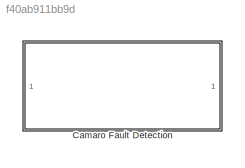
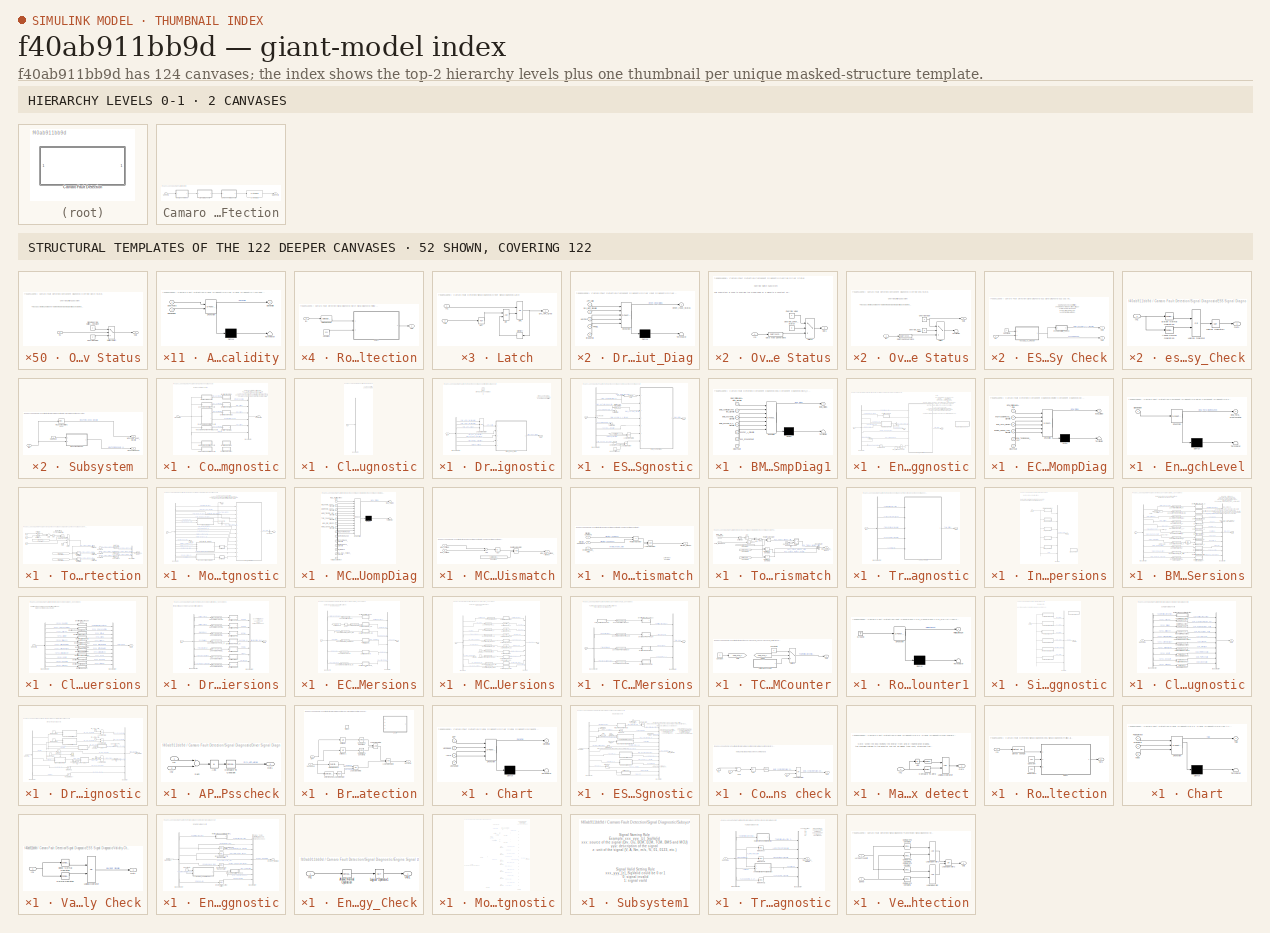
[diagram: thumbnail index - top-2 hierarchy levels (2 canvases) + 52 structural-template representatives of the remaining 122 canvases]
MODEL slx_f40ab911bb9d
KIND library
CONFIG AbsTol = auto
CONFIG EnableMultiTasking = off
CONFIG FixedStep = auto
CONFIG MaxStep = auto
CONFIG MinStep = auto
CONFIG RelTol = 1e-3
CONFIG SampleTimeConstraint = Unconstrained
CONFIG Solver = VariableStepAuto
CONFIG SolverName = VariableStepAuto
CONFIG StartTime = 0.0
CONFIG StopTime = 10.0
BLOCK [SubSystem] Camaro Fault Detection
  Ports = [1, 1]
  RequestExecContextInheritance = off
  Variant = off
BLOCK [SubSystem] Camaro Fault Detection/Component Diagnostic
  Ports = [1, 1]
  RequestExecContextInheritance = off
  Variant = off
BLOCK [BusCreator] Camaro Fault Detection/Component Diagnostic/Bus Creator
  DisplayOption = bar
  InheritFromInputs = on
  Inputs = 6
  Ports = [6, 1]
BLOCK [SubSystem] Camaro Fault Detection/Component Diagnostic/Clutch Component Diagnostic
  Ports = [1]
  RequestExecContextInheritance = off
  Variant = off
BLOCK [BusSelector] Camaro Fault Detection/Component Diagnostic/Clutch Component Diagnostic/Bus Selector
  OutputAsBus = off
  OutputSignals = Motor_SigDiag.MCURollingAliveActive,Motor_SigDiag.MCUTemp_degC_SigValid,Motor_SigDiag.MotorTemp_degC_SigValid,Motor_SigDiag.Motor_TrqCmd_Nm_SigValid,Motor_SigDiag.Torq_Feedback_Nm_SigValid,Motor_SigDiag.MCUTrqCmd_Nm,Motor_SigDiag.Torq_Feedback_Nm,Motor_SigDiag.Motor_Speed_rpm_SigValid,Motor_SigDiag.MCUTempRange[0_4],Motor_SigDiag.MotorTempRange[0_4],Motor_SigDiag.Direction_Command_SigValid,Motor_S...<+286ch>
  Ports = [1, 19]
BLOCK [Inport] Camaro Fault Detection/Component Diagnostic/Clutch Component Diagnostic/In1
  IconDisplay = Port number
BLOCK [Outport] Camaro Fault Detection/Component Diagnostic/CompDiag
  IconDisplay = Port number
BLOCK [SubSystem] Camaro Fault Detection/Component Diagnostic/Driver Input Diagnostic
  Ports = [1, 1]
  RequestExecContextInheritance = off
  Variant = off
BLOCK [BusSelector] Camaro Fault Detection/Component Diagnostic/Driver Input Diagnostic/Bus Selector
  OutputAsBus = off
  OutputSignals = Driver_SigDiag.Drv_APP1_[%]_SigValid,Driver_SigDiag.Drv_APP2_[%]_SigValid,Driver_SigDiag.Drv_APP_Agree,Driver_SigDiag.Drv_BPP_[%]_SigValid,Driver_SigDiag.Drv_KeyPos_[0 3]_SigValid,Driver_SigDiag.Drv_PRNDL_SigValid,Driver_SigDiag.Brake_Failed
  Ports = [1, 7]
BLOCK [SubSystem] Camaro Fault Detection/Component Diagnostic/Driver Input Diagnostic/Driver_Input_Diag
  ErrorFcn = Stateflow.Translate.translate
  PermitHierarchicalResolution = ExplicitOnly
  Ports = [5, 1]
  RequestExecContextInheritance = off
  SFBlockType = Chart
  TreatAsAtomicUnit = on
  Variant = off
BLOCK [Demux] Camaro Fault Detection/Component Diagnostic/Driver Input Diagnostic/Driver_Input_Diag/ Demux 
  Outputs = 1
  Ports = [1, 1]
BLOCK [S-Function] Camaro Fault Detection/Component Diagnostic/Driver Input Diagnostic/Driver_Input_Diag/ SFunction 
  EnableBusSupport = on
  FunctionName = sf_sfun
  PortCounts = [5 2]
  Ports = [5, 2]
  SFcnIsStateOwnerBlock = off
  SFunctionDeploymentMode = off
  Tag = Stateflow S-Function lib_FaultDetection 3
BLOCK [Terminator] Camaro Fault Detection/Component Diagnostic/Driver Input Diagnostic/Driver_Input_Diag/ Terminator 
BLOCK [Inport] Camaro Fault Detection/Component Diagnostic/Driver Input Diagnostic/Driver_Input_Diag/APP_Valid
  IconDisplay = Port number
BLOCK [Inport] Camaro Fault Detection/Component Diagnostic/Driver Input Diagnostic/Driver_Input_Diag/BrakeFail
  IconDisplay = Port number
  Port = 5
BLOCK [Outport] Camaro Fault Detection/Component Diagnostic/Driver Input Diagnostic/Driver_Input_Diag/Driver_Input_Status
  IconDisplay = Port number
BLOCK [Inport] Camaro Fault Detection/Component Diagnostic/Driver Input Diagnostic/Driver_Input_Diag/Drv_BPP_SigValid
  IconDisplay = Port number
  Port = 2
BLOCK [Inport] Camaro Fault Detection/Component Diagnostic/Driver Input Diagnostic/Driver_Input_Diag/KeyPos
  IconDisplay = Port number
  Port = 3
BLOCK [Inport] Camaro Fault Detection/Component Diagnostic/Driver Input Diagnostic/Driver_Input_Diag/PRNDL
  IconDisplay = Port number
  Port = 4
BLOCK [Inport] Camaro Fault Detection/Component Diagnostic/Driver Input Diagnostic/In1
  IconDisplay = Port number
BLOCK [Logic] Camaro Fault Detection/Component Diagnostic/Driver Input Diagnostic/Logical Operator
  AllPortsSameDT = off
  Inputs = 3
  OutDataTypeStr = boolean
  Ports = [3, 1]
BLOCK [Outport] Camaro Fault Detection/Component Diagnostic/Driver Input Diagnostic/Out1
  IconDisplay = Port number
BLOCK [SubSystem] Camaro Fault Detection/Component Diagnostic/ESS Component Diagnostic
  Ports = [1, 1]
  RequestExecContextInheritance = off
  Variant = off
BLOCK [SubSystem] Camaro Fault Detection/Component Diagnostic/ESS Component Diagnostic/BMS_CompDiag1
  ErrorFcn = Stateflow.Translate.translate
  PermitHierarchicalResolution = ExplicitOnly
  Ports = [7, 1]
  RequestExecContextInheritance = off
  SFBlockType = Chart
  TreatAsAtomicUnit = on
  Variant = off
BLOCK [Demux] Camaro Fault Detection/Component Diagnostic/ESS Component Diagnostic/BMS_CompDiag1/ Demux 
  Outputs = 1
  Ports = [1, 1]
BLOCK [S-Function] Camaro Fault Detection/Component Diagnostic/ESS Component Diagnostic/BMS_CompDiag1/ SFunction 
  EnableBusSupport = on
  FunctionName = sf_sfun
  PortCounts = [7 2]
  Ports = [7, 2]
  SFcnIsStateOwnerBlock = off
  SFunctionDeploymentMode = off
  Tag = Stateflow S-Function lib_FaultDetection 5
BLOCK [Terminator] Camaro Fault Detection/Component Diagnostic/ESS Component Diagnostic/BMS_CompDiag1/ Terminator 
BLOCK [Inport] Camaro Fault Detection/Component Diagnostic/ESS Component Diagnostic/BMS_CompDiag1/BMS_RollingAliveActive_SigValid
  IconDisplay = Port number
BLOCK [Outport] Camaro Fault Detection/Component Diagnostic/ESS Component Diagnostic/BMS_CompDiag1/BMS_Status
  IconDisplay = Port number
BLOCK [Inport] Camaro Fault Detection/Component Diagnostic/ESS Component Diagnostic/BMS_CompDiag1/BMS_contactorsFailed_SigValid
  IconDisplay = Port number
  Port = 2
BLOCK [Inport] Camaro Fault Detection/Component Diagnostic/ESS Component Diagnostic/BMS_CompDiag1/BMS_essSOC_0_1_SigValid
  IconDisplay = Port number
  Port = 4
BLOCK [Inport] Camaro Fault Detection/Component Diagnostic/ESS Component Diagnostic/BMS_CompDiag1/BMS_essTemp_SigValid
  IconDisplay = Port number
  Port = 3
BLOCK [Inport] Camaro Fault Detection/Component Diagnostic/ESS Component Diagnostic/BMS_CompDiag1/ClearFault
  IconDisplay = Port number
  Port = 7
BLOCK [Inport] Camaro Fault Detection/Component Diagnostic/ESS Component Diagnostic/BMS_CompDiag1/essCur_A_SigValid
  IconDisplay = Port number
  Port = 5
BLOCK [Inport] Camaro Fault Detection/Component Diagnostic/ESS Component Diagnostic/BMS_CompDiag1/ess_GroundFault
  IconDisplay = Port number
  Port = 6
BLOCK [BusSelector] Camaro Fault Detection/Component Diagnostic/ESS Component Diagnostic/Bus Selector
  OutputAsBus = off
  OutputSignals = ESS_SigDiag.BMS_RollingAliveActive_SigValid,ESS_SigDiag.BMS_contactorsFailed_Detected,ESS_SigDiag.BMS_essTemp_[degC]_SigValid,ESS_SigDiag.essTempRange[0_4],ESS_SigDiag.BMS_essSOC_0_1_SigValid,ESS_SigDiag.essTempRange[0_4],ESS_SigDiag.essCur_A_SigValid,ESS_SigDiag.BMSgdf_SigValid,Driver_SigDiag.Drv_KeyPos_[0 3]_SigValid
  Ports = [1, 9]
BLOCK [Reference] Camaro Fault Detection/Component Diagnostic/ESS Component Diagnostic/Compare To Zero  REF=simulink/Logic and Bit
Operations/Compare
To Zero
  Ports = [1, 1]
  SourceBlock = simulink/Logic and Bit\nOperations/Compare\nTo Zero
  SourceProductBaseCode = SL
  SourceProductName = Simulink
  SourceType = Compare To Zero
BLOCK [DataTypeConversion] Camaro Fault Detection/Component Diagnostic/ESS Component Diagnostic/Data Type Conversion
  RndMeth = Floor
  SaturateOnIntegerOverflow = off
BLOCK [From] Camaro Fault Detection/Component Diagnostic/ESS Component Diagnostic/From
  GotoTag = contactorsFailed_Detected
BLOCK [Goto] Camaro Fault Detection/Component Diagnostic/ESS Component Diagnostic/Goto
  GotoTag = contactorsFailed_Detected
BLOCK [Constant] Camaro Fault Detection/Component Diagnostic/ESS Component Diagnostic/HVessFltReset
BLOCK [Inport] Camaro Fault Detection/Component Diagnostic/ESS Component Diagnostic/In1
  IconDisplay = Port number
BLOCK [Logic] Camaro Fault Detection/Component Diagnostic/ESS Component Diagnostic/Logical Operator
  AllPortsSameDT = off
  Operator = OR
  OutDataTypeStr = boolean
  Ports = [2, 1]
BLOCK [Logic] Camaro Fault Detection/Component Diagnostic/ESS Component Diagnostic/Logical Operator1
  AllPortsSameDT = off
  OutDataTypeStr = boolean
  Ports = [2, 1]
BLOCK [Outport] Camaro Fault Detection/Component Diagnostic/ESS Component Diagnostic/Out1
  IconDisplay = Port number
BLOCK [Terminator] Camaro Fault Detection/Component Diagnostic/ESS Component Diagnostic/Terminator
BLOCK [Terminator] Camaro Fault Detection/Component Diagnostic/ESS Component Diagnostic/Terminator1
BLOCK [SubSystem] Camaro Fault Detection/Component Diagnostic/Engine Component Diagnostic
  Ports = [1, 2]
  RequestExecContextInheritance = off
  Variant = off
BLOCK [BusSelector] Camaro Fault Detection/Component Diagnostic/Engine Component Diagnostic/Bus Selector
  OutputAsBus = off
  OutputSignals = Engine_SigDiag.ECMRollingAliveActive,Engine_SigDiag.engTrqCmdRecvd_SigValid,Engine_SigDiag.ECMTrqCmd_Nm,Engine_SigDiag.EngActStdyStTorq_Nm,Engine_SigDiag.EngRunAtValid,Engine_SigDiag.Engine_Speed_rpm_SigValid,Engine_SigDiag.Eng_TempValid,Engine_SigDiag.Eng_TempRange[123],Driver_SigDiag.Drv_KeyPos_[0 3]_SigValid
  Ports = [1, 9]
BLOCK [BusSelector] Camaro Fault Detection/Component Diagnostic/Engine Component Diagnostic/Bus Selector1
  OutputAsBus = off
  OutputSignals = Eng_Torque_Mismch_Critical
  Ports = [1, 1]
BLOCK [Reference] Camaro Fault Detection/Component Diagnostic/Engine Component Diagnostic/Compare To Zero  REF=simulink/Logic and Bit
Operations/Compare
To Zero
  Ports = [1, 1]
  SourceBlock = simulink/Logic and Bit\nOperations/Compare\nTo Zero
  SourceProductBaseCode = SL
  SourceProductName = Simulink
  SourceType = Compare To Zero
BLOCK [SubSystem] Camaro Fault Detection/Component Diagnostic/Engine Component Diagnostic/ECM_CompDiag
  ErrorFcn = Stateflow.Translate.translate
  PermitHierarchicalResolution = ExplicitOnly
  Ports = [6, 1]
  RequestExecContextInheritance = off
  SFBlockType = Chart
  TreatAsAtomicUnit = on
  Variant = off
BLOCK [Demux] Camaro Fault Detection/Component Diagnostic/Engine Component Diagnostic/ECM_CompDiag/ Demux 
  Outputs = 1
  Ports = [1, 1]
BLOCK [S-Function] Camaro Fault Detection/Component Diagnostic/Engine Component Diagnostic/ECM_CompDiag/ SFunction 
  EnableBusSupport = on
  FunctionName = sf_sfun
  PortCounts = [6 2]
  Ports = [6, 2]
  SFcnIsStateOwnerBlock = off
  SFunctionDeploymentMode = off
  Tag = Stateflow S-Function lib_FaultDetection 6
BLOCK [Terminator] Camaro Fault Detection/Component Diagnostic/Engine Component Diagnostic/ECM_CompDiag/ Terminator 
BLOCK [Inport] Camaro Fault Detection/Component Diagnostic/Engine Component Diagnostic/ECM_CompDiag/ClearFault
  IconDisplay = Port number
  Port = 6
BLOCK [Inport] Camaro Fault Detection/Component Diagnostic/Engine Component Diagnostic/ECM_CompDiag/ECM_RollingAliveActive
  IconDisplay = Port number
BLOCK [Outport] Camaro Fault Detection/Component Diagnostic/Engine Component Diagnostic/ECM_CompDiag/ECM_Status
  IconDisplay = Port number
BLOCK [Inport] Camaro Fault Detection/Component Diagnostic/Engine Component Diagnostic/ECM_CompDiag/Eng_TempRange_123
  IconDisplay = Port number
  Port = 5
BLOCK [Inport] Camaro Fault Detection/Component Diagnostic/Engine Component Diagnostic/ECM_CompDiag/Eng_Torq_Msmch
  IconDisplay = Port number
  Port = 3
BLOCK [Inport] Camaro Fault Detection/Component Diagnostic/Engine Component Diagnostic/ECM_CompDiag/Engine_Speed_rpm_SigValid
  IconDisplay = Port number
  Port = 4
BLOCK [Inport] Camaro Fault Detection/Component Diagnostic/Engine Component Diagnostic/ECM_CompDiag/engTrqCmdRecvd_SigValid
  IconDisplay = Port number
  Port = 2
BLOCK [Constant] Camaro Fault Detection/Component Diagnostic/Engine Component Diagnostic/Eng_FltReset
BLOCK [SubSystem] Camaro Fault Detection/Component Diagnostic/Engine Component Diagnostic/Eng_Torq_MsmchLevel
  Commented = on
  ErrorFcn = Stateflow.Translate.translate
  PermitHierarchicalResolution = ExplicitOnly
  Ports = [1, 1]
  RequestExecContextInheritance = off
  SFBlockType = Chart
  TreatAsAtomicUnit = on
  Variant = off
BLOCK [Demux] Camaro Fault Detection/Component Diagnostic/Engine Component Diagnostic/Eng_Torq_MsmchLevel/ Demux 
  Outputs = 1
  Ports = [1, 1]
BLOCK [S-Function] Camaro Fault Detection/Component Diagnostic/Engine Component Diagnostic/Eng_Torq_MsmchLevel/ SFunction 
  EnableBusSupport = on
  FunctionName = sf_sfun
  Parameters = ENGTRQ_MSMCH_Degraded_CP,ENGTRQ_MSMCH_ErrCritical_CP,ENGTRQ_MSMCH_LimpHome_CP
  PortCounts = [1 2]
  Ports = [1, 2]
  SFcnIsStateOwnerBlock = off
  SFunctionDeploymentMode = off
  Tag = Stateflow S-Function lib_FaultDetection 7
BLOCK [Terminator] Camaro Fault Detection/Component Diagnostic/Engine Component Diagnostic/Eng_Torq_MsmchLevel/ Terminator 
BLOCK [Outport] Camaro Fault Detection/Component Diagnostic/Engine Component Diagnostic/Eng_Torq_MsmchLevel/Eng_Torq_MsmchLevel
  IconDisplay = Port number
BLOCK [Inport] Camaro Fault Detection/Component Diagnostic/Engine Component Diagnostic/Eng_Torq_MsmchLevel/SignalValue
  IconDisplay = Port number
BLOCK [Inport] Camaro Fault Detection/Component Diagnostic/Engine Component Diagnostic/In1
  IconDisplay = Port number
BLOCK [Logic] Camaro Fault Detection/Component Diagnostic/Engine Component Diagnostic/Logical Operator
  AllPortsSameDT = off
  Operator = OR
  OutDataTypeStr = boolean
  Ports = [2, 1]
BLOCK [Outport] Camaro Fault Detection/Component Diagnostic/Engine Component Diagnostic/Out1
  IconDisplay = Port number
BLOCK [Outport] Camaro Fault Detection/Component Diagnostic/Engine Component Diagnostic/Out2
  IconDisplay = Port number
  Port = 2
BLOCK [SubSystem] Camaro Fault Detection/Component Diagnostic/Engine Component Diagnostic/Override  engTrqCmd
  Ports = [1, 1]
  RequestExecContextInheritance = off
  Variant = off
BLOCK [Constant] Camaro Fault Detection/Component Diagnostic/Engine Component Diagnostic/Override  engTrqCmd/Constant
  Value = 50
BLOCK [Inport] Camaro Fault Detection/Component Diagnostic/Engine Component Diagnostic/Override  engTrqCmd/In1
  IconDisplay = Port number
BLOCK [MultiPortSwitch] Camaro Fault Detection/Component Diagnostic/Engine Component Diagnostic/Override  engTrqCmd/Multiport Switch
  DataPortOrder = Zero-based contiguous
  InputSameDT = off
  Inputs = 2
  Ports = [3, 1]
  SaturateOnIntegerOverflow = off
  zeroidx = on
BLOCK [Outport] Camaro Fault Detection/Component Diagnostic/Engine Component Diagnostic/Override  engTrqCmd/Out1
  IconDisplay = Port number
BLOCK [Constant] Camaro Fault Detection/Component Diagnostic/Engine Component Diagnostic/Override  engTrqCmd/Signal Override Switch 0 = Use Model 1 = Use Constant
BLOCK [Terminator] Camaro Fault Detection/Component Diagnostic/Engine Component Diagnostic/Terminator1
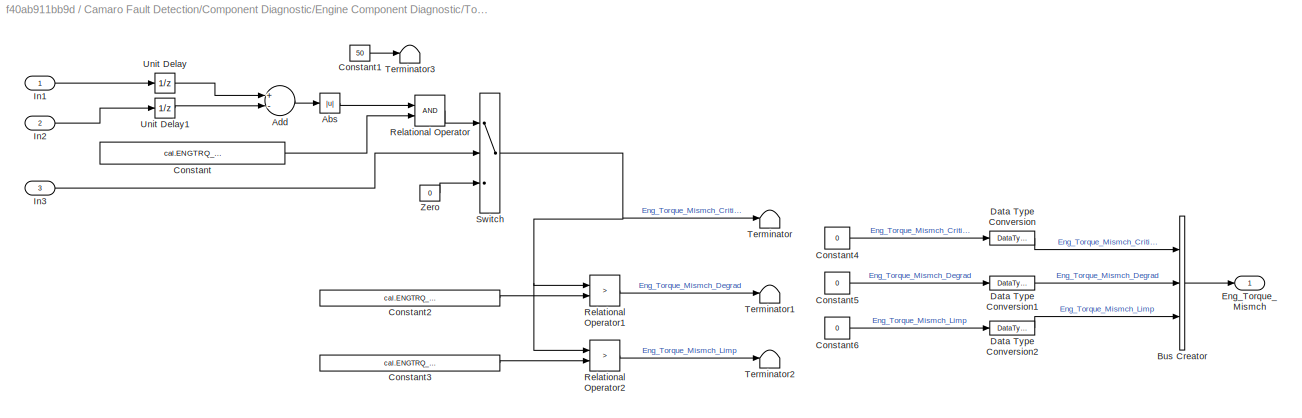
BLOCK [SubSystem] Camaro Fault Detection/Component Diagnostic/Engine Component Diagnostic/TorqMismatch Detection
  Ports = [3, 1]
  RequestExecContextInheritance = off
  Variant = off
BLOCK [Abs] Camaro Fault Detection/Component Diagnostic/Engine Component Diagnostic/TorqMismatch Detection/Abs
  SaturateOnIntegerOverflow = off
BLOCK [Sum] Camaro Fault Detection/Component Diagnostic/Engine Component Diagnostic/TorqMismatch Detection/Add
  InputSameDT = off
  Inputs = +-
  OutDataTypeStr = Inherit: Inherit via internal rule
  Ports = [2, 1]
  SaturateOnIntegerOverflow = off
BLOCK [BusCreator] Camaro Fault Detection/Component Diagnostic/Engine Component Diagnostic/TorqMismatch Detection/Bus Creator
  DisplayOption = bar
  InheritFromInputs = on
  Inputs = 3
  Ports = [3, 1]
BLOCK [Constant] Camaro Fault Detection/Component Diagnostic/Engine Component Diagnostic/TorqMismatch Detection/Constant
  Value = cal.ENGTRQ_MSMCH.ErrCritical_CP
BLOCK [Constant] Camaro Fault Detection/Component Diagnostic/Engine Component Diagnostic/TorqMismatch Detection/Constant1
  Value = 50
BLOCK [Constant] Camaro Fault Detection/Component Diagnostic/Engine Component Diagnostic/TorqMismatch Detection/Constant2
  Value = cal.ENGTRQ_MSMCH.Degraded_CP
BLOCK [Constant] Camaro Fault Detection/Component Diagnostic/Engine Component Diagnostic/TorqMismatch Detection/Constant3
  Value = cal.ENGTRQ_MSMCH.LimpHome_CP
BLOCK [Constant] Camaro Fault Detection/Component Diagnostic/Engine Component Diagnostic/TorqMismatch Detection/Constant4
  Value = 0
BLOCK [Constant] Camaro Fault Detection/Component Diagnostic/Engine Component Diagnostic/TorqMismatch Detection/Constant5
  Value = 0
BLOCK [Constant] Camaro Fault Detection/Component Diagnostic/Engine Component Diagnostic/TorqMismatch Detection/Constant6
  Value = 0
BLOCK [DataTypeConversion] Camaro Fault Detection/Component Diagnostic/Engine Component Diagnostic/TorqMismatch Detection/Data Type Conversion
  OutDataTypeStr = boolean
  RndMeth = Floor
  SaturateOnIntegerOverflow = off
BLOCK [DataTypeConversion] Camaro Fault Detection/Component Diagnostic/Engine Component Diagnostic/TorqMismatch Detection/Data Type Conversion1
  OutDataTypeStr = boolean
  RndMeth = Floor
  SaturateOnIntegerOverflow = off
BLOCK [DataTypeConversion] Camaro Fault Detection/Component Diagnostic/Engine Component Diagnostic/TorqMismatch Detection/Data Type Conversion2
  OutDataTypeStr = boolean
  RndMeth = Floor
  SaturateOnIntegerOverflow = off
BLOCK [Outport] Camaro Fault Detection/Component Diagnostic/Engine Component Diagnostic/TorqMismatch Detection/Eng_Torque_Mismch
  IconDisplay = Port number
BLOCK [Inport] Camaro Fault Detection/Component Diagnostic/Engine Component Diagnostic/TorqMismatch Detection/In1
  IconDisplay = Port number
BLOCK [Inport] Camaro Fault Detection/Component Diagnostic/Engine Component Diagnostic/TorqMismatch Detection/In2
  IconDisplay = Port number
  Port = 2
BLOCK [Inport] Camaro Fault Detection/Component Diagnostic/Engine Component Diagnostic/TorqMismatch Detection/In3
  IconDisplay = Port number
  Port = 3
BLOCK [RelationalOperator] Camaro Fault Detection/Component Diagnostic/Engine Component Diagnostic/TorqMismatch Detection/Relational Operator
  InputSameDT = off
  OutDataTypeStr = boolean
  Ports = [2, 1]
BLOCK [RelationalOperator] Camaro Fault Detection/Component Diagnostic/Engine Component Diagnostic/TorqMismatch Detection/Relational Operator1
  InputSameDT = off
  Operator = >
  OutDataTypeStr = boolean
  Ports = [2, 1]
BLOCK [RelationalOperator] Camaro Fault Detection/Component Diagnostic/Engine Component Diagnostic/TorqMismatch Detection/Relational Operator2
  InputSameDT = off
  Operator = >
  OutDataTypeStr = boolean
  Ports = [2, 1]
BLOCK [Switch] Camaro Fault Detection/Component Diagnostic/Engine Component Diagnostic/TorqMismatch Detection/Switch
  InputSameDT = off
  SaturateOnIntegerOverflow = off
  Threshold = 1
BLOCK [Terminator] Camaro Fault Detection/Component Diagnostic/Engine Component Diagnostic/TorqMismatch Detection/Terminator
BLOCK [Terminator] Camaro Fault Detection/Component Diagnostic/Engine Component Diagnostic/TorqMismatch Detection/Terminator1
BLOCK [Terminator] Camaro Fault Detection/Component Diagnostic/Engine Component Diagnostic/TorqMismatch Detection/Terminator2
BLOCK [Terminator] Camaro Fault Detection/Component Diagnostic/Engine Component Diagnostic/TorqMismatch Detection/Terminator3
BLOCK [UnitDelay] Camaro Fault Detection/Component Diagnostic/Engine Component Diagnostic/TorqMismatch Detection/Unit Delay
  Commented = through
  InputProcessing = Elements as channels (sample based)
  SampleTime = -1
BLOCK [UnitDelay] Camaro Fault Detection/Component Diagnostic/Engine Component Diagnostic/TorqMismatch Detection/Unit Delay1
  Commented = through
  InputProcessing = Elements as channels (sample based)
  SampleTime = -1
BLOCK [Constant] Camaro Fault Detection/Component Diagnostic/Engine Component Diagnostic/TorqMismatch Detection/Zero 
  Value = 0
BLOCK [SubSystem] Camaro Fault Detection/Component Diagnostic/Motor Component Diagnostic
  Ports = [1, 2]
  RequestExecContextInheritance = off
  Variant = off
BLOCK [BusCreator] Camaro Fault Detection/Component Diagnostic/Motor Component Diagnostic/Bus Creator
  DisplayOption = bar
  InheritFromInputs = on
  Inputs = 1
  Ports = [1, 1]
BLOCK [BusSelector] Camaro Fault Detection/Component Diagnostic/Motor Component Diagnostic/Bus Selector
  OutputAsBus = off
  OutputSignals = Motor_SigDiag.MCURollingAliveActive,Motor_SigDiag.MCUTemp_degC_SigValid,Motor_SigDiag.MotorTemp_degC_SigValid,Motor_SigDiag.Motor_TrqCmd_Nm_SigValid,Motor_SigDiag.Torq_Feedback_Nm_SigValid,Motor_SigDiag.MCUTrqCmd_Nm,Motor_SigDiag.Torq_Feedback_Nm,Motor_SigDiag.Motor_Speed_rpm_SigValid,Motor_SigDiag.MCUTempRange[0_4],Motor_SigDiag.MotorTempRange[0_4],Motor_SigDiag.Direction_Command_SigValid,Motor_S...<+286ch>
  Ports = [1, 19]
BLOCK [BusSelector] Camaro Fault Detection/Component Diagnostic/Motor Component Diagnostic/Bus Selector1
  OutputAsBus = off
  OutputSignals = MCU_Torque_Mismch_Critical
  Ports = [1, 1]
BLOCK [Inport] Camaro Fault Detection/Component Diagnostic/Motor Component Diagnostic/In1
  IconDisplay = Port number
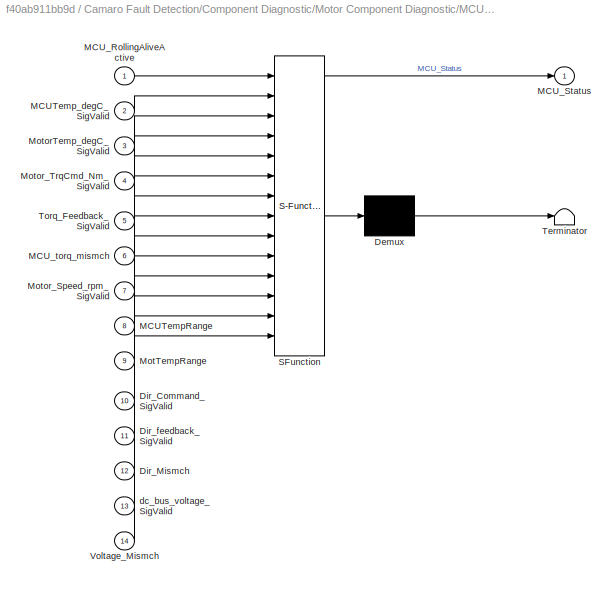
BLOCK [SubSystem] Camaro Fault Detection/Component Diagnostic/Motor Component Diagnostic/MCU_CompDiag
  ErrorFcn = Stateflow.Translate.translate
  PermitHierarchicalResolution = ExplicitOnly
  Ports = [14, 1]
  RequestExecContextInheritance = off
  SFBlockType = Chart
  TreatAsAtomicUnit = on
  Variant = off
BLOCK [Demux] Camaro Fault Detection/Component Diagnostic/Motor Component Diagnostic/MCU_CompDiag/ Demux 
  Outputs = 1
  Ports = [1, 1]
BLOCK [S-Function] Camaro Fault Detection/Component Diagnostic/Motor Component Diagnostic/MCU_CompDiag/ SFunction 
  EnableBusSupport = off
  FunctionName = sf_sfun
  PortCounts = [14 2]
  Ports = [14, 2]
  SFcnIsStateOwnerBlock = off
  SFunctionDeploymentMode = off
  Tag = Stateflow S-Function lib_FaultDetection 12
BLOCK [Terminator] Camaro Fault Detection/Component Diagnostic/Motor Component Diagnostic/MCU_CompDiag/ Terminator 
BLOCK [Inport] Camaro Fault Detection/Component Diagnostic/Motor Component Diagnostic/MCU_CompDiag/Dir_Command_SigValid
  IconDisplay = Port number
  Port = 10
BLOCK [Inport] Camaro Fault Detection/Component Diagnostic/Motor Component Diagnostic/MCU_CompDiag/Dir_Mismch
  IconDisplay = Port number
  Port = 12
BLOCK [Inport] Camaro Fault Detection/Component Diagnostic/Motor Component Diagnostic/MCU_CompDiag/Dir_feedback_SigValid
  IconDisplay = Port number
  Port = 11
BLOCK [Inport] Camaro Fault Detection/Component Diagnostic/Motor Component Diagnostic/MCU_CompDiag/MCUTempRange
  IconDisplay = Port number
  Port = 8
BLOCK [Inport] Camaro Fault Detection/Component Diagnostic/Motor Component Diagnostic/MCU_CompDiag/MCUTemp_degC_SigValid
  IconDisplay = Port number
  Port = 2
BLOCK [Inport] Camaro Fault Detection/Component Diagnostic/Motor Component Diagnostic/MCU_CompDiag/MCU_RollingAliveActive
  IconDisplay = Port number
BLOCK [Outport] Camaro Fault Detection/Component Diagnostic/Motor Component Diagnostic/MCU_CompDiag/MCU_Status
  IconDisplay = Port number
BLOCK [Inport] Camaro Fault Detection/Component Diagnostic/Motor Component Diagnostic/MCU_CompDiag/MCU_torq_mismch
  IconDisplay = Port number
  Port = 6
BLOCK [Inport] Camaro Fault Detection/Component Diagnostic/Motor Component Diagnostic/MCU_CompDiag/MotTempRange
  IconDisplay = Port number
  Port = 9
BLOCK [Inport] Camaro Fault Detection/Component Diagnostic/Motor Component Diagnostic/MCU_CompDiag/MotorTemp_degC_SigValid
  IconDisplay = Port number
  Port = 3
BLOCK [Inport] Camaro Fault Detection/Component Diagnostic/Motor Component Diagnostic/MCU_CompDiag/Motor_Speed_rpm_SigValid
  IconDisplay = Port number
  Port = 7
BLOCK [Inport] Camaro Fault Detection/Component Diagnostic/Motor Component Diagnostic/MCU_CompDiag/Motor_TrqCmd_Nm_SigValid
  IconDisplay = Port number
  Port = 4
BLOCK [Inport] Camaro Fault Detection/Component Diagnostic/Motor Component Diagnostic/MCU_CompDiag/Torq_Feedback_SigValid
  IconDisplay = Port number
  Port = 5
BLOCK [Inport] Camaro Fault Detection/Component Diagnostic/Motor Component Diagnostic/MCU_CompDiag/Voltage_Mismch
  IconDisplay = Port number
  Port = 14
BLOCK [Inport] Camaro Fault Detection/Component Diagnostic/Motor Component Diagnostic/MCU_CompDiag/dc_bus_voltage_SigValid
  IconDisplay = Port number
  Port = 13
BLOCK [SubSystem] Camaro Fault Detection/Component Diagnostic/Motor Component Diagnostic/MCU_ESS_Voltage_Mismatch
  Ports = [2, 1]
  RequestExecContextInheritance = off
  Variant = off
BLOCK [Abs] Camaro Fault Detection/Component Diagnostic/Motor Component Diagnostic/MCU_ESS_Voltage_Mismatch/Abs
  SaturateOnIntegerOverflow = off
BLOCK [Sum] Camaro Fault Detection/Component Diagnostic/Motor Component Diagnostic/MCU_ESS_Voltage_Mismatch/Add
  InputSameDT = off
  Inputs = -+
  OutDataTypeStr = Inherit: Inherit via internal rule
  Ports = [2, 1]
  SaturateOnIntegerOverflow = off
BLOCK [Constant] Camaro Fault Detection/Component Diagnostic/Motor Component Diagnostic/MCU_ESS_Voltage_Mismatch/Constant
  Value = cal.Diag.MCU.ESSVLT_MSMCH
BLOCK [Inport] Camaro Fault Detection/Component Diagnostic/Motor Component Diagnostic/MCU_ESS_Voltage_Mismatch/ESS_Voltage
  IconDisplay = Port number
  Port = 2
BLOCK [Outport] Camaro Fault Detection/Component Diagnostic/Motor Component Diagnostic/MCU_ESS_Voltage_Mismatch/MCU_ESS_Voltage_Mismch
  IconDisplay = Port number
BLOCK [Inport] Camaro Fault Detection/Component Diagnostic/Motor Component Diagnostic/MCU_ESS_Voltage_Mismatch/MCU_Voltage
  IconDisplay = Port number
BLOCK [RelationalOperator] Camaro Fault Detection/Component Diagnostic/Motor Component Diagnostic/MCU_ESS_Voltage_Mismatch/Relational Operator
  InputSameDT = off
  OutDataTypeStr = boolean
  Ports = [2, 1]
BLOCK [SubSystem] Camaro Fault Detection/Component Diagnostic/Motor Component Diagnostic/Motor_Direction_Mismatch
  Ports = [3, 1]
  RequestExecContextInheritance = off
  Variant = off
BLOCK [Inport] Camaro Fault Detection/Component Diagnostic/Motor Component Diagnostic/Motor_Direction_Mismatch/Direction_Command
  IconDisplay = Port number
BLOCK [Inport] Camaro Fault Detection/Component Diagnostic/Motor Component Diagnostic/Motor_Direction_Mismatch/Direction_Feedback
  IconDisplay = Port number
  Port = 2
BLOCK [Outport] Camaro Fault Detection/Component Diagnostic/Motor Component Diagnostic/Motor_Direction_Mismatch/Direction_Mismch
  IconDisplay = Port number
BLOCK [Inport] Camaro Fault Detection/Component Diagnostic/Motor Component Diagnostic/Motor_Direction_Mismatch/Inverter_enable_state
  IconDisplay = Port number
  Port = 3
BLOCK [Logic] Camaro Fault Detection/Component Diagnostic/Motor Component Diagnostic/Motor_Direction_Mismatch/Logical Operator
  AllPortsSameDT = off
  OutDataTypeStr = boolean
  Ports = [2, 1]
BLOCK [RelationalOperator] Camaro Fault Detection/Component Diagnostic/Motor Component Diagnostic/Motor_Direction_Mismatch/Relational Operator
  InputSameDT = off
  Operator = ~=
  OutDataTypeStr = boolean
  Ports = [2, 1]
BLOCK [Outport] Camaro Fault Detection/Component Diagnostic/Motor Component Diagnostic/Out1
  IconDisplay = Port number
BLOCK [Outport] Camaro Fault Detection/Component Diagnostic/Motor Component Diagnostic/Out2
  IconDisplay = Port number
  Port = 2
BLOCK [SubSystem] Camaro Fault Detection/Component Diagnostic/Motor Component Diagnostic/Override  fault
  Ports = [1, 1]
  RequestExecContextInheritance = off
  Variant = off
BLOCK [Inport] Camaro Fault Detection/Component Diagnostic/Motor Component Diagnostic/Override  fault/In1
  IconDisplay = Port number
BLOCK [MultiPortSwitch] Camaro Fault Detection/Component Diagnostic/Motor Component Diagnostic/Override  fault/Multiport Switch
  DataPortOrder = Zero-based contiguous
  InputSameDT = off
  Inputs = 2
  Ports = [3, 1]
  SaturateOnIntegerOverflow = off
  zeroidx = on
BLOCK [Outport] Camaro Fault Detection/Component Diagnostic/Motor Component Diagnostic/Override  fault/Out1
  IconDisplay = Port number
BLOCK [Constant] Camaro Fault Detection/Component Diagnostic/Motor Component Diagnostic/Override  fault/Override Value
  OutDataTypeStr = double
  Value = 0
BLOCK [Constant] Camaro Fault Detection/Component Diagnostic/Motor Component Diagnostic/Override  fault/Signal Override Switch 0 = Use Model 1 = Use Constant
BLOCK [SubSystem] Camaro Fault Detection/Component Diagnostic/Motor Component Diagnostic/Override  fault1
  Ports = [1, 1]
  RequestExecContextInheritance = off
  Variant = off
BLOCK [Inport] Camaro Fault Detection/Component Diagnostic/Motor Component Diagnostic/Override  fault1/In1
  IconDisplay = Port number
BLOCK [MultiPortSwitch] Camaro Fault Detection/Component Diagnostic/Motor Component Diagnostic/Override  fault1/Multiport Switch
  DataPortOrder = Zero-based contiguous
  InputSameDT = off
  Inputs = 2
  Ports = [3, 1]
  SaturateOnIntegerOverflow = off
  zeroidx = on
BLOCK [Outport] Camaro Fault Detection/Component Diagnostic/Motor Component Diagnostic/Override  fault1/Out1
  IconDisplay = Port number
BLOCK [Constant] Camaro Fault Detection/Component Diagnostic/Motor Component Diagnostic/Override  fault1/Override Value
  OutDataTypeStr = double
  Value = 0
BLOCK [Constant] Camaro Fault Detection/Component Diagnostic/Motor Component Diagnostic/Override  fault1/Signal Override Switch 0 = Use Model 1 = Use Constant
  Value = 0
BLOCK [Terminator] Camaro Fault Detection/Component Diagnostic/Motor Component Diagnostic/Terminator1
BLOCK [SubSystem] Camaro Fault Detection/Component Diagnostic/Motor Component Diagnostic/Torque_Mismatch
  Ports = [2, 1]
  RequestExecContextInheritance = off
  Variant = off
BLOCK [Abs] Camaro Fault Detection/Component Diagnostic/Motor Component Diagnostic/Torque_Mismatch/Abs
  SaturateOnIntegerOverflow = off
BLOCK [Abs] Camaro Fault Detection/Component Diagnostic/Motor Component Diagnostic/Torque_Mismatch/Abs1
  SaturateOnIntegerOverflow = off
BLOCK [Abs] Camaro Fault Detection/Component Diagnostic/Motor Component Diagnostic/Torque_Mismatch/Abs2
  SaturateOnIntegerOverflow = off
BLOCK [Sum] Camaro Fault Detection/Component Diagnostic/Motor Component Diagnostic/Torque_Mismatch/Add
  InputSameDT = off
  Inputs = +-
  OutDataTypeStr = Inherit: Inherit via internal rule
  Ports = [2, 1]
  SaturateOnIntegerOverflow = off
BLOCK [BusCreator] Camaro Fault Detection/Component Diagnostic/Motor Component Diagnostic/Torque_Mismatch/Bus Creator
  DisplayOption = bar
  InheritFromInputs = on
  Inputs = 3
  Ports = [3, 1]
BLOCK [Constant] Camaro Fault Detection/Component Diagnostic/Motor Component Diagnostic/Torque_Mismatch/Constant
  Value = cal.MOTTRQ_MSMCH.ErrCritical_CP
BLOCK [Constant] Camaro Fault Detection/Component Diagnostic/Motor Component Diagnostic/Torque_Mismatch/Constant1
  Value = cal.MOTTRQ_MSMCH.Degraded_CP
BLOCK [Constant] Camaro Fault Detection/Component Diagnostic/Motor Component Diagnostic/Torque_Mismatch/Constant2
  Value = cal.MOTTRQ_MSMCH.LimpHome_CP
BLOCK [Constant] Camaro Fault Detection/Component Diagnostic/Motor Component Diagnostic/Torque_Mismatch/Constant3
  Value = 0
BLOCK [DataTypeConversion] Camaro Fault Detection/Component Diagnostic/Motor Component Diagnostic/Torque_Mismatch/Conversion  APP1 (%)
  OutDataTypeStr = boolean
  RndMeth = Floor
  SaturateOnIntegerOverflow = off
BLOCK [SubSystem] Camaro Fault Detection/Component Diagnostic/Motor Component Diagnostic/Torque_Mismatch/Latch
  Ports = [2, 1]
  RequestExecContextInheritance = off
  Variant = off
BLOCK [Inport] Camaro Fault Detection/Component Diagnostic/Motor Component Diagnostic/Torque_Mismatch/Latch/In1
  IconDisplay = Port number
BLOCK [Inport] Camaro Fault Detection/Component Diagnostic/Motor Component Diagnostic/Torque_Mismatch/Latch/In2
  IconDisplay = Port number
  Port = 2
BLOCK [Memory] Camaro Fault Detection/Component Diagnostic/Motor Component Diagnostic/Torque_Mismatch/Latch/Memory
BLOCK [Logic] Camaro Fault Detection/Component Diagnostic/Motor Component Diagnostic/Torque_Mismatch/Latch/NOT
  Operator = NOT
  OutDataTypeStr = boolean
  Ports = [1, 1]
BLOCK [Logic] Camaro Fault Detection/Component Diagnostic/Motor Component Diagnostic/Torque_Mismatch/Latch/OR
  OutDataTypeStr = boolean
  Ports = [2, 1]
BLOCK [Logic] Camaro Fault Detection/Component Diagnostic/Motor Component Diagnostic/Torque_Mismatch/Latch/OR1
  Operator = OR
  OutDataTypeStr = boolean
  Ports = [2, 1]
BLOCK [Outport] Camaro Fault Detection/Component Diagnostic/Motor Component Diagnostic/Torque_Mismatch/Latch/Out1
  IconDisplay = Port number
BLOCK [Outport] Camaro Fault Detection/Component Diagnostic/Motor Component Diagnostic/Torque_Mismatch/MCU_Torque_Mismch
  IconDisplay = Port number
BLOCK [Inport] Camaro Fault Detection/Component Diagnostic/Motor Component Diagnostic/Torque_Mismatch/MCU_torq_command
  IconDisplay = Port number
BLOCK [RelationalOperator] Camaro Fault Detection/Component Diagnostic/Motor Component Diagnostic/Torque_Mismatch/Relational Operator
  InputSameDT = off
  Operator = >
  OutDataTypeStr = boolean
  Ports = [2, 1]
BLOCK [RelationalOperator] Camaro Fault Detection/Component Diagnostic/Motor Component Diagnostic/Torque_Mismatch/Relational Operator1
  InputSameDT = off
  Operator = >
  OutDataTypeStr = boolean
  Ports = [2, 1]
BLOCK [RelationalOperator] Camaro Fault Detection/Component Diagnostic/Motor Component Diagnostic/Torque_Mismatch/Relational Operator2
  InputSameDT = off
  Operator = >
  OutDataTypeStr = boolean
  Ports = [2, 1]
BLOCK [Inport] Camaro Fault Detection/Component Diagnostic/Motor Component Diagnostic/Torque_Mismatch/Torq_feedback
  IconDisplay = Port number
  Port = 2
BLOCK [UnitDelay] Camaro Fault Detection/Component Diagnostic/Motor Component Diagnostic/Torque_Mismatch/Unit Delay
  InputProcessing = Elements as channels (sample based)
  SampleTime = -1
BLOCK [SubSystem] Camaro Fault Detection/Component Diagnostic/Override Clutch Status
  Ports = [1, 1]
  RequestExecContextInheritance = off
  Variant = off
BLOCK [Inport] Camaro Fault Detection/Component Diagnostic/Override Clutch Status/In1
  IconDisplay = Port number
BLOCK [MultiPortSwitch] Camaro Fault Detection/Component Diagnostic/Override Clutch Status/Multiport Switch
  DataPortOrder = Zero-based contiguous
  InputSameDT = off
  Inputs = 2
  Ports = [3, 1]
  SaturateOnIntegerOverflow = off
  zeroidx = on
BLOCK [Outport] Camaro Fault Detection/Component Diagnostic/Override Clutch Status/Out1
  IconDisplay = Port number
BLOCK [Constant] Camaro Fault Detection/Component Diagnostic/Override Clutch Status/Override Value
  OutDataTypeStr = double
  Value = 2
BLOCK [Constant] Camaro Fault Detection/Component Diagnostic/Override Clutch Status/Signal Override Switch 0 = Use Model 1 = Use Constant
  Value = 0
BLOCK [SubSystem] Camaro Fault Detection/Component Diagnostic/Override Driver Status
  Ports = [1, 1]
  RequestExecContextInheritance = off
  Variant = off
BLOCK [DataTypeConversion] Camaro Fault Detection/Component Diagnostic/Override Driver Status/Data Type Conversion3
  RndMeth = Floor
  SaturateOnIntegerOverflow = off
BLOCK [Inport] Camaro Fault Detection/Component Diagnostic/Override Driver Status/In1
  IconDisplay = Port number
BLOCK [Outport] Camaro Fault Detection/Component Diagnostic/Override Driver Status/Out1
  IconDisplay = Port number
BLOCK [Constant] Camaro Fault Detection/Component Diagnostic/Override Driver Status/Override Value
  OutDataTypeStr = double
BLOCK [Constant] Camaro Fault Detection/Component Diagnostic/Override Driver Status/Override_Driver_Status
  Value = 0
BLOCK [Switch] Camaro Fault Detection/Component Diagnostic/Override Driver Status/Switch
  Criteria = u2 > Threshold
  InputSameDT = off
  SaturateOnIntegerOverflow = off
BLOCK [SubSystem] Camaro Fault Detection/Component Diagnostic/Override ESS Status
  Ports = [1, 1]
  RequestExecContextInheritance = off
  Variant = off
BLOCK [DataTypeConversion] Camaro Fault Detection/Component Diagnostic/Override ESS Status/Data Type Conversion3
  RndMeth = Floor
  SaturateOnIntegerOverflow = off
BLOCK [Inport] Camaro Fault Detection/Component Diagnostic/Override ESS Status/In1
  IconDisplay = Port number
BLOCK [Outport] Camaro Fault Detection/Component Diagnostic/Override ESS Status/Out1
  IconDisplay = Port number
BLOCK [Constant] Camaro Fault Detection/Component Diagnostic/Override ESS Status/Override Value
  OutDataTypeStr = double
  Value = 2
BLOCK [Constant] Camaro Fault Detection/Component Diagnostic/Override ESS Status/Override_ESS_Status
  Value = 0
BLOCK [Switch] Camaro Fault Detection/Component Diagnostic/Override ESS Status/Switch
  Criteria = u2 > Threshold
  InputSameDT = off
  SaturateOnIntegerOverflow = off
BLOCK [Terminator] Camaro Fault Detection/Component Diagnostic/Override ESS Status/Terminator
BLOCK [SubSystem] Camaro Fault Detection/Component Diagnostic/Override Engine Status
  Ports = [1, 1]
  RequestExecContextInheritance = off
  Variant = off
BLOCK [DataTypeConversion] Camaro Fault Detection/Component Diagnostic/Override Engine Status/Data Type Conversion3
  RndMeth = Floor
  SaturateOnIntegerOverflow = off
BLOCK [Inport] Camaro Fault Detection/Component Diagnostic/Override Engine Status/In1
  IconDisplay = Port number
BLOCK [Outport] Camaro Fault Detection/Component Diagnostic/Override Engine Status/Out1
  IconDisplay = Port number
BLOCK [Constant] Camaro Fault Detection/Component Diagnostic/Override Engine Status/Override Value1
  OutDataTypeStr = double
  Value = 2
BLOCK [Constant] Camaro Fault Detection/Component Diagnostic/Override Engine Status/Override_Engine_Status
  Value = 0
BLOCK [Switch] Camaro Fault Detection/Component Diagnostic/Override Engine Status/Switch
  Criteria = u2 > Threshold
  InputSameDT = off
  SaturateOnIntegerOverflow = off
BLOCK [Terminator] Camaro Fault Detection/Component Diagnostic/Override Engine Status/Terminator
BLOCK [SubSystem] Camaro Fault Detection/Component Diagnostic/Override MCU Status
  Ports = [1, 1]
  RequestExecContextInheritance = off
  Variant = off
BLOCK [Inport] Camaro Fault Detection/Component Diagnostic/Override MCU Status/In1
  IconDisplay = Port number
BLOCK [MultiPortSwitch] Camaro Fault Detection/Component Diagnostic/Override MCU Status/Multiport Switch
  DataPortOrder = Zero-based contiguous
  InputSameDT = off
  Inputs = 2
  Ports = [3, 1]
  SaturateOnIntegerOverflow = off
  zeroidx = on
BLOCK [Outport] Camaro Fault Detection/Component Diagnostic/Override MCU Status/Out1
  IconDisplay = Port number
BLOCK [Constant] Camaro Fault Detection/Component Diagnostic/Override MCU Status/Override Value
  OutDataTypeStr = double
  Value = 2
BLOCK [Constant] Camaro Fault Detection/Component Diagnostic/Override MCU Status/Signal Override Switch 0 = Use Model 1 = Use Constant
  Value = 0
BLOCK [SubSystem] Camaro Fault Detection/Component Diagnostic/Override TCM Status
  Ports = [1, 1]
  RequestExecContextInheritance = off
  Variant = off
BLOCK [DataTypeConversion] Camaro Fault Detection/Component Diagnostic/Override TCM Status/Data Type Conversion3
  RndMeth = Floor
  SaturateOnIntegerOverflow = off
BLOCK [Inport] Camaro Fault Detection/Component Diagnostic/Override TCM Status/In1
  IconDisplay = Port number
BLOCK [Outport] Camaro Fault Detection/Component Diagnostic/Override TCM Status/Out1
  IconDisplay = Port number
BLOCK [Constant] Camaro Fault Detection/Component Diagnostic/Override TCM Status/Override Value1
  OutDataTypeStr = double
  Value = 2
BLOCK [Constant] Camaro Fault Detection/Component Diagnostic/Override TCM Status/Override_TCM_Status
  Value = 0
BLOCK [Switch] Camaro Fault Detection/Component Diagnostic/Override TCM Status/Switch
  Criteria = u2 > Threshold
  InputSameDT = off
  SaturateOnIntegerOverflow = off
BLOCK [Inport] Camaro Fault Detection/Component Diagnostic/SignalDiag
  IconDisplay = Port number
BLOCK [SubSystem] Camaro Fault Detection/Component Diagnostic/Transmission Component Diagnostic
  Ports = [1, 1]
  RequestExecContextInheritance = off
  Variant = off
BLOCK [BusSelector] Camaro Fault Detection/Component Diagnostic/Transmission Component Diagnostic/Bus Selector
  OutputAsBus = off
  OutputSignals = Transmission_SigDiag.TCMRollingAliveActive_SigValid,Transmission_SigDiag.LvrPosTrnsShft_SigValid,Transmission_SigDiag.TransEstGear_SigValid,Transmission_SigDiag.LockupCmd_SigValid,Transmission_SigDiag.VehDirFault
  Ports = [1, 5]
BLOCK [Inport] Camaro Fault Detection/Component Diagnostic/Transmission Component Diagnostic/In1
  IconDisplay = Port number
BLOCK [Outport] Camaro Fault Detection/Component Diagnostic/Transmission Component Diagnostic/Out1
  IconDisplay = Port number
BLOCK [SubSystem] Camaro Fault Detection/Component Diagnostic/Transmission Component Diagnostic/TCM_CompDia
  ErrorFcn = Stateflow.Translate.translate
  PermitHierarchicalResolution = ExplicitOnly
  Ports = [5, 1]
  RequestExecContextInheritance = off
  SFBlockType = Chart
  TreatAsAtomicUnit = on
  Variant = off
BLOCK [Demux] Camaro Fault Detection/Component Diagnostic/Transmission Component Diagnostic/TCM_CompDia/ Demux 
  Outputs = 1
  Ports = [1, 1]
BLOCK [S-Function] Camaro Fault Detection/Component Diagnostic/Transmission Component Diagnostic/TCM_CompDia/ SFunction 
  EnableBusSupport = on
  FunctionName = sf_sfun
  PortCounts = [5 2]
  Ports = [5, 2]
  SFcnIsStateOwnerBlock = off
  SFunctionDeploymentMode = off
  Tag = Stateflow S-Function lib_FaultDetection 67
BLOCK [Terminator] Camaro Fault Detection/Component Diagnostic/Transmission Component Diagnostic/TCM_CompDia/ Terminator 
BLOCK [Inport] Camaro Fault Detection/Component Diagnostic/Transmission Component Diagnostic/TCM_CompDia/LockupCmd_SigValid
  IconDisplay = Port number
  Port = 4
BLOCK [Inport] Camaro Fault Detection/Component Diagnostic/Transmission Component Diagnostic/TCM_CompDia/LvrPosTrnsShft_SigValid
  IconDisplay = Port number
  Port = 2
BLOCK [Inport] Camaro Fault Detection/Component Diagnostic/Transmission Component Diagnostic/TCM_CompDia/TCMRollingAliveActive_SigValid
  IconDisplay = Port number
BLOCK [Outport] Camaro Fault Detection/Component Diagnostic/Transmission Component Diagnostic/TCM_CompDia/TCM_Status
  IconDisplay = Port number
BLOCK [Inport] Camaro Fault Detection/Component Diagnostic/Transmission Component Diagnostic/TCM_CompDia/TransEstGear_SigValid
  IconDisplay = Port number
  Port = 3
BLOCK [Inport] Camaro Fault Detection/Component Diagnostic/Transmission Component Diagnostic/TCM_CompDia/VehDirFault
  IconDisplay = Port number
  Port = 5
BLOCK [Outport] Camaro Fault Detection/Diagnostic
  IconDisplay = Port number
BLOCK [SubSystem] Camaro Fault Detection/Input Conversions
  Ports = [1, 1]
  RequestExecContextInheritance = off
  Variant = off
BLOCK [SubSystem] Camaro Fault Detection/Input Conversions/BMS_Conversions
  Ports = [1, 1]
  RequestExecContextInheritance = off
  Variant = off
BLOCK [BusCreator] Camaro Fault Detection/Input Conversions/BMS_Conversions/Bus Creator
  DisplayOption = bar
  InheritFromInputs = on
  Inputs = 11
  Ports = [11, 1]
BLOCK [BusSelector] Camaro Fault Detection/Input Conversions/BMS_Conversions/Bus Selector
  OutputAsBus = off
  OutputSignals = from_CAN.fromHV_CAN.from_BMSHybrid.BMS_HYB_02.BMS_HYB_02_BZ,from_CAN.fromHV_CAN.from_BMSHybrid.BMS_HYB_02.BMS_IstModus,from_CAN.fromHV_CAN.from_BMSHybrid.BMS_HYB_02.BMS_IstStrom,from_CAN.fromHV_CAN.from_BMSHybrid.BMS_SOC,from_CAN.fromHV_CAN.from_BMSHybrid.BMS_HYB_02.BMS_IstSpannung,from_CAN.fromHV_CAN.from_BMSHybrid.BMS_Spannung_ZwKr,from_CAN.fromHV_CAN.from_BMSHybrid.BMS_Temperatur,from_CAN.fromH...<+169ch>
  Ports = [1, 10]
BLOCK [DataTypeConversion] Camaro Fault Detection/Input Conversions/BMS_Conversions/Conversion  BMS_gdf
  OutDataTypeStr = boolean
  RndMeth = Floor
  SaturateOnIntegerOverflow = off
BLOCK [DataTypeConversion] Camaro Fault Detection/Input Conversions/BMS_Conversions/Conversion  Fehler_HS_offen
  OutDataTypeStr = boolean
  RndMeth = Floor
  SaturateOnIntegerOverflow = off
BLOCK [DataTypeConversion] Camaro Fault Detection/Input Conversions/BMS_Conversions/Conversion  Fehler_HS_verschweisst
  OutDataTypeStr = boolean
  RndMeth = Floor
  SaturateOnIntegerOverflow = off
BLOCK [DataTypeConversion] Camaro Fault Detection/Input Conversions/BMS_Conversions/Conversion  closeContactorsCmd
  OutDataTypeStr = boolean
  RndMeth = Floor
  SaturateOnIntegerOverflow = off
BLOCK [DataTypeConversion] Camaro Fault Detection/Input Conversions/BMS_Conversions/Conversion  contactorsClsd
  OutDataTypeStr = boolean
  RndMeth = Floor
  SaturateOnIntegerOverflow = off
BLOCK [DataTypeConversion] Camaro Fault Detection/Input Conversions/BMS_Conversions/Conversion  essTemp_K
  OutDataTypeStr = double
  RndMeth = Floor
  SaturateOnIntegerOverflow = off
BLOCK [DataTypeConversion] Camaro Fault Detection/Input Conversions/BMS_Conversions/Conversion  hvBattVolt_V
  OutDataTypeStr = double
  RndMeth = Floor
  SaturateOnIntegerOverflow = off
BLOCK [DataTypeConversion] Camaro Fault Detection/Input Conversions/BMS_Conversions/Conversion  hvBusVolt_V
  OutDataTypeStr = double
  RndMeth = Floor
  SaturateOnIntegerOverflow = off
BLOCK [DataTypeConversion] Camaro Fault Detection/Input Conversions/BMS_Conversions/Conversion  rollingAliveCnt
  OutDataTypeStr = int8
  RndMeth = Floor
  SaturateOnIntegerOverflow = off
BLOCK [DataTypeConversion] Camaro Fault Detection/Input Conversions/BMS_Conversions/Conversion essCur_A
  OutDataTypeStr = double
  RndMeth = Floor
  SaturateOnIntegerOverflow = off
BLOCK [DataTypeConversion] Camaro Fault Detection/Input Conversions/BMS_Conversions/Conversion essSOC_0_1
  OutDataTypeStr = double
  RndMeth = Floor
  SaturateOnIntegerOverflow = off
BLOCK [From] Camaro Fault Detection/Input Conversions/BMS_Conversions/From
  GotoTag = MO_BMS_Sollmodus
  TagVisibility = global
BLOCK [Inport] Camaro Fault Detection/Input Conversions/BMS_Conversions/In1
  IconDisplay = Port number
BLOCK [Bias] Camaro Fault Detection/Input Conversions/BMS_Conversions/K to C
  Bias = -273.15
  SaturateOnIntegerOverflow = off
BLOCK [Outport] Camaro Fault Detection/Input Conversions/BMS_Conversions/Out1
  IconDisplay = Port number
BLOCK [SubSystem] Camaro Fault Detection/Input Conversions/BMS_Conversions/Override  BMS_gdf 0_1
  Ports = [1, 1]
  RequestExecContextInheritance = off
  Variant = off
BLOCK [Inport] Camaro Fault Detection/Input Conversions/BMS_Conversions/Override  BMS_gdf 0_1/In1
  IconDisplay = Port number
BLOCK [MultiPortSwitch] Camaro Fault Detection/Input Conversions/BMS_Conversions/Override  BMS_gdf 0_1/Multiport Switch
  DataPortOrder = Zero-based contiguous
  InputSameDT = off
  Inputs = 2
  Ports = [3, 1]
  SaturateOnIntegerOverflow = off
  zeroidx = on
BLOCK [Outport] Camaro Fault Detection/Input Conversions/BMS_Conversions/Override  BMS_gdf 0_1/Out1
  IconDisplay = Port number
BLOCK [Constant] Camaro Fault Detection/Input Conversions/BMS_Conversions/Override  BMS_gdf 0_1/Override Value
  OutDataTypeStr = double
  Value = 0
BLOCK [Constant] Camaro Fault Detection/Input Conversions/BMS_Conversions/Override  BMS_gdf 0_1/Signal Override Switch 0 = Use Model 1 = Use Constant
BLOCK [SubSystem] Camaro Fault Detection/Input Conversions/BMS_Conversions/Override  closeContactorsCmd
  Ports = [1, 1]
  RequestExecContextInheritance = off
  Variant = off
BLOCK [Inport] Camaro Fault Detection/Input Conversions/BMS_Conversions/Override  closeContactorsCmd/In1
  IconDisplay = Port number
BLOCK [MultiPortSwitch] Camaro Fault Detection/Input Conversions/BMS_Conversions/Override  closeContactorsCmd/Multiport Switch
  DataPortOrder = Zero-based contiguous
  InputSameDT = off
  Inputs = 2
  Ports = [3, 1]
  SaturateOnIntegerOverflow = off
  zeroidx = on
BLOCK [Outport] Camaro Fault Detection/Input Conversions/BMS_Conversions/Override  closeContactorsCmd/Out1
  IconDisplay = Port number
BLOCK [Constant] Camaro Fault Detection/Input Conversions/BMS_Conversions/Override  closeContactorsCmd/Override Value
  OutDataTypeStr = double
  Value = 0
BLOCK [Constant] Camaro Fault Detection/Input Conversions/BMS_Conversions/Override  closeContactorsCmd/Signal Override Switch 0 = Use Model 1 = Use Constant
  Value = 0
BLOCK [SubSystem] Camaro Fault Detection/Input Conversions/BMS_Conversions/Override  contactorsClsd
  Ports = [1, 1]
  RequestExecContextInheritance = off
  Variant = off
BLOCK [Inport] Camaro Fault Detection/Input Conversions/BMS_Conversions/Override  contactorsClsd/In1
  IconDisplay = Port number
BLOCK [MultiPortSwitch] Camaro Fault Detection/Input Conversions/BMS_Conversions/Override  contactorsClsd/Multiport Switch
  DataPortOrder = Zero-based contiguous
  InputSameDT = off
  Inputs = 2
  Ports = [3, 1]
  SaturateOnIntegerOverflow = off
  zeroidx = on
BLOCK [Outport] Camaro Fault Detection/Input Conversions/BMS_Conversions/Override  contactorsClsd/Out1
  IconDisplay = Port number
BLOCK [Constant] Camaro Fault Detection/Input Conversions/BMS_Conversions/Override  contactorsClsd/Override Value
  OutDataTypeStr = double
  Value = 0
BLOCK [Constant] Camaro Fault Detection/Input Conversions/BMS_Conversions/Override  contactorsClsd/Signal Override Switch 0 = Use Model 1 = Use Constant
  Value = 0
BLOCK [SubSystem] Camaro Fault Detection/Input Conversions/BMS_Conversions/Override  essCur_A
  Ports = [1, 1]
  RequestExecContextInheritance = off
  Variant = off
BLOCK [Inport] Camaro Fault Detection/Input Conversions/BMS_Conversions/Override  essCur_A/In1
  IconDisplay = Port number
BLOCK [MultiPortSwitch] Camaro Fault Detection/Input Conversions/BMS_Conversions/Override  essCur_A/Multiport Switch
  DataPortOrder = Zero-based contiguous
  InputSameDT = off
  Inputs = 2
  Ports = [3, 1]
  SaturateOnIntegerOverflow = off
  zeroidx = on
BLOCK [Outport] Camaro Fault Detection/Input Conversions/BMS_Conversions/Override  essCur_A/Out1
  IconDisplay = Port number
BLOCK [Constant] Camaro Fault Detection/Input Conversions/BMS_Conversions/Override  essCur_A/Override Value
  OutDataTypeStr = double
  Value = 0
BLOCK [Constant] Camaro Fault Detection/Input Conversions/BMS_Conversions/Override  essCur_A/Signal Override Switch 0 = Use Model 1 = Use Constant
  Value = 0
BLOCK [SubSystem] Camaro Fault Detection/Input Conversions/BMS_Conversions/Override  essSOC_0_1
  Ports = [1, 1]
  RequestExecContextInheritance = off
  Variant = off
BLOCK [Inport] Camaro Fault Detection/Input Conversions/BMS_Conversions/Override  essSOC_0_1/In1
  IconDisplay = Port number
BLOCK [MultiPortSwitch] Camaro Fault Detection/Input Conversions/BMS_Conversions/Override  essSOC_0_1/Multiport Switch
  DataPortOrder = Zero-based contiguous
  InputSameDT = off
  Inputs = 2
  Ports = [3, 1]
  SaturateOnIntegerOverflow = off
  zeroidx = on
BLOCK [Outport] Camaro Fault Detection/Input Conversions/BMS_Conversions/Override  essSOC_0_1/Out1
  IconDisplay = Port number
BLOCK [Constant] Camaro Fault Detection/Input Conversions/BMS_Conversions/Override  essSOC_0_1/Override Value
  OutDataTypeStr = double
  Value = 0
BLOCK [Constant] Camaro Fault Detection/Input Conversions/BMS_Conversions/Override  essSOC_0_1/Signal Override Switch 0 = Use Model 1 = Use Constant
  Value = 0
BLOCK [SubSystem] Camaro Fault Detection/Input Conversions/BMS_Conversions/Override  essTemp_C
  Ports = [1, 1]
  RequestExecContextInheritance = off
  Variant = off
BLOCK [Inport] Camaro Fault Detection/Input Conversions/BMS_Conversions/Override  essTemp_C/In1
  IconDisplay = Port number
BLOCK [MultiPortSwitch] Camaro Fault Detection/Input Conversions/BMS_Conversions/Override  essTemp_C/Multiport Switch
  DataPortOrder = Zero-based contiguous
  InputSameDT = off
  Inputs = 2
  Ports = [3, 1]
  SaturateOnIntegerOverflow = off
  zeroidx = on
BLOCK [Outport] Camaro Fault Detection/Input Conversions/BMS_Conversions/Override  essTemp_C/Out1
  IconDisplay = Port number
BLOCK [Constant] Camaro Fault Detection/Input Conversions/BMS_Conversions/Override  essTemp_C/Override Value
  OutDataTypeStr = double
  Value = 0
BLOCK [Constant] Camaro Fault Detection/Input Conversions/BMS_Conversions/Override  essTemp_C/Signal Override Switch 0 = Use Model 1 = Use Constant
BLOCK [SubSystem] Camaro Fault Detection/Input Conversions/BMS_Conversions/Override  hvBattVolt_V
  Ports = [1, 1]
  RequestExecContextInheritance = off
  Variant = off
BLOCK [Inport] Camaro Fault Detection/Input Conversions/BMS_Conversions/Override  hvBattVolt_V/In1
  IconDisplay = Port number
BLOCK [MultiPortSwitch] Camaro Fault Detection/Input Conversions/BMS_Conversions/Override  hvBattVolt_V/Multiport Switch
  DataPortOrder = Zero-based contiguous
  InputSameDT = off
  Inputs = 2
  Ports = [3, 1]
  SaturateOnIntegerOverflow = off
  zeroidx = on
BLOCK [Outport] Camaro Fault Detection/Input Conversions/BMS_Conversions/Override  hvBattVolt_V/Out1
  IconDisplay = Port number
BLOCK [Constant] Camaro Fault Detection/Input Conversions/BMS_Conversions/Override  hvBattVolt_V/Override Value
  OutDataTypeStr = double
  Value = 0
BLOCK [Constant] Camaro Fault Detection/Input Conversions/BMS_Conversions/Override  hvBattVolt_V/Signal Override Switch 0 = Use Model 1 = Use Constant
  Value = 0
BLOCK [SubSystem] Camaro Fault Detection/Input Conversions/BMS_Conversions/Override  hvBusVolt_V
  Ports = [1, 1]
  RequestExecContextInheritance = off
  Variant = off
BLOCK [Inport] Camaro Fault Detection/Input Conversions/BMS_Conversions/Override  hvBusVolt_V/In1
  IconDisplay = Port number
BLOCK [MultiPortSwitch] Camaro Fault Detection/Input Conversions/BMS_Conversions/Override  hvBusVolt_V/Multiport Switch
  DataPortOrder = Zero-based contiguous
  InputSameDT = off
  Inputs = 2
  Ports = [3, 1]
  SaturateOnIntegerOverflow = off
  zeroidx = on
BLOCK [Outport] Camaro Fault Detection/Input Conversions/BMS_Conversions/Override  hvBusVolt_V/Out1
  IconDisplay = Port number
BLOCK [Constant] Camaro Fault Detection/Input Conversions/BMS_Conversions/Override  hvBusVolt_V/Override Value
  OutDataTypeStr = double
  Value = 0
BLOCK [Constant] Camaro Fault Detection/Input Conversions/BMS_Conversions/Override  hvBusVolt_V/Signal Override Switch 0 = Use Model 1 = Use Constant
  Value = 0
BLOCK [SubSystem] Camaro Fault Detection/Input Conversions/BMS_Conversions/Override  rollingAliveCnt [1_3]
  Ports = [1, 1]
  RequestExecContextInheritance = off
  Variant = off
BLOCK [Inport] Camaro Fault Detection/Input Conversions/BMS_Conversions/Override  rollingAliveCnt [1_3]/In1
  IconDisplay = Port number
BLOCK [MultiPortSwitch] Camaro Fault Detection/Input Conversions/BMS_Conversions/Override  rollingAliveCnt [1_3]/Multiport Switch
  DataPortOrder = Zero-based contiguous
  InputSameDT = off
  Inputs = 2
  Ports = [3, 1]
  SaturateOnIntegerOverflow = off
  zeroidx = on
BLOCK [Outport] Camaro Fault Detection/Input Conversions/BMS_Conversions/Override  rollingAliveCnt [1_3]/Out1
  IconDisplay = Port number
BLOCK [Constant] Camaro Fault Detection/Input Conversions/BMS_Conversions/Override  rollingAliveCnt [1_3]/Override Value
  OutDataTypeStr = double
  Value = 0
BLOCK [Constant] Camaro Fault Detection/Input Conversions/BMS_Conversions/Override  rollingAliveCnt [1_3]/Signal Override Switch 0 = Use Model 1 = Use Constant
  Value = 0
BLOCK [SubSystem] Camaro Fault Detection/Input Conversions/BMS_Conversions/Override Fehler_HS_offen
  Ports = [1, 1]
  RequestExecContextInheritance = off
  Variant = off
BLOCK [Inport] Camaro Fault Detection/Input Conversions/BMS_Conversions/Override Fehler_HS_offen/In1
  IconDisplay = Port number
BLOCK [MultiPortSwitch] Camaro Fault Detection/Input Conversions/BMS_Conversions/Override Fehler_HS_offen/Multiport Switch
  DataPortOrder = Zero-based contiguous
  InputSameDT = off
  Inputs = 2
  Ports = [3, 1]
  SaturateOnIntegerOverflow = off
  zeroidx = on
BLOCK [Outport] Camaro Fault Detection/Input Conversions/BMS_Conversions/Override Fehler_HS_offen/Out1
  IconDisplay = Port number
BLOCK [Constant] Camaro Fault Detection/Input Conversions/BMS_Conversions/Override Fehler_HS_offen/Override Value
  OutDataTypeStr = double
  Value = 0
BLOCK [Constant] Camaro Fault Detection/Input Conversions/BMS_Conversions/Override Fehler_HS_offen/Signal Override Switch 0 = Use Model 1 = Use Constant
BLOCK [SubSystem] Camaro Fault Detection/Input Conversions/BMS_Conversions/Override Fehler_HS_verschweisst
  Ports = [1, 1]
  RequestExecContextInheritance = off
  Variant = off
BLOCK [Inport] Camaro Fault Detection/Input Conversions/BMS_Conversions/Override Fehler_HS_verschweisst/In1
  IconDisplay = Port number
BLOCK [MultiPortSwitch] Camaro Fault Detection/Input Conversions/BMS_Conversions/Override Fehler_HS_verschweisst/Multiport Switch
  DataPortOrder = Zero-based contiguous
  InputSameDT = off
  Inputs = 2
  Ports = [3, 1]
  SaturateOnIntegerOverflow = off
  zeroidx = on
BLOCK [Outport] Camaro Fault Detection/Input Conversions/BMS_Conversions/Override Fehler_HS_verschweisst/Out1
  IconDisplay = Port number
BLOCK [Constant] Camaro Fault Detection/Input Conversions/BMS_Conversions/Override Fehler_HS_verschweisst/Override Value
  OutDataTypeStr = double
  Value = 0
BLOCK [Constant] Camaro Fault Detection/Input Conversions/BMS_Conversions/Override Fehler_HS_verschweisst/Signal Override Switch 0 = Use Model 1 = Use Constant
BLOCK [BusCreator] Camaro Fault Detection/Input Conversions/Bus Creator
  DisplayOption = bar
  InheritFromInputs = on
  Inputs = 6
  Ports = [6, 1]
BLOCK [SubSystem] Camaro Fault Detection/Input Conversions/Clutch_Conversions
  Ports = [1, 1]
  RequestExecContextInheritance = off
  Variant = off
BLOCK [BusCreator] Camaro Fault Detection/Input Conversions/Clutch_Conversions/Bus Creator
  DisplayOption = bar
  InheritFromInputs = on
  Inputs = 11
  Ports = [11, 1]
BLOCK [BusSelector] Camaro Fault Detection/Input Conversions/Clutch_Conversions/Bus Selector
  OutputAsBus = off
  OutputSignals = from_CAN.fromEBCAN.from_CCU.CY01_Counter,from_CAN.fromEBCAN.from_CCU.CY01_Checksumme,from_CAN.fromEBCAN.from_CCU.CY01_ErrCAN,from_CAN.fromEBCAN.from_CCU.CY01_ErrHW,from_CAN.fromEBCAN.from_CCU.CY01_ErrMech,from_CAN.fromEBCAN.from_CCU.CY01_ErrTempWarn,from_CAN.fromEBCAN.from_CCU.CY01_ErrTempHigh,from_CAN.fromEBCAN.from_CCU.CY01_ErrUBattLow,from_CAN.fromEBCAN.from_CCU.CY01_pCurr,from_CAN.fromEBCAN.fr...<+59ch>
  Ports = [1, 11]
BLOCK [Outport] Camaro Fault Detection/Input Conversions/Clutch_Conversions/Out1
  IconDisplay = Port number
BLOCK [SubSystem] Camaro Fault Detection/Input Conversions/Clutch_Conversions/Override  rollingAliveCnt [123]
  Ports = [1, 1]
  RequestExecContextInheritance = off
  Variant = off
BLOCK [Inport] Camaro Fault Detection/Input Conversions/Clutch_Conversions/Override  rollingAliveCnt [123]/In1
  IconDisplay = Port number
BLOCK [MultiPortSwitch] Camaro Fault Detection/Input Conversions/Clutch_Conversions/Override  rollingAliveCnt [123]/Multiport Switch
  DataPortOrder = Zero-based contiguous
  InputSameDT = off
  Inputs = 2
  Ports = [3, 1]
  SaturateOnIntegerOverflow = off
  zeroidx = on
BLOCK [Outport] Camaro Fault Detection/Input Conversions/Clutch_Conversions/Override  rollingAliveCnt [123]/Out1
  IconDisplay = Port number
BLOCK [Constant] Camaro Fault Detection/Input Conversions/Clutch_Conversions/Override  rollingAliveCnt [123]/Override Value
  OutDataTypeStr = double
  Value = 0
BLOCK [Constant] Camaro Fault Detection/Input Conversions/Clutch_Conversions/Override  rollingAliveCnt [123]/Signal Override Switch 0 = Use Model 1 = Use Constant
  Value = 0
BLOCK [SubSystem] Camaro Fault Detection/Input Conversions/Clutch_Conversions/Override Checksum [0-255]
  Ports = [1, 1]
  RequestExecContextInheritance = off
  Variant = off
BLOCK [Inport] Camaro Fault Detection/Input Conversions/Clutch_Conversions/Override Checksum [0-255]/In1
  IconDisplay = Port number
BLOCK [MultiPortSwitch] Camaro Fault Detection/Input Conversions/Clutch_Conversions/Override Checksum [0-255]/Multiport Switch
  DataPortOrder = Zero-based contiguous
  InputSameDT = off
  Inputs = 2
  Ports = [3, 1]
  SaturateOnIntegerOverflow = off
  zeroidx = on
BLOCK [Outport] Camaro Fault Detection/Input Conversions/Clutch_Conversions/Override Checksum [0-255]/Out1
  IconDisplay = Port number
BLOCK [Constant] Camaro Fault Detection/Input Conversions/Clutch_Conversions/Override Checksum [0-255]/Override Value
  OutDataTypeStr = double
  Value = 0
BLOCK [Constant] Camaro Fault Detection/Input Conversions/Clutch_Conversions/Override Checksum [0-255]/Signal Override Switch 0 = Use Model 1 = Use Constant
  Value = 0
BLOCK [SubSystem] Camaro Fault Detection/Input Conversions/Clutch_Conversions/Override Error CAN [0-1]
  Ports = [1, 1]
  RequestExecContextInheritance = off
  Variant = off
BLOCK [Inport] Camaro Fault Detection/Input Conversions/Clutch_Conversions/Override Error CAN [0-1]/In1
  IconDisplay = Port number
BLOCK [MultiPortSwitch] Camaro Fault Detection/Input Conversions/Clutch_Conversions/Override Error CAN [0-1]/Multiport Switch
  DataPortOrder = Zero-based contiguous
  InputSameDT = off
  Inputs = 2
  Ports = [3, 1]
  SaturateOnIntegerOverflow = off
  zeroidx = on
BLOCK [Outport] Camaro Fault Detection/Input Conversions/Clutch_Conversions/Override Error CAN [0-1]/Out1
  IconDisplay = Port number
BLOCK [Constant] Camaro Fault Detection/Input Conversions/Clutch_Conversions/Override Error CAN [0-1]/Override Value
  OutDataTypeStr = double
  Value = 0
BLOCK [Constant] Camaro Fault Detection/Input Conversions/Clutch_Conversions/Override Error CAN [0-1]/Signal Override Switch 0 = Use Model 1 = Use Constant
  Value = 0
BLOCK [SubSystem] Camaro Fault Detection/Input Conversions/Clutch_Conversions/Override Error Hardware [0-1]
  Ports = [1, 1]
  RequestExecContextInheritance = off
  Variant = off
BLOCK [Inport] Camaro Fault Detection/Input Conversions/Clutch_Conversions/Override Error Hardware [0-1]/In1
  IconDisplay = Port number
BLOCK [MultiPortSwitch] Camaro Fault Detection/Input Conversions/Clutch_Conversions/Override Error Hardware [0-1]/Multiport Switch
  DataPortOrder = Zero-based contiguous
  InputSameDT = off
  Inputs = 2
  Ports = [3, 1]
  SaturateOnIntegerOverflow = off
  zeroidx = on
BLOCK [Outport] Camaro Fault Detection/Input Conversions/Clutch_Conversions/Override Error Hardware [0-1]/Out1
  IconDisplay = Port number
BLOCK [Constant] Camaro Fault Detection/Input Conversions/Clutch_Conversions/Override Error Hardware [0-1]/Override Value
  OutDataTypeStr = double
  Value = 0
BLOCK [Constant] Camaro Fault Detection/Input Conversions/Clutch_Conversions/Override Error Hardware [0-1]/Signal Override Switch 0 = Use Model 1 = Use Constant
  Value = 0
BLOCK [SubSystem] Camaro Fault Detection/Input Conversions/Clutch_Conversions/Override Error Mechanical [0-1]
  Ports = [1, 1]
  RequestExecContextInheritance = off
  Variant = off
BLOCK [Inport] Camaro Fault Detection/Input Conversions/Clutch_Conversions/Override Error Mechanical [0-1]/In1
  IconDisplay = Port number
BLOCK [MultiPortSwitch] Camaro Fault Detection/Input Conversions/Clutch_Conversions/Override Error Mechanical [0-1]/Multiport Switch
  DataPortOrder = Zero-based contiguous
  InputSameDT = off
  Inputs = 2
  Ports = [3, 1]
  SaturateOnIntegerOverflow = off
  zeroidx = on
BLOCK [Outport] Camaro Fault Detection/Input Conversions/Clutch_Conversions/Override Error Mechanical [0-1]/Out1
  IconDisplay = Port number
BLOCK [Constant] Camaro Fault Detection/Input Conversions/Clutch_Conversions/Override Error Mechanical [0-1]/Override Value
  OutDataTypeStr = double
  Value = 0
BLOCK [Constant] Camaro Fault Detection/Input Conversions/Clutch_Conversions/Override Error Mechanical [0-1]/Signal Override Switch 0 = Use Model 1 = Use Constant
  Value = 0
BLOCK [SubSystem] Camaro Fault Detection/Input Conversions/Clutch_Conversions/Override Mode [0-7]
  Ports = [1, 1]
  RequestExecContextInheritance = off
  Variant = off
BLOCK [Inport] Camaro Fault Detection/Input Conversions/Clutch_Conversions/Override Mode [0-7]/In1
  IconDisplay = Port number
BLOCK [MultiPortSwitch] Camaro Fault Detection/Input Conversions/Clutch_Conversions/Override Mode [0-7]/Multiport Switch
  DataPortOrder = Zero-based contiguous
  InputSameDT = off
  Inputs = 2
  Ports = [3, 1]
  SaturateOnIntegerOverflow = off
  zeroidx = on
BLOCK [Outport] Camaro Fault Detection/Input Conversions/Clutch_Conversions/Override Mode [0-7]/Out1
  IconDisplay = Port number
BLOCK [Constant] Camaro Fault Detection/Input Conversions/Clutch_Conversions/Override Mode [0-7]/Override Value
  OutDataTypeStr = double
  Value = 0
BLOCK [Constant] Camaro Fault Detection/Input Conversions/Clutch_Conversions/Override Mode [0-7]/Signal Override Switch 0 = Use Model 1 = Use Constant
  Value = 0
BLOCK [SubSystem] Camaro Fault Detection/Input Conversions/Clutch_Conversions/Override Position [deg]
  Ports = [1, 1]
  RequestExecContextInheritance = off
  Variant = off
BLOCK [Inport] Camaro Fault Detection/Input Conversions/Clutch_Conversions/Override Position [deg]/In1
  IconDisplay = Port number
BLOCK [MultiPortSwitch] Camaro Fault Detection/Input Conversions/Clutch_Conversions/Override Position [deg]/Multiport Switch
  DataPortOrder = Zero-based contiguous
  InputSameDT = off
  Inputs = 2
  Ports = [3, 1]
  SaturateOnIntegerOverflow = off
  zeroidx = on
BLOCK [Outport] Camaro Fault Detection/Input Conversions/Clutch_Conversions/Override Position [deg]/Out1
  IconDisplay = Port number
BLOCK [Constant] Camaro Fault Detection/Input Conversions/Clutch_Conversions/Override Position [deg]/Override Value
  OutDataTypeStr = double
  Value = 0
BLOCK [Constant] Camaro Fault Detection/Input Conversions/Clutch_Conversions/Override Position [deg]/Signal Override Switch 0 = Use Model 1 = Use Constant
  Value = 0
BLOCK [SubSystem] Camaro Fault Detection/Input Conversions/Clutch_Conversions/Override Pressure [bar]
  Ports = [1, 1]
  RequestExecContextInheritance = off
  Variant = off
BLOCK [Inport] Camaro Fault Detection/Input Conversions/Clutch_Conversions/Override Pressure [bar]/In1
  IconDisplay = Port number
BLOCK [MultiPortSwitch] Camaro Fault Detection/Input Conversions/Clutch_Conversions/Override Pressure [bar]/Multiport Switch
  DataPortOrder = Zero-based contiguous
  InputSameDT = off
  Inputs = 2
  Ports = [3, 1]
  SaturateOnIntegerOverflow = off
  zeroidx = on
BLOCK [Outport] Camaro Fault Detection/Input Conversions/Clutch_Conversions/Override Pressure [bar]/Out1
  IconDisplay = Port number
BLOCK [Constant] Camaro Fault Detection/Input Conversions/Clutch_Conversions/Override Pressure [bar]/Override Value
  OutDataTypeStr = double
  Value = 0
BLOCK [Constant] Camaro Fault Detection/Input Conversions/Clutch_Conversions/Override Pressure [bar]/Signal Override Switch 0 = Use Model 1 = Use Constant
  Value = 0
BLOCK [SubSystem] Camaro Fault Detection/Input Conversions/Clutch_Conversions/Override Temp Error [0-1]
  Ports = [1, 1]
  RequestExecContextInheritance = off
  Variant = off
BLOCK [Inport] Camaro Fault Detection/Input Conversions/Clutch_Conversions/Override Temp Error [0-1]/In1
  IconDisplay = Port number
BLOCK [MultiPortSwitch] Camaro Fault Detection/Input Conversions/Clutch_Conversions/Override Temp Error [0-1]/Multiport Switch
  DataPortOrder = Zero-based contiguous
  InputSameDT = off
  Inputs = 2
  Ports = [3, 1]
  SaturateOnIntegerOverflow = off
  zeroidx = on
BLOCK [Outport] Camaro Fault Detection/Input Conversions/Clutch_Conversions/Override Temp Error [0-1]/Out1
  IconDisplay = Port number
BLOCK [Constant] Camaro Fault Detection/Input Conversions/Clutch_Conversions/Override Temp Error [0-1]/Override Value
  OutDataTypeStr = double
  Value = 0
BLOCK [Constant] Camaro Fault Detection/Input Conversions/Clutch_Conversions/Override Temp Error [0-1]/Signal Override Switch 0 = Use Model 1 = Use Constant
  Value = 0
BLOCK [SubSystem] Camaro Fault Detection/Input Conversions/Clutch_Conversions/Override Temp Warning [0-1]
  Ports = [1, 1]
  RequestExecContextInheritance = off
  Variant = off
BLOCK [Inport] Camaro Fault Detection/Input Conversions/Clutch_Conversions/Override Temp Warning [0-1]/In1
  IconDisplay = Port number
BLOCK [MultiPortSwitch] Camaro Fault Detection/Input Conversions/Clutch_Conversions/Override Temp Warning [0-1]/Multiport Switch
  DataPortOrder = Zero-based contiguous
  InputSameDT = off
  Inputs = 2
  Ports = [3, 1]
  SaturateOnIntegerOverflow = off
  zeroidx = on
BLOCK [Outport] Camaro Fault Detection/Input Conversions/Clutch_Conversions/Override Temp Warning [0-1]/Out1
  IconDisplay = Port number
BLOCK [Constant] Camaro Fault Detection/Input Conversions/Clutch_Conversions/Override Temp Warning [0-1]/Override Value
  OutDataTypeStr = double
  Value = 0
BLOCK [Constant] Camaro Fault Detection/Input Conversions/Clutch_Conversions/Override Temp Warning [0-1]/Signal Override Switch 0 = Use Model 1 = Use Constant
  Value = 0
BLOCK [SubSystem] Camaro Fault Detection/Input Conversions/Clutch_Conversions/Override Voltage Error [0-1]
  Ports = [1, 1]
  RequestExecContextInheritance = off
  Variant = off
BLOCK [Inport] Camaro Fault Detection/Input Conversions/Clutch_Conversions/Override Voltage Error [0-1]/In1
  IconDisplay = Port number
BLOCK [MultiPortSwitch] Camaro Fault Detection/Input Conversions/Clutch_Conversions/Override Voltage Error [0-1]/Multiport Switch
  DataPortOrder = Zero-based contiguous
  InputSameDT = off
  Inputs = 2
  Ports = [3, 1]
  SaturateOnIntegerOverflow = off
  zeroidx = on
BLOCK [Outport] Camaro Fault Detection/Input Conversions/Clutch_Conversions/Override Voltage Error [0-1]/Out1
  IconDisplay = Port number
BLOCK [Constant] Camaro Fault Detection/Input Conversions/Clutch_Conversions/Override Voltage Error [0-1]/Override Value
  OutDataTypeStr = double
  Value = 0
BLOCK [Constant] Camaro Fault Detection/Input Conversions/Clutch_Conversions/Override Voltage Error [0-1]/Signal Override Switch 0 = Use Model 1 = Use Constant
  Value = 0
BLOCK [Inport] Camaro Fault Detection/Input Conversions/Clutch_Conversions/Sensors
  IconDisplay = Port number
BLOCK [SubSystem] Camaro Fault Detection/Input Conversions/DriverInput_Conversions
  Ports = [1, 1]
  RequestExecContextInheritance = off
  Variant = off
BLOCK [BusCreator] Camaro Fault Detection/Input Conversions/DriverInput_Conversions/Bus Creator
  DisplayOption = bar
  InheritFromInputs = on
  Inputs = 7
  Ports = [7, 1]
BLOCK [BusSelector] Camaro Fault Detection/Input Conversions/DriverInput_Conversions/Bus Selector
  OutputAsBus = off
  OutputSignals = from_Analog.Driver_APP1,from_Analog.Driver_APP2,from_CAN.fromVEH_CAN.from_BCM.BrkPdlPos,from_CAN.fromVEH_CAN.from_BCM.SysPwrMd,from_CAN.fromVEH_CAN.from_TCM.TrnsShftLvrPos,from_CAN.fromEBCAN.from_ECM.VehSpdAvgDrvn,from_Digital.SW_Regen_Disable
  Ports = [1, 7]
BLOCK [DataTypeConversion] Camaro Fault Detection/Input Conversions/DriverInput_Conversions/Conversion  APP1 (%)
  OutDataTypeStr = double
  RndMeth = Floor
  SaturateOnIntegerOverflow = off
BLOCK [DataTypeConversion] Camaro Fault Detection/Input Conversions/DriverInput_Conversions/Conversion  APP2 (%)
  OutDataTypeStr = double
  RndMeth = Floor
  SaturateOnIntegerOverflow = off
BLOCK [DataTypeConversion] Camaro Fault Detection/Input Conversions/DriverInput_Conversions/Conversion  BPP (%)
  OutDataTypeStr = double
  RndMeth = Floor
  SaturateOnIntegerOverflow = off
BLOCK [DataTypeConversion] Camaro Fault Detection/Input Conversions/DriverInput_Conversions/Conversion  KeyPos [0_3]
  OutDataTypeStr = int8
  RndMeth = Floor
  SaturateOnIntegerOverflow = off
BLOCK [DataTypeConversion] Camaro Fault Detection/Input Conversions/DriverInput_Conversions/Conversion  V [mph]
  OutDataTypeStr = double
  RndMeth = Floor
  SaturateOnIntegerOverflow = off
BLOCK [DataTypeConversion] Camaro Fault Detection/Input Conversions/DriverInput_Conversions/Conversion PRNDL
  OutDataTypeStr = uint8
  RndMeth = Floor
  SaturateOnIntegerOverflow = off
BLOCK [DataTypeConversion] Camaro Fault Detection/Input Conversions/DriverInput_Conversions/Conversion Regen
  OutDataTypeStr = uint8
  RndMeth = Floor
  SaturateOnIntegerOverflow = off
BLOCK [Inport] Camaro Fault Detection/Input Conversions/DriverInput_Conversions/In1
  IconDisplay = Port number
BLOCK [Outport] Camaro Fault Detection/Input Conversions/DriverInput_Conversions/Out1
  IconDisplay = Port number
BLOCK [SubSystem] Camaro Fault Detection/Input Conversions/DriverInput_Conversions/Override  KeyPos [0_3]
  Ports = [1, 1]
  RequestExecContextInheritance = off
  Variant = off
BLOCK [Inport] Camaro Fault Detection/Input Conversions/DriverInput_Conversions/Override  KeyPos [0_3]/In1
  IconDisplay = Port number
BLOCK [MultiPortSwitch] Camaro Fault Detection/Input Conversions/DriverInput_Conversions/Override  KeyPos [0_3]/Multiport Switch
  DataPortOrder = Zero-based contiguous
  InputSameDT = off
  Inputs = 2
  Ports = [3, 1]
  SaturateOnIntegerOverflow = off
  zeroidx = on
BLOCK [Outport] Camaro Fault Detection/Input Conversions/DriverInput_Conversions/Override  KeyPos [0_3]/Out1
  IconDisplay = Port number
BLOCK [Constant] Camaro Fault Detection/Input Conversions/DriverInput_Conversions/Override  KeyPos [0_3]/Override Value
  OutDataTypeStr = double
  Value = 0
BLOCK [Constant] Camaro Fault Detection/Input Conversions/DriverInput_Conversions/Override  KeyPos [0_3]/Signal Override Switch 0 = Use Model 1 = Use Constant
  Value = 0
BLOCK [SubSystem] Camaro Fault Detection/Input Conversions/DriverInput_Conversions/Override APP (%)
  Ports = [1, 1]
  RequestExecContextInheritance = off
  Variant = off
BLOCK [Inport] Camaro Fault Detection/Input Conversions/DriverInput_Conversions/Override APP (%)/In1
  IconDisplay = Port number
BLOCK [MultiPortSwitch] Camaro Fault Detection/Input Conversions/DriverInput_Conversions/Override APP (%)/Multiport Switch
  DataPortOrder = Zero-based contiguous
  InputSameDT = off
  Inputs = 2
  Ports = [3, 1]
  SaturateOnIntegerOverflow = off
  zeroidx = on
BLOCK [Outport] Camaro Fault Detection/Input Conversions/DriverInput_Conversions/Override APP (%)/Out1
  IconDisplay = Port number
BLOCK [Constant] Camaro Fault Detection/Input Conversions/DriverInput_Conversions/Override APP (%)/Override Value
  OutDataTypeStr = double
  Value = 0
BLOCK [Constant] Camaro Fault Detection/Input Conversions/DriverInput_Conversions/Override APP (%)/Signal Override Switch 0 = Use Model 1 = Use Constant
  Value = 0
BLOCK [SubSystem] Camaro Fault Detection/Input Conversions/DriverInput_Conversions/Override APP (%)1
  Ports = [1, 1]
  RequestExecContextInheritance = off
  Variant = off
BLOCK [Inport] Camaro Fault Detection/Input Conversions/DriverInput_Conversions/Override APP (%)1/In1
  IconDisplay = Port number
BLOCK [MultiPortSwitch] Camaro Fault Detection/Input Conversions/DriverInput_Conversions/Override APP (%)1/Multiport Switch
  DataPortOrder = Zero-based contiguous
  InputSameDT = off
  Inputs = 2
  Ports = [3, 1]
  SaturateOnIntegerOverflow = off
  zeroidx = on
BLOCK [Outport] Camaro Fault Detection/Input Conversions/DriverInput_Conversions/Override APP (%)1/Out1
  IconDisplay = Port number
BLOCK [Constant] Camaro Fault Detection/Input Conversions/DriverInput_Conversions/Override APP (%)1/Override Value
  OutDataTypeStr = double
  Value = 0
BLOCK [Constant] Camaro Fault Detection/Input Conversions/DriverInput_Conversions/Override APP (%)1/Signal Override Switch 0 = Use Model 1 = Use Constant
  Value = 0
BLOCK [SubSystem] Camaro Fault Detection/Input Conversions/DriverInput_Conversions/Override BPP (%)
  Ports = [1, 1]
  RequestExecContextInheritance = off
  Variant = off
BLOCK [Inport] Camaro Fault Detection/Input Conversions/DriverInput_Conversions/Override BPP (%)/In1
  IconDisplay = Port number
BLOCK [MultiPortSwitch] Camaro Fault Detection/Input Conversions/DriverInput_Conversions/Override BPP (%)/Multiport Switch
  DataPortOrder = Zero-based contiguous
  InputSameDT = off
  Inputs = 2
  Ports = [3, 1]
  SaturateOnIntegerOverflow = off
  zeroidx = on
BLOCK [Outport] Camaro Fault Detection/Input Conversions/DriverInput_Conversions/Override BPP (%)/Out1
  IconDisplay = Port number
BLOCK [Constant] Camaro Fault Detection/Input Conversions/DriverInput_Conversions/Override BPP (%)/Override Value
  OutDataTypeStr = double
  Value = 0
BLOCK [Constant] Camaro Fault Detection/Input Conversions/DriverInput_Conversions/Override BPP (%)/Signal Override Switch 0 = Use Model 1 = Use Constant
  Value = 0
BLOCK [SubSystem] Camaro Fault Detection/Input Conversions/DriverInput_Conversions/Override PRNDL
  Ports = [1, 1]
  RequestExecContextInheritance = off
  Variant = off
BLOCK [Inport] Camaro Fault Detection/Input Conversions/DriverInput_Conversions/Override PRNDL/In1
  IconDisplay = Port number
BLOCK [MultiPortSwitch] Camaro Fault Detection/Input Conversions/DriverInput_Conversions/Override PRNDL/Multiport Switch
  DataPortOrder = Zero-based contiguous
  InputSameDT = off
  Inputs = 2
  Ports = [3, 1]
  SaturateOnIntegerOverflow = off
  zeroidx = on
BLOCK [Outport] Camaro Fault Detection/Input Conversions/DriverInput_Conversions/Override PRNDL/Out1
  IconDisplay = Port number
BLOCK [Constant] Camaro Fault Detection/Input Conversions/DriverInput_Conversions/Override PRNDL/Override Value
  OutDataTypeStr = double
  Value = 0
BLOCK [Constant] Camaro Fault Detection/Input Conversions/DriverInput_Conversions/Override PRNDL/Signal Override Switch 0 = Use Model 1 = Use Constant
  Value = 0
BLOCK [SubSystem] Camaro Fault Detection/Input Conversions/DriverInput_Conversions/Override Regen
  Ports = [1, 1]
  RequestExecContextInheritance = off
  Variant = off
BLOCK [Inport] Camaro Fault Detection/Input Conversions/DriverInput_Conversions/Override Regen/In1
  IconDisplay = Port number
BLOCK [MultiPortSwitch] Camaro Fault Detection/Input Conversions/DriverInput_Conversions/Override Regen/Multiport Switch
  DataPortOrder = Zero-based contiguous
  InputSameDT = off
  Inputs = 2
  Ports = [3, 1]
  SaturateOnIntegerOverflow = off
  zeroidx = on
BLOCK [Outport] Camaro Fault Detection/Input Conversions/DriverInput_Conversions/Override Regen/Out1
  IconDisplay = Port number
BLOCK [Constant] Camaro Fault Detection/Input Conversions/DriverInput_Conversions/Override Regen/Override Value
  OutDataTypeStr = double
  Value = 0
BLOCK [Constant] Camaro Fault Detection/Input Conversions/DriverInput_Conversions/Override Regen/Signal Override Switch 0 = Use Model 1 = Use Constant
  Value = 0
BLOCK [SubSystem] Camaro Fault Detection/Input Conversions/DriverInput_Conversions/Override V [mph]
  Ports = [1, 1]
  RequestExecContextInheritance = off
  Variant = off
BLOCK [Inport] Camaro Fault Detection/Input Conversions/DriverInput_Conversions/Override V [mph]/In1
  IconDisplay = Port number
BLOCK [MultiPortSwitch] Camaro Fault Detection/Input Conversions/DriverInput_Conversions/Override V [mph]/Multiport Switch
  DataPortOrder = Zero-based contiguous
  InputSameDT = off
  Inputs = 2
  Ports = [3, 1]
  SaturateOnIntegerOverflow = off
  zeroidx = on
BLOCK [Outport] Camaro Fault Detection/Input Conversions/DriverInput_Conversions/Override V [mph]/Out1
  IconDisplay = Port number
BLOCK [Constant] Camaro Fault Detection/Input Conversions/DriverInput_Conversions/Override V [mph]/Override Value
  OutDataTypeStr = double
  Value = 0
BLOCK [Constant] Camaro Fault Detection/Input Conversions/DriverInput_Conversions/Override V [mph]/Signal Override Switch 0 = Use Model 1 = Use Constant
  Value = 0
BLOCK [SubSystem] Camaro Fault Detection/Input Conversions/ECM_Conversions
  Ports = [1, 1]
  RequestExecContextInheritance = off
  Variant = off
BLOCK [BusCreator] Camaro Fault Detection/Input Conversions/ECM_Conversions/Bus Creator
  DisplayOption = bar
  InheritFromInputs = on
  Inputs = 6
  Ports = [6, 1]
BLOCK [BusSelector] Camaro Fault Detection/Input Conversions/ECM_Conversions/Bus Selector
  OutputAsBus = off
  OutputSignals = from_CAN.fromEBCAN.from_ECM.PlatEngSpdCmdStARC,from_CAN.fromEBCAN.from_ECM.EngSpd,from_CAN.fromEBCAN.from_ECM.EngCltTmp,from_CAN.fromEBCAN.from_ECM.EngRunAtv,from_CAN.fromEBCAN.from_ECM.EngActStdyStTorq
  Ports = [1, 5]
BLOCK [DataTypeConversion] Camaro Fault Detection/Input Conversions/ECM_Conversions/Conversion  ECMTrqCmd_Nm
  OutDataTypeStr = double
  RndMeth = Floor
  SaturateOnIntegerOverflow = off
BLOCK [DataTypeConversion] Camaro Fault Detection/Input Conversions/ECM_Conversions/Conversion  EngActStdyStTorq_Nm
  OutDataTypeStr = double
  RndMeth = Floor
  SaturateOnIntegerOverflow = off
BLOCK [DataTypeConversion] Camaro Fault Detection/Input Conversions/ECM_Conversions/Conversion  EngRunAtv
  OutDataTypeStr = boolean
  RndMeth = Floor
  SaturateOnIntegerOverflow = off
BLOCK [DataTypeConversion] Camaro Fault Detection/Input Conversions/ECM_Conversions/Conversion  Engine_Speed_rpm
  OutDataTypeStr = double
  RndMeth = Floor
  SaturateOnIntegerOverflow = off
BLOCK [DataTypeConversion] Camaro Fault Detection/Input Conversions/ECM_Conversions/Conversion  Engine_Temp[DegC]
  OutDataTypeStr = double
  RndMeth = Floor
  SaturateOnIntegerOverflow = off
BLOCK [DataTypeConversion] Camaro Fault Detection/Input Conversions/ECM_Conversions/Conversion  rollingAliveCnt
  OutDataTypeStr = int8
  RndMeth = Floor
  SaturateOnIntegerOverflow = off
BLOCK [From] Camaro Fault Detection/Input Conversions/ECM_Conversions/From43
  GotoTag = AxlEngTrqCmd
  TagVisibility = global
BLOCK [Inport] Camaro Fault Detection/Input Conversions/ECM_Conversions/In1
  IconDisplay = Port number
BLOCK [Memory] Camaro Fault Detection/Input Conversions/ECM_Conversions/Memory
BLOCK [Outport] Camaro Fault Detection/Input Conversions/ECM_Conversions/Out1
  IconDisplay = Port number
BLOCK [SubSystem] Camaro Fault Detection/Input Conversions/ECM_Conversions/Override  ECMTrqCmd_Nm
  Ports = [1, 1]
  RequestExecContextInheritance = off
  Variant = off
BLOCK [Inport] Camaro Fault Detection/Input Conversions/ECM_Conversions/Override  ECMTrqCmd_Nm/In1
  IconDisplay = Port number
BLOCK [MultiPortSwitch] Camaro Fault Detection/Input Conversions/ECM_Conversions/Override  ECMTrqCmd_Nm/Multiport Switch
  DataPortOrder = Zero-based contiguous
  InputSameDT = off
  Inputs = 2
  Ports = [3, 1]
  SaturateOnIntegerOverflow = off
  zeroidx = on
BLOCK [Outport] Camaro Fault Detection/Input Conversions/ECM_Conversions/Override  ECMTrqCmd_Nm/Out1
  IconDisplay = Port number
BLOCK [Constant] Camaro Fault Detection/Input Conversions/ECM_Conversions/Override  ECMTrqCmd_Nm/Override Value
  OutDataTypeStr = double
  Value = 0
BLOCK [Constant] Camaro Fault Detection/Input Conversions/ECM_Conversions/Override  ECMTrqCmd_Nm/Signal Override Switch 0 = Use Model 1 = Use Constant
  Value = 0
BLOCK [SubSystem] Camaro Fault Detection/Input Conversions/ECM_Conversions/Override  ECMrollingAliveCnt
  Ports = [1, 1]
  RequestExecContextInheritance = off
  Variant = off
BLOCK [Inport] Camaro Fault Detection/Input Conversions/ECM_Conversions/Override  ECMrollingAliveCnt/In1
  IconDisplay = Port number
BLOCK [MultiPortSwitch] Camaro Fault Detection/Input Conversions/ECM_Conversions/Override  ECMrollingAliveCnt/Multiport Switch
  DataPortOrder = Zero-based contiguous
  InputSameDT = off
  Inputs = 2
  Ports = [3, 1]
  SaturateOnIntegerOverflow = off
  zeroidx = on
BLOCK [Outport] Camaro Fault Detection/Input Conversions/ECM_Conversions/Override  ECMrollingAliveCnt/Out1
  IconDisplay = Port number
BLOCK [Constant] Camaro Fault Detection/Input Conversions/ECM_Conversions/Override  ECMrollingAliveCnt/Override Value
  OutDataTypeStr = double
  Value = 0
BLOCK [Constant] Camaro Fault Detection/Input Conversions/ECM_Conversions/Override  ECMrollingAliveCnt/Signal Override Switch 0 = Use Model 1 = Use Constant
  Value = 0
BLOCK [SubSystem] Camaro Fault Detection/Input Conversions/ECM_Conversions/Override  EngActStdyStTorq_Nm
  Ports = [1, 1]
  RequestExecContextInheritance = off
  Variant = off
BLOCK [Inport] Camaro Fault Detection/Input Conversions/ECM_Conversions/Override  EngActStdyStTorq_Nm/In1
  IconDisplay = Port number
BLOCK [MultiPortSwitch] Camaro Fault Detection/Input Conversions/ECM_Conversions/Override  EngActStdyStTorq_Nm/Multiport Switch
  DataPortOrder = Zero-based contiguous
  InputSameDT = off
  Inputs = 2
  Ports = [3, 1]
  SaturateOnIntegerOverflow = off
  zeroidx = on
BLOCK [Outport] Camaro Fault Detection/Input Conversions/ECM_Conversions/Override  EngActStdyStTorq_Nm/Out1
  IconDisplay = Port number
BLOCK [Constant] Camaro Fault Detection/Input Conversions/ECM_Conversions/Override  EngActStdyStTorq_Nm/Override Value
  OutDataTypeStr = double
  Value = 0
BLOCK [Constant] Camaro Fault Detection/Input Conversions/ECM_Conversions/Override  EngActStdyStTorq_Nm/Signal Override Switch 0 = Use Model 1 = Use Constant
  Value = 0
BLOCK [SubSystem] Camaro Fault Detection/Input Conversions/ECM_Conversions/Override  EngRunAtv
  Ports = [1, 1]
  RequestExecContextInheritance = off
  Variant = off
BLOCK [Inport] Camaro Fault Detection/Input Conversions/ECM_Conversions/Override  EngRunAtv/In1
  IconDisplay = Port number
BLOCK [MultiPortSwitch] Camaro Fault Detection/Input Conversions/ECM_Conversions/Override  EngRunAtv/Multiport Switch
  DataPortOrder = Zero-based contiguous
  InputSameDT = off
  Inputs = 2
  Ports = [3, 1]
  SaturateOnIntegerOverflow = off
  zeroidx = on
BLOCK [Outport] Camaro Fault Detection/Input Conversions/ECM_Conversions/Override  EngRunAtv/Out1
  IconDisplay = Port number
BLOCK [Constant] Camaro Fault Detection/Input Conversions/ECM_Conversions/Override  EngRunAtv/Override Value
  OutDataTypeStr = double
  Value = 0
BLOCK [Constant] Camaro Fault Detection/Input Conversions/ECM_Conversions/Override  EngRunAtv/Signal Override Switch 0 = Use Model 1 = Use Constant
  Value = 0
BLOCK [SubSystem] Camaro Fault Detection/Input Conversions/ECM_Conversions/Override  EngineSpeed_rpm
  Ports = [1, 1]
  RequestExecContextInheritance = off
  Variant = off
BLOCK [Inport] Camaro Fault Detection/Input Conversions/ECM_Conversions/Override  EngineSpeed_rpm/In1
  IconDisplay = Port number
BLOCK [MultiPortSwitch] Camaro Fault Detection/Input Conversions/ECM_Conversions/Override  EngineSpeed_rpm/Multiport Switch
  DataPortOrder = Zero-based contiguous
  InputSameDT = off
  Inputs = 2
  Ports = [3, 1]
  SaturateOnIntegerOverflow = off
  zeroidx = on
BLOCK [Outport] Camaro Fault Detection/Input Conversions/ECM_Conversions/Override  EngineSpeed_rpm/Out1
  IconDisplay = Port number
BLOCK [Constant] Camaro Fault Detection/Input Conversions/ECM_Conversions/Override  EngineSpeed_rpm/Override Value
  OutDataTypeStr = double
  Value = 0
BLOCK [Constant] Camaro Fault Detection/Input Conversions/ECM_Conversions/Override  EngineSpeed_rpm/Signal Override Switch 0 = Use Model 1 = Use Constant
  Value = 0
BLOCK [SubSystem] Camaro Fault Detection/Input Conversions/ECM_Conversions/Override  Engine_Temp[DegC]
  Ports = [1, 1]
  RequestExecContextInheritance = off
  Variant = off
BLOCK [Inport] Camaro Fault Detection/Input Conversions/ECM_Conversions/Override  Engine_Temp[DegC]/In1
  IconDisplay = Port number
BLOCK [MultiPortSwitch] Camaro Fault Detection/Input Conversions/ECM_Conversions/Override  Engine_Temp[DegC]/Multiport Switch
  DataPortOrder = Zero-based contiguous
  InputSameDT = off
  Inputs = 2
  Ports = [3, 1]
  SaturateOnIntegerOverflow = off
  zeroidx = on
BLOCK [Outport] Camaro Fault Detection/Input Conversions/ECM_Conversions/Override  Engine_Temp[DegC]/Out1
  IconDisplay = Port number
BLOCK [Constant] Camaro Fault Detection/Input Conversions/ECM_Conversions/Override  Engine_Temp[DegC]/Override Value
  OutDataTypeStr = double
  Value = 0
BLOCK [Constant] Camaro Fault Detection/Input Conversions/ECM_Conversions/Override  Engine_Temp[DegC]/Signal Override Switch 0 = Use Model 1 = Use Constant
  Value = 0
BLOCK [SubSystem] Camaro Fault Detection/Input Conversions/MCU_Conversions
  Ports = [1, 1]
  RequestExecContextInheritance = off
  Variant = off
BLOCK [BusCreator] Camaro Fault Detection/Input Conversions/MCU_Conversions/Bus Creator
  DisplayOption = bar
  InheritFromInputs = on
  Inputs = 10
  Ports = [10, 1]
BLOCK [BusSelector] Camaro Fault Detection/Input Conversions/MCU_Conversions/Bus Selector
  OutputAsBus = off
  OutputSignals = from_CAN.fromHV_CAN.from_MCU.RollingAliveCnt,from_CAN.fromHV_CAN.from_MCU.mcu_temp,from_CAN.fromHV_CAN.from_MCU.mot_temp,from_CAN.fromHV_CAN.from_MCU.Torque_Command,from_CAN.fromHV_CAN.from_MCU.D2_Torque_Feedback,from_CAN.fromHV_CAN.from_MCU.D2_Motor_Speed,from_CAN.fromHV_CAN.from_MCU.D2_Torque_Feedback,from_CAN.fromHV_CAN.from_MCU.D6_Inverter_Enable_State,from_CAN.fromHV_CAN.from_MCU.D1_DC_Bus_Vo...<+5ch>
  Ports = [1, 9]
BLOCK [Constant] Camaro Fault Detection/Input Conversions/MCU_Conversions/Constant
BLOCK [Constant] Camaro Fault Detection/Input Conversions/MCU_Conversions/Constant1
BLOCK [DataTypeConversion] Camaro Fault Detection/Input Conversions/MCU_Conversions/Conversion  DC_Bus_Voltage
  OutDataTypeStr = double
  RndMeth = Floor
  SaturateOnIntegerOverflow = off
BLOCK [DataTypeConversion] Camaro Fault Detection/Input Conversions/MCU_Conversions/Conversion  Direction_feedback
  OutDataTypeStr = boolean
  RndMeth = Floor
  SaturateOnIntegerOverflow = off
BLOCK [DataTypeConversion] Camaro Fault Detection/Input Conversions/MCU_Conversions/Conversion  Inverter_enable_state
  OutDataTypeStr = boolean
  RndMeth = Floor
  SaturateOnIntegerOverflow = off
BLOCK [DataTypeConversion] Camaro Fault Detection/Input Conversions/MCU_Conversions/Conversion  MCUTemp_C
  OutDataTypeStr = double
  RndMeth = Floor
  SaturateOnIntegerOverflow = off
BLOCK [DataTypeConversion] Camaro Fault Detection/Input Conversions/MCU_Conversions/Conversion  MCUTrqCmd_Nm
  OutDataTypeStr = double
  RndMeth = Floor
  SaturateOnIntegerOverflow = off
BLOCK [DataTypeConversion] Camaro Fault Detection/Input Conversions/MCU_Conversions/Conversion  MotorSpeed_rpm
  OutDataTypeStr = double
  RndMeth = Floor
  SaturateOnIntegerOverflow = off
BLOCK [DataTypeConversion] Camaro Fault Detection/Input Conversions/MCU_Conversions/Conversion  MotorTemp_C
  OutDataTypeStr = double
  RndMeth = Floor
  SaturateOnIntegerOverflow = off
BLOCK [DataTypeConversion] Camaro Fault Detection/Input Conversions/MCU_Conversions/Conversion  Motor_Direction
  OutDataTypeStr = boolean
  RndMeth = Floor
  SaturateOnIntegerOverflow = off
BLOCK [DataTypeConversion] Camaro Fault Detection/Input Conversions/MCU_Conversions/Conversion  Torq_Feedback
  OutDataTypeStr = double
  RndMeth = Floor
  SaturateOnIntegerOverflow = off
BLOCK [DataTypeConversion] Camaro Fault Detection/Input Conversions/MCU_Conversions/Conversion  rollingAliveCnt
  OutDataTypeStr = int8
  RndMeth = Floor
  SaturateOnIntegerOverflow = off
BLOCK [Inport] Camaro Fault Detection/Input Conversions/MCU_Conversions/In1
  IconDisplay = Port number
BLOCK [Outport] Camaro Fault Detection/Input Conversions/MCU_Conversions/Out1
  IconDisplay = Port number
BLOCK [SubSystem] Camaro Fault Detection/Input Conversions/MCU_Conversions/Override  DC_Bus_Voltage
  Ports = [1, 1]
  RequestExecContextInheritance = off
  Variant = off
BLOCK [Inport] Camaro Fault Detection/Input Conversions/MCU_Conversions/Override  DC_Bus_Voltage/In1
  IconDisplay = Port number
BLOCK [MultiPortSwitch] Camaro Fault Detection/Input Conversions/MCU_Conversions/Override  DC_Bus_Voltage/Multiport Switch
  DataPortOrder = Zero-based contiguous
  InputSameDT = off
  Inputs = 2
  Ports = [3, 1]
  SaturateOnIntegerOverflow = off
  zeroidx = on
BLOCK [Outport] Camaro Fault Detection/Input Conversions/MCU_Conversions/Override  DC_Bus_Voltage/Out1
  IconDisplay = Port number
BLOCK [Constant] Camaro Fault Detection/Input Conversions/MCU_Conversions/Override  DC_Bus_Voltage/Override Value
  OutDataTypeStr = double
  Value = 0
BLOCK [Constant] Camaro Fault Detection/Input Conversions/MCU_Conversions/Override  DC_Bus_Voltage/Signal Override Switch 0 = Use Model 1 = Use Constant
  Value = 0
BLOCK [SubSystem] Camaro Fault Detection/Input Conversions/MCU_Conversions/Override  Direction_feedback
  Ports = [1, 1]
  RequestExecContextInheritance = off
  Variant = off
BLOCK [Inport] Camaro Fault Detection/Input Conversions/MCU_Conversions/Override  Direction_feedback/In1
  IconDisplay = Port number
BLOCK [MultiPortSwitch] Camaro Fault Detection/Input Conversions/MCU_Conversions/Override  Direction_feedback/Multiport Switch
  DataPortOrder = Zero-based contiguous
  InputSameDT = off
  Inputs = 2
  Ports = [3, 1]
  SaturateOnIntegerOverflow = off
  zeroidx = on
BLOCK [Outport] Camaro Fault Detection/Input Conversions/MCU_Conversions/Override  Direction_feedback/Out1
  IconDisplay = Port number
BLOCK [Constant] Camaro Fault Detection/Input Conversions/MCU_Conversions/Override  Direction_feedback/Override Value
  OutDataTypeStr = double
  Value = 0
BLOCK [Constant] Camaro Fault Detection/Input Conversions/MCU_Conversions/Override  Direction_feedback/Signal Override Switch 0 = Use Model 1 = Use Constant
  Value = 0
BLOCK [SubSystem] Camaro Fault Detection/Input Conversions/MCU_Conversions/Override  Inverter_enable_state
  Ports = [1, 1]
  RequestExecContextInheritance = off
  Variant = off
BLOCK [Inport] Camaro Fault Detection/Input Conversions/MCU_Conversions/Override  Inverter_enable_state/In1
  IconDisplay = Port number
BLOCK [MultiPortSwitch] Camaro Fault Detection/Input Conversions/MCU_Conversions/Override  Inverter_enable_state/Multiport Switch
  DataPortOrder = Zero-based contiguous
  InputSameDT = off
  Inputs = 2
  Ports = [3, 1]
  SaturateOnIntegerOverflow = off
  zeroidx = on
BLOCK [Outport] Camaro Fault Detection/Input Conversions/MCU_Conversions/Override  Inverter_enable_state/Out1
  IconDisplay = Port number
BLOCK [Constant] Camaro Fault Detection/Input Conversions/MCU_Conversions/Override  Inverter_enable_state/Override Value
  OutDataTypeStr = double
  Value = 0
BLOCK [Constant] Camaro Fault Detection/Input Conversions/MCU_Conversions/Override  Inverter_enable_state/Signal Override Switch 0 = Use Model 1 = Use Constant
  Value = 0
BLOCK [Reference] Camaro Fault Detection/Input Conversions/MCU_Conversions/Override  MCUTemp_C   REF=Diagnostic/Camaro Diagnostic/Input Conversions/MCU_Conversions/Override  rollingAliveCnt [123]
  Ports = [1, 1]
  SourceBlock = Diagnostic/Camaro Diagnostic/Input Conversions/MCU_Conversions/Override  rollingAliveCnt [123]
  SourceType = SubSystem
BLOCK [Reference] Camaro Fault Detection/Input Conversions/MCU_Conversions/Override  MCUTrqCmd_Nm  REF=Diagnostic/Camaro Diagnostic/Input Conversions/MCU_Conversions/Override  rollingAliveCnt [123]
  Ports = [1, 1]
  SourceBlock = Diagnostic/Camaro Diagnostic/Input Conversions/MCU_Conversions/Override  rollingAliveCnt [123]
  SourceType = SubSystem
BLOCK [Reference] Camaro Fault Detection/Input Conversions/MCU_Conversions/Override  MotorSpeed_rpm  REF=Diagnostic/Camaro Diagnostic/Input Conversions/MCU_Conversions/Override  rollingAliveCnt [123]
  Ports = [1, 1]
  SourceBlock = Diagnostic/Camaro Diagnostic/Input Conversions/MCU_Conversions/Override  rollingAliveCnt [123]
  SourceType = SubSystem
BLOCK [Reference] Camaro Fault Detection/Input Conversions/MCU_Conversions/Override  MotorTemp_C  REF=Diagnostic/Camaro Diagnostic/Input Conversions/MCU_Conversions/Override  rollingAliveCnt [123]
  Ports = [1, 1]
  SourceBlock = Diagnostic/Camaro Diagnostic/Input Conversions/MCU_Conversions/Override  rollingAliveCnt [123]
  SourceType = SubSystem
BLOCK [SubSystem] Camaro Fault Detection/Input Conversions/MCU_Conversions/Override  Motor_Direction
  Ports = [1, 1]
  RequestExecContextInheritance = off
  Variant = off
BLOCK [Inport] Camaro Fault Detection/Input Conversions/MCU_Conversions/Override  Motor_Direction/In1
  IconDisplay = Port number
BLOCK [MultiPortSwitch] Camaro Fault Detection/Input Conversions/MCU_Conversions/Override  Motor_Direction/Multiport Switch
  DataPortOrder = Zero-based contiguous
  InputSameDT = off
  Inputs = 2
  Ports = [3, 1]
  SaturateOnIntegerOverflow = off
  zeroidx = on
BLOCK [Outport] Camaro Fault Detection/Input Conversions/MCU_Conversions/Override  Motor_Direction/Out1
  IconDisplay = Port number
BLOCK [Constant] Camaro Fault Detection/Input Conversions/MCU_Conversions/Override  Motor_Direction/Override Value
  OutDataTypeStr = double
  Value = 0
BLOCK [Constant] Camaro Fault Detection/Input Conversions/MCU_Conversions/Override  Motor_Direction/Signal Override Switch 0 = Use Model 1 = Use Constant
  Value = 0
BLOCK [SubSystem] Camaro Fault Detection/Input Conversions/MCU_Conversions/Override  Torq_Feedback
  Ports = [1, 1]
  RequestExecContextInheritance = off
  Variant = off
BLOCK [Inport] Camaro Fault Detection/Input Conversions/MCU_Conversions/Override  Torq_Feedback/In1
  IconDisplay = Port number
BLOCK [MultiPortSwitch] Camaro Fault Detection/Input Conversions/MCU_Conversions/Override  Torq_Feedback/Multiport Switch
  DataPortOrder = Zero-based contiguous
  InputSameDT = off
  Inputs = 2
  Ports = [3, 1]
  SaturateOnIntegerOverflow = off
  zeroidx = on
BLOCK [Outport] Camaro Fault Detection/Input Conversions/MCU_Conversions/Override  Torq_Feedback/Out1
  IconDisplay = Port number
BLOCK [Constant] Camaro Fault Detection/Input Conversions/MCU_Conversions/Override  Torq_Feedback/Override Value
  OutDataTypeStr = double
  Value = 0
BLOCK [Constant] Camaro Fault Detection/Input Conversions/MCU_Conversions/Override  Torq_Feedback/Signal Override Switch 0 = Use Model 1 = Use Constant
  Value = 0
BLOCK [SubSystem] Camaro Fault Detection/Input Conversions/MCU_Conversions/Override  rollingAliveCnt [123]
  Ports = [1, 1]
  RequestExecContextInheritance = off
  Variant = off
BLOCK [Inport] Camaro Fault Detection/Input Conversions/MCU_Conversions/Override  rollingAliveCnt [123]/In1
  IconDisplay = Port number
BLOCK [MultiPortSwitch] Camaro Fault Detection/Input Conversions/MCU_Conversions/Override  rollingAliveCnt [123]/Multiport Switch
  DataPortOrder = Zero-based contiguous
  InputSameDT = off
  Inputs = 2
  Ports = [3, 1]
  SaturateOnIntegerOverflow = off
  zeroidx = on
BLOCK [Outport] Camaro Fault Detection/Input Conversions/MCU_Conversions/Override  rollingAliveCnt [123]/Out1
  IconDisplay = Port number
BLOCK [Constant] Camaro Fault Detection/Input Conversions/MCU_Conversions/Override  rollingAliveCnt [123]/Override Value
  OutDataTypeStr = double
  Value = 0
BLOCK [Constant] Camaro Fault Detection/Input Conversions/MCU_Conversions/Override  rollingAliveCnt [123]/Signal Override Switch 0 = Use Model 1 = Use Constant
  Value = 0
BLOCK [Terminator] Camaro Fault Detection/Input Conversions/MCU_Conversions/Terminator3
BLOCK [Inport] Camaro Fault Detection/Input Conversions/RawSig
  IconDisplay = Port number
BLOCK [SubSystem] Camaro Fault Detection/Input Conversions/TCM_Conversions
  Ports = [1, 1]
  RequestExecContextInheritance = off
  Variant = off
BLOCK [BusCreator] Camaro Fault Detection/Input Conversions/TCM_Conversions/Bus Creator
  DisplayOption = bar
  InheritFromInputs = on
  Inputs = 4
  Ports = [4, 1]
BLOCK [BusSelector] Camaro Fault Detection/Input Conversions/TCM_Conversions/Bus Selector
  OutputAsBus = off
  OutputSignals = from_CAN.fromVEH_CAN.from_TCM.TrnsShftLvrPos,from_CAN.fromVEH_CAN.from_TCM.TransEstGear,from_CAN.fromVEH_CAN.from_TCM.TrnsTrqCnvCltCmndMd
  Ports = [1, 3]
BLOCK [DataTypeConversion] Camaro Fault Detection/Input Conversions/TCM_Conversions/Conversion  LockupCmd
  OutDataTypeStr = boolean
  RndMeth = Floor
  SaturateOnIntegerOverflow = off
BLOCK [DataTypeConversion] Camaro Fault Detection/Input Conversions/TCM_Conversions/Conversion  LvrPosTrnsShft
  OutDataTypeStr = int8
  RndMeth = Floor
  SaturateOnIntegerOverflow = off
BLOCK [DataTypeConversion] Camaro Fault Detection/Input Conversions/TCM_Conversions/Conversion  TransEstGear
  OutDataTypeStr = int8
  RndMeth = Floor
  SaturateOnIntegerOverflow = off
BLOCK [DataTypeConversion] Camaro Fault Detection/Input Conversions/TCM_Conversions/Conversion  rollingAliveCnt
  OutDataTypeStr = int8
  RndMeth = Floor
  SaturateOnIntegerOverflow = off
BLOCK [Inport] Camaro Fault Detection/Input Conversions/TCM_Conversions/In1
  IconDisplay = Port number
BLOCK [Outport] Camaro Fault Detection/Input Conversions/TCM_Conversions/Out1
  IconDisplay = Port number
BLOCK [SubSystem] Camaro Fault Detection/Input Conversions/TCM_Conversions/Override  LockupCmd
  Ports = [1, 1]
  RequestExecContextInheritance = off
  Variant = off
BLOCK [Inport] Camaro Fault Detection/Input Conversions/TCM_Conversions/Override  LockupCmd/In1
  IconDisplay = Port number
BLOCK [MultiPortSwitch] Camaro Fault Detection/Input Conversions/TCM_Conversions/Override  LockupCmd/Multiport Switch
  DataPortOrder = Zero-based contiguous
  InputSameDT = off
  Inputs = 2
  Ports = [3, 1]
  SaturateOnIntegerOverflow = off
  zeroidx = on
BLOCK [Outport] Camaro Fault Detection/Input Conversions/TCM_Conversions/Override  LockupCmd/Out1
  IconDisplay = Port number
BLOCK [Constant] Camaro Fault Detection/Input Conversions/TCM_Conversions/Override  LockupCmd/Override Value
  OutDataTypeStr = double
  Value = 0
BLOCK [Constant] Camaro Fault Detection/Input Conversions/TCM_Conversions/Override  LockupCmd/Signal Override Switch 0 = Use Model 1 = Use Constant
  Value = 0
BLOCK [SubSystem] Camaro Fault Detection/Input Conversions/TCM_Conversions/Override  LvrPosTrnsShft 
  Ports = [1, 1]
  RequestExecContextInheritance = off
  Variant = off
BLOCK [Inport] Camaro Fault Detection/Input Conversions/TCM_Conversions/Override  LvrPosTrnsShft /In1
  IconDisplay = Port number
BLOCK [MultiPortSwitch] Camaro Fault Detection/Input Conversions/TCM_Conversions/Override  LvrPosTrnsShft /Multiport Switch
  DataPortOrder = Zero-based contiguous
  InputSameDT = off
  Inputs = 2
  Ports = [3, 1]
  SaturateOnIntegerOverflow = off
  zeroidx = on
BLOCK [Outport] Camaro Fault Detection/Input Conversions/TCM_Conversions/Override  LvrPosTrnsShft /Out1
  IconDisplay = Port number
BLOCK [Constant] Camaro Fault Detection/Input Conversions/TCM_Conversions/Override  LvrPosTrnsShft /Override Value
  OutDataTypeStr = double
  Value = 0
BLOCK [Constant] Camaro Fault Detection/Input Conversions/TCM_Conversions/Override  LvrPosTrnsShft /Signal Override Switch 0 = Use Model 1 = Use Constant
  Value = 0
BLOCK [SubSystem] Camaro Fault Detection/Input Conversions/TCM_Conversions/Override  TransEstGear
  Ports = [1, 1]
  RequestExecContextInheritance = off
  Variant = off
BLOCK [Inport] Camaro Fault Detection/Input Conversions/TCM_Conversions/Override  TransEstGear/In1
  IconDisplay = Port number
BLOCK [MultiPortSwitch] Camaro Fault Detection/Input Conversions/TCM_Conversions/Override  TransEstGear/Multiport Switch
  DataPortOrder = Zero-based contiguous
  InputSameDT = off
  Inputs = 2
  Ports = [3, 1]
  SaturateOnIntegerOverflow = off
  zeroidx = on
BLOCK [Outport] Camaro Fault Detection/Input Conversions/TCM_Conversions/Override  TransEstGear/Out1
  IconDisplay = Port number
BLOCK [Constant] Camaro Fault Detection/Input Conversions/TCM_Conversions/Override  TransEstGear/Override Value
  OutDataTypeStr = double
  Value = 0
BLOCK [Constant] Camaro Fault Detection/Input Conversions/TCM_Conversions/Override  TransEstGear/Signal Override Switch 0 = Use Model 1 = Use Constant
  Value = 0
BLOCK [SubSystem] Camaro Fault Detection/Input Conversions/TCM_Conversions/Override  rollingAliveCnt [123]
  Ports = [1, 1]
  RequestExecContextInheritance = off
  Variant = off
BLOCK [Inport] Camaro Fault Detection/Input Conversions/TCM_Conversions/Override  rollingAliveCnt [123]/In1
  IconDisplay = Port number
BLOCK [MultiPortSwitch] Camaro Fault Detection/Input Conversions/TCM_Conversions/Override  rollingAliveCnt [123]/Multiport Switch
  DataPortOrder = Zero-based contiguous
  InputSameDT = off
  Inputs = 2
  Ports = [3, 1]
  SaturateOnIntegerOverflow = off
  zeroidx = on
BLOCK [Outport] Camaro Fault Detection/Input Conversions/TCM_Conversions/Override  rollingAliveCnt [123]/Out1
  IconDisplay = Port number
BLOCK [Constant] Camaro Fault Detection/Input Conversions/TCM_Conversions/Override  rollingAliveCnt [123]/Override Value
  OutDataTypeStr = double
  Value = 0
BLOCK [Constant] Camaro Fault Detection/Input Conversions/TCM_Conversions/Override  rollingAliveCnt [123]/Signal Override Switch 0 = Use Model 1 = Use Constant
  Value = 0
BLOCK [SubSystem] Camaro Fault Detection/Input Conversions/TCM_Conversions/TCM_RollinAliveCounter
  Ports = [0, 1]
  RequestExecContextInheritance = off
  Variant = off
BLOCK [Constant] Camaro Fault Detection/Input Conversions/TCM_Conversions/TCM_RollinAliveCounter/Constant
  Value = 0
BLOCK [Constant] Camaro Fault Detection/Input Conversions/TCM_Conversions/TCM_RollinAliveCounter/Constant8
BLOCK [From] Camaro Fault Detection/Input Conversions/TCM_Conversions/TCM_RollinAliveCounter/From3
  GotoTag = TCM_CAN_fault
BLOCK [Goto] Camaro Fault Detection/Input Conversions/TCM_Conversions/TCM_RollinAliveCounter/Goto
  GotoTag = TCM_CAN_fault
BLOCK [Outport] Camaro Fault Detection/Input Conversions/TCM_Conversions/TCM_RollinAliveCounter/Out1
  IconDisplay = Port number
BLOCK [SubSystem] Camaro Fault Detection/Input Conversions/TCM_Conversions/TCM_RollinAliveCounter/Rolling Alive Counter1
  ErrorFcn = Stateflow.Translate.translate
  PermitHierarchicalResolution = ExplicitOnly
  Ports = [0, 1]
  RequestExecContextInheritance = off
  SFBlockType = Chart
  TreatAsAtomicUnit = on
  Variant = off
BLOCK [Demux] Camaro Fault Detection/Input Conversions/TCM_Conversions/TCM_RollinAliveCounter/Rolling Alive Counter1/ Demux 
  Outputs = 1
  Ports = [1, 1]
BLOCK [Ground] Camaro Fault Detection/Input Conversions/TCM_Conversions/TCM_RollinAliveCounter/Rolling Alive Counter1/ Ground 
BLOCK [S-Function] Camaro Fault Detection/Input Conversions/TCM_Conversions/TCM_RollinAliveCounter/Rolling Alive Counter1/ SFunction 
  EnableBusSupport = on
  FunctionName = sf_sfun
  PortCounts = [1 2]
  Ports = [1, 2]
  SFcnIsStateOwnerBlock = off
  SFunctionDeploymentMode = off
  Tag = Stateflow S-Function lib_FaultDetection 70
BLOCK [Terminator] Camaro Fault Detection/Input Conversions/TCM_Conversions/TCM_RollinAliveCounter/Rolling Alive Counter1/ Terminator 
BLOCK [Outport] Camaro Fault Detection/Input Conversions/TCM_Conversions/TCM_RollinAliveCounter/Rolling Alive Counter1/RollingAliveCnt
  IconDisplay = Port number
BLOCK [Switch] Camaro Fault Detection/Input Conversions/TCM_Conversions/TCM_RollinAliveCounter/Switch1
  Criteria = u2 > Threshold
  InputSameDT = off
  SaturateOnIntegerOverflow = off
BLOCK [Outport] Camaro Fault Detection/Input Conversions/VehSig
  IconDisplay = Port number
BLOCK [Inport] Camaro Fault Detection/Sensors
  IconDisplay = Port number
BLOCK [SubSystem] Camaro Fault Detection/Signal Diagnostic
  Ports = [1, 1]
  RequestExecContextInheritance = off
  Variant = off
BLOCK [BusCreator] Camaro Fault Detection/Signal Diagnostic/Bus Creator
  DisplayOption = bar
  InheritFromInputs = on
  Inputs = 7
  Ports = [7, 1]
BLOCK [SubSystem] Camaro Fault Detection/Signal Diagnostic/Clutch Signal Diagnostic
  Ports = [1, 1]
  RequestExecContextInheritance = off
  Variant = off
BLOCK [BusCreator] Camaro Fault Detection/Signal Diagnostic/Clutch Signal Diagnostic/Bus Creator
  DisplayOption = bar
  InheritFromInputs = on
  Inputs = 10
  Ports = [10, 1]
BLOCK [BusSelector] Camaro Fault Detection/Signal Diagnostic/Clutch Signal Diagnostic/Bus Selector
  OutputAsBus = off
  OutputSignals = CCM_Conv.CCMRollingAliveCnt [123],CCM_Conv.CY01_ErrCAN,CCM_Conv.CY01_ErrHW,CCM_Conv.CY01_ErrMech,CCM_Conv.CY01_ErrTempWarn,CCM_Conv.CY01_ErrTempHigh,CCM_Conv.CY01_ErrUBattLow,CCM_Conv.CY01_pCurr,CCM_Conv.CY01_posCurr,CCM_Conv.CY01_stMode
  Ports = [1, 10]
BLOCK [Reference] Camaro Fault Detection/Signal Diagnostic/Clutch Signal Diagnostic/CAN Error Flag Active?  REF=simulink/Logic and Bit
Operations/Compare
To Constant
  Ports = [1, 1]
  SourceBlock = simulink/Logic and Bit\nOperations/Compare\nTo Constant
  SourceProductBaseCode = SL
  SourceProductName = Simulink
  SourceType = Compare To Constant
BLOCK [Reference] Camaro Fault Detection/Signal Diagnostic/Clutch Signal Diagnostic/HW Error Flag Active?  REF=simulink/Logic and Bit
Operations/Compare
To Constant
  Ports = [1, 1]
  SourceBlock = simulink/Logic and Bit\nOperations/Compare\nTo Constant
  SourceProductBaseCode = SL
  SourceProductName = Simulink
  SourceType = Compare To Constant
BLOCK [Reference] Camaro Fault Detection/Signal Diagnostic/Clutch Signal Diagnostic/Mech Error Flag Active?  REF=simulink/Logic and Bit
Operations/Compare
To Constant
  Ports = [1, 1]
  SourceBlock = simulink/Logic and Bit\nOperations/Compare\nTo Constant
  SourceProductBaseCode = SL
  SourceProductName = Simulink
  SourceType = Compare To Constant
BLOCK [Reference] Camaro Fault Detection/Signal Diagnostic/Clutch Signal Diagnostic/Mode Interval Test  REF=simulink/Logic and Bit
Operations/Interval Test
  Ports = [1, 1]
  SourceBlock = simulink/Logic and Bit\nOperations/Interval Test
  SourceProductBaseCode = SL
  SourceProductName = Simulink
  SourceType = Interval Test
BLOCK [Outport] Camaro Fault Detection/Signal Diagnostic/Clutch Signal Diagnostic/Out2
  IconDisplay = Port number
BLOCK [Reference] Camaro Fault Detection/Signal Diagnostic/Clutch Signal Diagnostic/Position Interval Test  REF=simulink/Logic and Bit
Operations/Interval Test
  Ports = [1, 1]
  SourceBlock = simulink/Logic and Bit\nOperations/Interval Test
  SourceProductBaseCode = SL
  SourceProductName = Simulink
  SourceType = Interval Test
BLOCK [Reference] Camaro Fault Detection/Signal Diagnostic/Clutch Signal Diagnostic/Pressure Interval Test  REF=simulink/Logic and Bit
Operations/Interval Test
  Ports = [1, 1]
  SourceBlock = simulink/Logic and Bit\nOperations/Interval Test
  SourceProductBaseCode = SL
  SourceProductName = Simulink
  SourceType = Interval Test
BLOCK [SubSystem] Camaro Fault Detection/Signal Diagnostic/Clutch Signal Diagnostic/Rolling Alive Counter Detection
  Ports = [1, 1]
  RequestExecContextInheritance = off
  Variant = off
BLOCK [SubSystem] Camaro Fault Detection/Signal Diagnostic/Clutch Signal Diagnostic/Rolling Alive Counter Detection/Chart
  ErrorFcn = Stateflow.Translate.translate
  PermitHierarchicalResolution = ExplicitOnly
  Ports = [2, 1]
  RequestExecContextInheritance = off
  SFBlockType = Chart
  TreatAsAtomicUnit = on
  Variant = off
BLOCK [Demux] Camaro Fault Detection/Signal Diagnostic/Clutch Signal Diagnostic/Rolling Alive Counter Detection/Chart/ Demux 
  Outputs = 1
  Ports = [1, 1]
BLOCK [S-Function] Camaro Fault Detection/Signal Diagnostic/Clutch Signal Diagnostic/Rolling Alive Counter Detection/Chart/ SFunction 
  EnableBusSupport = on
  FunctionName = sf_sfun
  Parameters = tloop
  PortCounts = [2 2]
  Ports = [2, 2]
  SFcnIsStateOwnerBlock = off
  SFunctionDeploymentMode = off
  Tag = Stateflow S-Function lib_FaultDetection 1
BLOCK [Terminator] Camaro Fault Detection/Signal Diagnostic/Clutch Signal Diagnostic/Rolling Alive Counter Detection/Chart/ Terminator 
BLOCK [Inport] Camaro Fault Detection/Signal Diagnostic/Clutch Signal Diagnostic/Rolling Alive Counter Detection/Chart/CycleTime
  IconDisplay = Port number
  Port = 2
BLOCK [Inport] Camaro Fault Detection/Signal Diagnostic/Clutch Signal Diagnostic/Rolling Alive Counter Detection/Chart/PulseDetect
  IconDisplay = Port number
BLOCK [Outport] Camaro Fault Detection/Signal Diagnostic/Clutch Signal Diagnostic/Rolling Alive Counter Detection/Chart/flag
  IconDisplay = Port number
BLOCK [Constant] Camaro Fault Detection/Signal Diagnostic/Clutch Signal Diagnostic/Rolling Alive Counter Detection/Constant
  Value = 0.01
BLOCK [Reference] Camaro Fault Detection/Signal Diagnostic/Clutch Signal Diagnostic/Rolling Alive Counter Detection/Detect Change  REF=simulink/Logic and Bit
Operations/Detect
Change
  Ports = [1, 1]
  SourceBlock = simulink/Logic and Bit\nOperations/Detect\nChange
  SourceProductBaseCode = SL
  SourceProductName = Simulink
  SourceType = Detect Change
BLOCK [Inport] Camaro Fault Detection/Signal Diagnostic/Clutch Signal Diagnostic/Rolling Alive Counter Detection/In1
  IconDisplay = Port number
BLOCK [Outport] Camaro Fault Detection/Signal Diagnostic/Clutch Signal Diagnostic/Rolling Alive Counter Detection/Out1
  IconDisplay = Port number
BLOCK [Inport] Camaro Fault Detection/Signal Diagnostic/Clutch Signal Diagnostic/Sensors1
  IconDisplay = Port number
BLOCK [Reference] Camaro Fault Detection/Signal Diagnostic/Clutch Signal Diagnostic/Temp Error Flag Active?  REF=simulink/Logic and Bit
Operations/Compare
To Constant
  Ports = [1, 1]
  SourceBlock = simulink/Logic and Bit\nOperations/Compare\nTo Constant
  SourceProductBaseCode = SL
  SourceProductName = Simulink
  SourceType = Compare To Constant
BLOCK [Reference] Camaro Fault Detection/Signal Diagnostic/Clutch Signal Diagnostic/Temp Warning Flag Active?  REF=simulink/Logic and Bit
Operations/Compare
To Constant
  Ports = [1, 1]
  SourceBlock = simulink/Logic and Bit\nOperations/Compare\nTo Constant
  SourceProductBaseCode = SL
  SourceProductName = Simulink
  SourceType = Compare To Constant
BLOCK [Reference] Camaro Fault Detection/Signal Diagnostic/Clutch Signal Diagnostic/Voltage Error Flag Active?  REF=simulink/Logic and Bit
Operations/Compare
To Constant
  Ports = [1, 1]
  SourceBlock = simulink/Logic and Bit\nOperations/Compare\nTo Constant
  SourceProductBaseCode = SL
  SourceProductName = Simulink
  SourceType = Compare To Constant
BLOCK [SubSystem] Camaro Fault Detection/Signal Diagnostic/Driver Signal Diagnostic
  Ports = [1, 1]
  RequestExecContextInheritance = off
  Variant = off
BLOCK [SubSystem] Camaro Fault Detection/Signal Diagnostic/Driver Signal Diagnostic/APP_Crosscheck
  Ports = [2, 1]
  RequestExecContextInheritance = off
  Variant = off
BLOCK [Abs] Camaro Fault Detection/Signal Diagnostic/Driver Signal Diagnostic/APP_Crosscheck/Abs
  SaturateOnIntegerOverflow = off
BLOCK [Reference] Camaro Fault Detection/Signal Diagnostic/Driver Signal Diagnostic/APP_Crosscheck/Compare To Constant  REF=simulink/Logic and Bit
Operations/Compare
To Constant
  Ports = [1, 1]
  SourceBlock = simulink/Logic and Bit\nOperations/Compare\nTo Constant
  SourceProductBaseCode = SL
  SourceProductName = Simulink
  SourceType = Compare To Constant
BLOCK [Inport] Camaro Fault Detection/Signal Diagnostic/Driver Signal Diagnostic/APP_Crosscheck/In1
  IconDisplay = Port number
BLOCK [Inport] Camaro Fault Detection/Signal Diagnostic/Driver Signal Diagnostic/APP_Crosscheck/In2
  IconDisplay = Port number
  Port = 2
BLOCK [Outport] Camaro Fault Detection/Signal Diagnostic/Driver Signal Diagnostic/APP_Crosscheck/Out1
  IconDisplay = Port number
BLOCK [Sum] Camaro Fault Detection/Signal Diagnostic/Driver Signal Diagnostic/APP_Crosscheck/Sum
  InputSameDT = off
  Inputs = +-
  OutDataTypeStr = Inherit: Inherit via internal rule
  Ports = [2, 1]
  SaturateOnIntegerOverflow = off
BLOCK [SubSystem] Camaro Fault Detection/Signal Diagnostic/Driver Signal Diagnostic/AccPedalValidity
  ErrorFcn = Stateflow.Translate.translate
  PermitHierarchicalResolution = ExplicitOnly
  Ports = [2, 1]
  RequestExecContextInheritance = off
  SFBlockType = Chart
  TreatAsAtomicUnit = on
  Variant = off
BLOCK [Demux] Camaro Fault Detection/Signal Diagnostic/Driver Signal Diagnostic/AccPedalValidity/ Demux 
  Outputs = 1
  Ports = [1, 1]
BLOCK [S-Function] Camaro Fault Detection/Signal Diagnostic/Driver Signal Diagnostic/AccPedalValidity/ SFunction 
  EnableBusSupport = on
  FunctionName = sf_sfun
  PortCounts = [2 2]
  Ports = [2, 2]
  SFcnIsStateOwnerBlock = off
  SFunctionDeploymentMode = off
  Tag = Stateflow S-Function lib_FaultDetection 8
BLOCK [Terminator] Camaro Fault Detection/Signal Diagnostic/Driver Signal Diagnostic/AccPedalValidity/ Terminator 
BLOCK [Inport] Camaro Fault Detection/Signal Diagnostic/Driver Signal Diagnostic/AccPedalValidity/clearFaults
  IconDisplay = Port number
BLOCK [Outport] Camaro Fault Detection/Signal Diagnostic/Driver Signal Diagnostic/AccPedalValidity/signalValid
  IconDisplay = Port number
BLOCK [Inport] Camaro Fault Detection/Signal Diagnostic/Driver Signal Diagnostic/AccPedalValidity/signalValue
  IconDisplay = Port number
  Port = 2
BLOCK [SubSystem] Camaro Fault Detection/Signal Diagnostic/Driver Signal Diagnostic/AccPedalValidity1
  ErrorFcn = Stateflow.Translate.translate
  PermitHierarchicalResolution = ExplicitOnly
  Ports = [2, 1]
  RequestExecContextInheritance = off
  SFBlockType = Chart
  TreatAsAtomicUnit = on
  Variant = off
BLOCK [Demux] Camaro Fault Detection/Signal Diagnostic/Driver Signal Diagnostic/AccPedalValidity1/ Demux 
  Outputs = 1
  Ports = [1, 1]
BLOCK [S-Function] Camaro Fault Detection/Signal Diagnostic/Driver Signal Diagnostic/AccPedalValidity1/ SFunction 
  EnableBusSupport = on
  FunctionName = sf_sfun
  PortCounts = [2 2]
  Ports = [2, 2]
  SFcnIsStateOwnerBlock = off
  SFunctionDeploymentMode = off
  Tag = Stateflow S-Function lib_FaultDetection 10
BLOCK [Terminator] Camaro Fault Detection/Signal Diagnostic/Driver Signal Diagnostic/AccPedalValidity1/ Terminator 
BLOCK [Inport] Camaro Fault Detection/Signal Diagnostic/Driver Signal Diagnostic/AccPedalValidity1/clearFaults
  IconDisplay = Port number
BLOCK [Outport] Camaro Fault Detection/Signal Diagnostic/Driver Signal Diagnostic/AccPedalValidity1/signalValid
  IconDisplay = Port number
BLOCK [Inport] Camaro Fault Detection/Signal Diagnostic/Driver Signal Diagnostic/AccPedalValidity1/signalValue
  IconDisplay = Port number
  Port = 2
BLOCK [Constant] Camaro Fault Detection/Signal Diagnostic/Driver Signal Diagnostic/BPP_faild_ovrd
  OutDataTypeStr = boolean
  Value = 0
BLOCK [SubSystem] Camaro Fault Detection/Signal Diagnostic/Driver Signal Diagnostic/BrakeFailureDetection
  Ports = [2, 1, 0, 1]
  RequestExecContextInheritance = off
  Variant = off
BLOCK [Inport] Camaro Fault Detection/Signal Diagnostic/Driver Signal Diagnostic/BrakeFailureDetection/BPP
  IconDisplay = Port number
BLOCK [SubSystem] Camaro Fault Detection/Signal Diagnostic/Driver Signal Diagnostic/BrakeFailureDetection/Chart
  Commented = on
  ErrorFcn = Stateflow.Translate.translate
  PermitHierarchicalResolution = ExplicitOnly
  Ports = [4, 1]
  RequestExecContextInheritance = off
  SFBlockType = Chart
  TreatAsAtomicUnit = on
  Variant = off
BLOCK [Demux] Camaro Fault Detection/Signal Diagnostic/Driver Signal Diagnostic/BrakeFailureDetection/Chart/ Demux 
  Outputs = 1
  Ports = [1, 1]
BLOCK [S-Function] Camaro Fault Detection/Signal Diagnostic/Driver Signal Diagnostic/BrakeFailureDetection/Chart/ SFunction 
  EnableBusSupport = on
  FunctionName = sf_sfun
  PortCounts = [4 2]
  Ports = [4, 2]
  SFcnIsStateOwnerBlock = off
  SFunctionDeploymentMode = off
  Tag = Stateflow S-Function lib_FaultDetection 11
BLOCK [Terminator] Camaro Fault Detection/Signal Diagnostic/Driver Signal Diagnostic/BrakeFailureDetection/Chart/ Terminator 
BLOCK [Inport] Camaro Fault Detection/Signal Diagnostic/Driver Signal Diagnostic/BrakeFailureDetection/Chart/BPP
  IconDisplay = Port number
BLOCK [Outport] Camaro Fault Detection/Signal Diagnostic/Driver Signal Diagnostic/BrakeFailureDetection/Chart/DecelFail
  IconDisplay = Port number
BLOCK [Inport] Camaro Fault Detection/Signal Diagnostic/Driver Signal Diagnostic/BrakeFailureDetection/Chart/Incre
  IconDisplay = Port number
  Port = 3
BLOCK [Inport] Camaro Fault Detection/Signal Diagnostic/Driver Signal Diagnostic/BrakeFailureDetection/Chart/Unchange
  IconDisplay = Port number
  Port = 4
BLOCK [Inport] Camaro Fault Detection/Signal Diagnostic/Driver Signal Diagnostic/BrakeFailureDetection/Chart/VehSpeed
  IconDisplay = Port number
  Port = 2
BLOCK [Reference] Camaro Fault Detection/Signal Diagnostic/Driver Signal Diagnostic/BrakeFailureDetection/Compare To Constant  REF=simulink/Logic and Bit
Operations/Compare
To Constant
  Ports = [1, 1]
  SourceBlock = simulink/Logic and Bit\nOperations/Compare\nTo Constant
  SourceProductBaseCode = SL
  SourceProductName = Simulink
  SourceType = Compare To Constant
BLOCK [Reference] Camaro Fault Detection/Signal Diagnostic/Driver Signal Diagnostic/BrakeFailureDetection/Compare To Constant1  REF=simulink/Logic and Bit
Operations/Compare
To Constant
  Ports = [1, 1]
  SourceBlock = simulink/Logic and Bit\nOperations/Compare\nTo Constant
  SourceProductBaseCode = SL
  SourceProductName = Simulink
  SourceType = Compare To Constant
BLOCK [Outport] Camaro Fault Detection/Signal Diagnostic/Driver Signal Diagnostic/BrakeFailureDetection/DecelFail
  IconDisplay = Port number
BLOCK [Reference] Camaro Fault Detection/Signal Diagnostic/Driver Signal Diagnostic/BrakeFailureDetection/Detect Change  REF=simulink/Logic and Bit
Operations/Detect
Change
  Ports = [1, 1]
  SourceBlock = simulink/Logic and Bit\nOperations/Detect\nChange
  SourceProductBaseCode = SL
  SourceProductName = Simulink
  SourceType = Detect Change
BLOCK [Reference] Camaro Fault Detection/Signal Diagnostic/Driver Signal Diagnostic/BrakeFailureDetection/Detect Increase  REF=simulink/Logic and Bit
Operations/Detect
Increase
  Ports = [1, 1]
  SourceBlock = simulink/Logic and Bit\nOperations/Detect\nIncrease
  SourceProductBaseCode = SL
  SourceProductName = Simulink
  SourceType = Detect Increase
BLOCK [Logic] Camaro Fault Detection/Signal Diagnostic/Driver Signal Diagnostic/BrakeFailureDetection/Logical Operator
  AllPortsSameDT = off
  Operator = NOT
  OutDataTypeStr = boolean
  Ports = [1, 1]
BLOCK [Logic] Camaro Fault Detection/Signal Diagnostic/Driver Signal Diagnostic/BrakeFailureDetection/Logical Operator1
  AllPortsSameDT = off
  OutDataTypeStr = boolean
  Ports = [2, 1]
BLOCK [Logic] Camaro Fault Detection/Signal Diagnostic/Driver Signal Diagnostic/BrakeFailureDetection/Logical Operator2
  AllPortsSameDT = off
  Operator = OR
  OutDataTypeStr = boolean
  Ports = [2, 1]
BLOCK [Logic] Camaro Fault Detection/Signal Diagnostic/Driver Signal Diagnostic/BrakeFailureDetection/Logical Operator3
  AllPortsSameDT = off
  OutDataTypeStr = boolean
  Ports = [2, 1]
BLOCK [TriggerPort] Camaro Fault Detection/Signal Diagnostic/Driver Signal Diagnostic/BrakeFailureDetection/Trigger
  PortDimensions = 1
  Ports = []
  StatesWhenEnabling = held
  VariantControl = Variant
BLOCK [UnitDelay] Camaro Fault Detection/Signal Diagnostic/Driver Signal Diagnostic/BrakeFailureDetection/Unit Delay
  InputProcessing = Elements as channels (sample based)
  SampleTime = -1
BLOCK [UnitDelay] Camaro Fault Detection/Signal Diagnostic/Driver Signal Diagnostic/BrakeFailureDetection/Unit Delay1
  InputProcessing = Elements as channels (sample based)
  SampleTime = -1
BLOCK [Inport] Camaro Fault Detection/Signal Diagnostic/Driver Signal Diagnostic/BrakeFailureDetection/VehSpeed
  IconDisplay = Port number
  Port = 2
BLOCK [BusCreator] Camaro Fault Detection/Signal Diagnostic/Driver Signal Diagnostic/Bus Creator
  DisplayOption = bar
  InheritFromInputs = on
  Inputs = 7
  Ports = [7, 1]
BLOCK [BusSelector] Camaro Fault Detection/Signal Diagnostic/Driver Signal Diagnostic/Bus Selector
  OutputAsBus = off
  OutputSignals = DriverControls_Conv.APP1 [%],DriverControls_Conv.APP2[%],DriverControls_Conv.BPP [%],DriverControls_Conv.V [mph],DriverControls_Conv.keyPos [0_3],DriverControls_Conv.PRNDL
  Ports = [1, 6]
BLOCK [Constant] Camaro Fault Detection/Signal Diagnostic/Driver Signal Diagnostic/ClearAPP1fault
  Value = 0
BLOCK [Constant] Camaro Fault Detection/Signal Diagnostic/Driver Signal Diagnostic/ClearAPP2fault
  Value = 0
BLOCK [Constant] Camaro Fault Detection/Signal Diagnostic/Driver Signal Diagnostic/Constant2
  Value = 0
BLOCK [Constant] Camaro Fault Detection/Signal Diagnostic/Driver Signal Diagnostic/Constant3
  OutDataTypeStr = boolean
BLOCK [DataTypeConversion] Camaro Fault Detection/Signal Diagnostic/Driver Signal Diagnostic/Conversion  APP1 (%)1
  OutDataTypeStr = boolean
  RndMeth = Floor
  SaturateOnIntegerOverflow = off
BLOCK [DataTypeConversion] Camaro Fault Detection/Signal Diagnostic/Driver Signal Diagnostic/Conversion  APP1 (%)2
  RndMeth = Floor
  SaturateOnIntegerOverflow = off
BLOCK [DataTypeConversion] Camaro Fault Detection/Signal Diagnostic/Driver Signal Diagnostic/Conversion  APP1 (%)3
  RndMeth = Floor
  SaturateOnIntegerOverflow = off
BLOCK [Outport] Camaro Fault Detection/Signal Diagnostic/Driver Signal Diagnostic/Driver_SigDiag
  IconDisplay = Port number
BLOCK [Constant] Camaro Fault Detection/Signal Diagnostic/Driver Signal Diagnostic/Drv_APP1_valid_ovrd
  OutDataTypeStr = boolean
  Value = 0
BLOCK [Constant] Camaro Fault Detection/Signal Diagnostic/Driver Signal Diagnostic/Drv_APP2_valid_ovrd
  OutDataTypeStr = boolean
  Value = 0
BLOCK [Reference] Camaro Fault Detection/Signal Diagnostic/Driver Signal Diagnostic/Interval Test  REF=simulink/Logic and Bit
Operations/Interval Test
  Ports = [1, 1]
  SourceBlock = simulink/Logic and Bit\nOperations/Interval Test
  SourceProductBaseCode = SL
  SourceProductName = Simulink
  SourceType = Interval Test
BLOCK [Reference] Camaro Fault Detection/Signal Diagnostic/Driver Signal Diagnostic/Interval Test1  REF=simulink/Logic and Bit
Operations/Interval Test
  Ports = [1, 1]
  SourceBlock = simulink/Logic and Bit\nOperations/Interval Test
  SourceProductBaseCode = SL
  SourceProductName = Simulink
  SourceType = Interval Test
BLOCK [SubSystem] Camaro Fault Detection/Signal Diagnostic/Driver Signal Diagnostic/Latch
  Ports = [2, 1]
  RequestExecContextInheritance = off
  Variant = off
BLOCK [Outport] Camaro Fault Detection/Signal Diagnostic/Driver Signal Diagnostic/Latch/Drv_APP_Agree
  IconDisplay = Port number
BLOCK [Inport] Camaro Fault Detection/Signal Diagnostic/Driver Signal Diagnostic/Latch/In1
  IconDisplay = Port number
BLOCK [Inport] Camaro Fault Detection/Signal Diagnostic/Driver Signal Diagnostic/Latch/In2
  IconDisplay = Port number
  Port = 2
BLOCK [Memory] Camaro Fault Detection/Signal Diagnostic/Driver Signal Diagnostic/Latch/Memory
BLOCK [Logic] Camaro Fault Detection/Signal Diagnostic/Driver Signal Diagnostic/Latch/NOT
  Operator = NOT
  OutDataTypeStr = boolean
  Ports = [1, 1]
BLOCK [Logic] Camaro Fault Detection/Signal Diagnostic/Driver Signal Diagnostic/Latch/OR
  OutDataTypeStr = boolean
  Ports = [2, 1]
BLOCK [Logic] Camaro Fault Detection/Signal Diagnostic/Driver Signal Diagnostic/Latch/OR1
  Operator = OR
  OutDataTypeStr = boolean
  Ports = [2, 1]
BLOCK [SubSystem] Camaro Fault Detection/Signal Diagnostic/Driver Signal Diagnostic/Latch1
  Ports = [2, 1]
  RequestExecContextInheritance = off
  Variant = off
BLOCK [Inport] Camaro Fault Detection/Signal Diagnostic/Driver Signal Diagnostic/Latch1/In1
  IconDisplay = Port number
BLOCK [Inport] Camaro Fault Detection/Signal Diagnostic/Driver Signal Diagnostic/Latch1/In2
  IconDisplay = Port number
  Port = 2
BLOCK [Memory] Camaro Fault Detection/Signal Diagnostic/Driver Signal Diagnostic/Latch1/Memory
BLOCK [Logic] Camaro Fault Detection/Signal Diagnostic/Driver Signal Diagnostic/Latch1/NOT
  Operator = NOT
  OutDataTypeStr = boolean
  Ports = [1, 1]
BLOCK [Logic] Camaro Fault Detection/Signal Diagnostic/Driver Signal Diagnostic/Latch1/OR
  OutDataTypeStr = boolean
  Ports = [2, 1]
BLOCK [Logic] Camaro Fault Detection/Signal Diagnostic/Driver Signal Diagnostic/Latch1/OR1
  Operator = OR
  OutDataTypeStr = boolean
  Ports = [2, 1]
BLOCK [Outport] Camaro Fault Detection/Signal Diagnostic/Driver Signal Diagnostic/Latch1/Out1
  IconDisplay = Port number
BLOCK [Logic] Camaro Fault Detection/Signal Diagnostic/Driver Signal Diagnostic/Logical Operator1
  AllPortsSameDT = off
  OutDataTypeStr = boolean
  Ports = [2, 1]
BLOCK [Logic] Camaro Fault Detection/Signal Diagnostic/Driver Signal Diagnostic/Logical Operator5
  AllPortsSameDT = off
  Operator = OR
  OutDataTypeStr = boolean
  Ports = [2, 1]
BLOCK [Logic] Camaro Fault Detection/Signal Diagnostic/Driver Signal Diagnostic/Logical Operator6
  AllPortsSameDT = off
  Operator = OR
  OutDataTypeStr = boolean
  Ports = [2, 1]
BLOCK [Reference] Camaro Fault Detection/Signal Diagnostic/Driver Signal Diagnostic/PRNDL In range?  REF=simulink/Logic and Bit
Operations/Interval Test
  Ports = [1, 1]
  SourceBlock = simulink/Logic and Bit\nOperations/Interval Test
  SourceProductBaseCode = SL
  SourceProductName = Simulink
  SourceType = Interval Test
BLOCK [DiscretePulseGenerator] Camaro Fault Detection/Signal Diagnostic/Driver Signal Diagnostic/Pulse Generator
  Period = 0.1
  Ports = [0, 1]
  PulseType = Time based
  PulseWidth = 10
BLOCK [Scope] Camaro Fault Detection/Signal Diagnostic/Driver Signal Diagnostic/Scope
  NumInputPorts = 1
  Ports = [1]
  ScopeSpecificationString = Simulink.scopes.TimeScopeBlockCfg('CurrentConfiguration', extmgr.ConfigurationSet(extmgr.Configuration('Core','General UI',true),extmgr.Configuration('Core','Source UI',true),extmgr.Configuration('Sources','WiredSimulink',true,'DataLoggingVariableName','ScopeData1'),extmgr.Configuration('Visuals','Time Domain',true,'SerializedDisplays',{struct('MinYLimReal','-0.125','MaxYLimReal','1.125','YLabelRe...<+1362ch>
BLOCK [Inport] Camaro Fault Detection/Signal Diagnostic/Driver Signal Diagnostic/Sensors1
  IconDisplay = Port number
BLOCK [SubSystem] Camaro Fault Detection/Signal Diagnostic/ESS Signal Diagnostic
  Ports = [1, 1]
  RequestExecContextInheritance = off
  Variant = off
BLOCK [BusCreator] Camaro Fault Detection/Signal Diagnostic/ESS Signal Diagnostic/Bus Creator
  DisplayOption = bar
  InheritFromInputs = on
  Inputs = 14
  Ports = [14, 1]
BLOCK [BusSelector] Camaro Fault Detection/Signal Diagnostic/ESS Signal Diagnostic/Bus Selector
  OutputAsBus = off
  OutputSignals = BMS_Conv.BMSrollingAliveCnt [123],BMS_Conv.hvBattVolt_V,BMS_Conv.hvBusVolt_V,BMS_Conv.Fehler_HS_offen,BMS_Conv.MO_BMS_Sollmodus [0-5],BMS_Conv.Fehler_HS_verschweisst,BMS_Conv.essTemp_C,BMS_Conv.essSOC_0_1,BMS_Conv.essCur_A,BMS_Conv.BMS_gdf
  Ports = [1, 10]
BLOCK [SubSystem] Camaro Fault Detection/Signal Diagnostic/ESS Signal Diagnostic/Contactors status check
  Ports = [3, 1]
  RequestExecContextInheritance = off
  Variant = off
BLOCK [Reference] Camaro Fault Detection/Signal Diagnostic/ESS Signal Diagnostic/Contactors status check/   REF=simulink/Logic and Bit
Operations/Compare
To Constant
  Ports = [1, 1]
  SourceBlock = simulink/Logic and Bit\nOperations/Compare\nTo Constant
  SourceProductBaseCode = SL
  SourceProductName = Simulink
  SourceType = Compare To Constant
BLOCK [Abs] Camaro Fault Detection/Signal Diagnostic/ESS Signal Diagnostic/Contactors status check/Abs
  SaturateOnIntegerOverflow = off
BLOCK [Inport] Camaro Fault Detection/Signal Diagnostic/ESS Signal Diagnostic/Contactors status check/In1
  IconDisplay = Port number
BLOCK [Inport] Camaro Fault Detection/Signal Diagnostic/ESS Signal Diagnostic/Contactors status check/In2
  IconDisplay = Port number
  Port = 2
BLOCK [Inport] Camaro Fault Detection/Signal Diagnostic/ESS Signal Diagnostic/Contactors status check/In3
  IconDisplay = Port number
  Port = 3
BLOCK [Logic] Camaro Fault Detection/Signal Diagnostic/ESS Signal Diagnostic/Contactors status check/Logical Operator
  AllPortsSameDT = off
  Operator = OR
  OutDataTypeStr = boolean
  Ports = [2, 1]
BLOCK [Outport] Camaro Fault Detection/Signal Diagnostic/ESS Signal Diagnostic/Contactors status check/Out1
  IconDisplay = Port number
BLOCK [Sum] Camaro Fault Detection/Signal Diagnostic/ESS Signal Diagnostic/Contactors status check/Sum
  InputSameDT = off
  Inputs = +-
  OutDataTypeStr = Inherit: Inherit via internal rule
  Ports = [2, 1]
  SaturateOnIntegerOverflow = off
BLOCK [SubSystem] Camaro Fault Detection/Signal Diagnostic/ESS Signal Diagnostic/ESS SOC Validity Check
  Ports = [1, 2]
  RequestExecContextInheritance = off
  Variant = off
BLOCK [Constant] Camaro Fault Detection/Signal Diagnostic/ESS Signal Diagnostic/ESS SOC Validity Check/Constant1
BLOCK [Inport] Camaro Fault Detection/Signal Diagnostic/ESS Signal Diagnostic/ESS SOC Validity Check/In1
  IconDisplay = Port number
BLOCK [Outport] Camaro Fault Detection/Signal Diagnostic/ESS Signal Diagnostic/ESS SOC Validity Check/Out1
  IconDisplay = Port number
BLOCK [Outport] Camaro Fault Detection/Signal Diagnostic/ESS Signal Diagnostic/ESS SOC Validity Check/Out2
  IconDisplay = Port number
  Port = 2
BLOCK [SubSystem] Camaro Fault Detection/Signal Diagnostic/ESS Signal Diagnostic/ESS SOC Validity Check/essSOCValidity_Check
  Ports = [1, 1]
  RequestExecContextInheritance = off
  Variant = off
BLOCK [Reference] Camaro Fault Detection/Signal Diagnostic/ESS Signal Diagnostic/ESS SOC Validity Check/essSOCValidity_Check/Above Normal Operation  REF=simulink/Logic and Bit
Operations/Compare
To Constant
  Ports = [1, 1]
  SourceBlock = simulink/Logic and Bit\nOperations/Compare\nTo Constant
  SourceProductBaseCode = SL
  SourceProductName = Simulink
  SourceType = Compare To Constant
BLOCK [Reference] Camaro Fault Detection/Signal Diagnostic/ESS Signal Diagnostic/ESS SOC Validity Check/essSOCValidity_Check/Below Normal Operation  REF=simulink/Logic and Bit
Operations/Compare
To Constant
  Ports = [1, 1]
  SourceBlock = simulink/Logic and Bit\nOperations/Compare\nTo Constant
  SourceProductBaseCode = SL
  SourceProductName = Simulink
  SourceType = Compare To Constant
BLOCK [Inport] Camaro Fault Detection/Signal Diagnostic/ESS Signal Diagnostic/ESS SOC Validity Check/essSOCValidity_Check/In1
  IconDisplay = Port number
BLOCK [Logic] Camaro Fault Detection/Signal Diagnostic/ESS Signal Diagnostic/ESS SOC Validity Check/essSOCValidity_Check/Logical Operator
  AllPortsSameDT = off
  Operator = OR
  OutDataTypeStr = boolean
  Ports = [2, 1]
BLOCK [Logic] Camaro Fault Detection/Signal Diagnostic/ESS Signal Diagnostic/ESS SOC Validity Check/essSOCValidity_Check/Logical Operator1
  AllPortsSameDT = off
  Operator = NOT
  OutDataTypeStr = boolean
  Ports = [1, 1]
BLOCK [Outport] Camaro Fault Detection/Signal Diagnostic/ESS Signal Diagnostic/ESS SOC Validity Check/essSOCValidity_Check/Out1
  IconDisplay = Port number
BLOCK [SubSystem] Camaro Fault Detection/Signal Diagnostic/ESS Signal Diagnostic/ESS SOC Validity Check/essSOC_0_1Range
  ErrorFcn = Stateflow.Translate.translate
  PermitHierarchicalResolution = ExplicitOnly
  Ports = [2, 1]
  RequestExecContextInheritance = off
  SFBlockType = Chart
  TreatAsAtomicUnit = on
  Variant = off
BLOCK [Demux] Camaro Fault Detection/Signal Diagnostic/ESS Signal Diagnostic/ESS SOC Validity Check/essSOC_0_1Range/ Demux 
  Outputs = 1
  Ports = [1, 1]
BLOCK [S-Function] Camaro Fault Detection/Signal Diagnostic/ESS Signal Diagnostic/ESS SOC Validity Check/essSOC_0_1Range/ SFunction 
  EnableBusSupport = on
  FunctionName = sf_sfun
  PortCounts = [2 2]
  Ports = [2, 2]
  SFcnIsStateOwnerBlock = off
  SFunctionDeploymentMode = off
  Tag = Stateflow S-Function lib_FaultDetection 28
BLOCK [Terminator] Camaro Fault Detection/Signal Diagnostic/ESS Signal Diagnostic/ESS SOC Validity Check/essSOC_0_1Range/ Terminator 
BLOCK [Inport] Camaro Fault Detection/Signal Diagnostic/ESS Signal Diagnostic/ESS SOC Validity Check/essSOC_0_1Range/clearFaults
  IconDisplay = Port number
BLOCK [Outport] Camaro Fault Detection/Signal Diagnostic/ESS Signal Diagnostic/ESS SOC Validity Check/essSOC_0_1Range/essSOCRange
  IconDisplay = Port number
BLOCK [Inport] Camaro Fault Detection/Signal Diagnostic/ESS Signal Diagnostic/ESS SOC Validity Check/essSOC_0_1Range/signalValue
  IconDisplay = Port number
  Port = 2
BLOCK [SubSystem] Camaro Fault Detection/Signal Diagnostic/ESS Signal Diagnostic/ESS Temp Validity Check
  Ports = [1, 2]
  RequestExecContextInheritance = off
  Variant = off
BLOCK [Constant] Camaro Fault Detection/Signal Diagnostic/ESS Signal Diagnostic/ESS Temp Validity Check/Constant
BLOCK [Inport] Camaro Fault Detection/Signal Diagnostic/ESS Signal Diagnostic/ESS Temp Validity Check/In1
  IconDisplay = Port number
BLOCK [Outport] Camaro Fault Detection/Signal Diagnostic/ESS Signal Diagnostic/ESS Temp Validity Check/Out1
  IconDisplay = Port number
BLOCK [Outport] Camaro Fault Detection/Signal Diagnostic/ESS Signal Diagnostic/ESS Temp Validity Check/Out2
  IconDisplay = Port number
  Port = 2
BLOCK [SubSystem] Camaro Fault Detection/Signal Diagnostic/ESS Signal Diagnostic/ESS Temp Validity Check/essTsignalRange
  ErrorFcn = Stateflow.Translate.translate
  PermitHierarchicalResolution = ExplicitOnly
  Ports = [2, 1]
  RequestExecContextInheritance = off
  SFBlockType = Chart
  TreatAsAtomicUnit = on
  Variant = off
BLOCK [Demux] Camaro Fault Detection/Signal Diagnostic/ESS Signal Diagnostic/ESS Temp Validity Check/essTsignalRange/ Demux 
  Outputs = 1
  Ports = [1, 1]
BLOCK [S-Function] Camaro Fault Detection/Signal Diagnostic/ESS Signal Diagnostic/ESS Temp Validity Check/essTsignalRange/ SFunction 
  EnableBusSupport = on
  FunctionName = sf_sfun
  PortCounts = [2 2]
  Ports = [2, 2]
  SFcnIsStateOwnerBlock = off
  SFunctionDeploymentMode = off
  Tag = Stateflow S-Function lib_FaultDetection 29
BLOCK [Terminator] Camaro Fault Detection/Signal Diagnostic/ESS Signal Diagnostic/ESS Temp Validity Check/essTsignalRange/ Terminator 
BLOCK [Inport] Camaro Fault Detection/Signal Diagnostic/ESS Signal Diagnostic/ESS Temp Validity Check/essTsignalRange/clearFaults
  IconDisplay = Port number
BLOCK [Outport] Camaro Fault Detection/Signal Diagnostic/ESS Signal Diagnostic/ESS Temp Validity Check/essTsignalRange/essTempRange
  IconDisplay = Port number
BLOCK [Inport] Camaro Fault Detection/Signal Diagnostic/ESS Signal Diagnostic/ESS Temp Validity Check/essTsignalRange/signalValue
  IconDisplay = Port number
  Port = 2
BLOCK [SubSystem] Camaro Fault Detection/Signal Diagnostic/ESS Signal Diagnostic/ESS Temp Validity Check/essTsignalValidity_Check
  Ports = [1, 1]
  RequestExecContextInheritance = off
  Variant = off
BLOCK [Reference] Camaro Fault Detection/Signal Diagnostic/ESS Signal Diagnostic/ESS Temp Validity Check/essTsignalValidity_Check/Above Normal Operation  REF=simulink/Logic and Bit
Operations/Compare
To Constant
  Ports = [1, 1]
  SourceBlock = simulink/Logic and Bit\nOperations/Compare\nTo Constant
  SourceProductBaseCode = SL
  SourceProductName = Simulink
  SourceType = Compare To Constant
BLOCK [Reference] Camaro Fault Detection/Signal Diagnostic/ESS Signal Diagnostic/ESS Temp Validity Check/essTsignalValidity_Check/Below Normal Operation  REF=simulink/Logic and Bit
Operations/Compare
To Constant
  Ports = [1, 1]
  SourceBlock = simulink/Logic and Bit\nOperations/Compare\nTo Constant
  SourceProductBaseCode = SL
  SourceProductName = Simulink
  SourceType = Compare To Constant
BLOCK [Inport] Camaro Fault Detection/Signal Diagnostic/ESS Signal Diagnostic/ESS Temp Validity Check/essTsignalValidity_Check/In1
  IconDisplay = Port number
BLOCK [Logic] Camaro Fault Detection/Signal Diagnostic/ESS Signal Diagnostic/ESS Temp Validity Check/essTsignalValidity_Check/Logical Operator
  AllPortsSameDT = off
  Operator = OR
  OutDataTypeStr = boolean
  Ports = [2, 1]
BLOCK [Logic] Camaro Fault Detection/Signal Diagnostic/ESS Signal Diagnostic/ESS Temp Validity Check/essTsignalValidity_Check/Logical Operator1
  AllPortsSameDT = off
  Operator = NOT
  OutDataTypeStr = boolean
  Ports = [1, 1]
BLOCK [Outport] Camaro Fault Detection/Signal Diagnostic/ESS Signal Diagnostic/ESS Temp Validity Check/essTsignalValidity_Check/Out1
  IconDisplay = Port number
BLOCK [Outport] Camaro Fault Detection/Signal Diagnostic/ESS Signal Diagnostic/ESS_SigDiag
  IconDisplay = Port number
BLOCK [From] Camaro Fault Detection/Signal Diagnostic/ESS Signal Diagnostic/From
  GotoTag = BusVolt
BLOCK [From] Camaro Fault Detection/Signal Diagnostic/ESS Signal Diagnostic/From1
  GotoTag = BattVolt
BLOCK [From] Camaro Fault Detection/Signal Diagnostic/ESS Signal Diagnostic/From2
  GotoTag = BusVolt
BLOCK [Goto] Camaro Fault Detection/Signal Diagnostic/ESS Signal Diagnostic/Goto
  GotoTag = BusVolt
BLOCK [Goto] Camaro Fault Detection/Signal Diagnostic/ESS Signal Diagnostic/Goto1
  GotoTag = BattVolt
BLOCK [Reference] Camaro Fault Detection/Signal Diagnostic/ESS Signal Diagnostic/Interval Test  REF=simulink/Logic and Bit
Operations/Interval Test
  Ports = [1, 1]
  SourceBlock = simulink/Logic and Bit\nOperations/Interval Test
  SourceProductBaseCode = SL
  SourceProductName = Simulink
  SourceType = Interval Test
BLOCK [Reference] Camaro Fault Detection/Signal Diagnostic/ESS Signal Diagnostic/Interval Test1  REF=simulink/Logic and Bit
Operations/Interval Test
  Ports = [1, 1]
  SourceBlock = simulink/Logic and Bit\nOperations/Interval Test
  SourceProductBaseCode = SL
  SourceProductName = Simulink
  SourceType = Interval Test
BLOCK [Reference] Camaro Fault Detection/Signal Diagnostic/ESS Signal Diagnostic/Interval Test2  REF=simulink/Logic and Bit
Operations/Interval Test
  Ports = [1, 1]
  SourceBlock = simulink/Logic and Bit\nOperations/Interval Test
  SourceProductBaseCode = SL
  SourceProductName = Simulink
  SourceType = Interval Test
BLOCK [Logic] Camaro Fault Detection/Signal Diagnostic/ESS Signal Diagnostic/Logical Operator
  AllPortsSameDT = off
  Operator = OR
  OutDataTypeStr = boolean
  Ports = [2, 1]
BLOCK [SubSystem] Camaro Fault Detection/Signal Diagnostic/ESS Signal Diagnostic/Max charging voltage fault detect
  Ports = [1, 1]
  RequestExecContextInheritance = off
  Variant = off
BLOCK [Reference] Camaro Fault Detection/Signal Diagnostic/ESS Signal Diagnostic/Max charging voltage fault detect/   REF=simulink/Logic and Bit
Operations/Compare
To Constant
  Ports = [1, 1]
  SourceBlock = simulink/Logic and Bit\nOperations/Compare\nTo Constant
  SourceProductBaseCode = SL
  SourceProductName = Simulink
  SourceType = Compare To Constant
BLOCK [Abs] Camaro Fault Detection/Signal Diagnostic/ESS Signal Diagnostic/Max charging voltage fault detect/Abs
  SaturateOnIntegerOverflow = off
BLOCK [Reference] Camaro Fault Detection/Signal Diagnostic/ESS Signal Diagnostic/Max charging voltage fault detect/Compare To Zero  REF=simulink/Logic and Bit
Operations/Compare
To Zero
  Ports = [1, 1]
  SourceBlock = simulink/Logic and Bit\nOperations/Compare\nTo Zero
  SourceProductBaseCode = SL
  SourceProductName = Simulink
  SourceType = Compare To Zero
BLOCK [Inport] Camaro Fault Detection/Signal Diagnostic/ESS Signal Diagnostic/Max charging voltage fault detect/In1
  IconDisplay = Port number
BLOCK [Logic] Camaro Fault Detection/Signal Diagnostic/ESS Signal Diagnostic/Max charging voltage fault detect/Logical Operator
  AllPortsSameDT = off
  OutDataTypeStr = boolean
  Ports = [2, 1]
BLOCK [Outport] Camaro Fault Detection/Signal Diagnostic/ESS Signal Diagnostic/Max charging voltage fault detect/Out1
  IconDisplay = Port number
BLOCK [Constant] Camaro Fault Detection/Signal Diagnostic/ESS Signal Diagnostic/Override_ BMS_RACvalid1
  Value = 0
BLOCK [SubSystem] Camaro Fault Detection/Signal Diagnostic/ESS Signal Diagnostic/Rolling Alive Counter Detection
  Ports = [1, 1]
  RequestExecContextInheritance = off
  Variant = off
BLOCK [SubSystem] Camaro Fault Detection/Signal Diagnostic/ESS Signal Diagnostic/Rolling Alive Counter Detection/Chart
  ErrorFcn = Stateflow.Translate.translate
  PermitHierarchicalResolution = ExplicitOnly
  Ports = [3, 1]
  RequestExecContextInheritance = off
  SFBlockType = Chart
  TreatAsAtomicUnit = on
  Variant = off
BLOCK [Demux] Camaro Fault Detection/Signal Diagnostic/ESS Signal Diagnostic/Rolling Alive Counter Detection/Chart/ Demux 
  Outputs = 1
  Ports = [1, 1]
BLOCK [S-Function] Camaro Fault Detection/Signal Diagnostic/ESS Signal Diagnostic/Rolling Alive Counter Detection/Chart/ SFunction 
  EnableBusSupport = on
  FunctionName = sf_sfun
  PortCounts = [3 2]
  Ports = [3, 2]
  SFcnIsStateOwnerBlock = off
  SFunctionDeploymentMode = off
  Tag = Stateflow S-Function lib_FaultDetection 30
BLOCK [Terminator] Camaro Fault Detection/Signal Diagnostic/ESS Signal Diagnostic/Rolling Alive Counter Detection/Chart/ Terminator 
BLOCK [Inport] Camaro Fault Detection/Signal Diagnostic/ESS Signal Diagnostic/Rolling Alive Counter Detection/Chart/CycleTime
  IconDisplay = Port number
  Port = 2
BLOCK [Inport] Camaro Fault Detection/Signal Diagnostic/ESS Signal Diagnostic/Rolling Alive Counter Detection/Chart/PulseDetect
  IconDisplay = Port number
BLOCK [Outport] Camaro Fault Detection/Signal Diagnostic/ESS Signal Diagnostic/Rolling Alive Counter Detection/Chart/flag
  IconDisplay = Port number
BLOCK [Inport] Camaro Fault Detection/Signal Diagnostic/ESS Signal Diagnostic/Rolling Alive Counter Detection/Chart/tloop
  IconDisplay = Port number
  Port = 3
BLOCK [Constant] Camaro Fault Detection/Signal Diagnostic/ESS Signal Diagnostic/Rolling Alive Counter Detection/Constant
  Value = 0.01
BLOCK [Constant] Camaro Fault Detection/Signal Diagnostic/ESS Signal Diagnostic/Rolling Alive Counter Detection/Constant1
  Value = 0.01
BLOCK [Reference] Camaro Fault Detection/Signal Diagnostic/ESS Signal Diagnostic/Rolling Alive Counter Detection/Detect Change  REF=simulink/Logic and Bit
Operations/Detect
Change
  Ports = [1, 1]
  SourceBlock = simulink/Logic and Bit\nOperations/Detect\nChange
  SourceProductBaseCode = SL
  SourceProductName = Simulink
  SourceType = Detect Change
BLOCK [Inport] Camaro Fault Detection/Signal Diagnostic/ESS Signal Diagnostic/Rolling Alive Counter Detection/In1
  IconDisplay = Port number
BLOCK [Outport] Camaro Fault Detection/Signal Diagnostic/ESS Signal Diagnostic/Rolling Alive Counter Detection/Out1
  IconDisplay = Port number
BLOCK [Inport] Camaro Fault Detection/Signal Diagnostic/ESS Signal Diagnostic/Sensors1
  IconDisplay = Port number
BLOCK [SubSystem] Camaro Fault Detection/Signal Diagnostic/ESS Signal Diagnostic/Validity Check
  Ports = [1, 1]
  RequestExecContextInheritance = off
  Variant = off
BLOCK [Reference] Camaro Fault Detection/Signal Diagnostic/ESS Signal Diagnostic/Validity Check/ Normal Operation  REF=simulink/Logic and Bit
Operations/Compare
To Constant
  Ports = [1, 1]
  SourceBlock = simulink/Logic and Bit\nOperations/Compare\nTo Constant
  SourceProductBaseCode = SL
  SourceProductName = Simulink
  SourceType = Compare To Constant
BLOCK [Reference] Camaro Fault Detection/Signal Diagnostic/ESS Signal Diagnostic/Validity Check/Below Normal Operation  REF=simulink/Logic and Bit
Operations/Compare
To Constant
  Ports = [1, 1]
  SourceBlock = simulink/Logic and Bit\nOperations/Compare\nTo Constant
  SourceProductBaseCode = SL
  SourceProductName = Simulink
  SourceType = Compare To Constant
BLOCK [Inport] Camaro Fault Detection/Signal Diagnostic/ESS Signal Diagnostic/Validity Check/In1
  IconDisplay = Port number
BLOCK [Logic] Camaro Fault Detection/Signal Diagnostic/ESS Signal Diagnostic/Validity Check/Logical Operator
  AllPortsSameDT = off
  Operator = OR
  OutDataTypeStr = boolean
  Ports = [2, 1]
BLOCK [Outport] Camaro Fault Detection/Signal Diagnostic/ESS Signal Diagnostic/Validity Check/Out1
  IconDisplay = Port number
BLOCK [SubSystem] Camaro Fault Detection/Signal Diagnostic/Engine Signal Diagnostic
  Ports = [1, 1]
  RequestExecContextInheritance = off
  Variant = off
BLOCK [BusCreator] Camaro Fault Detection/Signal Diagnostic/Engine Signal Diagnostic/Bus Creator
  DisplayOption = bar
  InheritFromInputs = on
  Inputs = 9
  Ports = [9, 1]
BLOCK [BusSelector] Camaro Fault Detection/Signal Diagnostic/Engine Signal Diagnostic/Bus Selector
  OutputAsBus = off
  OutputSignals = ECM_Conv.ECMrollingAliveCnt [123],ECM_Conv.ECMTrqCmd_Nm,ECM_Conv.EngActStdyStTorq_Nm,ECM_Conv.EngineSpeed_rpm,ECM_Conv.Engine_Temp[DegC],ECM_Conv.EngRunAtv
  Ports = [1, 6]
BLOCK [Constant] Camaro Fault Detection/Signal Diagnostic/Engine Signal Diagnostic/Constant1
BLOCK [Reference] Camaro Fault Detection/Signal Diagnostic/Engine Signal Diagnostic/Eng Feedback Trq Range Valid?  REF=simulink/Logic and Bit
Operations/Interval Test
  Ports = [1, 1]
  SourceBlock = simulink/Logic and Bit\nOperations/Interval Test
  SourceProductBaseCode = SL
  SourceProductName = Simulink
  SourceType = Interval Test
BLOCK [Reference] Camaro Fault Detection/Signal Diagnostic/Engine Signal Diagnostic/Eng Trq Range Valid?  REF=simulink/Logic and Bit
Operations/Interval Test
  Ports = [1, 1]
  SourceBlock = simulink/Logic and Bit\nOperations/Interval Test
  SourceProductBaseCode = SL
  SourceProductName = Simulink
  SourceType = Interval Test
BLOCK [SubSystem] Camaro Fault Detection/Signal Diagnostic/Engine Signal Diagnostic/EngTempValidity_Check
  Ports = [1, 1]
  RequestExecContextInheritance = off
  Variant = off
BLOCK [Reference] Camaro Fault Detection/Signal Diagnostic/Engine Signal Diagnostic/EngTempValidity_Check/Above Normal Operation  REF=simulink/Logic and Bit
Operations/Compare
To Constant
  Ports = [1, 1]
  SourceBlock = simulink/Logic and Bit\nOperations/Compare\nTo Constant
  SourceProductBaseCode = SL
  SourceProductName = Simulink
  SourceType = Compare To Constant
BLOCK [Inport] Camaro Fault Detection/Signal Diagnostic/Engine Signal Diagnostic/EngTempValidity_Check/In1
  IconDisplay = Port number
BLOCK [Logic] Camaro Fault Detection/Signal Diagnostic/Engine Signal Diagnostic/EngTempValidity_Check/Logical Operator1
  AllPortsSameDT = off
  Operator = NOT
  OutDataTypeStr = boolean
  Ports = [1, 1]
BLOCK [Outport] Camaro Fault Detection/Signal Diagnostic/Engine Signal Diagnostic/EngTempValidity_Check/Out1
  IconDisplay = Port number
BLOCK [Reference] Camaro Fault Detection/Signal Diagnostic/Engine Signal Diagnostic/Engine Run Active Valid?  REF=simulink/Logic and Bit
Operations/Interval Test
  Ports = [1, 1]
  SourceBlock = simulink/Logic and Bit\nOperations/Interval Test
  SourceProductBaseCode = SL
  SourceProductName = Simulink
  SourceType = Interval Test
BLOCK [Reference] Camaro Fault Detection/Signal Diagnostic/Engine Signal Diagnostic/Engine Speed Range Valid?  REF=simulink/Logic and Bit
Operations/Interval Test
  Ports = [1, 1]
  SourceBlock = simulink/Logic and Bit\nOperations/Interval Test
  SourceProductBaseCode = SL
  SourceProductName = Simulink
  SourceType = Interval Test
BLOCK [Outport] Camaro Fault Detection/Signal Diagnostic/Engine Signal Diagnostic/Engine_SigDiag
  IconDisplay = Port number
BLOCK [SubSystem] Camaro Fault Detection/Signal Diagnostic/Engine Signal Diagnostic/Engine_Temp[DegC]
  ErrorFcn = Stateflow.Translate.translate
  PermitHierarchicalResolution = ExplicitOnly
  Ports = [2, 1]
  RequestExecContextInheritance = off
  SFBlockType = Chart
  TreatAsAtomicUnit = on
  Variant = off
BLOCK [Demux] Camaro Fault Detection/Signal Diagnostic/Engine Signal Diagnostic/Engine_Temp[DegC]/ Demux 
  Outputs = 1
  Ports = [1, 1]
BLOCK [S-Function] Camaro Fault Detection/Signal Diagnostic/Engine Signal Diagnostic/Engine_Temp[DegC]/ SFunction 
  EnableBusSupport = on
  FunctionName = sf_sfun
  PortCounts = [2 2]
  Ports = [2, 2]
  SFcnIsStateOwnerBlock = off
  SFunctionDeploymentMode = off
  Tag = Stateflow S-Function lib_FaultDetection 81
BLOCK [Terminator] Camaro Fault Detection/Signal Diagnostic/Engine Signal Diagnostic/Engine_Temp[DegC]/ Terminator 
BLOCK [Outport] Camaro Fault Detection/Signal Diagnostic/Engine Signal Diagnostic/Engine_Temp[DegC]/EngTempRange
  IconDisplay = Port number
BLOCK [Inport] Camaro Fault Detection/Signal Diagnostic/Engine Signal Diagnostic/Engine_Temp[DegC]/Engine_Temp_DegC
  IconDisplay = Port number
  Port = 2
BLOCK [Inport] Camaro Fault Detection/Signal Diagnostic/Engine Signal Diagnostic/Engine_Temp[DegC]/clearFaults
  IconDisplay = Port number
BLOCK [SubSystem] Camaro Fault Detection/Signal Diagnostic/Engine Signal Diagnostic/Rolling Alive Counter Detection1
  Ports = [1, 1]
  RequestExecContextInheritance = off
  Variant = off
BLOCK [SubSystem] Camaro Fault Detection/Signal Diagnostic/Engine Signal Diagnostic/Rolling Alive Counter Detection1/Chart
  ErrorFcn = Stateflow.Translate.translate
  PermitHierarchicalResolution = ExplicitOnly
  Ports = [2, 1]
  RequestExecContextInheritance = off
  SFBlockType = Chart
  TreatAsAtomicUnit = on
  Variant = off
BLOCK [Demux] Camaro Fault Detection/Signal Diagnostic/Engine Signal Diagnostic/Rolling Alive Counter Detection1/Chart/ Demux 
  Outputs = 1
  Ports = [1, 1]
BLOCK [S-Function] Camaro Fault Detection/Signal Diagnostic/Engine Signal Diagnostic/Rolling Alive Counter Detection1/Chart/ SFunction 
  EnableBusSupport = on
  FunctionName = sf_sfun
  Parameters = tloop
  PortCounts = [2 2]
  Ports = [2, 2]
  SFcnIsStateOwnerBlock = off
  SFunctionDeploymentMode = off
  Tag = Stateflow S-Function lib_FaultDetection 31
BLOCK [Terminator] Camaro Fault Detection/Signal Diagnostic/Engine Signal Diagnostic/Rolling Alive Counter Detection1/Chart/ Terminator 
BLOCK [Inport] Camaro Fault Detection/Signal Diagnostic/Engine Signal Diagnostic/Rolling Alive Counter Detection1/Chart/CycleTime
  IconDisplay = Port number
  Port = 2
BLOCK [Inport] Camaro Fault Detection/Signal Diagnostic/Engine Signal Diagnostic/Rolling Alive Counter Detection1/Chart/PulseDetect
  IconDisplay = Port number
BLOCK [Outport] Camaro Fault Detection/Signal Diagnostic/Engine Signal Diagnostic/Rolling Alive Counter Detection1/Chart/flag
  IconDisplay = Port number
BLOCK [Constant] Camaro Fault Detection/Signal Diagnostic/Engine Signal Diagnostic/Rolling Alive Counter Detection1/Constant
  Value = 0.01
BLOCK [Reference] Camaro Fault Detection/Signal Diagnostic/Engine Signal Diagnostic/Rolling Alive Counter Detection1/Detect Change  REF=simulink/Logic and Bit
Operations/Detect
Change
  Ports = [1, 1]
  SourceBlock = simulink/Logic and Bit\nOperations/Detect\nChange
  SourceProductBaseCode = SL
  SourceProductName = Simulink
  SourceType = Detect Change
BLOCK [Inport] Camaro Fault Detection/Signal Diagnostic/Engine Signal Diagnostic/Rolling Alive Counter Detection1/In1
  IconDisplay = Port number
BLOCK [Outport] Camaro Fault Detection/Signal Diagnostic/Engine Signal Diagnostic/Rolling Alive Counter Detection1/Out1
  IconDisplay = Port number
BLOCK [Inport] Camaro Fault Detection/Signal Diagnostic/Engine Signal Diagnostic/Sensors1
  IconDisplay = Port number
BLOCK [SubSystem] Camaro Fault Detection/Signal Diagnostic/Motor Signal Diagnostic
  Ports = [1, 1]
  RequestExecContextInheritance = off
  Variant = off
BLOCK [BusCreator] Camaro Fault Detection/Signal Diagnostic/Motor Signal Diagnostic/Bus Creator
  DisplayOption = bar
  InheritFromInputs = on
  Inputs = 18
  Ports = [18, 1]
BLOCK [BusSelector] Camaro Fault Detection/Signal Diagnostic/Motor Signal Diagnostic/Bus Selector
  OutputAsBus = off
  OutputSignals = MCU_Conv.MCUrollingAliveCnt [123],MCU_Conv.MCUTemp_C,MCU_Conv.Motor_Temp_C,MCU_Conv.MCUTrqCmd_Nm,MCU_Conv.Torq_Feedback_Nm,MCU_Conv.MotorSpeed_rpm,MCU_Conv.Direction_Command_0_1,MCU_Conv.Direction_feedback_0_1,MCU_Conv.Inverter_enable_state_0_1,MCU_Conv.DC_Bus_Voltage_V
  Ports = [1, 10]
BLOCK [Constant] Camaro Fault Detection/Signal Diagnostic/Motor Signal Diagnostic/Constant
BLOCK [Constant] Camaro Fault Detection/Signal Diagnostic/Motor Signal Diagnostic/Constant1
BLOCK [Constant] Camaro Fault Detection/Signal Diagnostic/Motor Signal Diagnostic/Constant2
  Value = 50
BLOCK [Reference] Camaro Fault Detection/Signal Diagnostic/Motor Signal Diagnostic/Interval Test  REF=simulink/Logic and Bit
Operations/Interval Test
  Ports = [1, 1]
  SourceBlock = simulink/Logic and Bit\nOperations/Interval Test
  SourceProductBaseCode = SL
  SourceProductName = Simulink
  SourceType = Interval Test
BLOCK [Reference] Camaro Fault Detection/Signal Diagnostic/Motor Signal Diagnostic/Interval Test1  REF=simulink/Logic and Bit
Operations/Interval Test
  Ports = [1, 1]
  SourceBlock = simulink/Logic and Bit\nOperations/Interval Test
  SourceProductBaseCode = SL
  SourceProductName = Simulink
  SourceType = Interval Test
BLOCK [Reference] Camaro Fault Detection/Signal Diagnostic/Motor Signal Diagnostic/Interval Test2  REF=simulink/Logic and Bit
Operations/Interval Test
  Ports = [1, 1]
  SourceBlock = simulink/Logic and Bit\nOperations/Interval Test
  SourceProductBaseCode = SL
  SourceProductName = Simulink
  SourceType = Interval Test
BLOCK [Reference] Camaro Fault Detection/Signal Diagnostic/Motor Signal Diagnostic/Interval Test3  REF=simulink/Logic and Bit
Operations/Interval Test
  Ports = [1, 1]
  SourceBlock = simulink/Logic and Bit\nOperations/Interval Test
  SourceProductBaseCode = SL
  SourceProductName = Simulink
  SourceType = Interval Test
BLOCK [Reference] Camaro Fault Detection/Signal Diagnostic/Motor Signal Diagnostic/Interval Test4  REF=simulink/Logic and Bit
Operations/Interval Test
  Ports = [1, 1]
  SourceBlock = simulink/Logic and Bit\nOperations/Interval Test
  SourceProductBaseCode = SL
  SourceProductName = Simulink
  SourceType = Interval Test
BLOCK [Reference] Camaro Fault Detection/Signal Diagnostic/Motor Signal Diagnostic/Interval Test5  REF=simulink/Logic and Bit
Operations/Interval Test
  Ports = [1, 1]
  SourceBlock = simulink/Logic and Bit\nOperations/Interval Test
  SourceProductBaseCode = SL
  SourceProductName = Simulink
  SourceType = Interval Test
BLOCK [Reference] Camaro Fault Detection/Signal Diagnostic/Motor Signal Diagnostic/Interval Test6  REF=simulink/Logic and Bit
Operations/Interval Test
  Ports = [1, 1]
  SourceBlock = simulink/Logic and Bit\nOperations/Interval Test
  SourceProductBaseCode = SL
  SourceProductName = Simulink
  SourceType = Interval Test
BLOCK [Outport] Camaro Fault Detection/Signal Diagnostic/Motor Signal Diagnostic/Motor_SigDiag
  IconDisplay = Port number
BLOCK [SubSystem] Camaro Fault Detection/Signal Diagnostic/Motor Signal Diagnostic/Rolling Alive Counter Detection
  Ports = [1, 1]
  RequestExecContextInheritance = off
  Variant = off
BLOCK [SubSystem] Camaro Fault Detection/Signal Diagnostic/Motor Signal Diagnostic/Rolling Alive Counter Detection/Chart
  ErrorFcn = Stateflow.Translate.translate
  PermitHierarchicalResolution = ExplicitOnly
  Ports = [2, 1]
  RequestExecContextInheritance = off
  SFBlockType = Chart
  TreatAsAtomicUnit = on
  Variant = off
BLOCK [Demux] Camaro Fault Detection/Signal Diagnostic/Motor Signal Diagnostic/Rolling Alive Counter Detection/Chart/ Demux 
  Outputs = 1
  Ports = [1, 1]
BLOCK [S-Function] Camaro Fault Detection/Signal Diagnostic/Motor Signal Diagnostic/Rolling Alive Counter Detection/Chart/ SFunction 
  EnableBusSupport = off
  FunctionName = sf_sfun
  Parameters = tloop
  PortCounts = [2 2]
  Ports = [2, 2]
  SFcnIsStateOwnerBlock = off
  SFunctionDeploymentMode = off
  Tag = Stateflow S-Function lib_FaultDetection 26
BLOCK [Terminator] Camaro Fault Detection/Signal Diagnostic/Motor Signal Diagnostic/Rolling Alive Counter Detection/Chart/ Terminator 
BLOCK [Inport] Camaro Fault Detection/Signal Diagnostic/Motor Signal Diagnostic/Rolling Alive Counter Detection/Chart/CycleTime
  IconDisplay = Port number
  Port = 2
BLOCK [Inport] Camaro Fault Detection/Signal Diagnostic/Motor Signal Diagnostic/Rolling Alive Counter Detection/Chart/PulseDetect
  IconDisplay = Port number
BLOCK [Outport] Camaro Fault Detection/Signal Diagnostic/Motor Signal Diagnostic/Rolling Alive Counter Detection/Chart/flag
  IconDisplay = Port number
BLOCK [Constant] Camaro Fault Detection/Signal Diagnostic/Motor Signal Diagnostic/Rolling Alive Counter Detection/Constant
  Value = 0.01
BLOCK [Reference] Camaro Fault Detection/Signal Diagnostic/Motor Signal Diagnostic/Rolling Alive Counter Detection/Detect Change  REF=simulink/Logic and Bit
Operations/Detect
Change
  Ports = [1, 1]
  SourceBlock = simulink/Logic and Bit\nOperations/Detect\nChange
  SourceProductBaseCode = SL
  SourceProductName = Simulink
  SourceType = Detect Change
BLOCK [Inport] Camaro Fault Detection/Signal Diagnostic/Motor Signal Diagnostic/Rolling Alive Counter Detection/In1
  IconDisplay = Port number
BLOCK [Outport] Camaro Fault Detection/Signal Diagnostic/Motor Signal Diagnostic/Rolling Alive Counter Detection/Out1
  IconDisplay = Port number
BLOCK [Inport] Camaro Fault Detection/Signal Diagnostic/Motor Signal Diagnostic/Sensors1
  IconDisplay = Port number
BLOCK [SubSystem] Camaro Fault Detection/Signal Diagnostic/Motor Signal Diagnostic/Subsystem
  Ports = [2, 2]
  RequestExecContextInheritance = off
  Variant = off
BLOCK [Inport] Camaro Fault Detection/Signal Diagnostic/Motor Signal Diagnostic/Subsystem/ClearFault
  IconDisplay = Port number
BLOCK [Inport] Camaro Fault Detection/Signal Diagnostic/Motor Signal Diagnostic/Subsystem/In2
  IconDisplay = Port number
  Port = 2
BLOCK [Outport] Camaro Fault Detection/Signal Diagnostic/Motor Signal Diagnostic/Subsystem/MCUTempRange
  IconDisplay = Port number
  Port = 2
BLOCK [Reference] Camaro Fault Detection/Signal Diagnostic/Motor Signal Diagnostic/Subsystem/MCUTempValidityCheck  REF=simulink/Logic and Bit
Operations/Interval Test
  Ports = [1, 1]
  SourceBlock = simulink/Logic and Bit\nOperations/Interval Test
  SourceProductBaseCode = SL
  SourceProductName = Simulink
  SourceType = Interval Test
BLOCK [Outport] Camaro Fault Detection/Signal Diagnostic/Motor Signal Diagnostic/Subsystem/MCUTemp_degC_SigValid
  IconDisplay = Port number
BLOCK [SubSystem] Camaro Fault Detection/Signal Diagnostic/Motor Signal Diagnostic/Subsystem/MCUTsignalRange
  ErrorFcn = Stateflow.Translate.translate
  PermitHierarchicalResolution = ExplicitOnly
  Ports = [2, 1]
  RequestExecContextInheritance = off
  SFBlockType = Chart
  TreatAsAtomicUnit = on
  Variant = off
BLOCK [Demux] Camaro Fault Detection/Signal Diagnostic/Motor Signal Diagnostic/Subsystem/MCUTsignalRange/ Demux 
  Outputs = 1
  Ports = [1, 1]
BLOCK [S-Function] Camaro Fault Detection/Signal Diagnostic/Motor Signal Diagnostic/Subsystem/MCUTsignalRange/ SFunction 
  EnableBusSupport = off
  FunctionName = sf_sfun
  PortCounts = [2 2]
  Ports = [2, 2]
  SFcnIsStateOwnerBlock = off
  SFunctionDeploymentMode = off
  Tag = Stateflow S-Function lib_FaultDetection 27
BLOCK [Terminator] Camaro Fault Detection/Signal Diagnostic/Motor Signal Diagnostic/Subsystem/MCUTsignalRange/ Terminator 
BLOCK [Outport] Camaro Fault Detection/Signal Diagnostic/Motor Signal Diagnostic/Subsystem/MCUTsignalRange/MCUTempRange
  IconDisplay = Port number
BLOCK [Inport] Camaro Fault Detection/Signal Diagnostic/Motor Signal Diagnostic/Subsystem/MCUTsignalRange/clearFaults
  IconDisplay = Port number
BLOCK [Inport] Camaro Fault Detection/Signal Diagnostic/Motor Signal Diagnostic/Subsystem/MCUTsignalRange/signalValue
  IconDisplay = Port number
  Port = 2
BLOCK [SubSystem] Camaro Fault Detection/Signal Diagnostic/Motor Signal Diagnostic/Subsystem1
  Ports = [2, 2]
  RequestExecContextInheritance = off
  Variant = off
BLOCK [Inport] Camaro Fault Detection/Signal Diagnostic/Motor Signal Diagnostic/Subsystem1/ClearFault
  IconDisplay = Port number
BLOCK [Inport] Camaro Fault Detection/Signal Diagnostic/Motor Signal Diagnostic/Subsystem1/In2
  IconDisplay = Port number
  Port = 2
BLOCK [Outport] Camaro Fault Detection/Signal Diagnostic/Motor Signal Diagnostic/Subsystem1/MotorTempRange
  IconDisplay = Port number
  Port = 2
BLOCK [Reference] Camaro Fault Detection/Signal Diagnostic/Motor Signal Diagnostic/Subsystem1/MotorTempValidityCheck  REF=simulink/Logic and Bit
Operations/Interval Test
  Ports = [1, 1]
  SourceBlock = simulink/Logic and Bit\nOperations/Interval Test
  SourceProductBaseCode = SL
  SourceProductName = Simulink
  SourceType = Interval Test
BLOCK [Outport] Camaro Fault Detection/Signal Diagnostic/Motor Signal Diagnostic/Subsystem1/MotorTemp_degC_SigValid
  IconDisplay = Port number
BLOCK [SubSystem] Camaro Fault Detection/Signal Diagnostic/Motor Signal Diagnostic/Subsystem1/MotorTsignalRange
  ErrorFcn = Stateflow.Translate.translate
  PermitHierarchicalResolution = ExplicitOnly
  Ports = [2, 1]
  RequestExecContextInheritance = off
  SFBlockType = Chart
  TreatAsAtomicUnit = on
  Variant = off
BLOCK [Demux] Camaro Fault Detection/Signal Diagnostic/Motor Signal Diagnostic/Subsystem1/MotorTsignalRange/ Demux 
  Outputs = 1
  Ports = [1, 1]
BLOCK [S-Function] Camaro Fault Detection/Signal Diagnostic/Motor Signal Diagnostic/Subsystem1/MotorTsignalRange/ SFunction 
  EnableBusSupport = off
  FunctionName = sf_sfun
  PortCounts = [2 2]
  Ports = [2, 2]
  SFcnIsStateOwnerBlock = off
  SFunctionDeploymentMode = off
  Tag = Stateflow S-Function lib_FaultDetection 4
BLOCK [Terminator] Camaro Fault Detection/Signal Diagnostic/Motor Signal Diagnostic/Subsystem1/MotorTsignalRange/ Terminator 
BLOCK [Outport] Camaro Fault Detection/Signal Diagnostic/Motor Signal Diagnostic/Subsystem1/MotorTsignalRange/MotorTempRange
  IconDisplay = Port number
BLOCK [Inport] Camaro Fault Detection/Signal Diagnostic/Motor Signal Diagnostic/Subsystem1/MotorTsignalRange/clearFaults
  IconDisplay = Port number
BLOCK [Inport] Camaro Fault Detection/Signal Diagnostic/Motor Signal Diagnostic/Subsystem1/MotorTsignalRange/signalValue
  IconDisplay = Port number
  Port = 2
BLOCK [Terminator] Camaro Fault Detection/Signal Diagnostic/Motor Signal Diagnostic/Terminator
BLOCK [Outport] Camaro Fault Detection/Signal Diagnostic/SignalDiag
  IconDisplay = Port number
BLOCK [SubSystem] Camaro Fault Detection/Signal Diagnostic/Subsystem1
  Ports = []
  RequestExecContextInheritance = off
  Variant = off
BLOCK [SubSystem] Camaro Fault Detection/Signal Diagnostic/Transmission Signal Diagnostic
  Ports = [1, 1]
  RequestExecContextInheritance = off
  Variant = off
BLOCK [BusCreator] Camaro Fault Detection/Signal Diagnostic/Transmission Signal Diagnostic/Bus Creator
  DisplayOption = bar
  InheritFromInputs = on
  Inputs = 5
  Ports = [5, 1]
BLOCK [BusSelector] Camaro Fault Detection/Signal Diagnostic/Transmission Signal Diagnostic/Bus Selector
  OutputAsBus = off
  OutputSignals = TCM_Conv.CCMRollingAliveCnt [123],TCM_Conv.LvrPosTrnsShft,TCM_Conv.TransEstGear,DriverControls_Conv.V [mph],TCM_Conv.LockupCmd_0_1
  Ports = [1, 5]
BLOCK [Reference] Camaro Fault Detection/Signal Diagnostic/Transmission Signal Diagnostic/Interval Test  REF=simulink/Logic and Bit
Operations/Interval Test
  Ports = [1, 1]
  SourceBlock = simulink/Logic and Bit\nOperations/Interval Test
  SourceProductBaseCode = SL
  SourceProductName = Simulink
  SourceType = Interval Test
BLOCK [Reference] Camaro Fault Detection/Signal Diagnostic/Transmission Signal Diagnostic/Interval Test1  REF=simulink/Logic and Bit
Operations/Interval Test
  Ports = [1, 1]
  SourceBlock = simulink/Logic and Bit\nOperations/Interval Test
  SourceProductBaseCode = SL
  SourceProductName = Simulink
  SourceType = Interval Test
BLOCK [Reference] Camaro Fault Detection/Signal Diagnostic/Transmission Signal Diagnostic/Interval Test2  REF=simulink/Logic and Bit
Operations/Interval Test
  Ports = [1, 1]
  SourceBlock = simulink/Logic and Bit\nOperations/Interval Test
  SourceProductBaseCode = SL
  SourceProductName = Simulink
  SourceType = Interval Test
BLOCK [SubSystem] Camaro Fault Detection/Signal Diagnostic/Transmission Signal Diagnostic/Rolling Alive Counter Detection
  Ports = [1, 1]
  RequestExecContextInheritance = off
  Variant = off
BLOCK [SubSystem] Camaro Fault Detection/Signal Diagnostic/Transmission Signal Diagnostic/Rolling Alive Counter Detection/Chart
  ErrorFcn = Stateflow.Translate.translate
  PermitHierarchicalResolution = ExplicitOnly
  Ports = [2, 1]
  RequestExecContextInheritance = off
  SFBlockType = Chart
  TreatAsAtomicUnit = on
  Variant = off
BLOCK [Demux] Camaro Fault Detection/Signal Diagnostic/Transmission Signal Diagnostic/Rolling Alive Counter Detection/Chart/ Demux 
  Outputs = 1
  Ports = [1, 1]
BLOCK [S-Function] Camaro Fault Detection/Signal Diagnostic/Transmission Signal Diagnostic/Rolling Alive Counter Detection/Chart/ SFunction 
  EnableBusSupport = on
  FunctionName = sf_sfun
  Parameters = tloop
  PortCounts = [2 2]
  Ports = [2, 2]
  SFcnIsStateOwnerBlock = off
  SFunctionDeploymentMode = off
  Tag = Stateflow S-Function lib_FaultDetection 32
BLOCK [Terminator] Camaro Fault Detection/Signal Diagnostic/Transmission Signal Diagnostic/Rolling Alive Counter Detection/Chart/ Terminator 
BLOCK [Inport] Camaro Fault Detection/Signal Diagnostic/Transmission Signal Diagnostic/Rolling Alive Counter Detection/Chart/CycleTime
  IconDisplay = Port number
  Port = 2
BLOCK [Inport] Camaro Fault Detection/Signal Diagnostic/Transmission Signal Diagnostic/Rolling Alive Counter Detection/Chart/PulseDetect
  IconDisplay = Port number
BLOCK [Outport] Camaro Fault Detection/Signal Diagnostic/Transmission Signal Diagnostic/Rolling Alive Counter Detection/Chart/flag
  IconDisplay = Port number
BLOCK [Constant] Camaro Fault Detection/Signal Diagnostic/Transmission Signal Diagnostic/Rolling Alive Counter Detection/Constant
  Value = 0.01
BLOCK [Reference] Camaro Fault Detection/Signal Diagnostic/Transmission Signal Diagnostic/Rolling Alive Counter Detection/Detect Change  REF=simulink/Logic and Bit
Operations/Detect
Change
  Ports = [1, 1]
  SourceBlock = simulink/Logic and Bit\nOperations/Detect\nChange
  SourceProductBaseCode = SL
  SourceProductName = Simulink
  SourceType = Detect Change
BLOCK [Inport] Camaro Fault Detection/Signal Diagnostic/Transmission Signal Diagnostic/Rolling Alive Counter Detection/In1
  IconDisplay = Port number
BLOCK [Outport] Camaro Fault Detection/Signal Diagnostic/Transmission Signal Diagnostic/Rolling Alive Counter Detection/Out1
  IconDisplay = Port number
BLOCK [Inport] Camaro Fault Detection/Signal Diagnostic/Transmission Signal Diagnostic/Sensors1
  IconDisplay = Port number
BLOCK [Outport] Camaro Fault Detection/Signal Diagnostic/Transmission Signal Diagnostic/Transmission_SigDiag
  IconDisplay = Port number
BLOCK [SubSystem] Camaro Fault Detection/Signal Diagnostic/Transmission Signal Diagnostic/Vehicle Direction Fault Detection
  Ports = [2, 1]
  RequestExecContextInheritance = off
  Variant = off
BLOCK [Reference] Camaro Fault Detection/Signal Diagnostic/Transmission Signal Diagnostic/Vehicle Direction Fault Detection/Compare To Constant  REF=simulink/Logic and Bit
Operations/Compare
To Constant
  Ports = [1, 1]
  SourceBlock = simulink/Logic and Bit\nOperations/Compare\nTo Constant
  SourceProductBaseCode = SL
  SourceProductName = Simulink
  SourceType = Compare To Constant
BLOCK [Reference] Camaro Fault Detection/Signal Diagnostic/Transmission Signal Diagnostic/Vehicle Direction Fault Detection/Compare To Constant1  REF=simulink/Logic and Bit
Operations/Compare
To Constant
  Ports = [1, 1]
  SourceBlock = simulink/Logic and Bit\nOperations/Compare\nTo Constant
  SourceProductBaseCode = SL
  SourceProductName = Simulink
  SourceType = Compare To Constant
BLOCK [Reference] Camaro Fault Detection/Signal Diagnostic/Transmission Signal Diagnostic/Vehicle Direction Fault Detection/Compare To Constant2  REF=simulink/Logic and Bit
Operations/Compare
To Constant
  Ports = [1, 1]
  SourceBlock = simulink/Logic and Bit\nOperations/Compare\nTo Constant
  SourceProductBaseCode = SL
  SourceProductName = Simulink
  SourceType = Compare To Constant
BLOCK [Reference] Camaro Fault Detection/Signal Diagnostic/Transmission Signal Diagnostic/Vehicle Direction Fault Detection/Compare To Constant3  REF=simulink/Logic and Bit
Operations/Compare
To Constant
  Ports = [1, 1]
  SourceBlock = simulink/Logic and Bit\nOperations/Compare\nTo Constant
  SourceProductBaseCode = SL
  SourceProductName = Simulink
  SourceType = Compare To Constant
BLOCK [Logic] Camaro Fault Detection/Signal Diagnostic/Transmission Signal Diagnostic/Vehicle Direction Fault Detection/Logical Operator
  AllPortsSameDT = off
  OutDataTypeStr = boolean
  Ports = [2, 1]
BLOCK [Logic] Camaro Fault Detection/Signal Diagnostic/Transmission Signal Diagnostic/Vehicle Direction Fault Detection/Logical Operator1
  AllPortsSameDT = off
  OutDataTypeStr = boolean
  Ports = [2, 1]
BLOCK [Logic] Camaro Fault Detection/Signal Diagnostic/Transmission Signal Diagnostic/Vehicle Direction Fault Detection/Logical Operator2
  AllPortsSameDT = off
  Operator = OR
  OutDataTypeStr = boolean
  Ports = [2, 1]
BLOCK [Inport] Camaro Fault Detection/Signal Diagnostic/Transmission Signal Diagnostic/Vehicle Direction Fault Detection/LvrPosTrnsShft
  IconDisplay = Port number
BLOCK [Outport] Camaro Fault Detection/Signal Diagnostic/Transmission Signal Diagnostic/Vehicle Direction Fault Detection/Out1
  IconDisplay = Port number
BLOCK [Inport] Camaro Fault Detection/Signal Diagnostic/Transmission Signal Diagnostic/Vehicle Direction Fault Detection/Speed
  IconDisplay = Port number
  Port = 2
BLOCK [Inport] Camaro Fault Detection/Signal Diagnostic/VehSig
  IconDisplay = Port number
BLOCK [Reference] Camaro Fault Detection/SystemDiag  REF=lib_SystemDiag/SystemDiag
  Ports = [1, 1]
  SourceBlock = lib_SystemDiag/SystemDiag
  SourceType = SubSystem
ANNOTATION Camaro Fault Detection/Component Diagnostic: Component Diagnostics
ANNOTATION Camaro Fault Detection/Component Diagnostic: Component Status Setting Rule xxx_CompStatus could be 0, 1, 2 or 3 0: component needs to be offline 1: component needs torque plant to deliver creep torque 2: component needs torque plant to limit maximum torque delivery 3: component needs torque plant to operate normally
ANNOTATION Camaro Fault Detection/Component Diagnostic/Clutch Component Diagnostic: 0: component Offline 1: component Online
ANNOTATION Camaro Fault Detection/Component Diagnostic/Driver Input Diagnostic: Driver_CompStatus 1 = Component Online 0 = Component Offline
ANNOTATION Camaro Fault Detection/Component Diagnostic/Driver Input Diagnostic: APP1 APP2 BPP Driver Component Status 1 1 1 1 0 1 1 1 1 0 1 1 0 0 1 0 1 1 0 0 0 0 0 0
ANNOTATION Camaro Fault Detection/Component Diagnostic/ESS Component Diagnostic: (Need modify)
ANNOTATION Camaro Fault Detection/Component Diagnostic/Engine Component Diagnostic: 0: component needs to be offline 1: component needs torque plant to deliver creep torque 2: component needs torque plant to limit maximum torque delivery 3: component needs torque plant to operate normally
ANNOTATION Camaro Fault Detection/Component Diagnostic/Engine Component Diagnostic: ENGTRQ_MSMCH_Degraded_CP (40Nm): ENGTRQ_Degraded fault code. ENGTRQ_MSMCH_LimpHome_CP (70Nm): ENGTRQ_LimpHome ENGTRQ_MSMCH_ErrCritical_CP (100Nm): ENGTRQ_ErrCritical
ANNOTATION Camaro Fault Detection/Component Diagnostic/Engine Component Diagnostic: Eng_Torq_MsmchLevel 1:Normal torque 2: Limit max power 3: Deliver creep torque 4: offline
ANNOTATION Camaro Fault Detection/Component Diagnostic/Engine Component Diagnostic: Eng_tempRange 1: normal 2: high range 3:above max
ANNOTATION Camaro Fault Detection/Component Diagnostic/Engine Component Diagnostic: Notes
ANNOTATION Camaro Fault Detection/Component Diagnostic/Engine Component Diagnostic: add the temperature, mismatch torquesignal and have different status to the component
ANNOTATION Camaro Fault Detection/Component Diagnostic/Engine Component Diagnostic/Override  engTrqCmd: Override Switch Subsystem
ANNOTATION Camaro Fault Detection/Component Diagnostic/Engine Component Diagnostic/Override  engTrqCmd: This subsystem is used to override the model value of a signal to a constant value
ANNOTATION Camaro Fault Detection/Component Diagnostic/Motor Component Diagnostic: 0: component needs to be offline 1: component needs torque plant to deliver creep torque 2: component needs torque plant to limit maximum torque delivery 3: component needs torque plant to operate normally
ANNOTATION Camaro Fault Detection/Component Diagnostic/Motor Component Diagnostic/Motor_Direction_Mismatch: 1: mismatch 0: no failure
ANNOTATION Camaro Fault Detection/Component Diagnostic/Motor Component Diagnostic/Override  fault: Override Switch Subsystem
ANNOTATION Camaro Fault Detection/Component Diagnostic/Motor Component Diagnostic/Override  fault: This subsystem is used to override the model value of a signal to a constant value
ANNOTATION Camaro Fault Detection/Component Diagnostic/Motor Component Diagnostic/Override  fault1: Override Switch Subsystem
ANNOTATION Camaro Fault Detection/Component Diagnostic/Motor Component Diagnostic/Override  fault1: This subsystem is used to override the model value of a signal to a constant value
ANNOTATION Camaro Fault Detection/Component Diagnostic/Override Clutch Status: Override Switch Subsystem
ANNOTATION Camaro Fault Detection/Component Diagnostic/Override Clutch Status: This subsystem is used to override the model value of a signal to a constant value
ANNOTATION Camaro Fault Detection/Component Diagnostic/Override Driver Status: Override Switch Subsystem
ANNOTATION Camaro Fault Detection/Component Diagnostic/Override Driver Status: This subsystem is used to override the model value of a signal to a constant value
ANNOTATION Camaro Fault Detection/Component Diagnostic/Override ESS Status: Override Switch Subsystem
ANNOTATION Camaro Fault Detection/Component Diagnostic/Override ESS Status: This subsystem is used to override the model value of a signal to a constant value
ANNOTATION Camaro Fault Detection/Component Diagnostic/Override Engine Status: Override Switch Subsystem
ANNOTATION Camaro Fault Detection/Component Diagnostic/Override Engine Status: This subsystem is used to override the model value of a signal to a constant value
ANNOTATION Camaro Fault Detection/Component Diagnostic/Override MCU Status: Override Switch Subsystem
ANNOTATION Camaro Fault Detection/Component Diagnostic/Override MCU Status: This subsystem is used to override the model value of a signal to a constant value
ANNOTATION Camaro Fault Detection/Component Diagnostic/Override TCM Status: Override Switch Subsystem
ANNOTATION Camaro Fault Detection/Component Diagnostic/Override TCM Status: This subsystem is used to override the model value of a signal to a constant value
ANNOTATION Camaro Fault Detection/Input Conversions: Input Conversions and Override Switches
ANNOTATION Camaro Fault Detection/Input Conversions: These subsystems convert variable types to match those used in the supervisor. In addition, override switches installed on each signal can be used to manually override and signal for testing purposes
ANNOTATION Camaro Fault Detection/Input Conversions/BMS_Conversions: 1 : Error Insulation
ANNOTATION Camaro Fault Detection/Input Conversions/BMS_Conversions: 5: error
ANNOTATION Camaro Fault Detection/Input Conversions/BMS_Conversions: MO_BMS_Sollmodus The battery mode is requested: 0: Standby; communication active 1: HV power enable / normal driving mode 2: Balancing Mode 3: HV power enable / external_load_external start 4: HV power enable / external load_EV_PlugIn 5: None
ANNOTATION Camaro Fault Detection/Input Conversions/BMS_Conversions: Fehler_HS_verschweisst 1 : Error: Main contactor welded
ANNOTATION Camaro Fault Detection/Input Conversions/BMS_Conversions: BMS_IstModus actual state of the battery / Current status of the battery 0 : Standby ; communication active 1 : main contactors closed / HV power activated / normal driving 2 : closed / Balancing mode main contactors activated 3 : external charging via charger High 4 : external charging HV 5 : Error Battery 6 : External DC Charging HV 7 : Init
ANNOTATION Camaro Fault Detection/Input Conversions/BMS_Conversions: BMS: Conversions and Override Switches (Battery Management System)
ANNOTATION Camaro Fault Detection/Input Conversions/BMS_Conversions: hvBattVolt_V
ANNOTATION Camaro Fault Detection/Input Conversions/BMS_Conversions: hvBusVolt_V
ANNOTATION Camaro Fault Detection/Input Conversions/BMS_Conversions/Override  BMS_gdf 0_1: Override Switch Subsystem
ANNOTATION Camaro Fault Detection/Input Conversions/BMS_Conversions/Override  BMS_gdf 0_1: This subsystem is used to override the model value of a signal to a constant value
ANNOTATION Camaro Fault Detection/Input Conversions/BMS_Conversions/Override  closeContactorsCmd: Override Switch Subsystem
ANNOTATION Camaro Fault Detection/Input Conversions/BMS_Conversions/Override  closeContactorsCmd: This subsystem is used to override the model value of a signal to a constant value
ANNOTATION Camaro Fault Detection/Input Conversions/BMS_Conversions/Override  contactorsClsd: Override Switch Subsystem
ANNOTATION Camaro Fault Detection/Input Conversions/BMS_Conversions/Override  contactorsClsd: This subsystem is used to override the model value of a signal to a constant value
ANNOTATION Camaro Fault Detection/Input Conversions/BMS_Conversions/Override  essCur_A: Override Switch Subsystem
ANNOTATION Camaro Fault Detection/Input Conversions/BMS_Conversions/Override  essCur_A: This subsystem is used to override the model value of a signal to a constant value
ANNOTATION Camaro Fault Detection/Input Conversions/BMS_Conversions/Override  essSOC_0_1: Override Switch Subsystem
ANNOTATION Camaro Fault Detection/Input Conversions/BMS_Conversions/Override  essSOC_0_1: This subsystem is used to override the model value of a signal to a constant value
ANNOTATION Camaro Fault Detection/Input Conversions/BMS_Conversions/Override  essTemp_C: Override Switch Subsystem
ANNOTATION Camaro Fault Detection/Input Conversions/BMS_Conversions/Override  essTemp_C: This subsystem is used to override the model value of a signal to a constant value
ANNOTATION Camaro Fault Detection/Input Conversions/BMS_Conversions/Override  hvBattVolt_V: Override Switch Subsystem
ANNOTATION Camaro Fault Detection/Input Conversions/BMS_Conversions/Override  hvBattVolt_V: This subsystem is used to override the model value of a signal to a constant value
ANNOTATION Camaro Fault Detection/Input Conversions/BMS_Conversions/Override  hvBusVolt_V: Override Switch Subsystem
ANNOTATION Camaro Fault Detection/Input Conversions/BMS_Conversions/Override  hvBusVolt_V: This subsystem is used to override the model value of a signal to a constant value
ANNOTATION Camaro Fault Detection/Input Conversions/BMS_Conversions/Override  rollingAliveCnt [1_3]: Override Switch Subsystem
ANNOTATION Camaro Fault Detection/Input Conversions/BMS_Conversions/Override  rollingAliveCnt [1_3]: This subsystem is used to override the model value of a signal to a constant value
ANNOTATION Camaro Fault Detection/Input Conversions/BMS_Conversions/Override Fehler_HS_offen: Override Switch Subsystem
ANNOTATION Camaro Fault Detection/Input Conversions/BMS_Conversions/Override Fehler_HS_offen: This subsystem is used to override the model value of a signal to a constant value
ANNOTATION Camaro Fault Detection/Input Conversions/BMS_Conversions/Override Fehler_HS_verschweisst: Override Switch Subsystem
ANNOTATION Camaro Fault Detection/Input Conversions/BMS_Conversions/Override Fehler_HS_verschweisst: This subsystem is used to override the model value of a signal to a constant value
ANNOTATION Camaro Fault Detection/Input Conversions/Clutch_Conversions: CCM: Input Conversions and Override Switches (Clutch Control Module/Actuator)
ANNOTATION Camaro Fault Detection/Input Conversions/Clutch_Conversions/Override  rollingAliveCnt [123]: Override Switch Subsystem
ANNOTATION Camaro Fault Detection/Input Conversions/Clutch_Conversions/Override  rollingAliveCnt [123]: This subsystem is used to override the model value of a signal to a constant value
ANNOTATION Camaro Fault Detection/Input Conversions/Clutch_Conversions/Override Checksum [0-255]: Override Switch Subsystem
ANNOTATION Camaro Fault Detection/Input Conversions/Clutch_Conversions/Override Checksum [0-255]: This subsystem is used to override the model value of a signal to a constant value
ANNOTATION Camaro Fault Detection/Input Conversions/Clutch_Conversions/Override Error CAN [0-1]: Override Switch Subsystem
ANNOTATION Camaro Fault Detection/Input Conversions/Clutch_Conversions/Override Error CAN [0-1]: This subsystem is used to override the model value of a signal to a constant value
ANNOTATION Camaro Fault Detection/Input Conversions/Clutch_Conversions/Override Error Hardware [0-1]: Override Switch Subsystem
ANNOTATION Camaro Fault Detection/Input Conversions/Clutch_Conversions/Override Error Hardware [0-1]: This subsystem is used to override the model value of a signal to a constant value
ANNOTATION Camaro Fault Detection/Input Conversions/Clutch_Conversions/Override Error Mechanical [0-1]: Override Switch Subsystem
ANNOTATION Camaro Fault Detection/Input Conversions/Clutch_Conversions/Override Error Mechanical [0-1]: This subsystem is used to override the model value of a signal to a constant value
ANNOTATION Camaro Fault Detection/Input Conversions/Clutch_Conversions/Override Mode [0-7]: Override Switch Subsystem
ANNOTATION Camaro Fault Detection/Input Conversions/Clutch_Conversions/Override Mode [0-7]: This subsystem is used to override the model value of a signal to a constant value
ANNOTATION Camaro Fault Detection/Input Conversions/Clutch_Conversions/Override Position [deg]: Override Switch Subsystem
ANNOTATION Camaro Fault Detection/Input Conversions/Clutch_Conversions/Override Position [deg]: This subsystem is used to override the model value of a signal to a constant value
ANNOTATION Camaro Fault Detection/Input Conversions/Clutch_Conversions/Override Pressure [bar]: Override Switch Subsystem
ANNOTATION Camaro Fault Detection/Input Conversions/Clutch_Conversions/Override Pressure [bar]: This subsystem is used to override the model value of a signal to a constant value
ANNOTATION Camaro Fault Detection/Input Conversions/Clutch_Conversions/Override Temp Error [0-1]: Override Switch Subsystem
ANNOTATION Camaro Fault Detection/Input Conversions/Clutch_Conversions/Override Temp Error [0-1]: This subsystem is used to override the model value of a signal to a constant value
ANNOTATION Camaro Fault Detection/Input Conversions/Clutch_Conversions/Override Temp Warning [0-1]: Override Switch Subsystem
ANNOTATION Camaro Fault Detection/Input Conversions/Clutch_Conversions/Override Temp Warning [0-1]: This subsystem is used to override the model value of a signal to a constant value
ANNOTATION Camaro Fault Detection/Input Conversions/Clutch_Conversions/Override Voltage Error [0-1]: Override Switch Subsystem
ANNOTATION Camaro Fault Detection/Input Conversions/Clutch_Conversions/Override Voltage Error [0-1]: This subsystem is used to override the model value of a signal to a constant value
ANNOTATION Camaro Fault Detection/Input Conversions/DriverInput_Conversions: Driver Controls: Conversions and Override Switches
ANNOTATION Camaro Fault Detection/Input Conversions/DriverInput_Conversions: SysPwrMd (EC3) 0 - Off 1 - Accessory 2 - Run 3 - Crank Request
ANNOTATION Camaro Fault Detection/Input Conversions/DriverInput_Conversions/Override  KeyPos [0_3]: Override Switch Subsystem
ANNOTATION Camaro Fault Detection/Input Conversions/DriverInput_Conversions/Override  KeyPos [0_3]: This subsystem is used to override the model value of a signal to a constant value
ANNOTATION Camaro Fault Detection/Input Conversions/DriverInput_Conversions/Override APP (%): Override Switch Subsystem
ANNOTATION Camaro Fault Detection/Input Conversions/DriverInput_Conversions/Override APP (%): This subsystem is used to override the model value of a signal to a constant value
ANNOTATION Camaro Fault Detection/Input Conversions/DriverInput_Conversions/Override APP (%)1: Override Switch Subsystem
ANNOTATION Camaro Fault Detection/Input Conversions/DriverInput_Conversions/Override APP (%)1: This subsystem is used to override the model value of a signal to a constant value
ANNOTATION Camaro Fault Detection/Input Conversions/DriverInput_Conversions/Override BPP (%): Override Switch Subsystem
ANNOTATION Camaro Fault Detection/Input Conversions/DriverInput_Conversions/Override BPP (%): This subsystem is used to override the model value of a signal to a constant value
ANNOTATION Camaro Fault Detection/Input Conversions/DriverInput_Conversions/Override PRNDL: Override Switch Subsystem
ANNOTATION Camaro Fault Detection/Input Conversions/DriverInput_Conversions/Override PRNDL: This subsystem is used to override the model value of a signal to a constant value
ANNOTATION Camaro Fault Detection/Input Conversions/DriverInput_Conversions/Override Regen: Override Switch Subsystem
ANNOTATION Camaro Fault Detection/Input Conversions/DriverInput_Conversions/Override Regen: This subsystem is used to override the model value of a signal to a constant value
ANNOTATION Camaro Fault Detection/Input Conversions/DriverInput_Conversions/Override V [mph]: Override Switch Subsystem
ANNOTATION Camaro Fault Detection/Input Conversions/DriverInput_Conversions/Override V [mph]: This subsystem is used to override the model value of a signal to a constant value
ANNOTATION Camaro Fault Detection/Input Conversions/ECM_Conversions: ECM: Input Conversions and Override Switches (Engine and ECM)
ANNOTATION Camaro Fault Detection/Input Conversions/ECM_Conversions/Override  ECMTrqCmd_Nm: Override Switch Subsystem
ANNOTATION Camaro Fault Detection/Input Conversions/ECM_Conversions/Override  ECMTrqCmd_Nm: This subsystem is used to override the model value of a signal to a constant value
ANNOTATION Camaro Fault Detection/Input Conversions/ECM_Conversions/Override  ECMrollingAliveCnt: Override Switch Subsystem
ANNOTATION Camaro Fault Detection/Input Conversions/ECM_Conversions/Override  ECMrollingAliveCnt: This subsystem is used to override the model value of a signal to a constant value
ANNOTATION Camaro Fault Detection/Input Conversions/ECM_Conversions/Override  EngActStdyStTorq_Nm: Override Switch Subsystem
ANNOTATION Camaro Fault Detection/Input Conversions/ECM_Conversions/Override  EngActStdyStTorq_Nm: This subsystem is used to override the model value of a signal to a constant value
ANNOTATION Camaro Fault Detection/Input Conversions/ECM_Conversions/Override  EngRunAtv: Override Switch Subsystem
ANNOTATION Camaro Fault Detection/Input Conversions/ECM_Conversions/Override  EngRunAtv: This subsystem is used to override the model value of a signal to a constant value
ANNOTATION Camaro Fault Detection/Input Conversions/ECM_Conversions/Override  EngineSpeed_rpm: Override Switch Subsystem
ANNOTATION Camaro Fault Detection/Input Conversions/ECM_Conversions/Override  EngineSpeed_rpm: This subsystem is used to override the model value of a signal to a constant value
ANNOTATION Camaro Fault Detection/Input Conversions/ECM_Conversions/Override  Engine_Temp[DegC]: Override Switch Subsystem
ANNOTATION Camaro Fault Detection/Input Conversions/ECM_Conversions/Override  Engine_Temp[DegC]: This subsystem is used to override the model value of a signal to a constant value
ANNOTATION Camaro Fault Detection/Input Conversions/MCU_Conversions: MCU: Input Conversions and Override Switches (Motor Control Unit)
ANNOTATION Camaro Fault Detection/Input Conversions/MCU_Conversions/Override  DC_Bus_Voltage: Override Switch Subsystem
ANNOTATION Camaro Fault Detection/Input Conversions/MCU_Conversions/Override  DC_Bus_Voltage: This subsystem is used to override the model value of a signal to a constant value
ANNOTATION Camaro Fault Detection/Input Conversions/MCU_Conversions/Override  Direction_feedback: Override Switch Subsystem
ANNOTATION Camaro Fault Detection/Input Conversions/MCU_Conversions/Override  Direction_feedback: This subsystem is used to override the model value of a signal to a constant value
ANNOTATION Camaro Fault Detection/Input Conversions/MCU_Conversions/Override  Inverter_enable_state: Override Switch Subsystem
ANNOTATION Camaro Fault Detection/Input Conversions/MCU_Conversions/Override  Inverter_enable_state: This subsystem is used to override the model value of a signal to a constant value
ANNOTATION Camaro Fault Detection/Input Conversions/MCU_Conversions/Override  Motor_Direction: Override Switch Subsystem
ANNOTATION Camaro Fault Detection/Input Conversions/MCU_Conversions/Override  Motor_Direction: This subsystem is used to override the model value of a signal to a constant value
ANNOTATION Camaro Fault Detection/Input Conversions/MCU_Conversions/Override  Torq_Feedback: Override Switch Subsystem
ANNOTATION Camaro Fault Detection/Input Conversions/MCU_Conversions/Override  Torq_Feedback: This subsystem is used to override the model value of a signal to a constant value
ANNOTATION Camaro Fault Detection/Input Conversions/MCU_Conversions/Override  rollingAliveCnt [123]: Override Switch Subsystem
ANNOTATION Camaro Fault Detection/Input Conversions/MCU_Conversions/Override  rollingAliveCnt [123]: This subsystem is used to override the model value of a signal to a constant value
ANNOTATION Camaro Fault Detection/Input Conversions/TCM_Conversions: TCM: Input Conversions and Override Switches (Transmission Control Module)
ANNOTATION Camaro Fault Detection/Input Conversions/TCM_Conversions/Override  LockupCmd: Override Switch Subsystem
ANNOTATION Camaro Fault Detection/Input Conversions/TCM_Conversions/Override  LockupCmd: This subsystem is used to override the model value of a signal to a constant value
ANNOTATION Camaro Fault Detection/Input Conversions/TCM_Conversions/Override  LvrPosTrnsShft : Override Switch Subsystem
ANNOTATION Camaro Fault Detection/Input Conversions/TCM_Conversions/Override  LvrPosTrnsShft : This subsystem is used to override the model value of a signal to a constant value
ANNOTATION Camaro Fault Detection/Input Conversions/TCM_Conversions/Override  TransEstGear: Override Switch Subsystem
ANNOTATION Camaro Fault Detection/Input Conversions/TCM_Conversions/Override  TransEstGear: This subsystem is used to override the model value of a signal to a constant value
ANNOTATION Camaro Fault Detection/Input Conversions/TCM_Conversions/Override  rollingAliveCnt [123]: Override Switch Subsystem
ANNOTATION Camaro Fault Detection/Input Conversions/TCM_Conversions/Override  rollingAliveCnt [123]: This subsystem is used to override the model value of a signal to a constant value
ANNOTATION Camaro Fault Detection/Signal Diagnostic: Signal Diagnostics
ANNOTATION Camaro Fault Detection/Signal Diagnostic: These subsystems evaluate each signal for proper value range and other checks
ANNOTATION Camaro Fault Detection/Signal Diagnostic/Clutch Signal Diagnostic: CCM : Signal Diagnostic
ANNOTATION Camaro Fault Detection/Signal Diagnostic/Driver Signal Diagnostic: Driver Controls : Signal Diagnostic
ANNOTATION Camaro Fault Detection/Signal Diagnostic/ESS Signal Diagnostic: 1) Rolling alive detection : is the component on and transmitting? 2) Probably move the voltage check to component diagnostic (no signal from Bosch to check the contactors status) 3) Is the T signal within an acceptable range?
ANNOTATION Camaro Fault Detection/Signal Diagnostic/ESS Signal Diagnostic: Temperature Range check : 0 = below normal operation (<-28) 1 = low range (<0 - >-28) 2 = normal range (0 -30 C) 3= high range (>30) 4= above max value allowed (>55)
ANNOTATION Camaro Fault Detection/Signal Diagnostic/ESS Signal Diagnostic: SOC Range check definition : 0 = below normal operation (<0.15) 1 = low range ([0.15 0.30]) 2 = normal range (0.3) 3= SOC high/full (>0.95)
ANNOTATION Camaro Fault Detection/Signal Diagnostic/ESS Signal Diagnostic: BMS : Signal Diagnostic
ANNOTATION Camaro Fault Detection/Signal Diagnostic/ESS Signal Diagnostic: Error: contactors welded,Contactors don't close when commanded
ANNOTATION Camaro Fault Detection/Signal Diagnostic/ESS Signal Diagnostic: max charge current: 180A Max discharge current: 315A;
ANNOTATION Camaro Fault Detection/Signal Diagnostic/ESS Signal Diagnostic/Contactors status check: Note: Contactors don't close when commanded
ANNOTATION Camaro Fault Detection/Signal Diagnostic/ESS Signal Diagnostic/ESS SOC Validity Check: SOC Range check definition : 0 = below normal operation (<0.15) 1 = low range ([0.15 0.30]) 2 = normal range (0.3) 3= SOC high/full (>0.95)
ANNOTATION Camaro Fault Detection/Signal Diagnostic/ESS Signal Diagnostic/ESS Temp Validity Check: Temperature Range check : 0 = below normal operation (<-28) 1 = low range (<0 - >-28) 2 = normal range (0 -30 C) 3= high range (>30) 4= above max value allowed (>55)
ANNOTATION Camaro Fault Detection/Signal Diagnostic/ESS Signal Diagnostic/Max charging voltage fault detect: Note: When the ESS receives the energy from grid or regenerative braking, the charging voltage to the inverter can not be bigger than 419V, otherwise the MCU will set to fault
ANNOTATION Camaro Fault Detection/Signal Diagnostic/Engine Signal Diagnostic: ECM : Signal Diagnostic
ANNOTATION Camaro Fault Detection/Signal Diagnostic/Engine Signal Diagnostic: Engine_Temp: Normal range: 120 Limited range: 100-120
ANNOTATION Camaro Fault Detection/Signal Diagnostic/Motor Signal Diagnostic: 1 = Forward 0 = 'Reverse' if inverter enabled & 'Stopped' if inverter is disabled
ANNOTATION Camaro Fault Detection/Signal Diagnostic/Motor Signal Diagnostic: MCU : Signal Diagnostic
ANNOTATION Camaro Fault Detection/Signal Diagnostic/Motor Signal Diagnostic: Temperature Range check : 0 = below normal operation (<-40) 1 = low range (<0 - >-30) 2 = normal range (-31 -80 C) 3= high range (>80) 4= above max value allowed (>100)
ANNOTATION Camaro Fault Detection/Signal Diagnostic/Subsystem1: Signal Naming Rule Example: xxx_yyy_[z]_SigValid xxx: source of the signal (Drv, Clu, BCM, ECM, TCM, BMS and MCU) yyy: description of the signal z: unit of the signal (V, A, Nm, m/s, %, 01, 0123, etc.)
ANNOTATION Camaro Fault Detection/Signal Diagnostic/Subsystem1: Signal Valid Setting Rule xxx_yyy_[z]_SigValid could be 0 or 1 0: signal invalid 1: signal vaild
ANNOTATION Camaro Fault Detection/Signal Diagnostic/Transmission Signal Diagnostic: TCM : Signal Diagnostic
ANNOTATION Camaro Fault Detection/Signal Diagnostic/Transmission Signal Diagnostic: Lever Position: 1 P 2 R 3 N 4 D 0: L
ANNOTATION Camaro Fault Detection/Signal Diagnostic/Transmission Signal Diagnostic: TransEstGear 0 : Not Supported 1 : First Gear 2 : Second Gear 3 : Third Gear 4 : Fourth Gear 5 : Fifth Gear 6 : Sixth Gear 7 : Seventh Gear 8 : Eight Gear 10: EVT Mode 1 11: EVT Mode 2 12: CVT Forward Gear 13: Neutral Gear 14: Reverse Gear 15: Park Gear
LINE Camaro Fault Detection/Component Diagnostic/Bus Creator:1 -> Camaro Fault Detection/Component Diagnostic/CompDiag:1
LINE Camaro Fault Detection/Component Diagnostic/Clutch Component Diagnostic/In1:1 -> Camaro Fault Detection/Component Diagnostic/Clutch Component Diagnostic/Bus Selector:1
LINE Camaro Fault Detection/Component Diagnostic/Driver Input Diagnostic/Bus Selector:1 -> Camaro Fault Detection/Component Diagnostic/Driver Input Diagnostic/Logical Operator:1
LINE Camaro Fault Detection/Component Diagnostic/Driver Input Diagnostic/Bus Selector:2 -> Camaro Fault Detection/Component Diagnostic/Driver Input Diagnostic/Logical Operator:2
LINE Camaro Fault Detection/Component Diagnostic/Driver Input Diagnostic/Bus Selector:3 -> Camaro Fault Detection/Component Diagnostic/Driver Input Diagnostic/Logical Operator:3
LINE Camaro Fault Detection/Component Diagnostic/Driver Input Diagnostic/Bus Selector:4 -> Camaro Fault Detection/Component Diagnostic/Driver Input Diagnostic/Driver_Input_Diag:2
LINE Camaro Fault Detection/Component Diagnostic/Driver Input Diagnostic/Bus Selector:5 -> Camaro Fault Detection/Component Diagnostic/Driver Input Diagnostic/Driver_Input_Diag:3
LINE Camaro Fault Detection/Component Diagnostic/Driver Input Diagnostic/Bus Selector:6 -> Camaro Fault Detection/Component Diagnostic/Driver Input Diagnostic/Driver_Input_Diag:4
LINE Camaro Fault Detection/Component Diagnostic/Driver Input Diagnostic/Bus Selector:7 -> Camaro Fault Detection/Component Diagnostic/Driver Input Diagnostic/Driver_Input_Diag:5
LINE Camaro Fault Detection/Component Diagnostic/Driver Input Diagnostic/Driver_Input_Diag:1 -> Camaro Fault Detection/Component Diagnostic/Driver Input Diagnostic/Out1:1
LINE Camaro Fault Detection/Component Diagnostic/Driver Input Diagnostic/In1:1 -> Camaro Fault Detection/Component Diagnostic/Driver Input Diagnostic/Bus Selector:1
LINE Camaro Fault Detection/Component Diagnostic/Driver Input Diagnostic/Logical Operator:1 -> Camaro Fault Detection/Component Diagnostic/Driver Input Diagnostic/Driver_Input_Diag:1
LINE Camaro Fault Detection/Component Diagnostic/Driver Input Diagnostic:1 -> Camaro Fault Detection/Component Diagnostic/Override Driver Status:1
LINE Camaro Fault Detection/Component Diagnostic/ESS Component Diagnostic/BMS_CompDiag1:1 -> Camaro Fault Detection/Component Diagnostic/ESS Component Diagnostic/Out1:1
LINE Camaro Fault Detection/Component Diagnostic/ESS Component Diagnostic/Bus Selector:1 -> Camaro Fault Detection/Component Diagnostic/ESS Component Diagnostic/BMS_CompDiag1:1
NET Camaro Fault Detection/Component Diagnostic/ESS Component Diagnostic/Bus Selector:2 -> Camaro Fault Detection/Component Diagnostic/ESS Component Diagnostic/BMS_CompDiag1:2, Camaro Fault Detection/Component Diagnostic/ESS Component Diagnostic/Goto:1
LINE Camaro Fault Detection/Component Diagnostic/ESS Component Diagnostic/Bus Selector:3 -> Camaro Fault Detection/Component Diagnostic/ESS Component Diagnostic/Data Type Conversion:1
LINE Camaro Fault Detection/Component Diagnostic/ESS Component Diagnostic/Bus Selector:4 -> Camaro Fault Detection/Component Diagnostic/ESS Component Diagnostic/Terminator:1
LINE Camaro Fault Detection/Component Diagnostic/ESS Component Diagnostic/Bus Selector:5 -> Camaro Fault Detection/Component Diagnostic/ESS Component Diagnostic/BMS_CompDiag1:4
LINE Camaro Fault Detection/Component Diagnostic/ESS Component Diagnostic/Bus Selector:6 -> Camaro Fault Detection/Component Diagnostic/ESS Component Diagnostic/Terminator1:1
LINE Camaro Fault Detection/Component Diagnostic/ESS Component Diagnostic/Bus Selector:7 -> Camaro Fault Detection/Component Diagnostic/ESS Component Diagnostic/BMS_CompDiag1:5
LINE Camaro Fault Detection/Component Diagnostic/ESS Component Diagnostic/Bus Selector:8 -> Camaro Fault Detection/Component Diagnostic/ESS Component Diagnostic/Logical Operator1:2
LINE Camaro Fault Detection/Component Diagnostic/ESS Component Diagnostic/Bus Selector:9 -> Camaro Fault Detection/Component Diagnostic/ESS Component Diagnostic/Compare To Zero:1
LINE Camaro Fault Detection/Component Diagnostic/ESS Component Diagnostic/Compare To Zero:1 -> Camaro Fault Detection/Component Diagnostic/ESS Component Diagnostic/Logical Operator:1
LINE Camaro Fault Detection/Component Diagnostic/ESS Component Diagnostic/Data Type Conversion:1 -> Camaro Fault Detection/Component Diagnostic/ESS Component Diagnostic/BMS_CompDiag1:3
LINE Camaro Fault Detection/Component Diagnostic/ESS Component Diagnostic/From:1 -> Camaro Fault Detection/Component Diagnostic/ESS Component Diagnostic/Logical Operator1:1
LINE Camaro Fault Detection/Component Diagnostic/ESS Component Diagnostic/HVessFltReset:1 -> Camaro Fault Detection/Component Diagnostic/ESS Component Diagnostic/Logical Operator:2
LINE Camaro Fault Detection/Component Diagnostic/ESS Component Diagnostic/In1:1 -> Camaro Fault Detection/Component Diagnostic/ESS Component Diagnostic/Bus Selector:1
LINE Camaro Fault Detection/Component Diagnostic/ESS Component Diagnostic/Logical Operator1:1 -> Camaro Fault Detection/Component Diagnostic/ESS Component Diagnostic/BMS_CompDiag1:6
LINE Camaro Fault Detection/Component Diagnostic/ESS Component Diagnostic/Logical Operator:1 -> Camaro Fault Detection/Component Diagnostic/ESS Component Diagnostic/BMS_CompDiag1:7
LINE Camaro Fault Detection/Component Diagnostic/ESS Component Diagnostic:1 -> Camaro Fault Detection/Component Diagnostic/Override ESS Status:1
LINE Camaro Fault Detection/Component Diagnostic/Engine Component Diagnostic/Bus Selector1:1 -> Camaro Fault Detection/Component Diagnostic/Engine Component Diagnostic/ECM_CompDiag:3
LINE Camaro Fault Detection/Component Diagnostic/Engine Component Diagnostic/Bus Selector:1 -> Camaro Fault Detection/Component Diagnostic/Engine Component Diagnostic/ECM_CompDiag:1
LINE Camaro Fault Detection/Component Diagnostic/Engine Component Diagnostic/Bus Selector:2 -> Camaro Fault Detection/Component Diagnostic/Engine Component Diagnostic/Override  engTrqCmd:1
LINE Camaro Fault Detection/Component Diagnostic/Engine Component Diagnostic/Bus Selector:3 -> Camaro Fault Detection/Component Diagnostic/Engine Component Diagnostic/TorqMismatch Detection:1
LINE Camaro Fault Detection/Component Diagnostic/Engine Component Diagnostic/Bus Selector:4 -> Camaro Fault Detection/Component Diagnostic/Engine Component Diagnostic/TorqMismatch Detection:2
LINE Camaro Fault Detection/Component Diagnostic/Engine Component Diagnostic/Bus Selector:5 -> Camaro Fault Detection/Component Diagnostic/Engine Component Diagnostic/TorqMismatch Detection:3
LINE Camaro Fault Detection/Component Diagnostic/Engine Component Diagnostic/Bus Selector:6 -> Camaro Fault Detection/Component Diagnostic/Engine Component Diagnostic/ECM_CompDiag:4
LINE Camaro Fault Detection/Component Diagnostic/Engine Component Diagnostic/Bus Selector:7 -> Camaro Fault Detection/Component Diagnostic/Engine Component Diagnostic/Terminator1:1
LINE Camaro Fault Detection/Component Diagnostic/Engine Component Diagnostic/Bus Selector:8 -> Camaro Fault Detection/Component Diagnostic/Engine Component Diagnostic/ECM_CompDiag:5
LINE Camaro Fault Detection/Component Diagnostic/Engine Component Diagnostic/Bus Selector:9 -> Camaro Fault Detection/Component Diagnostic/Engine Component Diagnostic/Compare To Zero:1
LINE Camaro Fault Detection/Component Diagnostic/Engine Component Diagnostic/Compare To Zero:1 -> Camaro Fault Detection/Component Diagnostic/Engine Component Diagnostic/Logical Operator:1
LINE Camaro Fault Detection/Component Diagnostic/Engine Component Diagnostic/ECM_CompDiag:1 -> Camaro Fault Detection/Component Diagnostic/Engine Component Diagnostic/Out1:1
LINE Camaro Fault Detection/Component Diagnostic/Engine Component Diagnostic/Eng_FltReset:1 -> Camaro Fault Detection/Component Diagnostic/Engine Component Diagnostic/Logical Operator:2
LINE Camaro Fault Detection/Component Diagnostic/Engine Component Diagnostic/In1:1 -> Camaro Fault Detection/Component Diagnostic/Engine Component Diagnostic/Bus Selector:1
LINE Camaro Fault Detection/Component Diagnostic/Engine Component Diagnostic/Logical Operator:1 -> Camaro Fault Detection/Component Diagnostic/Engine Component Diagnostic/ECM_CompDiag:6
LINE Camaro Fault Detection/Component Diagnostic/Engine Component Diagnostic/Override  engTrqCmd/Constant:1 -> Camaro Fault Detection/Component Diagnostic/Engine Component Diagnostic/Override  engTrqCmd/Multiport Switch:3
LINE Camaro Fault Detection/Component Diagnostic/Engine Component Diagnostic/Override  engTrqCmd/In1:1 -> Camaro Fault Detection/Component Diagnostic/Engine Component Diagnostic/Override  engTrqCmd/Multiport Switch:2
LINE Camaro Fault Detection/Component Diagnostic/Engine Component Diagnostic/Override  engTrqCmd/Multiport Switch:1 -> Camaro Fault Detection/Component Diagnostic/Engine Component Diagnostic/Override  engTrqCmd/Out1:1
LINE Camaro Fault Detection/Component Diagnostic/Engine Component Diagnostic/Override  engTrqCmd/Signal Override Switch 0 = Use Model 1 = Use Constant:1 -> Camaro Fault Detection/Component Diagnostic/Engine Component Diagnostic/Override  engTrqCmd/Multiport Switch:1
LINE Camaro Fault Detection/Component Diagnostic/Engine Component Diagnostic/Override  engTrqCmd:1 -> Camaro Fault Detection/Component Diagnostic/Engine Component Diagnostic/ECM_CompDiag:2
LINE Camaro Fault Detection/Component Diagnostic/Engine Component Diagnostic/TorqMismatch Detection/Abs:1 -> Camaro Fault Detection/Component Diagnostic/Engine Component Diagnostic/TorqMismatch Detection/Relational Operator:1
LINE Camaro Fault Detection/Component Diagnostic/Engine Component Diagnostic/TorqMismatch Detection/Add:1 -> Camaro Fault Detection/Component Diagnostic/Engine Component Diagnostic/TorqMismatch Detection/Abs:1
LINE Camaro Fault Detection/Component Diagnostic/Engine Component Diagnostic/TorqMismatch Detection/Bus Creator:1 -> Camaro Fault Detection/Component Diagnostic/Engine Component Diagnostic/TorqMismatch Detection/Eng_Torque_Mismch:1
LINE Camaro Fault Detection/Component Diagnostic/Engine Component Diagnostic/TorqMismatch Detection/Constant1:1 -> Camaro Fault Detection/Component Diagnostic/Engine Component Diagnostic/TorqMismatch Detection/Terminator3:1
LINE Camaro Fault Detection/Component Diagnostic/Engine Component Diagnostic/TorqMismatch Detection/Constant2:1 -> Camaro Fault Detection/Component Diagnostic/Engine Component Diagnostic/TorqMismatch Detection/Relational Operator1:2
LINE Camaro Fault Detection/Component Diagnostic/Engine Component Diagnostic/TorqMismatch Detection/Constant3:1 -> Camaro Fault Detection/Component Diagnostic/Engine Component Diagnostic/TorqMismatch Detection/Relational Operator2:2
LINE Camaro Fault Detection/Component Diagnostic/Engine Component Diagnostic/TorqMismatch Detection/Constant4:1 -> Camaro Fault Detection/Component Diagnostic/Engine Component Diagnostic/TorqMismatch Detection/Data Type Conversion:1
LINE Camaro Fault Detection/Component Diagnostic/Engine Component Diagnostic/TorqMismatch Detection/Constant5:1 -> Camaro Fault Detection/Component Diagnostic/Engine Component Diagnostic/TorqMismatch Detection/Data Type Conversion1:1
LINE Camaro Fault Detection/Component Diagnostic/Engine Component Diagnostic/TorqMismatch Detection/Constant6:1 -> Camaro Fault Detection/Component Diagnostic/Engine Component Diagnostic/TorqMismatch Detection/Data Type Conversion2:1
LINE Camaro Fault Detection/Component Diagnostic/Engine Component Diagnostic/TorqMismatch Detection/Constant:1 -> Camaro Fault Detection/Component Diagnostic/Engine Component Diagnostic/TorqMismatch Detection/Relational Operator:2
LINE Camaro Fault Detection/Component Diagnostic/Engine Component Diagnostic/TorqMismatch Detection/Data Type Conversion1:1 -> Camaro Fault Detection/Component Diagnostic/Engine Component Diagnostic/TorqMismatch Detection/Bus Creator:2
LINE Camaro Fault Detection/Component Diagnostic/Engine Component Diagnostic/TorqMismatch Detection/Data Type Conversion2:1 -> Camaro Fault Detection/Component Diagnostic/Engine Component Diagnostic/TorqMismatch Detection/Bus Creator:3
LINE Camaro Fault Detection/Component Diagnostic/Engine Component Diagnostic/TorqMismatch Detection/Data Type Conversion:1 -> Camaro Fault Detection/Component Diagnostic/Engine Component Diagnostic/TorqMismatch Detection/Bus Creator:1
LINE Camaro Fault Detection/Component Diagnostic/Engine Component Diagnostic/TorqMismatch Detection/In1:1 -> Camaro Fault Detection/Component Diagnostic/Engine Component Diagnostic/TorqMismatch Detection/Unit Delay:1
LINE Camaro Fault Detection/Component Diagnostic/Engine Component Diagnostic/TorqMismatch Detection/In2:1 -> Camaro Fault Detection/Component Diagnostic/Engine Component Diagnostic/TorqMismatch Detection/Unit Delay1:1
LINE Camaro Fault Detection/Component Diagnostic/Engine Component Diagnostic/TorqMismatch Detection/In3:1 -> Camaro Fault Detection/Component Diagnostic/Engine Component Diagnostic/TorqMismatch Detection/Switch:2
LINE Camaro Fault Detection/Component Diagnostic/Engine Component Diagnostic/TorqMismatch Detection/Relational Operator1:1 -> Camaro Fault Detection/Component Diagnostic/Engine Component Diagnostic/TorqMismatch Detection/Terminator1:1
LINE Camaro Fault Detection/Component Diagnostic/Engine Component Diagnostic/TorqMismatch Detection/Relational Operator2:1 -> Camaro Fault Detection/Component Diagnostic/Engine Component Diagnostic/TorqMismatch Detection/Terminator2:1
LINE Camaro Fault Detection/Component Diagnostic/Engine Component Diagnostic/TorqMismatch Detection/Relational Operator:1 -> Camaro Fault Detection/Component Diagnostic/Engine Component Diagnostic/TorqMismatch Detection/Switch:1
NET Camaro Fault Detection/Component Diagnostic/Engine Component Diagnostic/TorqMismatch Detection/Switch:1 -> Camaro Fault Detection/Component Diagnostic/Engine Component Diagnostic/TorqMismatch Detection/Relational Operator1:1, Camaro Fault Detection/Component Diagnostic/Engine Component Diagnostic/TorqMismatch Detection/Relational Operator2:1, Camaro Fault Detection/Component Diagnostic/Engine Component Diagnostic/TorqMismatch Detection/Terminator:1
LINE Camaro Fault Detection/Component Diagnostic/Engine Component Diagnostic/TorqMismatch Detection/Unit Delay1:1 -> Camaro Fault Detection/Component Diagnostic/Engine Component Diagnostic/TorqMismatch Detection/Add:2
LINE Camaro Fault Detection/Component Diagnostic/Engine Component Diagnostic/TorqMismatch Detection/Unit Delay:1 -> Camaro Fault Detection/Component Diagnostic/Engine Component Diagnostic/TorqMismatch Detection/Add:1
LINE Camaro Fault Detection/Component Diagnostic/Engine Component Diagnostic/TorqMismatch Detection/Zero :1 -> Camaro Fault Detection/Component Diagnostic/Engine Component Diagnostic/TorqMismatch Detection/Switch:3
NET Camaro Fault Detection/Component Diagnostic/Engine Component Diagnostic/TorqMismatch Detection:1 -> Camaro Fault Detection/Component Diagnostic/Engine Component Diagnostic/Bus Selector1:1, Camaro Fault Detection/Component Diagnostic/Engine Component Diagnostic/Out2:1
LINE Camaro Fault Detection/Component Diagnostic/Engine Component Diagnostic:1 -> Camaro Fault Detection/Component Diagnostic/Override Engine Status:1
LINE Camaro Fault Detection/Component Diagnostic/Engine Component Diagnostic:2 -> Camaro Fault Detection/Component Diagnostic/Bus Creator:4
LINE Camaro Fault Detection/Component Diagnostic/Motor Component Diagnostic/Bus Creator:1 -> Camaro Fault Detection/Component Diagnostic/Motor Component Diagnostic/Out1:1
LINE Camaro Fault Detection/Component Diagnostic/Motor Component Diagnostic/Bus Selector1:1 -> Camaro Fault Detection/Component Diagnostic/Motor Component Diagnostic/MCU_CompDiag:6
LINE Camaro Fault Detection/Component Diagnostic/Motor Component Diagnostic/Bus Selector:1 -> Camaro Fault Detection/Component Diagnostic/Motor Component Diagnostic/MCU_CompDiag:1
LINE Camaro Fault Detection/Component Diagnostic/Motor Component Diagnostic/Bus Selector:10 -> Camaro Fault Detection/Component Diagnostic/Motor Component Diagnostic/MCU_CompDiag:9
LINE Camaro Fault Detection/Component Diagnostic/Motor Component Diagnostic/Bus Selector:11 -> Camaro Fault Detection/Component Diagnostic/Motor Component Diagnostic/MCU_CompDiag:10
LINE Camaro Fault Detection/Component Diagnostic/Motor Component Diagnostic/Bus Selector:12 -> Camaro Fault Detection/Component Diagnostic/Motor Component Diagnostic/MCU_CompDiag:11
LINE Camaro Fault Detection/Component Diagnostic/Motor Component Diagnostic/Bus Selector:13 -> Camaro Fault Detection/Component Diagnostic/Motor Component Diagnostic/Terminator1:1
LINE Camaro Fault Detection/Component Diagnostic/Motor Component Diagnostic/Bus Selector:14 -> Camaro Fault Detection/Component Diagnostic/Motor Component Diagnostic/Motor_Direction_Mismatch:1
LINE Camaro Fault Detection/Component Diagnostic/Motor Component Diagnostic/Bus Selector:15 -> Camaro Fault Detection/Component Diagnostic/Motor Component Diagnostic/Motor_Direction_Mismatch:2
LINE Camaro Fault Detection/Component Diagnostic/Motor Component Diagnostic/Bus Selector:16 -> Camaro Fault Detection/Component Diagnostic/Motor Component Diagnostic/Motor_Direction_Mismatch:3
LINE Camaro Fault Detection/Component Diagnostic/Motor Component Diagnostic/Bus Selector:17 -> Camaro Fault Detection/Component Diagnostic/Motor Component Diagnostic/MCU_CompDiag:13
LINE Camaro Fault Detection/Component Diagnostic/Motor Component Diagnostic/Bus Selector:18 -> Camaro Fault Detection/Component Diagnostic/Motor Component Diagnostic/MCU_ESS_Voltage_Mismatch:1
LINE Camaro Fault Detection/Component Diagnostic/Motor Component Diagnostic/Bus Selector:19 -> Camaro Fault Detection/Component Diagnostic/Motor Component Diagnostic/MCU_ESS_Voltage_Mismatch:2
LINE Camaro Fault Detection/Component Diagnostic/Motor Component Diagnostic/Bus Selector:2 -> Camaro Fault Detection/Component Diagnostic/Motor Component Diagnostic/MCU_CompDiag:2
LINE Camaro Fault Detection/Component Diagnostic/Motor Component Diagnostic/Bus Selector:3 -> Camaro Fault Detection/Component Diagnostic/Motor Component Diagnostic/MCU_CompDiag:3
LINE Camaro Fault Detection/Component Diagnostic/Motor Component Diagnostic/Bus Selector:4 -> Camaro Fault Detection/Component Diagnostic/Motor Component Diagnostic/MCU_CompDiag:4
LINE Camaro Fault Detection/Component Diagnostic/Motor Component Diagnostic/Bus Selector:5 -> Camaro Fault Detection/Component Diagnostic/Motor Component Diagnostic/MCU_CompDiag:5
LINE Camaro Fault Detection/Component Diagnostic/Motor Component Diagnostic/Bus Selector:6 -> Camaro Fault Detection/Component Diagnostic/Motor Component Diagnostic/Torque_Mismatch:1
LINE Camaro Fault Detection/Component Diagnostic/Motor Component Diagnostic/Bus Selector:7 -> Camaro Fault Detection/Component Diagnostic/Motor Component Diagnostic/Torque_Mismatch:2
LINE Camaro Fault Detection/Component Diagnostic/Motor Component Diagnostic/Bus Selector:8 -> Camaro Fault Detection/Component Diagnostic/Motor Component Diagnostic/MCU_CompDiag:7
LINE Camaro Fault Detection/Component Diagnostic/Motor Component Diagnostic/Bus Selector:9 -> Camaro Fault Detection/Component Diagnostic/Motor Component Diagnostic/MCU_CompDiag:8
LINE Camaro Fault Detection/Component Diagnostic/Motor Component Diagnostic/In1:1 -> Camaro Fault Detection/Component Diagnostic/Motor Component Diagnostic/Bus Selector:1
LINE Camaro Fault Detection/Component Diagnostic/Motor Component Diagnostic/MCU_CompDiag:1 -> Camaro Fault Detection/Component Diagnostic/Motor Component Diagnostic/Bus Creator:1
LINE Camaro Fault Detection/Component Diagnostic/Motor Component Diagnostic/MCU_ESS_Voltage_Mismatch/Abs:1 -> Camaro Fault Detection/Component Diagnostic/Motor Component Diagnostic/MCU_ESS_Voltage_Mismatch/Relational Operator:1
LINE Camaro Fault Detection/Component Diagnostic/Motor Component Diagnostic/MCU_ESS_Voltage_Mismatch/Add:1 -> Camaro Fault Detection/Component Diagnostic/Motor Component Diagnostic/MCU_ESS_Voltage_Mismatch/Abs:1
LINE Camaro Fault Detection/Component Diagnostic/Motor Component Diagnostic/MCU_ESS_Voltage_Mismatch/Constant:1 -> Camaro Fault Detection/Component Diagnostic/Motor Component Diagnostic/MCU_ESS_Voltage_Mismatch/Relational Operator:2
LINE Camaro Fault Detection/Component Diagnostic/Motor Component Diagnostic/MCU_ESS_Voltage_Mismatch/ESS_Voltage:1 -> Camaro Fault Detection/Component Diagnostic/Motor Component Diagnostic/MCU_ESS_Voltage_Mismatch/Add:2
LINE Camaro Fault Detection/Component Diagnostic/Motor Component Diagnostic/MCU_ESS_Voltage_Mismatch/MCU_Voltage:1 -> Camaro Fault Detection/Component Diagnostic/Motor Component Diagnostic/MCU_ESS_Voltage_Mismatch/Add:1
LINE Camaro Fault Detection/Component Diagnostic/Motor Component Diagnostic/MCU_ESS_Voltage_Mismatch/Relational Operator:1 -> Camaro Fault Detection/Component Diagnostic/Motor Component Diagnostic/MCU_ESS_Voltage_Mismatch/MCU_ESS_Voltage_Mismch:1
LINE Camaro Fault Detection/Component Diagnostic/Motor Component Diagnostic/MCU_ESS_Voltage_Mismatch:1 -> Camaro Fault Detection/Component Diagnostic/Motor Component Diagnostic/Override  fault:1
LINE Camaro Fault Detection/Component Diagnostic/Motor Component Diagnostic/Motor_Direction_Mismatch/Direction_Command:1 -> Camaro Fault Detection/Component Diagnostic/Motor Component Diagnostic/Motor_Direction_Mismatch/Relational Operator:1
LINE Camaro Fault Detection/Component Diagnostic/Motor Component Diagnostic/Motor_Direction_Mismatch/Direction_Feedback:1 -> Camaro Fault Detection/Component Diagnostic/Motor Component Diagnostic/Motor_Direction_Mismatch/Relational Operator:2
LINE Camaro Fault Detection/Component Diagnostic/Motor Component Diagnostic/Motor_Direction_Mismatch/Inverter_enable_state:1 -> Camaro Fault Detection/Component Diagnostic/Motor Component Diagnostic/Motor_Direction_Mismatch/Logical Operator:2
LINE Camaro Fault Detection/Component Diagnostic/Motor Component Diagnostic/Motor_Direction_Mismatch/Logical Operator:1 -> Camaro Fault Detection/Component Diagnostic/Motor Component Diagnostic/Motor_Direction_Mismatch/Direction_Mismch:1
LINE Camaro Fault Detection/Component Diagnostic/Motor Component Diagnostic/Motor_Direction_Mismatch/Relational Operator:1 -> Camaro Fault Detection/Component Diagnostic/Motor Component Diagnostic/Motor_Direction_Mismatch/Logical Operator:1
LINE Camaro Fault Detection/Component Diagnostic/Motor Component Diagnostic/Motor_Direction_Mismatch:1 -> Camaro Fault Detection/Component Diagnostic/Motor Component Diagnostic/Override  fault1:1
LINE Camaro Fault Detection/Component Diagnostic/Motor Component Diagnostic/Override  fault/In1:1 -> Camaro Fault Detection/Component Diagnostic/Motor Component Diagnostic/Override  fault/Multiport Switch:2
LINE Camaro Fault Detection/Component Diagnostic/Motor Component Diagnostic/Override  fault/Multiport Switch:1 -> Camaro Fault Detection/Component Diagnostic/Motor Component Diagnostic/Override  fault/Out1:1
LINE Camaro Fault Detection/Component Diagnostic/Motor Component Diagnostic/Override  fault/Override Value:1 -> Camaro Fault Detection/Component Diagnostic/Motor Component Diagnostic/Override  fault/Multiport Switch:3
LINE Camaro Fault Detection/Component Diagnostic/Motor Component Diagnostic/Override  fault/Signal Override Switch 0 = Use Model 1 = Use Constant:1 -> Camaro Fault Detection/Component Diagnostic/Motor Component Diagnostic/Override  fault/Multiport Switch:1
LINE Camaro Fault Detection/Component Diagnostic/Motor Component Diagnostic/Override  fault1/In1:1 -> Camaro Fault Detection/Component Diagnostic/Motor Component Diagnostic/Override  fault1/Multiport Switch:2
LINE Camaro Fault Detection/Component Diagnostic/Motor Component Diagnostic/Override  fault1/Multiport Switch:1 -> Camaro Fault Detection/Component Diagnostic/Motor Component Diagnostic/Override  fault1/Out1:1
LINE Camaro Fault Detection/Component Diagnostic/Motor Component Diagnostic/Override  fault1/Override Value:1 -> Camaro Fault Detection/Component Diagnostic/Motor Component Diagnostic/Override  fault1/Multiport Switch:3
LINE Camaro Fault Detection/Component Diagnostic/Motor Component Diagnostic/Override  fault1/Signal Override Switch 0 = Use Model 1 = Use Constant:1 -> Camaro Fault Detection/Component Diagnostic/Motor Component Diagnostic/Override  fault1/Multiport Switch:1
LINE Camaro Fault Detection/Component Diagnostic/Motor Component Diagnostic/Override  fault1:1 -> Camaro Fault Detection/Component Diagnostic/Motor Component Diagnostic/MCU_CompDiag:12
LINE Camaro Fault Detection/Component Diagnostic/Motor Component Diagnostic/Override  fault:1 -> Camaro Fault Detection/Component Diagnostic/Motor Component Diagnostic/MCU_CompDiag:14
LINE Camaro Fault Detection/Component Diagnostic/Motor Component Diagnostic/Torque_Mismatch/Abs1:1 -> Camaro Fault Detection/Component Diagnostic/Motor Component Diagnostic/Torque_Mismatch/Add:2
NET Camaro Fault Detection/Component Diagnostic/Motor Component Diagnostic/Torque_Mismatch/Abs2:1 -> Camaro Fault Detection/Component Diagnostic/Motor Component Diagnostic/Torque_Mismatch/Relational Operator1:1, Camaro Fault Detection/Component Diagnostic/Motor Component Diagnostic/Torque_Mismatch/Relational Operator2:1, Camaro Fault Detection/Component Diagnostic/Motor Component Diagnostic/Torque_Mismatch/Relational Operator:1
LINE Camaro Fault Detection/Component Diagnostic/Motor Component Diagnostic/Torque_Mismatch/Abs:1 -> Camaro Fault Detection/Component Diagnostic/Motor Component Diagnostic/Torque_Mismatch/Add:1
LINE Camaro Fault Detection/Component Diagnostic/Motor Component Diagnostic/Torque_Mismatch/Add:1 -> Camaro Fault Detection/Component Diagnostic/Motor Component Diagnostic/Torque_Mismatch/Abs2:1
LINE Camaro Fault Detection/Component Diagnostic/Motor Component Diagnostic/Torque_Mismatch/Bus Creator:1 -> Camaro Fault Detection/Component Diagnostic/Motor Component Diagnostic/Torque_Mismatch/MCU_Torque_Mismch:1
LINE Camaro Fault Detection/Component Diagnostic/Motor Component Diagnostic/Torque_Mismatch/Constant1:1 -> Camaro Fault Detection/Component Diagnostic/Motor Component Diagnostic/Torque_Mismatch/Relational Operator1:2
LINE Camaro Fault Detection/Component Diagnostic/Motor Component Diagnostic/Torque_Mismatch/Constant2:1 -> Camaro Fault Detection/Component Diagnostic/Motor Component Diagnostic/Torque_Mismatch/Relational Operator2:2
LINE Camaro Fault Detection/Component Diagnostic/Motor Component Diagnostic/Torque_Mismatch/Constant3:1 -> Camaro Fault Detection/Component Diagnostic/Motor Component Diagnostic/Torque_Mismatch/Conversion  APP1 (%):1
LINE Camaro Fault Detection/Component Diagnostic/Motor Component Diagnostic/Torque_Mismatch/Constant:1 -> Camaro Fault Detection/Component Diagnostic/Motor Component Diagnostic/Torque_Mismatch/Relational Operator:2
LINE Camaro Fault Detection/Component Diagnostic/Motor Component Diagnostic/Torque_Mismatch/Conversion  APP1 (%):1 -> Camaro Fault Detection/Component Diagnostic/Motor Component Diagnostic/Torque_Mismatch/Latch:2
LINE Camaro Fault Detection/Component Diagnostic/Motor Component Diagnostic/Torque_Mismatch/Latch/In1:1 -> Camaro Fault Detection/Component Diagnostic/Motor Component Diagnostic/Torque_Mismatch/Latch/OR1:1
LINE Camaro Fault Detection/Component Diagnostic/Motor Component Diagnostic/Torque_Mismatch/Latch/In2:1 -> Camaro Fault Detection/Component Diagnostic/Motor Component Diagnostic/Torque_Mismatch/Latch/NOT:1
LINE Camaro Fault Detection/Component Diagnostic/Motor Component Diagnostic/Torque_Mismatch/Latch/Memory:1 -> Camaro Fault Detection/Component Diagnostic/Motor Component Diagnostic/Torque_Mismatch/Latch/OR:2
LINE Camaro Fault Detection/Component Diagnostic/Motor Component Diagnostic/Torque_Mismatch/Latch/NOT:1 -> Camaro Fault Detection/Component Diagnostic/Motor Component Diagnostic/Torque_Mismatch/Latch/OR:1
NET Camaro Fault Detection/Component Diagnostic/Motor Component Diagnostic/Torque_Mismatch/Latch/OR1:1 -> Camaro Fault Detection/Component Diagnostic/Motor Component Diagnostic/Torque_Mismatch/Latch/Memory:1, Camaro Fault Detection/Component Diagnostic/Motor Component Diagnostic/Torque_Mismatch/Latch/Out1:1
LINE Camaro Fault Detection/Component Diagnostic/Motor Component Diagnostic/Torque_Mismatch/Latch/OR:1 -> Camaro Fault Detection/Component Diagnostic/Motor Component Diagnostic/Torque_Mismatch/Latch/OR1:2
LINE Camaro Fault Detection/Component Diagnostic/Motor Component Diagnostic/Torque_Mismatch/Latch:1 -> Camaro Fault Detection/Component Diagnostic/Motor Component Diagnostic/Torque_Mismatch/Bus Creator:1
LINE Camaro Fault Detection/Component Diagnostic/Motor Component Diagnostic/Torque_Mismatch/MCU_torq_command:1 -> Camaro Fault Detection/Component Diagnostic/Motor Component Diagnostic/Torque_Mismatch/Unit Delay:1
LINE Camaro Fault Detection/Component Diagnostic/Motor Component Diagnostic/Torque_Mismatch/Relational Operator1:1 -> Camaro Fault Detection/Component Diagnostic/Motor Component Diagnostic/Torque_Mismatch/Bus Creator:2
LINE Camaro Fault Detection/Component Diagnostic/Motor Component Diagnostic/Torque_Mismatch/Relational Operator2:1 -> Camaro Fault Detection/Component Diagnostic/Motor Component Diagnostic/Torque_Mismatch/Bus Creator:3
LINE Camaro Fault Detection/Component Diagnostic/Motor Component Diagnostic/Torque_Mismatch/Relational Operator:1 -> Camaro Fault Detection/Component Diagnostic/Motor Component Diagnostic/Torque_Mismatch/Latch:1
LINE Camaro Fault Detection/Component Diagnostic/Motor Component Diagnostic/Torque_Mismatch/Torq_feedback:1 -> Camaro Fault Detection/Component Diagnostic/Motor Component Diagnostic/Torque_Mismatch/Abs1:1
LINE Camaro Fault Detection/Component Diagnostic/Motor Component Diagnostic/Torque_Mismatch/Unit Delay:1 -> Camaro Fault Detection/Component Diagnostic/Motor Component Diagnostic/Torque_Mismatch/Abs:1
NET Camaro Fault Detection/Component Diagnostic/Motor Component Diagnostic/Torque_Mismatch:1 -> Camaro Fault Detection/Component Diagnostic/Motor Component Diagnostic/Bus Selector1:1, Camaro Fault Detection/Component Diagnostic/Motor Component Diagnostic/Out2:1
LINE Camaro Fault Detection/Component Diagnostic/Override Clutch Status/In1:1 -> Camaro Fault Detection/Component Diagnostic/Override Clutch Status/Multiport Switch:2
LINE Camaro Fault Detection/Component Diagnostic/Override Clutch Status/Multiport Switch:1 -> Camaro Fault Detection/Component Diagnostic/Override Clutch Status/Out1:1
LINE Camaro Fault Detection/Component Diagnostic/Override Clutch Status/Override Value:1 -> Camaro Fault Detection/Component Diagnostic/Override Clutch Status/Multiport Switch:3
LINE Camaro Fault Detection/Component Diagnostic/Override Clutch Status/Signal Override Switch 0 = Use Model 1 = Use Constant:1 -> Camaro Fault Detection/Component Diagnostic/Override Clutch Status/Multiport Switch:1
LINE Camaro Fault Detection/Component Diagnostic/Override Driver Status/Data Type Conversion3:1 -> Camaro Fault Detection/Component Diagnostic/Override Driver Status/Switch:3
LINE Camaro Fault Detection/Component Diagnostic/Override Driver Status/In1:1 -> Camaro Fault Detection/Component Diagnostic/Override Driver Status/Data Type Conversion3:1
LINE Camaro Fault Detection/Component Diagnostic/Override Driver Status/Override Value:1 -> Camaro Fault Detection/Component Diagnostic/Override Driver Status/Switch:1
LINE Camaro Fault Detection/Component Diagnostic/Override Driver Status/Override_Driver_Status:1 -> Camaro Fault Detection/Component Diagnostic/Override Driver Status/Switch:2
LINE Camaro Fault Detection/Component Diagnostic/Override Driver Status/Switch:1 -> Camaro Fault Detection/Component Diagnostic/Override Driver Status/Out1:1
LINE Camaro Fault Detection/Component Diagnostic/Override Driver Status:1 -> Camaro Fault Detection/Component Diagnostic/Bus Creator:1
LINE Camaro Fault Detection/Component Diagnostic/Override ESS Status/Data Type Conversion3:1 -> Camaro Fault Detection/Component Diagnostic/Override ESS Status/Switch:3
LINE Camaro Fault Detection/Component Diagnostic/Override ESS Status/In1:1 -> Camaro Fault Detection/Component Diagnostic/Override ESS Status/Data Type Conversion3:1
NET Camaro Fault Detection/Component Diagnostic/Override ESS Status/Override Value:1 -> Camaro Fault Detection/Component Diagnostic/Override ESS Status/Out1:1, Camaro Fault Detection/Component Diagnostic/Override ESS Status/Switch:1
LINE Camaro Fault Detection/Component Diagnostic/Override ESS Status/Override_ESS_Status:1 -> Camaro Fault Detection/Component Diagnostic/Override ESS Status/Switch:2
LINE Camaro Fault Detection/Component Diagnostic/Override ESS Status/Switch:1 -> Camaro Fault Detection/Component Diagnostic/Override ESS Status/Terminator:1
LINE Camaro Fault Detection/Component Diagnostic/Override ESS Status:1 -> Camaro Fault Detection/Component Diagnostic/Bus Creator:2
LINE Camaro Fault Detection/Component Diagnostic/Override Engine Status/Data Type Conversion3:1 -> Camaro Fault Detection/Component Diagnostic/Override Engine Status/Switch:3
LINE Camaro Fault Detection/Component Diagnostic/Override Engine Status/In1:1 -> Camaro Fault Detection/Component Diagnostic/Override Engine Status/Data Type Conversion3:1
NET Camaro Fault Detection/Component Diagnostic/Override Engine Status/Override Value1:1 -> Camaro Fault Detection/Component Diagnostic/Override Engine Status/Out1:1, Camaro Fault Detection/Component Diagnostic/Override Engine Status/Switch:1
LINE Camaro Fault Detection/Component Diagnostic/Override Engine Status/Override_Engine_Status:1 -> Camaro Fault Detection/Component Diagnostic/Override Engine Status/Switch:2
LINE Camaro Fault Detection/Component Diagnostic/Override Engine Status/Switch:1 -> Camaro Fault Detection/Component Diagnostic/Override Engine Status/Terminator:1
LINE Camaro Fault Detection/Component Diagnostic/Override Engine Status:1 -> Camaro Fault Detection/Component Diagnostic/Bus Creator:3
LINE Camaro Fault Detection/Component Diagnostic/Override MCU Status/In1:1 -> Camaro Fault Detection/Component Diagnostic/Override MCU Status/Multiport Switch:2
LINE Camaro Fault Detection/Component Diagnostic/Override MCU Status/Multiport Switch:1 -> Camaro Fault Detection/Component Diagnostic/Override MCU Status/Out1:1
LINE Camaro Fault Detection/Component Diagnostic/Override MCU Status/Override Value:1 -> Camaro Fault Detection/Component Diagnostic/Override MCU Status/Multiport Switch:3
LINE Camaro Fault Detection/Component Diagnostic/Override MCU Status/Signal Override Switch 0 = Use Model 1 = Use Constant:1 -> Camaro Fault Detection/Component Diagnostic/Override MCU Status/Multiport Switch:1
LINE Camaro Fault Detection/Component Diagnostic/Override TCM Status/Data Type Conversion3:1 -> Camaro Fault Detection/Component Diagnostic/Override TCM Status/Switch:3
LINE Camaro Fault Detection/Component Diagnostic/Override TCM Status/In1:1 -> Camaro Fault Detection/Component Diagnostic/Override TCM Status/Data Type Conversion3:1
LINE Camaro Fault Detection/Component Diagnostic/Override TCM Status/Override Value1:1 -> Camaro Fault Detection/Component Diagnostic/Override TCM Status/Switch:1
LINE Camaro Fault Detection/Component Diagnostic/Override TCM Status/Override_TCM_Status:1 -> Camaro Fault Detection/Component Diagnostic/Override TCM Status/Switch:2
LINE Camaro Fault Detection/Component Diagnostic/Override TCM Status/Switch:1 -> Camaro Fault Detection/Component Diagnostic/Override TCM Status/Out1:1
LINE Camaro Fault Detection/Component Diagnostic/Override TCM Status:1 -> Camaro Fault Detection/Component Diagnostic/Bus Creator:5
NET Camaro Fault Detection/Component Diagnostic/SignalDiag:1 -> Camaro Fault Detection/Component Diagnostic/Bus Creator:6, Camaro Fault Detection/Component Diagnostic/Clutch Component Diagnostic:1, Camaro Fault Detection/Component Diagnostic/Driver Input Diagnostic:1, Camaro Fault Detection/Component Diagnostic/ESS Component Diagnostic:1, Camaro Fault Detection/Component Diagnostic/Engine Component Diagnostic:1, Camaro Fault Detection/Component Diagnostic/Motor Component Diagnostic:1, Camaro Fault Detection/Component Diagnostic/Transmission Component Diagnostic:1
LINE Camaro Fault Detection/Component Diagnostic/Transmission Component Diagnostic/Bus Selector:1 -> Camaro Fault Detection/Component Diagnostic/Transmission Component Diagnostic/TCM_CompDia:1
LINE Camaro Fault Detection/Component Diagnostic/Transmission Component Diagnostic/Bus Selector:2 -> Camaro Fault Detection/Component Diagnostic/Transmission Component Diagnostic/TCM_CompDia:2
LINE Camaro Fault Detection/Component Diagnostic/Transmission Component Diagnostic/Bus Selector:3 -> Camaro Fault Detection/Component Diagnostic/Transmission Component Diagnostic/TCM_CompDia:3
LINE Camaro Fault Detection/Component Diagnostic/Transmission Component Diagnostic/Bus Selector:4 -> Camaro Fault Detection/Component Diagnostic/Transmission Component Diagnostic/TCM_CompDia:4
LINE Camaro Fault Detection/Component Diagnostic/Transmission Component Diagnostic/Bus Selector:5 -> Camaro Fault Detection/Component Diagnostic/Transmission Component Diagnostic/TCM_CompDia:5
LINE Camaro Fault Detection/Component Diagnostic/Transmission Component Diagnostic/In1:1 -> Camaro Fault Detection/Component Diagnostic/Transmission Component Diagnostic/Bus Selector:1
LINE Camaro Fault Detection/Component Diagnostic/Transmission Component Diagnostic/TCM_CompDia:1 -> Camaro Fault Detection/Component Diagnostic/Transmission Component Diagnostic/Out1:1
LINE Camaro Fault Detection/Component Diagnostic/Transmission Component Diagnostic:1 -> Camaro Fault Detection/Component Diagnostic/Override TCM Status:1
LINE Camaro Fault Detection/Component Diagnostic:1 -> Camaro Fault Detection/SystemDiag:1
LINE Camaro Fault Detection/Input Conversions/BMS_Conversions/Bus Creator:1 -> Camaro Fault Detection/Input Conversions/BMS_Conversions/Out1:1
LINE Camaro Fault Detection/Input Conversions/BMS_Conversions/Bus Selector:1 -> Camaro Fault Detection/Input Conversions/BMS_Conversions/Conversion  rollingAliveCnt:1
LINE Camaro Fault Detection/Input Conversions/BMS_Conversions/Bus Selector:10 -> Camaro Fault Detection/Input Conversions/BMS_Conversions/Conversion  Fehler_HS_verschweisst:1
LINE Camaro Fault Detection/Input Conversions/BMS_Conversions/Bus Selector:2 -> Camaro Fault Detection/Input Conversions/BMS_Conversions/Conversion  contactorsClsd:1
LINE Camaro Fault Detection/Input Conversions/BMS_Conversions/Bus Selector:3 -> Camaro Fault Detection/Input Conversions/BMS_Conversions/Conversion essCur_A:1
LINE Camaro Fault Detection/Input Conversions/BMS_Conversions/Bus Selector:4 -> Camaro Fault Detection/Input Conversions/BMS_Conversions/Conversion essSOC_0_1:1
LINE Camaro Fault Detection/Input Conversions/BMS_Conversions/Bus Selector:5 -> Camaro Fault Detection/Input Conversions/BMS_Conversions/Conversion  hvBattVolt_V:1
LINE Camaro Fault Detection/Input Conversions/BMS_Conversions/Bus Selector:6 -> Camaro Fault Detection/Input Conversions/BMS_Conversions/Conversion  hvBusVolt_V:1
LINE Camaro Fault Detection/Input Conversions/BMS_Conversions/Bus Selector:7 -> Camaro Fault Detection/Input Conversions/BMS_Conversions/Conversion  essTemp_K:1
LINE Camaro Fault Detection/Input Conversions/BMS_Conversions/Bus Selector:8 -> Camaro Fault Detection/Input Conversions/BMS_Conversions/Conversion  BMS_gdf:1
LINE Camaro Fault Detection/Input Conversions/BMS_Conversions/Bus Selector:9 -> Camaro Fault Detection/Input Conversions/BMS_Conversions/Conversion  Fehler_HS_offen:1
LINE Camaro Fault Detection/Input Conversions/BMS_Conversions/Conversion  BMS_gdf:1 -> Camaro Fault Detection/Input Conversions/BMS_Conversions/Override  BMS_gdf 0_1:1
LINE Camaro Fault Detection/Input Conversions/BMS_Conversions/Conversion  Fehler_HS_offen:1 -> Camaro Fault Detection/Input Conversions/BMS_Conversions/Override Fehler_HS_offen:1
LINE Camaro Fault Detection/Input Conversions/BMS_Conversions/Conversion  Fehler_HS_verschweisst:1 -> Camaro Fault Detection/Input Conversions/BMS_Conversions/Override Fehler_HS_verschweisst:1
LINE Camaro Fault Detection/Input Conversions/BMS_Conversions/Conversion  closeContactorsCmd:1 -> Camaro Fault Detection/Input Conversions/BMS_Conversions/Override  closeContactorsCmd:1
LINE Camaro Fault Detection/Input Conversions/BMS_Conversions/Conversion  contactorsClsd:1 -> Camaro Fault Detection/Input Conversions/BMS_Conversions/Override  contactorsClsd:1
LINE Camaro Fault Detection/Input Conversions/BMS_Conversions/Conversion  essTemp_K:1 -> Camaro Fault Detection/Input Conversions/BMS_Conversions/K to C:1
LINE Camaro Fault Detection/Input Conversions/BMS_Conversions/Conversion  hvBattVolt_V:1 -> Camaro Fault Detection/Input Conversions/BMS_Conversions/Override  hvBattVolt_V:1
LINE Camaro Fault Detection/Input Conversions/BMS_Conversions/Conversion  hvBusVolt_V:1 -> Camaro Fault Detection/Input Conversions/BMS_Conversions/Override  hvBusVolt_V:1
LINE Camaro Fault Detection/Input Conversions/BMS_Conversions/Conversion  rollingAliveCnt:1 -> Camaro Fault Detection/Input Conversions/BMS_Conversions/Override  rollingAliveCnt [1_3]:1
LINE Camaro Fault Detection/Input Conversions/BMS_Conversions/Conversion essCur_A:1 -> Camaro Fault Detection/Input Conversions/BMS_Conversions/Override  essCur_A:1
LINE Camaro Fault Detection/Input Conversions/BMS_Conversions/Conversion essSOC_0_1:1 -> Camaro Fault Detection/Input Conversions/BMS_Conversions/Override  essSOC_0_1:1
LINE Camaro Fault Detection/Input Conversions/BMS_Conversions/From:1 -> Camaro Fault Detection/Input Conversions/BMS_Conversions/Conversion  closeContactorsCmd:1
LINE Camaro Fault Detection/Input Conversions/BMS_Conversions/In1:1 -> Camaro Fault Detection/Input Conversions/BMS_Conversions/Bus Selector:1
LINE Camaro Fault Detection/Input Conversions/BMS_Conversions/K to C:1 -> Camaro Fault Detection/Input Conversions/BMS_Conversions/Override  essTemp_C:1
LINE Camaro Fault Detection/Input Conversions/BMS_Conversions/Override  BMS_gdf 0_1/In1:1 -> Camaro Fault Detection/Input Conversions/BMS_Conversions/Override  BMS_gdf 0_1/Multiport Switch:2
LINE Camaro Fault Detection/Input Conversions/BMS_Conversions/Override  BMS_gdf 0_1/Multiport Switch:1 -> Camaro Fault Detection/Input Conversions/BMS_Conversions/Override  BMS_gdf 0_1/Out1:1
LINE Camaro Fault Detection/Input Conversions/BMS_Conversions/Override  BMS_gdf 0_1/Override Value:1 -> Camaro Fault Detection/Input Conversions/BMS_Conversions/Override  BMS_gdf 0_1/Multiport Switch:3
LINE Camaro Fault Detection/Input Conversions/BMS_Conversions/Override  BMS_gdf 0_1/Signal Override Switch 0 = Use Model 1 = Use Constant:1 -> Camaro Fault Detection/Input Conversions/BMS_Conversions/Override  BMS_gdf 0_1/Multiport Switch:1
LINE Camaro Fault Detection/Input Conversions/BMS_Conversions/Override  BMS_gdf 0_1:1 -> Camaro Fault Detection/Input Conversions/BMS_Conversions/Bus Creator:9
LINE Camaro Fault Detection/Input Conversions/BMS_Conversions/Override  closeContactorsCmd/In1:1 -> Camaro Fault Detection/Input Conversions/BMS_Conversions/Override  closeContactorsCmd/Multiport Switch:2
LINE Camaro Fault Detection/Input Conversions/BMS_Conversions/Override  closeContactorsCmd/Multiport Switch:1 -> Camaro Fault Detection/Input Conversions/BMS_Conversions/Override  closeContactorsCmd/Out1:1
LINE Camaro Fault Detection/Input Conversions/BMS_Conversions/Override  closeContactorsCmd/Override Value:1 -> Camaro Fault Detection/Input Conversions/BMS_Conversions/Override  closeContactorsCmd/Multiport Switch:3
LINE Camaro Fault Detection/Input Conversions/BMS_Conversions/Override  closeContactorsCmd/Signal Override Switch 0 = Use Model 1 = Use Constant:1 -> Camaro Fault Detection/Input Conversions/BMS_Conversions/Override  closeContactorsCmd/Multiport Switch:1
LINE Camaro Fault Detection/Input Conversions/BMS_Conversions/Override  closeContactorsCmd:1 -> Camaro Fault Detection/Input Conversions/BMS_Conversions/Bus Creator:2
LINE Camaro Fault Detection/Input Conversions/BMS_Conversions/Override  contactorsClsd/In1:1 -> Camaro Fault Detection/Input Conversions/BMS_Conversions/Override  contactorsClsd/Multiport Switch:2
LINE Camaro Fault Detection/Input Conversions/BMS_Conversions/Override  contactorsClsd/Multiport Switch:1 -> Camaro Fault Detection/Input Conversions/BMS_Conversions/Override  contactorsClsd/Out1:1
LINE Camaro Fault Detection/Input Conversions/BMS_Conversions/Override  contactorsClsd/Override Value:1 -> Camaro Fault Detection/Input Conversions/BMS_Conversions/Override  contactorsClsd/Multiport Switch:3
LINE Camaro Fault Detection/Input Conversions/BMS_Conversions/Override  contactorsClsd/Signal Override Switch 0 = Use Model 1 = Use Constant:1 -> Camaro Fault Detection/Input Conversions/BMS_Conversions/Override  contactorsClsd/Multiport Switch:1
LINE Camaro Fault Detection/Input Conversions/BMS_Conversions/Override  contactorsClsd:1 -> Camaro Fault Detection/Input Conversions/BMS_Conversions/Bus Creator:3
LINE Camaro Fault Detection/Input Conversions/BMS_Conversions/Override  essCur_A/In1:1 -> Camaro Fault Detection/Input Conversions/BMS_Conversions/Override  essCur_A/Multiport Switch:2
LINE Camaro Fault Detection/Input Conversions/BMS_Conversions/Override  essCur_A/Multiport Switch:1 -> Camaro Fault Detection/Input Conversions/BMS_Conversions/Override  essCur_A/Out1:1
LINE Camaro Fault Detection/Input Conversions/BMS_Conversions/Override  essCur_A/Override Value:1 -> Camaro Fault Detection/Input Conversions/BMS_Conversions/Override  essCur_A/Multiport Switch:3
LINE Camaro Fault Detection/Input Conversions/BMS_Conversions/Override  essCur_A/Signal Override Switch 0 = Use Model 1 = Use Constant:1 -> Camaro Fault Detection/Input Conversions/BMS_Conversions/Override  essCur_A/Multiport Switch:1
LINE Camaro Fault Detection/Input Conversions/BMS_Conversions/Override  essCur_A:1 -> Camaro Fault Detection/Input Conversions/BMS_Conversions/Bus Creator:4
LINE Camaro Fault Detection/Input Conversions/BMS_Conversions/Override  essSOC_0_1/In1:1 -> Camaro Fault Detection/Input Conversions/BMS_Conversions/Override  essSOC_0_1/Multiport Switch:2
LINE Camaro Fault Detection/Input Conversions/BMS_Conversions/Override  essSOC_0_1/Multiport Switch:1 -> Camaro Fault Detection/Input Conversions/BMS_Conversions/Override  essSOC_0_1/Out1:1
LINE Camaro Fault Detection/Input Conversions/BMS_Conversions/Override  essSOC_0_1/Override Value:1 -> Camaro Fault Detection/Input Conversions/BMS_Conversions/Override  essSOC_0_1/Multiport Switch:3
LINE Camaro Fault Detection/Input Conversions/BMS_Conversions/Override  essSOC_0_1/Signal Override Switch 0 = Use Model 1 = Use Constant:1 -> Camaro Fault Detection/Input Conversions/BMS_Conversions/Override  essSOC_0_1/Multiport Switch:1
LINE Camaro Fault Detection/Input Conversions/BMS_Conversions/Override  essSOC_0_1:1 -> Camaro Fault Detection/Input Conversions/BMS_Conversions/Bus Creator:5
LINE Camaro Fault Detection/Input Conversions/BMS_Conversions/Override  essTemp_C/In1:1 -> Camaro Fault Detection/Input Conversions/BMS_Conversions/Override  essTemp_C/Multiport Switch:2
LINE Camaro Fault Detection/Input Conversions/BMS_Conversions/Override  essTemp_C/Multiport Switch:1 -> Camaro Fault Detection/Input Conversions/BMS_Conversions/Override  essTemp_C/Out1:1
LINE Camaro Fault Detection/Input Conversions/BMS_Conversions/Override  essTemp_C/Override Value:1 -> Camaro Fault Detection/Input Conversions/BMS_Conversions/Override  essTemp_C/Multiport Switch:3
LINE Camaro Fault Detection/Input Conversions/BMS_Conversions/Override  essTemp_C/Signal Override Switch 0 = Use Model 1 = Use Constant:1 -> Camaro Fault Detection/Input Conversions/BMS_Conversions/Override  essTemp_C/Multiport Switch:1
LINE Camaro Fault Detection/Input Conversions/BMS_Conversions/Override  essTemp_C:1 -> Camaro Fault Detection/Input Conversions/BMS_Conversions/Bus Creator:8
LINE Camaro Fault Detection/Input Conversions/BMS_Conversions/Override  hvBattVolt_V/In1:1 -> Camaro Fault Detection/Input Conversions/BMS_Conversions/Override  hvBattVolt_V/Multiport Switch:2
LINE Camaro Fault Detection/Input Conversions/BMS_Conversions/Override  hvBattVolt_V/Multiport Switch:1 -> Camaro Fault Detection/Input Conversions/BMS_Conversions/Override  hvBattVolt_V/Out1:1
LINE Camaro Fault Detection/Input Conversions/BMS_Conversions/Override  hvBattVolt_V/Override Value:1 -> Camaro Fault Detection/Input Conversions/BMS_Conversions/Override  hvBattVolt_V/Multiport Switch:3
LINE Camaro Fault Detection/Input Conversions/BMS_Conversions/Override  hvBattVolt_V/Signal Override Switch 0 = Use Model 1 = Use Constant:1 -> Camaro Fault Detection/Input Conversions/BMS_Conversions/Override  hvBattVolt_V/Multiport Switch:1
LINE Camaro Fault Detection/Input Conversions/BMS_Conversions/Override  hvBattVolt_V:1 -> Camaro Fault Detection/Input Conversions/BMS_Conversions/Bus Creator:6
LINE Camaro Fault Detection/Input Conversions/BMS_Conversions/Override  hvBusVolt_V/In1:1 -> Camaro Fault Detection/Input Conversions/BMS_Conversions/Override  hvBusVolt_V/Multiport Switch:2
LINE Camaro Fault Detection/Input Conversions/BMS_Conversions/Override  hvBusVolt_V/Multiport Switch:1 -> Camaro Fault Detection/Input Conversions/BMS_Conversions/Override  hvBusVolt_V/Out1:1
LINE Camaro Fault Detection/Input Conversions/BMS_Conversions/Override  hvBusVolt_V/Override Value:1 -> Camaro Fault Detection/Input Conversions/BMS_Conversions/Override  hvBusVolt_V/Multiport Switch:3
LINE Camaro Fault Detection/Input Conversions/BMS_Conversions/Override  hvBusVolt_V/Signal Override Switch 0 = Use Model 1 = Use Constant:1 -> Camaro Fault Detection/Input Conversions/BMS_Conversions/Override  hvBusVolt_V/Multiport Switch:1
LINE Camaro Fault Detection/Input Conversions/BMS_Conversions/Override  hvBusVolt_V:1 -> Camaro Fault Detection/Input Conversions/BMS_Conversions/Bus Creator:7
LINE Camaro Fault Detection/Input Conversions/BMS_Conversions/Override  rollingAliveCnt [1_3]/In1:1 -> Camaro Fault Detection/Input Conversions/BMS_Conversions/Override  rollingAliveCnt [1_3]/Multiport Switch:2
LINE Camaro Fault Detection/Input Conversions/BMS_Conversions/Override  rollingAliveCnt [1_3]/Multiport Switch:1 -> Camaro Fault Detection/Input Conversions/BMS_Conversions/Override  rollingAliveCnt [1_3]/Out1:1
LINE Camaro Fault Detection/Input Conversions/BMS_Conversions/Override  rollingAliveCnt [1_3]/Override Value:1 -> Camaro Fault Detection/Input Conversions/BMS_Conversions/Override  rollingAliveCnt [1_3]/Multiport Switch:3
LINE Camaro Fault Detection/Input Conversions/BMS_Conversions/Override  rollingAliveCnt [1_3]/Signal Override Switch 0 = Use Model 1 = Use Constant:1 -> Camaro Fault Detection/Input Conversions/BMS_Conversions/Override  rollingAliveCnt [1_3]/Multiport Switch:1
LINE Camaro Fault Detection/Input Conversions/BMS_Conversions/Override  rollingAliveCnt [1_3]:1 -> Camaro Fault Detection/Input Conversions/BMS_Conversions/Bus Creator:1
LINE Camaro Fault Detection/Input Conversions/BMS_Conversions/Override Fehler_HS_offen/In1:1 -> Camaro Fault Detection/Input Conversions/BMS_Conversions/Override Fehler_HS_offen/Multiport Switch:2
LINE Camaro Fault Detection/Input Conversions/BMS_Conversions/Override Fehler_HS_offen/Multiport Switch:1 -> Camaro Fault Detection/Input Conversions/BMS_Conversions/Override Fehler_HS_offen/Out1:1
LINE Camaro Fault Detection/Input Conversions/BMS_Conversions/Override Fehler_HS_offen/Override Value:1 -> Camaro Fault Detection/Input Conversions/BMS_Conversions/Override Fehler_HS_offen/Multiport Switch:3
LINE Camaro Fault Detection/Input Conversions/BMS_Conversions/Override Fehler_HS_offen/Signal Override Switch 0 = Use Model 1 = Use Constant:1 -> Camaro Fault Detection/Input Conversions/BMS_Conversions/Override Fehler_HS_offen/Multiport Switch:1
LINE Camaro Fault Detection/Input Conversions/BMS_Conversions/Override Fehler_HS_offen:1 -> Camaro Fault Detection/Input Conversions/BMS_Conversions/Bus Creator:10
LINE Camaro Fault Detection/Input Conversions/BMS_Conversions/Override Fehler_HS_verschweisst/In1:1 -> Camaro Fault Detection/Input Conversions/BMS_Conversions/Override Fehler_HS_verschweisst/Multiport Switch:2
LINE Camaro Fault Detection/Input Conversions/BMS_Conversions/Override Fehler_HS_verschweisst/Multiport Switch:1 -> Camaro Fault Detection/Input Conversions/BMS_Conversions/Override Fehler_HS_verschweisst/Out1:1
LINE Camaro Fault Detection/Input Conversions/BMS_Conversions/Override Fehler_HS_verschweisst/Override Value:1 -> Camaro Fault Detection/Input Conversions/BMS_Conversions/Override Fehler_HS_verschweisst/Multiport Switch:3
LINE Camaro Fault Detection/Input Conversions/BMS_Conversions/Override Fehler_HS_verschweisst/Signal Override Switch 0 = Use Model 1 = Use Constant:1 -> Camaro Fault Detection/Input Conversions/BMS_Conversions/Override Fehler_HS_verschweisst/Multiport Switch:1
LINE Camaro Fault Detection/Input Conversions/BMS_Conversions/Override Fehler_HS_verschweisst:1 -> Camaro Fault Detection/Input Conversions/BMS_Conversions/Bus Creator:11
LINE Camaro Fault Detection/Input Conversions/BMS_Conversions:1 -> Camaro Fault Detection/Input Conversions/Bus Creator:2
LINE Camaro Fault Detection/Input Conversions/Bus Creator:1 -> Camaro Fault Detection/Input Conversions/VehSig:1
LINE Camaro Fault Detection/Input Conversions/Clutch_Conversions/Bus Creator:1 -> Camaro Fault Detection/Input Conversions/Clutch_Conversions/Out1:1
LINE Camaro Fault Detection/Input Conversions/Clutch_Conversions/Bus Selector:1 -> Camaro Fault Detection/Input Conversions/Clutch_Conversions/Override  rollingAliveCnt [123]:1
LINE Camaro Fault Detection/Input Conversions/Clutch_Conversions/Bus Selector:10 -> Camaro Fault Detection/Input Conversions/Clutch_Conversions/Override Position [deg]:1
LINE Camaro Fault Detection/Input Conversions/Clutch_Conversions/Bus Selector:11 -> Camaro Fault Detection/Input Conversions/Clutch_Conversions/Override Mode [0-7]:1
LINE Camaro Fault Detection/Input Conversions/Clutch_Conversions/Bus Selector:2 -> Camaro Fault Detection/Input Conversions/Clutch_Conversions/Override Checksum [0-255]:1
LINE Camaro Fault Detection/Input Conversions/Clutch_Conversions/Bus Selector:3 -> Camaro Fault Detection/Input Conversions/Clutch_Conversions/Override Error CAN [0-1]:1
LINE Camaro Fault Detection/Input Conversions/Clutch_Conversions/Bus Selector:4 -> Camaro Fault Detection/Input Conversions/Clutch_Conversions/Override Error Hardware [0-1]:1
LINE Camaro Fault Detection/Input Conversions/Clutch_Conversions/Bus Selector:5 -> Camaro Fault Detection/Input Conversions/Clutch_Conversions/Override Error Mechanical [0-1]:1
LINE Camaro Fault Detection/Input Conversions/Clutch_Conversions/Bus Selector:6 -> Camaro Fault Detection/Input Conversions/Clutch_Conversions/Override Temp Warning [0-1]:1
LINE Camaro Fault Detection/Input Conversions/Clutch_Conversions/Bus Selector:7 -> Camaro Fault Detection/Input Conversions/Clutch_Conversions/Override Temp Error [0-1]:1
LINE Camaro Fault Detection/Input Conversions/Clutch_Conversions/Bus Selector:8 -> Camaro Fault Detection/Input Conversions/Clutch_Conversions/Override Voltage Error [0-1]:1
LINE Camaro Fault Detection/Input Conversions/Clutch_Conversions/Bus Selector:9 -> Camaro Fault Detection/Input Conversions/Clutch_Conversions/Override Pressure [bar]:1
LINE Camaro Fault Detection/Input Conversions/Clutch_Conversions/Override  rollingAliveCnt [123]/In1:1 -> Camaro Fault Detection/Input Conversions/Clutch_Conversions/Override  rollingAliveCnt [123]/Multiport Switch:2
LINE Camaro Fault Detection/Input Conversions/Clutch_Conversions/Override  rollingAliveCnt [123]/Multiport Switch:1 -> Camaro Fault Detection/Input Conversions/Clutch_Conversions/Override  rollingAliveCnt [123]/Out1:1
LINE Camaro Fault Detection/Input Conversions/Clutch_Conversions/Override  rollingAliveCnt [123]/Override Value:1 -> Camaro Fault Detection/Input Conversions/Clutch_Conversions/Override  rollingAliveCnt [123]/Multiport Switch:3
LINE Camaro Fault Detection/Input Conversions/Clutch_Conversions/Override  rollingAliveCnt [123]/Signal Override Switch 0 = Use Model 1 = Use Constant:1 -> Camaro Fault Detection/Input Conversions/Clutch_Conversions/Override  rollingAliveCnt [123]/Multiport Switch:1
LINE Camaro Fault Detection/Input Conversions/Clutch_Conversions/Override  rollingAliveCnt [123]:1 -> Camaro Fault Detection/Input Conversions/Clutch_Conversions/Bus Creator:1
LINE Camaro Fault Detection/Input Conversions/Clutch_Conversions/Override Checksum [0-255]/In1:1 -> Camaro Fault Detection/Input Conversions/Clutch_Conversions/Override Checksum [0-255]/Multiport Switch:2
LINE Camaro Fault Detection/Input Conversions/Clutch_Conversions/Override Checksum [0-255]/Multiport Switch:1 -> Camaro Fault Detection/Input Conversions/Clutch_Conversions/Override Checksum [0-255]/Out1:1
LINE Camaro Fault Detection/Input Conversions/Clutch_Conversions/Override Checksum [0-255]/Override Value:1 -> Camaro Fault Detection/Input Conversions/Clutch_Conversions/Override Checksum [0-255]/Multiport Switch:3
LINE Camaro Fault Detection/Input Conversions/Clutch_Conversions/Override Checksum [0-255]/Signal Override Switch 0 = Use Model 1 = Use Constant:1 -> Camaro Fault Detection/Input Conversions/Clutch_Conversions/Override Checksum [0-255]/Multiport Switch:1
LINE Camaro Fault Detection/Input Conversions/Clutch_Conversions/Override Checksum [0-255]:1 -> Camaro Fault Detection/Input Conversions/Clutch_Conversions/Bus Creator:2
LINE Camaro Fault Detection/Input Conversions/Clutch_Conversions/Override Error CAN [0-1]/In1:1 -> Camaro Fault Detection/Input Conversions/Clutch_Conversions/Override Error CAN [0-1]/Multiport Switch:2
LINE Camaro Fault Detection/Input Conversions/Clutch_Conversions/Override Error CAN [0-1]/Multiport Switch:1 -> Camaro Fault Detection/Input Conversions/Clutch_Conversions/Override Error CAN [0-1]/Out1:1
LINE Camaro Fault Detection/Input Conversions/Clutch_Conversions/Override Error CAN [0-1]/Override Value:1 -> Camaro Fault Detection/Input Conversions/Clutch_Conversions/Override Error CAN [0-1]/Multiport Switch:3
LINE Camaro Fault Detection/Input Conversions/Clutch_Conversions/Override Error CAN [0-1]/Signal Override Switch 0 = Use Model 1 = Use Constant:1 -> Camaro Fault Detection/Input Conversions/Clutch_Conversions/Override Error CAN [0-1]/Multiport Switch:1
LINE Camaro Fault Detection/Input Conversions/Clutch_Conversions/Override Error CAN [0-1]:1 -> Camaro Fault Detection/Input Conversions/Clutch_Conversions/Bus Creator:3
LINE Camaro Fault Detection/Input Conversions/Clutch_Conversions/Override Error Hardware [0-1]/In1:1 -> Camaro Fault Detection/Input Conversions/Clutch_Conversions/Override Error Hardware [0-1]/Multiport Switch:2
LINE Camaro Fault Detection/Input Conversions/Clutch_Conversions/Override Error Hardware [0-1]/Multiport Switch:1 -> Camaro Fault Detection/Input Conversions/Clutch_Conversions/Override Error Hardware [0-1]/Out1:1
LINE Camaro Fault Detection/Input Conversions/Clutch_Conversions/Override Error Hardware [0-1]/Override Value:1 -> Camaro Fault Detection/Input Conversions/Clutch_Conversions/Override Error Hardware [0-1]/Multiport Switch:3
LINE Camaro Fault Detection/Input Conversions/Clutch_Conversions/Override Error Hardware [0-1]/Signal Override Switch 0 = Use Model 1 = Use Constant:1 -> Camaro Fault Detection/Input Conversions/Clutch_Conversions/Override Error Hardware [0-1]/Multiport Switch:1
LINE Camaro Fault Detection/Input Conversions/Clutch_Conversions/Override Error Hardware [0-1]:1 -> Camaro Fault Detection/Input Conversions/Clutch_Conversions/Bus Creator:4
LINE Camaro Fault Detection/Input Conversions/Clutch_Conversions/Override Error Mechanical [0-1]/In1:1 -> Camaro Fault Detection/Input Conversions/Clutch_Conversions/Override Error Mechanical [0-1]/Multiport Switch:2
LINE Camaro Fault Detection/Input Conversions/Clutch_Conversions/Override Error Mechanical [0-1]/Multiport Switch:1 -> Camaro Fault Detection/Input Conversions/Clutch_Conversions/Override Error Mechanical [0-1]/Out1:1
LINE Camaro Fault Detection/Input Conversions/Clutch_Conversions/Override Error Mechanical [0-1]/Override Value:1 -> Camaro Fault Detection/Input Conversions/Clutch_Conversions/Override Error Mechanical [0-1]/Multiport Switch:3
LINE Camaro Fault Detection/Input Conversions/Clutch_Conversions/Override Error Mechanical [0-1]/Signal Override Switch 0 = Use Model 1 = Use Constant:1 -> Camaro Fault Detection/Input Conversions/Clutch_Conversions/Override Error Mechanical [0-1]/Multiport Switch:1
LINE Camaro Fault Detection/Input Conversions/Clutch_Conversions/Override Error Mechanical [0-1]:1 -> Camaro Fault Detection/Input Conversions/Clutch_Conversions/Bus Creator:5
LINE Camaro Fault Detection/Input Conversions/Clutch_Conversions/Override Mode [0-7]/In1:1 -> Camaro Fault Detection/Input Conversions/Clutch_Conversions/Override Mode [0-7]/Multiport Switch:2
LINE Camaro Fault Detection/Input Conversions/Clutch_Conversions/Override Mode [0-7]/Multiport Switch:1 -> Camaro Fault Detection/Input Conversions/Clutch_Conversions/Override Mode [0-7]/Out1:1
LINE Camaro Fault Detection/Input Conversions/Clutch_Conversions/Override Mode [0-7]/Override Value:1 -> Camaro Fault Detection/Input Conversions/Clutch_Conversions/Override Mode [0-7]/Multiport Switch:3
LINE Camaro Fault Detection/Input Conversions/Clutch_Conversions/Override Mode [0-7]/Signal Override Switch 0 = Use Model 1 = Use Constant:1 -> Camaro Fault Detection/Input Conversions/Clutch_Conversions/Override Mode [0-7]/Multiport Switch:1
LINE Camaro Fault Detection/Input Conversions/Clutch_Conversions/Override Mode [0-7]:1 -> Camaro Fault Detection/Input Conversions/Clutch_Conversions/Bus Creator:11
LINE Camaro Fault Detection/Input Conversions/Clutch_Conversions/Override Position [deg]/In1:1 -> Camaro Fault Detection/Input Conversions/Clutch_Conversions/Override Position [deg]/Multiport Switch:2
LINE Camaro Fault Detection/Input Conversions/Clutch_Conversions/Override Position [deg]/Multiport Switch:1 -> Camaro Fault Detection/Input Conversions/Clutch_Conversions/Override Position [deg]/Out1:1
LINE Camaro Fault Detection/Input Conversions/Clutch_Conversions/Override Position [deg]/Override Value:1 -> Camaro Fault Detection/Input Conversions/Clutch_Conversions/Override Position [deg]/Multiport Switch:3
LINE Camaro Fault Detection/Input Conversions/Clutch_Conversions/Override Position [deg]/Signal Override Switch 0 = Use Model 1 = Use Constant:1 -> Camaro Fault Detection/Input Conversions/Clutch_Conversions/Override Position [deg]/Multiport Switch:1
LINE Camaro Fault Detection/Input Conversions/Clutch_Conversions/Override Position [deg]:1 -> Camaro Fault Detection/Input Conversions/Clutch_Conversions/Bus Creator:10
LINE Camaro Fault Detection/Input Conversions/Clutch_Conversions/Override Pressure [bar]/In1:1 -> Camaro Fault Detection/Input Conversions/Clutch_Conversions/Override Pressure [bar]/Multiport Switch:2
LINE Camaro Fault Detection/Input Conversions/Clutch_Conversions/Override Pressure [bar]/Multiport Switch:1 -> Camaro Fault Detection/Input Conversions/Clutch_Conversions/Override Pressure [bar]/Out1:1
LINE Camaro Fault Detection/Input Conversions/Clutch_Conversions/Override Pressure [bar]/Override Value:1 -> Camaro Fault Detection/Input Conversions/Clutch_Conversions/Override Pressure [bar]/Multiport Switch:3
LINE Camaro Fault Detection/Input Conversions/Clutch_Conversions/Override Pressure [bar]/Signal Override Switch 0 = Use Model 1 = Use Constant:1 -> Camaro Fault Detection/Input Conversions/Clutch_Conversions/Override Pressure [bar]/Multiport Switch:1
LINE Camaro Fault Detection/Input Conversions/Clutch_Conversions/Override Pressure [bar]:1 -> Camaro Fault Detection/Input Conversions/Clutch_Conversions/Bus Creator:9
LINE Camaro Fault Detection/Input Conversions/Clutch_Conversions/Override Temp Error [0-1]/In1:1 -> Camaro Fault Detection/Input Conversions/Clutch_Conversions/Override Temp Error [0-1]/Multiport Switch:2
LINE Camaro Fault Detection/Input Conversions/Clutch_Conversions/Override Temp Error [0-1]/Multiport Switch:1 -> Camaro Fault Detection/Input Conversions/Clutch_Conversions/Override Temp Error [0-1]/Out1:1
LINE Camaro Fault Detection/Input Conversions/Clutch_Conversions/Override Temp Error [0-1]/Override Value:1 -> Camaro Fault Detection/Input Conversions/Clutch_Conversions/Override Temp Error [0-1]/Multiport Switch:3
LINE Camaro Fault Detection/Input Conversions/Clutch_Conversions/Override Temp Error [0-1]/Signal Override Switch 0 = Use Model 1 = Use Constant:1 -> Camaro Fault Detection/Input Conversions/Clutch_Conversions/Override Temp Error [0-1]/Multiport Switch:1
LINE Camaro Fault Detection/Input Conversions/Clutch_Conversions/Override Temp Error [0-1]:1 -> Camaro Fault Detection/Input Conversions/Clutch_Conversions/Bus Creator:7
LINE Camaro Fault Detection/Input Conversions/Clutch_Conversions/Override Temp Warning [0-1]/In1:1 -> Camaro Fault Detection/Input Conversions/Clutch_Conversions/Override Temp Warning [0-1]/Multiport Switch:2
LINE Camaro Fault Detection/Input Conversions/Clutch_Conversions/Override Temp Warning [0-1]/Multiport Switch:1 -> Camaro Fault Detection/Input Conversions/Clutch_Conversions/Override Temp Warning [0-1]/Out1:1
LINE Camaro Fault Detection/Input Conversions/Clutch_Conversions/Override Temp Warning [0-1]/Override Value:1 -> Camaro Fault Detection/Input Conversions/Clutch_Conversions/Override Temp Warning [0-1]/Multiport Switch:3
LINE Camaro Fault Detection/Input Conversions/Clutch_Conversions/Override Temp Warning [0-1]/Signal Override Switch 0 = Use Model 1 = Use Constant:1 -> Camaro Fault Detection/Input Conversions/Clutch_Conversions/Override Temp Warning [0-1]/Multiport Switch:1
LINE Camaro Fault Detection/Input Conversions/Clutch_Conversions/Override Temp Warning [0-1]:1 -> Camaro Fault Detection/Input Conversions/Clutch_Conversions/Bus Creator:6
LINE Camaro Fault Detection/Input Conversions/Clutch_Conversions/Override Voltage Error [0-1]/In1:1 -> Camaro Fault Detection/Input Conversions/Clutch_Conversions/Override Voltage Error [0-1]/Multiport Switch:2
LINE Camaro Fault Detection/Input Conversions/Clutch_Conversions/Override Voltage Error [0-1]/Multiport Switch:1 -> Camaro Fault Detection/Input Conversions/Clutch_Conversions/Override Voltage Error [0-1]/Out1:1
LINE Camaro Fault Detection/Input Conversions/Clutch_Conversions/Override Voltage Error [0-1]/Override Value:1 -> Camaro Fault Detection/Input Conversions/Clutch_Conversions/Override Voltage Error [0-1]/Multiport Switch:3
LINE Camaro Fault Detection/Input Conversions/Clutch_Conversions/Override Voltage Error [0-1]/Signal Override Switch 0 = Use Model 1 = Use Constant:1 -> Camaro Fault Detection/Input Conversions/Clutch_Conversions/Override Voltage Error [0-1]/Multiport Switch:1
LINE Camaro Fault Detection/Input Conversions/Clutch_Conversions/Override Voltage Error [0-1]:1 -> Camaro Fault Detection/Input Conversions/Clutch_Conversions/Bus Creator:8
LINE Camaro Fault Detection/Input Conversions/Clutch_Conversions/Sensors:1 -> Camaro Fault Detection/Input Conversions/Clutch_Conversions/Bus Selector:1
LINE Camaro Fault Detection/Input Conversions/Clutch_Conversions:1 -> Camaro Fault Detection/Input Conversions/Bus Creator:5
LINE Camaro Fault Detection/Input Conversions/DriverInput_Conversions/Bus Creator:1 -> Camaro Fault Detection/Input Conversions/DriverInput_Conversions/Out1:1
LINE Camaro Fault Detection/Input Conversions/DriverInput_Conversions/Bus Selector:1 -> Camaro Fault Detection/Input Conversions/DriverInput_Conversions/Conversion  APP1 (%):1
LINE Camaro Fault Detection/Input Conversions/DriverInput_Conversions/Bus Selector:2 -> Camaro Fault Detection/Input Conversions/DriverInput_Conversions/Conversion  APP2 (%):1
LINE Camaro Fault Detection/Input Conversions/DriverInput_Conversions/Bus Selector:3 -> Camaro Fault Detection/Input Conversions/DriverInput_Conversions/Conversion  BPP (%):1
LINE Camaro Fault Detection/Input Conversions/DriverInput_Conversions/Bus Selector:4 -> Camaro Fault Detection/Input Conversions/DriverInput_Conversions/Conversion  KeyPos [0_3]:1
LINE Camaro Fault Detection/Input Conversions/DriverInput_Conversions/Bus Selector:5 -> Camaro Fault Detection/Input Conversions/DriverInput_Conversions/Conversion PRNDL:1
LINE Camaro Fault Detection/Input Conversions/DriverInput_Conversions/Bus Selector:6 -> Camaro Fault Detection/Input Conversions/DriverInput_Conversions/Conversion  V [mph]:1
LINE Camaro Fault Detection/Input Conversions/DriverInput_Conversions/Bus Selector:7 -> Camaro Fault Detection/Input Conversions/DriverInput_Conversions/Conversion Regen:1
LINE Camaro Fault Detection/Input Conversions/DriverInput_Conversions/Conversion  APP1 (%):1 -> Camaro Fault Detection/Input Conversions/DriverInput_Conversions/Override APP (%):1
LINE Camaro Fault Detection/Input Conversions/DriverInput_Conversions/Conversion  APP2 (%):1 -> Camaro Fault Detection/Input Conversions/DriverInput_Conversions/Override APP (%)1:1
LINE Camaro Fault Detection/Input Conversions/DriverInput_Conversions/Conversion  BPP (%):1 -> Camaro Fault Detection/Input Conversions/DriverInput_Conversions/Override BPP (%):1
LINE Camaro Fault Detection/Input Conversions/DriverInput_Conversions/Conversion  KeyPos [0_3]:1 -> Camaro Fault Detection/Input Conversions/DriverInput_Conversions/Override  KeyPos [0_3]:1
LINE Camaro Fault Detection/Input Conversions/DriverInput_Conversions/Conversion  V [mph]:1 -> Camaro Fault Detection/Input Conversions/DriverInput_Conversions/Override V [mph]:1
LINE Camaro Fault Detection/Input Conversions/DriverInput_Conversions/Conversion PRNDL:1 -> Camaro Fault Detection/Input Conversions/DriverInput_Conversions/Override PRNDL:1
LINE Camaro Fault Detection/Input Conversions/DriverInput_Conversions/Conversion Regen:1 -> Camaro Fault Detection/Input Conversions/DriverInput_Conversions/Override Regen:1
LINE Camaro Fault Detection/Input Conversions/DriverInput_Conversions/In1:1 -> Camaro Fault Detection/Input Conversions/DriverInput_Conversions/Bus Selector:1
LINE Camaro Fault Detection/Input Conversions/DriverInput_Conversions/Override  KeyPos [0_3]/In1:1 -> Camaro Fault Detection/Input Conversions/DriverInput_Conversions/Override  KeyPos [0_3]/Multiport Switch:2
LINE Camaro Fault Detection/Input Conversions/DriverInput_Conversions/Override  KeyPos [0_3]/Multiport Switch:1 -> Camaro Fault Detection/Input Conversions/DriverInput_Conversions/Override  KeyPos [0_3]/Out1:1
LINE Camaro Fault Detection/Input Conversions/DriverInput_Conversions/Override  KeyPos [0_3]/Override Value:1 -> Camaro Fault Detection/Input Conversions/DriverInput_Conversions/Override  KeyPos [0_3]/Multiport Switch:3
LINE Camaro Fault Detection/Input Conversions/DriverInput_Conversions/Override  KeyPos [0_3]/Signal Override Switch 0 = Use Model 1 = Use Constant:1 -> Camaro Fault Detection/Input Conversions/DriverInput_Conversions/Override  KeyPos [0_3]/Multiport Switch:1
LINE Camaro Fault Detection/Input Conversions/DriverInput_Conversions/Override  KeyPos [0_3]:1 -> Camaro Fault Detection/Input Conversions/DriverInput_Conversions/Bus Creator:4
LINE Camaro Fault Detection/Input Conversions/DriverInput_Conversions/Override APP (%)/In1:1 -> Camaro Fault Detection/Input Conversions/DriverInput_Conversions/Override APP (%)/Multiport Switch:2
LINE Camaro Fault Detection/Input Conversions/DriverInput_Conversions/Override APP (%)/Multiport Switch:1 -> Camaro Fault Detection/Input Conversions/DriverInput_Conversions/Override APP (%)/Out1:1
LINE Camaro Fault Detection/Input Conversions/DriverInput_Conversions/Override APP (%)/Override Value:1 -> Camaro Fault Detection/Input Conversions/DriverInput_Conversions/Override APP (%)/Multiport Switch:3
LINE Camaro Fault Detection/Input Conversions/DriverInput_Conversions/Override APP (%)/Signal Override Switch 0 = Use Model 1 = Use Constant:1 -> Camaro Fault Detection/Input Conversions/DriverInput_Conversions/Override APP (%)/Multiport Switch:1
LINE Camaro Fault Detection/Input Conversions/DriverInput_Conversions/Override APP (%)1/In1:1 -> Camaro Fault Detection/Input Conversions/DriverInput_Conversions/Override APP (%)1/Multiport Switch:2
LINE Camaro Fault Detection/Input Conversions/DriverInput_Conversions/Override APP (%)1/Multiport Switch:1 -> Camaro Fault Detection/Input Conversions/DriverInput_Conversions/Override APP (%)1/Out1:1
LINE Camaro Fault Detection/Input Conversions/DriverInput_Conversions/Override APP (%)1/Override Value:1 -> Camaro Fault Detection/Input Conversions/DriverInput_Conversions/Override APP (%)1/Multiport Switch:3
LINE Camaro Fault Detection/Input Conversions/DriverInput_Conversions/Override APP (%)1/Signal Override Switch 0 = Use Model 1 = Use Constant:1 -> Camaro Fault Detection/Input Conversions/DriverInput_Conversions/Override APP (%)1/Multiport Switch:1
LINE Camaro Fault Detection/Input Conversions/DriverInput_Conversions/Override APP (%)1:1 -> Camaro Fault Detection/Input Conversions/DriverInput_Conversions/Bus Creator:2
LINE Camaro Fault Detection/Input Conversions/DriverInput_Conversions/Override APP (%):1 -> Camaro Fault Detection/Input Conversions/DriverInput_Conversions/Bus Creator:1
LINE Camaro Fault Detection/Input Conversions/DriverInput_Conversions/Override BPP (%)/In1:1 -> Camaro Fault Detection/Input Conversions/DriverInput_Conversions/Override BPP (%)/Multiport Switch:2
LINE Camaro Fault Detection/Input Conversions/DriverInput_Conversions/Override BPP (%)/Multiport Switch:1 -> Camaro Fault Detection/Input Conversions/DriverInput_Conversions/Override BPP (%)/Out1:1
LINE Camaro Fault Detection/Input Conversions/DriverInput_Conversions/Override BPP (%)/Override Value:1 -> Camaro Fault Detection/Input Conversions/DriverInput_Conversions/Override BPP (%)/Multiport Switch:3
LINE Camaro Fault Detection/Input Conversions/DriverInput_Conversions/Override BPP (%)/Signal Override Switch 0 = Use Model 1 = Use Constant:1 -> Camaro Fault Detection/Input Conversions/DriverInput_Conversions/Override BPP (%)/Multiport Switch:1
LINE Camaro Fault Detection/Input Conversions/DriverInput_Conversions/Override BPP (%):1 -> Camaro Fault Detection/Input Conversions/DriverInput_Conversions/Bus Creator:3
LINE Camaro Fault Detection/Input Conversions/DriverInput_Conversions/Override PRNDL/In1:1 -> Camaro Fault Detection/Input Conversions/DriverInput_Conversions/Override PRNDL/Multiport Switch:2
LINE Camaro Fault Detection/Input Conversions/DriverInput_Conversions/Override PRNDL/Multiport Switch:1 -> Camaro Fault Detection/Input Conversions/DriverInput_Conversions/Override PRNDL/Out1:1
LINE Camaro Fault Detection/Input Conversions/DriverInput_Conversions/Override PRNDL/Override Value:1 -> Camaro Fault Detection/Input Conversions/DriverInput_Conversions/Override PRNDL/Multiport Switch:3
LINE Camaro Fault Detection/Input Conversions/DriverInput_Conversions/Override PRNDL/Signal Override Switch 0 = Use Model 1 = Use Constant:1 -> Camaro Fault Detection/Input Conversions/DriverInput_Conversions/Override PRNDL/Multiport Switch:1
LINE Camaro Fault Detection/Input Conversions/DriverInput_Conversions/Override PRNDL:1 -> Camaro Fault Detection/Input Conversions/DriverInput_Conversions/Bus Creator:5
LINE Camaro Fault Detection/Input Conversions/DriverInput_Conversions/Override Regen/In1:1 -> Camaro Fault Detection/Input Conversions/DriverInput_Conversions/Override Regen/Multiport Switch:2
LINE Camaro Fault Detection/Input Conversions/DriverInput_Conversions/Override Regen/Multiport Switch:1 -> Camaro Fault Detection/Input Conversions/DriverInput_Conversions/Override Regen/Out1:1
LINE Camaro Fault Detection/Input Conversions/DriverInput_Conversions/Override Regen/Override Value:1 -> Camaro Fault Detection/Input Conversions/DriverInput_Conversions/Override Regen/Multiport Switch:3
LINE Camaro Fault Detection/Input Conversions/DriverInput_Conversions/Override Regen/Signal Override Switch 0 = Use Model 1 = Use Constant:1 -> Camaro Fault Detection/Input Conversions/DriverInput_Conversions/Override Regen/Multiport Switch:1
LINE Camaro Fault Detection/Input Conversions/DriverInput_Conversions/Override Regen:1 -> Camaro Fault Detection/Input Conversions/DriverInput_Conversions/Bus Creator:7
LINE Camaro Fault Detection/Input Conversions/DriverInput_Conversions/Override V [mph]/In1:1 -> Camaro Fault Detection/Input Conversions/DriverInput_Conversions/Override V [mph]/Multiport Switch:2
LINE Camaro Fault Detection/Input Conversions/DriverInput_Conversions/Override V [mph]/Multiport Switch:1 -> Camaro Fault Detection/Input Conversions/DriverInput_Conversions/Override V [mph]/Out1:1
LINE Camaro Fault Detection/Input Conversions/DriverInput_Conversions/Override V [mph]/Override Value:1 -> Camaro Fault Detection/Input Conversions/DriverInput_Conversions/Override V [mph]/Multiport Switch:3
LINE Camaro Fault Detection/Input Conversions/DriverInput_Conversions/Override V [mph]/Signal Override Switch 0 = Use Model 1 = Use Constant:1 -> Camaro Fault Detection/Input Conversions/DriverInput_Conversions/Override V [mph]/Multiport Switch:1
LINE Camaro Fault Detection/Input Conversions/DriverInput_Conversions/Override V [mph]:1 -> Camaro Fault Detection/Input Conversions/DriverInput_Conversions/Bus Creator:6
LINE Camaro Fault Detection/Input Conversions/DriverInput_Conversions:1 -> Camaro Fault Detection/Input Conversions/Bus Creator:1
LINE Camaro Fault Detection/Input Conversions/ECM_Conversions/Bus Creator:1 -> Camaro Fault Detection/Input Conversions/ECM_Conversions/Out1:1
LINE Camaro Fault Detection/Input Conversions/ECM_Conversions/Bus Selector:1 -> Camaro Fault Detection/Input Conversions/ECM_Conversions/Conversion  rollingAliveCnt:1
LINE Camaro Fault Detection/Input Conversions/ECM_Conversions/Bus Selector:2 -> Camaro Fault Detection/Input Conversions/ECM_Conversions/Conversion  Engine_Speed_rpm:1
LINE Camaro Fault Detection/Input Conversions/ECM_Conversions/Bus Selector:3 -> Camaro Fault Detection/Input Conversions/ECM_Conversions/Conversion  Engine_Temp[DegC]:1
LINE Camaro Fault Detection/Input Conversions/ECM_Conversions/Bus Selector:4 -> Camaro Fault Detection/Input Conversions/ECM_Conversions/Conversion  EngRunAtv:1
LINE Camaro Fault Detection/Input Conversions/ECM_Conversions/Bus Selector:5 -> Camaro Fault Detection/Input Conversions/ECM_Conversions/Conversion  EngActStdyStTorq_Nm:1
LINE Camaro Fault Detection/Input Conversions/ECM_Conversions/Conversion  ECMTrqCmd_Nm:1 -> Camaro Fault Detection/Input Conversions/ECM_Conversions/Override  ECMTrqCmd_Nm:1
LINE Camaro Fault Detection/Input Conversions/ECM_Conversions/Conversion  EngActStdyStTorq_Nm:1 -> Camaro Fault Detection/Input Conversions/ECM_Conversions/Override  EngActStdyStTorq_Nm:1
LINE Camaro Fault Detection/Input Conversions/ECM_Conversions/Conversion  EngRunAtv:1 -> Camaro Fault Detection/Input Conversions/ECM_Conversions/Override  EngRunAtv:1
LINE Camaro Fault Detection/Input Conversions/ECM_Conversions/Conversion  Engine_Speed_rpm:1 -> Camaro Fault Detection/Input Conversions/ECM_Conversions/Override  EngineSpeed_rpm:1
LINE Camaro Fault Detection/Input Conversions/ECM_Conversions/Conversion  Engine_Temp[DegC]:1 -> Camaro Fault Detection/Input Conversions/ECM_Conversions/Override  Engine_Temp[DegC]:1
LINE Camaro Fault Detection/Input Conversions/ECM_Conversions/Conversion  rollingAliveCnt:1 -> Camaro Fault Detection/Input Conversions/ECM_Conversions/Override  ECMrollingAliveCnt:1
LINE Camaro Fault Detection/Input Conversions/ECM_Conversions/From43:1 -> Camaro Fault Detection/Input Conversions/ECM_Conversions/Memory:1
LINE Camaro Fault Detection/Input Conversions/ECM_Conversions/In1:1 -> Camaro Fault Detection/Input Conversions/ECM_Conversions/Bus Selector:1
LINE Camaro Fault Detection/Input Conversions/ECM_Conversions/Memory:1 -> Camaro Fault Detection/Input Conversions/ECM_Conversions/Conversion  ECMTrqCmd_Nm:1
LINE Camaro Fault Detection/Input Conversions/ECM_Conversions/Override  ECMTrqCmd_Nm/In1:1 -> Camaro Fault Detection/Input Conversions/ECM_Conversions/Override  ECMTrqCmd_Nm/Multiport Switch:2
LINE Camaro Fault Detection/Input Conversions/ECM_Conversions/Override  ECMTrqCmd_Nm/Multiport Switch:1 -> Camaro Fault Detection/Input Conversions/ECM_Conversions/Override  ECMTrqCmd_Nm/Out1:1
LINE Camaro Fault Detection/Input Conversions/ECM_Conversions/Override  ECMTrqCmd_Nm/Override Value:1 -> Camaro Fault Detection/Input Conversions/ECM_Conversions/Override  ECMTrqCmd_Nm/Multiport Switch:3
LINE Camaro Fault Detection/Input Conversions/ECM_Conversions/Override  ECMTrqCmd_Nm/Signal Override Switch 0 = Use Model 1 = Use Constant:1 -> Camaro Fault Detection/Input Conversions/ECM_Conversions/Override  ECMTrqCmd_Nm/Multiport Switch:1
LINE Camaro Fault Detection/Input Conversions/ECM_Conversions/Override  ECMTrqCmd_Nm:1 -> Camaro Fault Detection/Input Conversions/ECM_Conversions/Bus Creator:2
LINE Camaro Fault Detection/Input Conversions/ECM_Conversions/Override  ECMrollingAliveCnt/In1:1 -> Camaro Fault Detection/Input Conversions/ECM_Conversions/Override  ECMrollingAliveCnt/Multiport Switch:2
LINE Camaro Fault Detection/Input Conversions/ECM_Conversions/Override  ECMrollingAliveCnt/Multiport Switch:1 -> Camaro Fault Detection/Input Conversions/ECM_Conversions/Override  ECMrollingAliveCnt/Out1:1
LINE Camaro Fault Detection/Input Conversions/ECM_Conversions/Override  ECMrollingAliveCnt/Override Value:1 -> Camaro Fault Detection/Input Conversions/ECM_Conversions/Override  ECMrollingAliveCnt/Multiport Switch:3
LINE Camaro Fault Detection/Input Conversions/ECM_Conversions/Override  ECMrollingAliveCnt/Signal Override Switch 0 = Use Model 1 = Use Constant:1 -> Camaro Fault Detection/Input Conversions/ECM_Conversions/Override  ECMrollingAliveCnt/Multiport Switch:1
LINE Camaro Fault Detection/Input Conversions/ECM_Conversions/Override  ECMrollingAliveCnt:1 -> Camaro Fault Detection/Input Conversions/ECM_Conversions/Bus Creator:1
LINE Camaro Fault Detection/Input Conversions/ECM_Conversions/Override  EngActStdyStTorq_Nm/In1:1 -> Camaro Fault Detection/Input Conversions/ECM_Conversions/Override  EngActStdyStTorq_Nm/Multiport Switch:2
LINE Camaro Fault Detection/Input Conversions/ECM_Conversions/Override  EngActStdyStTorq_Nm/Multiport Switch:1 -> Camaro Fault Detection/Input Conversions/ECM_Conversions/Override  EngActStdyStTorq_Nm/Out1:1
LINE Camaro Fault Detection/Input Conversions/ECM_Conversions/Override  EngActStdyStTorq_Nm/Override Value:1 -> Camaro Fault Detection/Input Conversions/ECM_Conversions/Override  EngActStdyStTorq_Nm/Multiport Switch:3
LINE Camaro Fault Detection/Input Conversions/ECM_Conversions/Override  EngActStdyStTorq_Nm/Signal Override Switch 0 = Use Model 1 = Use Constant:1 -> Camaro Fault Detection/Input Conversions/ECM_Conversions/Override  EngActStdyStTorq_Nm/Multiport Switch:1
LINE Camaro Fault Detection/Input Conversions/ECM_Conversions/Override  EngActStdyStTorq_Nm:1 -> Camaro Fault Detection/Input Conversions/ECM_Conversions/Bus Creator:6
LINE Camaro Fault Detection/Input Conversions/ECM_Conversions/Override  EngRunAtv/In1:1 -> Camaro Fault Detection/Input Conversions/ECM_Conversions/Override  EngRunAtv/Multiport Switch:2
LINE Camaro Fault Detection/Input Conversions/ECM_Conversions/Override  EngRunAtv/Multiport Switch:1 -> Camaro Fault Detection/Input Conversions/ECM_Conversions/Override  EngRunAtv/Out1:1
LINE Camaro Fault Detection/Input Conversions/ECM_Conversions/Override  EngRunAtv/Override Value:1 -> Camaro Fault Detection/Input Conversions/ECM_Conversions/Override  EngRunAtv/Multiport Switch:3
LINE Camaro Fault Detection/Input Conversions/ECM_Conversions/Override  EngRunAtv/Signal Override Switch 0 = Use Model 1 = Use Constant:1 -> Camaro Fault Detection/Input Conversions/ECM_Conversions/Override  EngRunAtv/Multiport Switch:1
LINE Camaro Fault Detection/Input Conversions/ECM_Conversions/Override  EngRunAtv:1 -> Camaro Fault Detection/Input Conversions/ECM_Conversions/Bus Creator:5
LINE Camaro Fault Detection/Input Conversions/ECM_Conversions/Override  EngineSpeed_rpm/In1:1 -> Camaro Fault Detection/Input Conversions/ECM_Conversions/Override  EngineSpeed_rpm/Multiport Switch:2
LINE Camaro Fault Detection/Input Conversions/ECM_Conversions/Override  EngineSpeed_rpm/Multiport Switch:1 -> Camaro Fault Detection/Input Conversions/ECM_Conversions/Override  EngineSpeed_rpm/Out1:1
LINE Camaro Fault Detection/Input Conversions/ECM_Conversions/Override  EngineSpeed_rpm/Override Value:1 -> Camaro Fault Detection/Input Conversions/ECM_Conversions/Override  EngineSpeed_rpm/Multiport Switch:3
LINE Camaro Fault Detection/Input Conversions/ECM_Conversions/Override  EngineSpeed_rpm/Signal Override Switch 0 = Use Model 1 = Use Constant:1 -> Camaro Fault Detection/Input Conversions/ECM_Conversions/Override  EngineSpeed_rpm/Multiport Switch:1
LINE Camaro Fault Detection/Input Conversions/ECM_Conversions/Override  EngineSpeed_rpm:1 -> Camaro Fault Detection/Input Conversions/ECM_Conversions/Bus Creator:3
LINE Camaro Fault Detection/Input Conversions/ECM_Conversions/Override  Engine_Temp[DegC]/In1:1 -> Camaro Fault Detection/Input Conversions/ECM_Conversions/Override  Engine_Temp[DegC]/Multiport Switch:2
LINE Camaro Fault Detection/Input Conversions/ECM_Conversions/Override  Engine_Temp[DegC]/Multiport Switch:1 -> Camaro Fault Detection/Input Conversions/ECM_Conversions/Override  Engine_Temp[DegC]/Out1:1
LINE Camaro Fault Detection/Input Conversions/ECM_Conversions/Override  Engine_Temp[DegC]/Override Value:1 -> Camaro Fault Detection/Input Conversions/ECM_Conversions/Override  Engine_Temp[DegC]/Multiport Switch:3
LINE Camaro Fault Detection/Input Conversions/ECM_Conversions/Override  Engine_Temp[DegC]/Signal Override Switch 0 = Use Model 1 = Use Constant:1 -> Camaro Fault Detection/Input Conversions/ECM_Conversions/Override  Engine_Temp[DegC]/Multiport Switch:1
LINE Camaro Fault Detection/Input Conversions/ECM_Conversions/Override  Engine_Temp[DegC]:1 -> Camaro Fault Detection/Input Conversions/ECM_Conversions/Bus Creator:4
LINE Camaro Fault Detection/Input Conversions/ECM_Conversions:1 -> Camaro Fault Detection/Input Conversions/Bus Creator:3
LINE Camaro Fault Detection/Input Conversions/MCU_Conversions/Bus Creator:1 -> Camaro Fault Detection/Input Conversions/MCU_Conversions/Out1:1
LINE Camaro Fault Detection/Input Conversions/MCU_Conversions/Bus Selector:1 -> Camaro Fault Detection/Input Conversions/MCU_Conversions/Conversion  rollingAliveCnt:1
LINE Camaro Fault Detection/Input Conversions/MCU_Conversions/Bus Selector:2 -> Camaro Fault Detection/Input Conversions/MCU_Conversions/Conversion  MCUTemp_C:1
LINE Camaro Fault Detection/Input Conversions/MCU_Conversions/Bus Selector:3 -> Camaro Fault Detection/Input Conversions/MCU_Conversions/Conversion  MotorTemp_C:1
LINE Camaro Fault Detection/Input Conversions/MCU_Conversions/Bus Selector:4 -> Camaro Fault Detection/Input Conversions/MCU_Conversions/Conversion  MCUTrqCmd_Nm:1
LINE Camaro Fault Detection/Input Conversions/MCU_Conversions/Bus Selector:5 -> Camaro Fault Detection/Input Conversions/MCU_Conversions/Conversion  Torq_Feedback:1
LINE Camaro Fault Detection/Input Conversions/MCU_Conversions/Bus Selector:6 -> Camaro Fault Detection/Input Conversions/MCU_Conversions/Conversion  MotorSpeed_rpm:1
LINE Camaro Fault Detection/Input Conversions/MCU_Conversions/Bus Selector:7 -> Camaro Fault Detection/Input Conversions/MCU_Conversions/Terminator3:1
LINE Camaro Fault Detection/Input Conversions/MCU_Conversions/Bus Selector:8 -> Camaro Fault Detection/Input Conversions/MCU_Conversions/Conversion  Inverter_enable_state:1
LINE Camaro Fault Detection/Input Conversions/MCU_Conversions/Bus Selector:9 -> Camaro Fault Detection/Input Conversions/MCU_Conversions/Conversion  DC_Bus_Voltage:1
LINE Camaro Fault Detection/Input Conversions/MCU_Conversions/Constant1:1 -> Camaro Fault Detection/Input Conversions/MCU_Conversions/Conversion  Motor_Direction:1
LINE Camaro Fault Detection/Input Conversions/MCU_Conversions/Constant:1 -> Camaro Fault Detection/Input Conversions/MCU_Conversions/Conversion  Direction_feedback:1
LINE Camaro Fault Detection/Input Conversions/MCU_Conversions/Conversion  DC_Bus_Voltage:1 -> Camaro Fault Detection/Input Conversions/MCU_Conversions/Override  DC_Bus_Voltage:1
LINE Camaro Fault Detection/Input Conversions/MCU_Conversions/Conversion  Direction_feedback:1 -> Camaro Fault Detection/Input Conversions/MCU_Conversions/Override  Direction_feedback:1
LINE Camaro Fault Detection/Input Conversions/MCU_Conversions/Conversion  Inverter_enable_state:1 -> Camaro Fault Detection/Input Conversions/MCU_Conversions/Override  Inverter_enable_state:1
LINE Camaro Fault Detection/Input Conversions/MCU_Conversions/Conversion  MCUTemp_C:1 -> Camaro Fault Detection/Input Conversions/MCU_Conversions/Override  MCUTemp_C :1
LINE Camaro Fault Detection/Input Conversions/MCU_Conversions/Conversion  MCUTrqCmd_Nm:1 -> Camaro Fault Detection/Input Conversions/MCU_Conversions/Override  MCUTrqCmd_Nm:1
LINE Camaro Fault Detection/Input Conversions/MCU_Conversions/Conversion  MotorSpeed_rpm:1 -> Camaro Fault Detection/Input Conversions/MCU_Conversions/Override  MotorSpeed_rpm:1
LINE Camaro Fault Detection/Input Conversions/MCU_Conversions/Conversion  MotorTemp_C:1 -> Camaro Fault Detection/Input Conversions/MCU_Conversions/Override  MotorTemp_C:1
LINE Camaro Fault Detection/Input Conversions/MCU_Conversions/Conversion  Motor_Direction:1 -> Camaro Fault Detection/Input Conversions/MCU_Conversions/Override  Motor_Direction:1
LINE Camaro Fault Detection/Input Conversions/MCU_Conversions/Conversion  Torq_Feedback:1 -> Camaro Fault Detection/Input Conversions/MCU_Conversions/Override  Torq_Feedback:1
LINE Camaro Fault Detection/Input Conversions/MCU_Conversions/Conversion  rollingAliveCnt:1 -> Camaro Fault Detection/Input Conversions/MCU_Conversions/Override  rollingAliveCnt [123]:1
LINE Camaro Fault Detection/Input Conversions/MCU_Conversions/In1:1 -> Camaro Fault Detection/Input Conversions/MCU_Conversions/Bus Selector:1
LINE Camaro Fault Detection/Input Conversions/MCU_Conversions/Override  DC_Bus_Voltage/In1:1 -> Camaro Fault Detection/Input Conversions/MCU_Conversions/Override  DC_Bus_Voltage/Multiport Switch:2
LINE Camaro Fault Detection/Input Conversions/MCU_Conversions/Override  DC_Bus_Voltage/Multiport Switch:1 -> Camaro Fault Detection/Input Conversions/MCU_Conversions/Override  DC_Bus_Voltage/Out1:1
LINE Camaro Fault Detection/Input Conversions/MCU_Conversions/Override  DC_Bus_Voltage/Override Value:1 -> Camaro Fault Detection/Input Conversions/MCU_Conversions/Override  DC_Bus_Voltage/Multiport Switch:3
LINE Camaro Fault Detection/Input Conversions/MCU_Conversions/Override  DC_Bus_Voltage/Signal Override Switch 0 = Use Model 1 = Use Constant:1 -> Camaro Fault Detection/Input Conversions/MCU_Conversions/Override  DC_Bus_Voltage/Multiport Switch:1
LINE Camaro Fault Detection/Input Conversions/MCU_Conversions/Override  DC_Bus_Voltage:1 -> Camaro Fault Detection/Input Conversions/MCU_Conversions/Bus Creator:10
LINE Camaro Fault Detection/Input Conversions/MCU_Conversions/Override  Direction_feedback/In1:1 -> Camaro Fault Detection/Input Conversions/MCU_Conversions/Override  Direction_feedback/Multiport Switch:2
LINE Camaro Fault Detection/Input Conversions/MCU_Conversions/Override  Direction_feedback/Multiport Switch:1 -> Camaro Fault Detection/Input Conversions/MCU_Conversions/Override  Direction_feedback/Out1:1
LINE Camaro Fault Detection/Input Conversions/MCU_Conversions/Override  Direction_feedback/Override Value:1 -> Camaro Fault Detection/Input Conversions/MCU_Conversions/Override  Direction_feedback/Multiport Switch:3
LINE Camaro Fault Detection/Input Conversions/MCU_Conversions/Override  Direction_feedback/Signal Override Switch 0 = Use Model 1 = Use Constant:1 -> Camaro Fault Detection/Input Conversions/MCU_Conversions/Override  Direction_feedback/Multiport Switch:1
LINE Camaro Fault Detection/Input Conversions/MCU_Conversions/Override  Direction_feedback:1 -> Camaro Fault Detection/Input Conversions/MCU_Conversions/Bus Creator:8
LINE Camaro Fault Detection/Input Conversions/MCU_Conversions/Override  Inverter_enable_state/In1:1 -> Camaro Fault Detection/Input Conversions/MCU_Conversions/Override  Inverter_enable_state/Multiport Switch:2
LINE Camaro Fault Detection/Input Conversions/MCU_Conversions/Override  Inverter_enable_state/Multiport Switch:1 -> Camaro Fault Detection/Input Conversions/MCU_Conversions/Override  Inverter_enable_state/Out1:1
LINE Camaro Fault Detection/Input Conversions/MCU_Conversions/Override  Inverter_enable_state/Override Value:1 -> Camaro Fault Detection/Input Conversions/MCU_Conversions/Override  Inverter_enable_state/Multiport Switch:3
LINE Camaro Fault Detection/Input Conversions/MCU_Conversions/Override  Inverter_enable_state/Signal Override Switch 0 = Use Model 1 = Use Constant:1 -> Camaro Fault Detection/Input Conversions/MCU_Conversions/Override  Inverter_enable_state/Multiport Switch:1
LINE Camaro Fault Detection/Input Conversions/MCU_Conversions/Override  Inverter_enable_state:1 -> Camaro Fault Detection/Input Conversions/MCU_Conversions/Bus Creator:9
LINE Camaro Fault Detection/Input Conversions/MCU_Conversions/Override  MCUTemp_C :1 -> Camaro Fault Detection/Input Conversions/MCU_Conversions/Bus Creator:2
LINE Camaro Fault Detection/Input Conversions/MCU_Conversions/Override  MCUTrqCmd_Nm:1 -> Camaro Fault Detection/Input Conversions/MCU_Conversions/Bus Creator:4
LINE Camaro Fault Detection/Input Conversions/MCU_Conversions/Override  MotorSpeed_rpm:1 -> Camaro Fault Detection/Input Conversions/MCU_Conversions/Bus Creator:6
LINE Camaro Fault Detection/Input Conversions/MCU_Conversions/Override  MotorTemp_C:1 -> Camaro Fault Detection/Input Conversions/MCU_Conversions/Bus Creator:3
LINE Camaro Fault Detection/Input Conversions/MCU_Conversions/Override  Motor_Direction/In1:1 -> Camaro Fault Detection/Input Conversions/MCU_Conversions/Override  Motor_Direction/Multiport Switch:2
LINE Camaro Fault Detection/Input Conversions/MCU_Conversions/Override  Motor_Direction/Multiport Switch:1 -> Camaro Fault Detection/Input Conversions/MCU_Conversions/Override  Motor_Direction/Out1:1
LINE Camaro Fault Detection/Input Conversions/MCU_Conversions/Override  Motor_Direction/Override Value:1 -> Camaro Fault Detection/Input Conversions/MCU_Conversions/Override  Motor_Direction/Multiport Switch:3
LINE Camaro Fault Detection/Input Conversions/MCU_Conversions/Override  Motor_Direction/Signal Override Switch 0 = Use Model 1 = Use Constant:1 -> Camaro Fault Detection/Input Conversions/MCU_Conversions/Override  Motor_Direction/Multiport Switch:1
LINE Camaro Fault Detection/Input Conversions/MCU_Conversions/Override  Motor_Direction:1 -> Camaro Fault Detection/Input Conversions/MCU_Conversions/Bus Creator:7
LINE Camaro Fault Detection/Input Conversions/MCU_Conversions/Override  Torq_Feedback/In1:1 -> Camaro Fault Detection/Input Conversions/MCU_Conversions/Override  Torq_Feedback/Multiport Switch:2
LINE Camaro Fault Detection/Input Conversions/MCU_Conversions/Override  Torq_Feedback/Multiport Switch:1 -> Camaro Fault Detection/Input Conversions/MCU_Conversions/Override  Torq_Feedback/Out1:1
LINE Camaro Fault Detection/Input Conversions/MCU_Conversions/Override  Torq_Feedback/Override Value:1 -> Camaro Fault Detection/Input Conversions/MCU_Conversions/Override  Torq_Feedback/Multiport Switch:3
LINE Camaro Fault Detection/Input Conversions/MCU_Conversions/Override  Torq_Feedback/Signal Override Switch 0 = Use Model 1 = Use Constant:1 -> Camaro Fault Detection/Input Conversions/MCU_Conversions/Override  Torq_Feedback/Multiport Switch:1
LINE Camaro Fault Detection/Input Conversions/MCU_Conversions/Override  Torq_Feedback:1 -> Camaro Fault Detection/Input Conversions/MCU_Conversions/Bus Creator:5
LINE Camaro Fault Detection/Input Conversions/MCU_Conversions/Override  rollingAliveCnt [123]/In1:1 -> Camaro Fault Detection/Input Conversions/MCU_Conversions/Override  rollingAliveCnt [123]/Multiport Switch:2
LINE Camaro Fault Detection/Input Conversions/MCU_Conversions/Override  rollingAliveCnt [123]/Multiport Switch:1 -> Camaro Fault Detection/Input Conversions/MCU_Conversions/Override  rollingAliveCnt [123]/Out1:1
LINE Camaro Fault Detection/Input Conversions/MCU_Conversions/Override  rollingAliveCnt [123]/Override Value:1 -> Camaro Fault Detection/Input Conversions/MCU_Conversions/Override  rollingAliveCnt [123]/Multiport Switch:3
LINE Camaro Fault Detection/Input Conversions/MCU_Conversions/Override  rollingAliveCnt [123]/Signal Override Switch 0 = Use Model 1 = Use Constant:1 -> Camaro Fault Detection/Input Conversions/MCU_Conversions/Override  rollingAliveCnt [123]/Multiport Switch:1
LINE Camaro Fault Detection/Input Conversions/MCU_Conversions/Override  rollingAliveCnt [123]:1 -> Camaro Fault Detection/Input Conversions/MCU_Conversions/Bus Creator:1
NET Camaro Fault Detection/Input Conversions/RawSig:1 -> Camaro Fault Detection/Input Conversions/BMS_Conversions:1, Camaro Fault Detection/Input Conversions/Bus Creator:6, Camaro Fault Detection/Input Conversions/Clutch_Conversions:1, Camaro Fault Detection/Input Conversions/DriverInput_Conversions:1, Camaro Fault Detection/Input Conversions/ECM_Conversions:1, Camaro Fault Detection/Input Conversions/TCM_Conversions:1
LINE Camaro Fault Detection/Input Conversions/TCM_Conversions/Bus Creator:1 -> Camaro Fault Detection/Input Conversions/TCM_Conversions/Out1:1
LINE Camaro Fault Detection/Input Conversions/TCM_Conversions/Bus Selector:1 -> Camaro Fault Detection/Input Conversions/TCM_Conversions/Conversion  LvrPosTrnsShft:1
LINE Camaro Fault Detection/Input Conversions/TCM_Conversions/Bus Selector:2 -> Camaro Fault Detection/Input Conversions/TCM_Conversions/Conversion  TransEstGear:1
LINE Camaro Fault Detection/Input Conversions/TCM_Conversions/Bus Selector:3 -> Camaro Fault Detection/Input Conversions/TCM_Conversions/Conversion  LockupCmd:1
LINE Camaro Fault Detection/Input Conversions/TCM_Conversions/Conversion  LockupCmd:1 -> Camaro Fault Detection/Input Conversions/TCM_Conversions/Override  LockupCmd:1
LINE Camaro Fault Detection/Input Conversions/TCM_Conversions/Conversion  LvrPosTrnsShft:1 -> Camaro Fault Detection/Input Conversions/TCM_Conversions/Override  LvrPosTrnsShft :1
LINE Camaro Fault Detection/Input Conversions/TCM_Conversions/Conversion  TransEstGear:1 -> Camaro Fault Detection/Input Conversions/TCM_Conversions/Override  TransEstGear:1
LINE Camaro Fault Detection/Input Conversions/TCM_Conversions/Conversion  rollingAliveCnt:1 -> Camaro Fault Detection/Input Conversions/TCM_Conversions/Override  rollingAliveCnt [123]:1
LINE Camaro Fault Detection/Input Conversions/TCM_Conversions/In1:1 -> Camaro Fault Detection/Input Conversions/TCM_Conversions/Bus Selector:1
LINE Camaro Fault Detection/Input Conversions/TCM_Conversions/Override  LockupCmd/In1:1 -> Camaro Fault Detection/Input Conversions/TCM_Conversions/Override  LockupCmd/Multiport Switch:2
LINE Camaro Fault Detection/Input Conversions/TCM_Conversions/Override  LockupCmd/Multiport Switch:1 -> Camaro Fault Detection/Input Conversions/TCM_Conversions/Override  LockupCmd/Out1:1
LINE Camaro Fault Detection/Input Conversions/TCM_Conversions/Override  LockupCmd/Override Value:1 -> Camaro Fault Detection/Input Conversions/TCM_Conversions/Override  LockupCmd/Multiport Switch:3
LINE Camaro Fault Detection/Input Conversions/TCM_Conversions/Override  LockupCmd/Signal Override Switch 0 = Use Model 1 = Use Constant:1 -> Camaro Fault Detection/Input Conversions/TCM_Conversions/Override  LockupCmd/Multiport Switch:1
LINE Camaro Fault Detection/Input Conversions/TCM_Conversions/Override  LockupCmd:1 -> Camaro Fault Detection/Input Conversions/TCM_Conversions/Bus Creator:4
LINE Camaro Fault Detection/Input Conversions/TCM_Conversions/Override  LvrPosTrnsShft /In1:1 -> Camaro Fault Detection/Input Conversions/TCM_Conversions/Override  LvrPosTrnsShft /Multiport Switch:2
LINE Camaro Fault Detection/Input Conversions/TCM_Conversions/Override  LvrPosTrnsShft /Multiport Switch:1 -> Camaro Fault Detection/Input Conversions/TCM_Conversions/Override  LvrPosTrnsShft /Out1:1
LINE Camaro Fault Detection/Input Conversions/TCM_Conversions/Override  LvrPosTrnsShft /Override Value:1 -> Camaro Fault Detection/Input Conversions/TCM_Conversions/Override  LvrPosTrnsShft /Multiport Switch:3
LINE Camaro Fault Detection/Input Conversions/TCM_Conversions/Override  LvrPosTrnsShft /Signal Override Switch 0 = Use Model 1 = Use Constant:1 -> Camaro Fault Detection/Input Conversions/TCM_Conversions/Override  LvrPosTrnsShft /Multiport Switch:1
LINE Camaro Fault Detection/Input Conversions/TCM_Conversions/Override  LvrPosTrnsShft :1 -> Camaro Fault Detection/Input Conversions/TCM_Conversions/Bus Creator:2
LINE Camaro Fault Detection/Input Conversions/TCM_Conversions/Override  TransEstGear/In1:1 -> Camaro Fault Detection/Input Conversions/TCM_Conversions/Override  TransEstGear/Multiport Switch:2
LINE Camaro Fault Detection/Input Conversions/TCM_Conversions/Override  TransEstGear/Multiport Switch:1 -> Camaro Fault Detection/Input Conversions/TCM_Conversions/Override  TransEstGear/Out1:1
LINE Camaro Fault Detection/Input Conversions/TCM_Conversions/Override  TransEstGear/Override Value:1 -> Camaro Fault Detection/Input Conversions/TCM_Conversions/Override  TransEstGear/Multiport Switch:3
LINE Camaro Fault Detection/Input Conversions/TCM_Conversions/Override  TransEstGear/Signal Override Switch 0 = Use Model 1 = Use Constant:1 -> Camaro Fault Detection/Input Conversions/TCM_Conversions/Override  TransEstGear/Multiport Switch:1
LINE Camaro Fault Detection/Input Conversions/TCM_Conversions/Override  TransEstGear:1 -> Camaro Fault Detection/Input Conversions/TCM_Conversions/Bus Creator:3
LINE Camaro Fault Detection/Input Conversions/TCM_Conversions/Override  rollingAliveCnt [123]/In1:1 -> Camaro Fault Detection/Input Conversions/TCM_Conversions/Override  rollingAliveCnt [123]/Multiport Switch:2
LINE Camaro Fault Detection/Input Conversions/TCM_Conversions/Override  rollingAliveCnt [123]/Multiport Switch:1 -> Camaro Fault Detection/Input Conversions/TCM_Conversions/Override  rollingAliveCnt [123]/Out1:1
LINE Camaro Fault Detection/Input Conversions/TCM_Conversions/Override  rollingAliveCnt [123]/Override Value:1 -> Camaro Fault Detection/Input Conversions/TCM_Conversions/Override  rollingAliveCnt [123]/Multiport Switch:3
LINE Camaro Fault Detection/Input Conversions/TCM_Conversions/Override  rollingAliveCnt [123]/Signal Override Switch 0 = Use Model 1 = Use Constant:1 -> Camaro Fault Detection/Input Conversions/TCM_Conversions/Override  rollingAliveCnt [123]/Multiport Switch:1
LINE Camaro Fault Detection/Input Conversions/TCM_Conversions/Override  rollingAliveCnt [123]:1 -> Camaro Fault Detection/Input Conversions/TCM_Conversions/Bus Creator:1
LINE Camaro Fault Detection/Input Conversions/TCM_Conversions/TCM_RollinAliveCounter/Constant8:1 -> Camaro Fault Detection/Input Conversions/TCM_Conversions/TCM_RollinAliveCounter/Switch1:1
LINE Camaro Fault Detection/Input Conversions/TCM_Conversions/TCM_RollinAliveCounter/Constant:1 -> Camaro Fault Detection/Input Conversions/TCM_Conversions/TCM_RollinAliveCounter/Goto:1
LINE Camaro Fault Detection/Input Conversions/TCM_Conversions/TCM_RollinAliveCounter/From3:1 -> Camaro Fault Detection/Input Conversions/TCM_Conversions/TCM_RollinAliveCounter/Switch1:2
LINE Camaro Fault Detection/Input Conversions/TCM_Conversions/TCM_RollinAliveCounter/Rolling Alive Counter1:1 -> Camaro Fault Detection/Input Conversions/TCM_Conversions/TCM_RollinAliveCounter/Switch1:3
LINE Camaro Fault Detection/Input Conversions/TCM_Conversions/TCM_RollinAliveCounter/Switch1:1 -> Camaro Fault Detection/Input Conversions/TCM_Conversions/TCM_RollinAliveCounter/Out1:1
LINE Camaro Fault Detection/Input Conversions/TCM_Conversions/TCM_RollinAliveCounter:1 -> Camaro Fault Detection/Input Conversions/TCM_Conversions/Conversion  rollingAliveCnt:1
LINE Camaro Fault Detection/Input Conversions/TCM_Conversions:1 -> Camaro Fault Detection/Input Conversions/Bus Creator:4
LINE Camaro Fault Detection/Input Conversions:1 -> Camaro Fault Detection/Signal Diagnostic:1
LINE Camaro Fault Detection/Sensors:1 -> Camaro Fault Detection/Input Conversions:1
LINE Camaro Fault Detection/Signal Diagnostic/Bus Creator:1 -> Camaro Fault Detection/Signal Diagnostic/SignalDiag:1
LINE Camaro Fault Detection/Signal Diagnostic/Clutch Signal Diagnostic/Bus Creator:1 -> Camaro Fault Detection/Signal Diagnostic/Clutch Signal Diagnostic/Out2:1
LINE Camaro Fault Detection/Signal Diagnostic/Clutch Signal Diagnostic/Bus Selector:1 -> Camaro Fault Detection/Signal Diagnostic/Clutch Signal Diagnostic/Rolling Alive Counter Detection:1
LINE Camaro Fault Detection/Signal Diagnostic/Clutch Signal Diagnostic/Bus Selector:10 -> Camaro Fault Detection/Signal Diagnostic/Clutch Signal Diagnostic/Mode Interval Test:1
LINE Camaro Fault Detection/Signal Diagnostic/Clutch Signal Diagnostic/Bus Selector:2 -> Camaro Fault Detection/Signal Diagnostic/Clutch Signal Diagnostic/CAN Error Flag Active?:1
LINE Camaro Fault Detection/Signal Diagnostic/Clutch Signal Diagnostic/Bus Selector:3 -> Camaro Fault Detection/Signal Diagnostic/Clutch Signal Diagnostic/HW Error Flag Active?:1
LINE Camaro Fault Detection/Signal Diagnostic/Clutch Signal Diagnostic/Bus Selector:4 -> Camaro Fault Detection/Signal Diagnostic/Clutch Signal Diagnostic/Mech Error Flag Active?:1
LINE Camaro Fault Detection/Signal Diagnostic/Clutch Signal Diagnostic/Bus Selector:5 -> Camaro Fault Detection/Signal Diagnostic/Clutch Signal Diagnostic/Temp Warning Flag Active?:1
LINE Camaro Fault Detection/Signal Diagnostic/Clutch Signal Diagnostic/Bus Selector:6 -> Camaro Fault Detection/Signal Diagnostic/Clutch Signal Diagnostic/Temp Error Flag Active?:1
LINE Camaro Fault Detection/Signal Diagnostic/Clutch Signal Diagnostic/Bus Selector:7 -> Camaro Fault Detection/Signal Diagnostic/Clutch Signal Diagnostic/Voltage Error Flag Active?:1
LINE Camaro Fault Detection/Signal Diagnostic/Clutch Signal Diagnostic/Bus Selector:8 -> Camaro Fault Detection/Signal Diagnostic/Clutch Signal Diagnostic/Pressure Interval Test:1
LINE Camaro Fault Detection/Signal Diagnostic/Clutch Signal Diagnostic/Bus Selector:9 -> Camaro Fault Detection/Signal Diagnostic/Clutch Signal Diagnostic/Position Interval Test:1
LINE Camaro Fault Detection/Signal Diagnostic/Clutch Signal Diagnostic/CAN Error Flag Active?:1 -> Camaro Fault Detection/Signal Diagnostic/Clutch Signal Diagnostic/Bus Creator:2
LINE Camaro Fault Detection/Signal Diagnostic/Clutch Signal Diagnostic/HW Error Flag Active?:1 -> Camaro Fault Detection/Signal Diagnostic/Clutch Signal Diagnostic/Bus Creator:3
LINE Camaro Fault Detection/Signal Diagnostic/Clutch Signal Diagnostic/Mech Error Flag Active?:1 -> Camaro Fault Detection/Signal Diagnostic/Clutch Signal Diagnostic/Bus Creator:4
LINE Camaro Fault Detection/Signal Diagnostic/Clutch Signal Diagnostic/Mode Interval Test:1 -> Camaro Fault Detection/Signal Diagnostic/Clutch Signal Diagnostic/Bus Creator:10
LINE Camaro Fault Detection/Signal Diagnostic/Clutch Signal Diagnostic/Position Interval Test:1 -> Camaro Fault Detection/Signal Diagnostic/Clutch Signal Diagnostic/Bus Creator:9
LINE Camaro Fault Detection/Signal Diagnostic/Clutch Signal Diagnostic/Pressure Interval Test:1 -> Camaro Fault Detection/Signal Diagnostic/Clutch Signal Diagnostic/Bus Creator:8
LINE Camaro Fault Detection/Signal Diagnostic/Clutch Signal Diagnostic/Rolling Alive Counter Detection/Chart:1 -> Camaro Fault Detection/Signal Diagnostic/Clutch Signal Diagnostic/Rolling Alive Counter Detection/Out1:1
LINE Camaro Fault Detection/Signal Diagnostic/Clutch Signal Diagnostic/Rolling Alive Counter Detection/Constant:1 -> Camaro Fault Detection/Signal Diagnostic/Clutch Signal Diagnostic/Rolling Alive Counter Detection/Chart:2
LINE Camaro Fault Detection/Signal Diagnostic/Clutch Signal Diagnostic/Rolling Alive Counter Detection/Detect Change:1 -> Camaro Fault Detection/Signal Diagnostic/Clutch Signal Diagnostic/Rolling Alive Counter Detection/Chart:1
LINE Camaro Fault Detection/Signal Diagnostic/Clutch Signal Diagnostic/Rolling Alive Counter Detection/In1:1 -> Camaro Fault Detection/Signal Diagnostic/Clutch Signal Diagnostic/Rolling Alive Counter Detection/Detect Change:1
LINE Camaro Fault Detection/Signal Diagnostic/Clutch Signal Diagnostic/Rolling Alive Counter Detection:1 -> Camaro Fault Detection/Signal Diagnostic/Clutch Signal Diagnostic/Bus Creator:1
LINE Camaro Fault Detection/Signal Diagnostic/Clutch Signal Diagnostic/Sensors1:1 -> Camaro Fault Detection/Signal Diagnostic/Clutch Signal Diagnostic/Bus Selector:1
LINE Camaro Fault Detection/Signal Diagnostic/Clutch Signal Diagnostic/Temp Error Flag Active?:1 -> Camaro Fault Detection/Signal Diagnostic/Clutch Signal Diagnostic/Bus Creator:6
LINE Camaro Fault Detection/Signal Diagnostic/Clutch Signal Diagnostic/Temp Warning Flag Active?:1 -> Camaro Fault Detection/Signal Diagnostic/Clutch Signal Diagnostic/Bus Creator:5
LINE Camaro Fault Detection/Signal Diagnostic/Clutch Signal Diagnostic/Voltage Error Flag Active?:1 -> Camaro Fault Detection/Signal Diagnostic/Clutch Signal Diagnostic/Bus Creator:7
LINE Camaro Fault Detection/Signal Diagnostic/Clutch Signal Diagnostic:1 -> Camaro Fault Detection/Signal Diagnostic/Bus Creator:6
LINE Camaro Fault Detection/Signal Diagnostic/Driver Signal Diagnostic/APP_Crosscheck/Abs:1 -> Camaro Fault Detection/Signal Diagnostic/Driver Signal Diagnostic/APP_Crosscheck/Compare To Constant:1
LINE Camaro Fault Detection/Signal Diagnostic/Driver Signal Diagnostic/APP_Crosscheck/Compare To Constant:1 -> Camaro Fault Detection/Signal Diagnostic/Driver Signal Diagnostic/APP_Crosscheck/Out1:1
LINE Camaro Fault Detection/Signal Diagnostic/Driver Signal Diagnostic/APP_Crosscheck/In1:1 -> Camaro Fault Detection/Signal Diagnostic/Driver Signal Diagnostic/APP_Crosscheck/Sum:1
LINE Camaro Fault Detection/Signal Diagnostic/Driver Signal Diagnostic/APP_Crosscheck/In2:1 -> Camaro Fault Detection/Signal Diagnostic/Driver Signal Diagnostic/APP_Crosscheck/Sum:2
LINE Camaro Fault Detection/Signal Diagnostic/Driver Signal Diagnostic/APP_Crosscheck/Sum:1 -> Camaro Fault Detection/Signal Diagnostic/Driver Signal Diagnostic/APP_Crosscheck/Abs:1
LINE Camaro Fault Detection/Signal Diagnostic/Driver Signal Diagnostic/APP_Crosscheck:1 -> Camaro Fault Detection/Signal Diagnostic/Driver Signal Diagnostic/Latch:1
LINE Camaro Fault Detection/Signal Diagnostic/Driver Signal Diagnostic/AccPedalValidity1:1 -> Camaro Fault Detection/Signal Diagnostic/Driver Signal Diagnostic/Logical Operator5:2
LINE Camaro Fault Detection/Signal Diagnostic/Driver Signal Diagnostic/AccPedalValidity:1 -> Camaro Fault Detection/Signal Diagnostic/Driver Signal Diagnostic/Logical Operator6:2
LINE Camaro Fault Detection/Signal Diagnostic/Driver Signal Diagnostic/BPP_faild_ovrd:1 -> Camaro Fault Detection/Signal Diagnostic/Driver Signal Diagnostic/Logical Operator1:1
LINE Camaro Fault Detection/Signal Diagnostic/Driver Signal Diagnostic/BrakeFailureDetection/BPP:1 -> Camaro Fault Detection/Signal Diagnostic/Driver Signal Diagnostic/BrakeFailureDetection/Unit Delay:1
LINE Camaro Fault Detection/Signal Diagnostic/Driver Signal Diagnostic/BrakeFailureDetection/Compare To Constant1:1 -> Camaro Fault Detection/Signal Diagnostic/Driver Signal Diagnostic/BrakeFailureDetection/Logical Operator1:2
LINE Camaro Fault Detection/Signal Diagnostic/Driver Signal Diagnostic/BrakeFailureDetection/Compare To Constant:1 -> Camaro Fault Detection/Signal Diagnostic/Driver Signal Diagnostic/BrakeFailureDetection/Logical Operator1:1
LINE Camaro Fault Detection/Signal Diagnostic/Driver Signal Diagnostic/BrakeFailureDetection/Detect Change:1 -> Camaro Fault Detection/Signal Diagnostic/Driver Signal Diagnostic/BrakeFailureDetection/Logical Operator:1
LINE Camaro Fault Detection/Signal Diagnostic/Driver Signal Diagnostic/BrakeFailureDetection/Detect Increase:1 -> Camaro Fault Detection/Signal Diagnostic/Driver Signal Diagnostic/BrakeFailureDetection/Logical Operator2:1
LINE Camaro Fault Detection/Signal Diagnostic/Driver Signal Diagnostic/BrakeFailureDetection/Logical Operator1:1 -> Camaro Fault Detection/Signal Diagnostic/Driver Signal Diagnostic/BrakeFailureDetection/Logical Operator3:1
LINE Camaro Fault Detection/Signal Diagnostic/Driver Signal Diagnostic/BrakeFailureDetection/Logical Operator2:1 -> Camaro Fault Detection/Signal Diagnostic/Driver Signal Diagnostic/BrakeFailureDetection/Logical Operator3:2
LINE Camaro Fault Detection/Signal Diagnostic/Driver Signal Diagnostic/BrakeFailureDetection/Logical Operator3:1 -> Camaro Fault Detection/Signal Diagnostic/Driver Signal Diagnostic/BrakeFailureDetection/DecelFail:1
LINE Camaro Fault Detection/Signal Diagnostic/Driver Signal Diagnostic/BrakeFailureDetection/Logical Operator:1 -> Camaro Fault Detection/Signal Diagnostic/Driver Signal Diagnostic/BrakeFailureDetection/Logical Operator2:2
LINE Camaro Fault Detection/Signal Diagnostic/Driver Signal Diagnostic/BrakeFailureDetection/Unit Delay1:1 -> Camaro Fault Detection/Signal Diagnostic/Driver Signal Diagnostic/BrakeFailureDetection/Compare To Constant1:1
LINE Camaro Fault Detection/Signal Diagnostic/Driver Signal Diagnostic/BrakeFailureDetection/Unit Delay:1 -> Camaro Fault Detection/Signal Diagnostic/Driver Signal Diagnostic/BrakeFailureDetection/Compare To Constant:1
NET Camaro Fault Detection/Signal Diagnostic/Driver Signal Diagnostic/BrakeFailureDetection/VehSpeed:1 -> Camaro Fault Detection/Signal Diagnostic/Driver Signal Diagnostic/BrakeFailureDetection/Detect Change:1, Camaro Fault Detection/Signal Diagnostic/Driver Signal Diagnostic/BrakeFailureDetection/Detect Increase:1, Camaro Fault Detection/Signal Diagnostic/Driver Signal Diagnostic/BrakeFailureDetection/Unit Delay1:1
LINE Camaro Fault Detection/Signal Diagnostic/Driver Signal Diagnostic/BrakeFailureDetection:1 -> Camaro Fault Detection/Signal Diagnostic/Driver Signal Diagnostic/Latch1:1
LINE Camaro Fault Detection/Signal Diagnostic/Driver Signal Diagnostic/Bus Creator:1 -> Camaro Fault Detection/Signal Diagnostic/Driver Signal Diagnostic/Driver_SigDiag:1
NET Camaro Fault Detection/Signal Diagnostic/Driver Signal Diagnostic/Bus Selector:1 -> Camaro Fault Detection/Signal Diagnostic/Driver Signal Diagnostic/APP_Crosscheck:1, Camaro Fault Detection/Signal Diagnostic/Driver Signal Diagnostic/AccPedalValidity:2
NET Camaro Fault Detection/Signal Diagnostic/Driver Signal Diagnostic/Bus Selector:2 -> Camaro Fault Detection/Signal Diagnostic/Driver Signal Diagnostic/APP_Crosscheck:2, Camaro Fault Detection/Signal Diagnostic/Driver Signal Diagnostic/AccPedalValidity1:2
NET Camaro Fault Detection/Signal Diagnostic/Driver Signal Diagnostic/Bus Selector:3 -> Camaro Fault Detection/Signal Diagnostic/Driver Signal Diagnostic/BrakeFailureDetection:1, Camaro Fault Detection/Signal Diagnostic/Driver Signal Diagnostic/Interval Test:1
LINE Camaro Fault Detection/Signal Diagnostic/Driver Signal Diagnostic/Bus Selector:4 -> Camaro Fault Detection/Signal Diagnostic/Driver Signal Diagnostic/BrakeFailureDetection:2
LINE Camaro Fault Detection/Signal Diagnostic/Driver Signal Diagnostic/Bus Selector:5 -> Camaro Fault Detection/Signal Diagnostic/Driver Signal Diagnostic/Interval Test1:1
LINE Camaro Fault Detection/Signal Diagnostic/Driver Signal Diagnostic/Bus Selector:6 -> Camaro Fault Detection/Signal Diagnostic/Driver Signal Diagnostic/PRNDL In range?:1
LINE Camaro Fault Detection/Signal Diagnostic/Driver Signal Diagnostic/ClearAPP1fault:1 -> Camaro Fault Detection/Signal Diagnostic/Driver Signal Diagnostic/AccPedalValidity:1
LINE Camaro Fault Detection/Signal Diagnostic/Driver Signal Diagnostic/ClearAPP2fault:1 -> Camaro Fault Detection/Signal Diagnostic/Driver Signal Diagnostic/AccPedalValidity1:1
LINE Camaro Fault Detection/Signal Diagnostic/Driver Signal Diagnostic/Constant2:1 -> Camaro Fault Detection/Signal Diagnostic/Driver Signal Diagnostic/Conversion  APP1 (%)1:1
LINE Camaro Fault Detection/Signal Diagnostic/Driver Signal Diagnostic/Constant3:1 -> Camaro Fault Detection/Signal Diagnostic/Driver Signal Diagnostic/Latch:2
LINE Camaro Fault Detection/Signal Diagnostic/Driver Signal Diagnostic/Conversion  APP1 (%)1:1 -> Camaro Fault Detection/Signal Diagnostic/Driver Signal Diagnostic/Latch1:2
LINE Camaro Fault Detection/Signal Diagnostic/Driver Signal Diagnostic/Conversion  APP1 (%)2:1 -> Camaro Fault Detection/Signal Diagnostic/Driver Signal Diagnostic/Bus Creator:5
LINE Camaro Fault Detection/Signal Diagnostic/Driver Signal Diagnostic/Conversion  APP1 (%)3:1 -> Camaro Fault Detection/Signal Diagnostic/Driver Signal Diagnostic/Bus Creator:3
LINE Camaro Fault Detection/Signal Diagnostic/Driver Signal Diagnostic/Drv_APP1_valid_ovrd:1 -> Camaro Fault Detection/Signal Diagnostic/Driver Signal Diagnostic/Logical Operator6:1
LINE Camaro Fault Detection/Signal Diagnostic/Driver Signal Diagnostic/Drv_APP2_valid_ovrd:1 -> Camaro Fault Detection/Signal Diagnostic/Driver Signal Diagnostic/Logical Operator5:1
LINE Camaro Fault Detection/Signal Diagnostic/Driver Signal Diagnostic/Interval Test1:1 -> Camaro Fault Detection/Signal Diagnostic/Driver Signal Diagnostic/Bus Creator:6
LINE Camaro Fault Detection/Signal Diagnostic/Driver Signal Diagnostic/Interval Test:1 -> Camaro Fault Detection/Signal Diagnostic/Driver Signal Diagnostic/Bus Creator:4
LINE Camaro Fault Detection/Signal Diagnostic/Driver Signal Diagnostic/Latch/In1:1 -> Camaro Fault Detection/Signal Diagnostic/Driver Signal Diagnostic/Latch/OR1:1
LINE Camaro Fault Detection/Signal Diagnostic/Driver Signal Diagnostic/Latch/In2:1 -> Camaro Fault Detection/Signal Diagnostic/Driver Signal Diagnostic/Latch/NOT:1
LINE Camaro Fault Detection/Signal Diagnostic/Driver Signal Diagnostic/Latch/Memory:1 -> Camaro Fault Detection/Signal Diagnostic/Driver Signal Diagnostic/Latch/OR:2
LINE Camaro Fault Detection/Signal Diagnostic/Driver Signal Diagnostic/Latch/NOT:1 -> Camaro Fault Detection/Signal Diagnostic/Driver Signal Diagnostic/Latch/OR:1
NET Camaro Fault Detection/Signal Diagnostic/Driver Signal Diagnostic/Latch/OR1:1 -> Camaro Fault Detection/Signal Diagnostic/Driver Signal Diagnostic/Latch/Drv_APP_Agree:1, Camaro Fault Detection/Signal Diagnostic/Driver Signal Diagnostic/Latch/Memory:1
LINE Camaro Fault Detection/Signal Diagnostic/Driver Signal Diagnostic/Latch/OR:1 -> Camaro Fault Detection/Signal Diagnostic/Driver Signal Diagnostic/Latch/OR1:2
LINE Camaro Fault Detection/Signal Diagnostic/Driver Signal Diagnostic/Latch1/In1:1 -> Camaro Fault Detection/Signal Diagnostic/Driver Signal Diagnostic/Latch1/OR1:1
LINE Camaro Fault Detection/Signal Diagnostic/Driver Signal Diagnostic/Latch1/In2:1 -> Camaro Fault Detection/Signal Diagnostic/Driver Signal Diagnostic/Latch1/NOT:1
LINE Camaro Fault Detection/Signal Diagnostic/Driver Signal Diagnostic/Latch1/Memory:1 -> Camaro Fault Detection/Signal Diagnostic/Driver Signal Diagnostic/Latch1/OR:2
LINE Camaro Fault Detection/Signal Diagnostic/Driver Signal Diagnostic/Latch1/NOT:1 -> Camaro Fault Detection/Signal Diagnostic/Driver Signal Diagnostic/Latch1/OR:1
NET Camaro Fault Detection/Signal Diagnostic/Driver Signal Diagnostic/Latch1/OR1:1 -> Camaro Fault Detection/Signal Diagnostic/Driver Signal Diagnostic/Latch1/Memory:1, Camaro Fault Detection/Signal Diagnostic/Driver Signal Diagnostic/Latch1/Out1:1
LINE Camaro Fault Detection/Signal Diagnostic/Driver Signal Diagnostic/Latch1/OR:1 -> Camaro Fault Detection/Signal Diagnostic/Driver Signal Diagnostic/Latch1/OR1:2
LINE Camaro Fault Detection/Signal Diagnostic/Driver Signal Diagnostic/Latch1:1 -> Camaro Fault Detection/Signal Diagnostic/Driver Signal Diagnostic/Logical Operator1:2
LINE Camaro Fault Detection/Signal Diagnostic/Driver Signal Diagnostic/Latch:1 -> Camaro Fault Detection/Signal Diagnostic/Driver Signal Diagnostic/Conversion  APP1 (%)3:1
LINE Camaro Fault Detection/Signal Diagnostic/Driver Signal Diagnostic/Logical Operator1:1 -> Camaro Fault Detection/Signal Diagnostic/Driver Signal Diagnostic/Conversion  APP1 (%)2:1
LINE Camaro Fault Detection/Signal Diagnostic/Driver Signal Diagnostic/Logical Operator5:1 -> Camaro Fault Detection/Signal Diagnostic/Driver Signal Diagnostic/Bus Creator:2
LINE Camaro Fault Detection/Signal Diagnostic/Driver Signal Diagnostic/Logical Operator6:1 -> Camaro Fault Detection/Signal Diagnostic/Driver Signal Diagnostic/Bus Creator:1
LINE Camaro Fault Detection/Signal Diagnostic/Driver Signal Diagnostic/PRNDL In range?:1 -> Camaro Fault Detection/Signal Diagnostic/Driver Signal Diagnostic/Bus Creator:7
NET Camaro Fault Detection/Signal Diagnostic/Driver Signal Diagnostic/Pulse Generator:1 -> Camaro Fault Detection/Signal Diagnostic/Driver Signal Diagnostic/BrakeFailureDetection:trigger, Camaro Fault Detection/Signal Diagnostic/Driver Signal Diagnostic/Scope:1
LINE Camaro Fault Detection/Signal Diagnostic/Driver Signal Diagnostic/Sensors1:1 -> Camaro Fault Detection/Signal Diagnostic/Driver Signal Diagnostic/Bus Selector:1
LINE Camaro Fault Detection/Signal Diagnostic/Driver Signal Diagnostic:1 -> Camaro Fault Detection/Signal Diagnostic/Bus Creator:1
LINE Camaro Fault Detection/Signal Diagnostic/ESS Signal Diagnostic/Bus Creator:1 -> Camaro Fault Detection/Signal Diagnostic/ESS Signal Diagnostic/ESS_SigDiag:1
LINE Camaro Fault Detection/Signal Diagnostic/ESS Signal Diagnostic/Bus Selector:1 -> Camaro Fault Detection/Signal Diagnostic/ESS Signal Diagnostic/Rolling Alive Counter Detection:1
NET Camaro Fault Detection/Signal Diagnostic/ESS Signal Diagnostic/Bus Selector:10 -> Camaro Fault Detection/Signal Diagnostic/ESS Signal Diagnostic/Bus Creator:14, Camaro Fault Detection/Signal Diagnostic/ESS Signal Diagnostic/Validity Check:1
NET Camaro Fault Detection/Signal Diagnostic/ESS Signal Diagnostic/Bus Selector:2 -> Camaro Fault Detection/Signal Diagnostic/ESS Signal Diagnostic/Goto1:1, Camaro Fault Detection/Signal Diagnostic/ESS Signal Diagnostic/Interval Test2:1
NET Camaro Fault Detection/Signal Diagnostic/ESS Signal Diagnostic/Bus Selector:3 -> Camaro Fault Detection/Signal Diagnostic/ESS Signal Diagnostic/Contactors status check:2, Camaro Fault Detection/Signal Diagnostic/ESS Signal Diagnostic/Goto:1
LINE Camaro Fault Detection/Signal Diagnostic/ESS Signal Diagnostic/Bus Selector:4 -> Camaro Fault Detection/Signal Diagnostic/ESS Signal Diagnostic/Contactors status check:3
LINE Camaro Fault Detection/Signal Diagnostic/ESS Signal Diagnostic/Bus Selector:5 -> Camaro Fault Detection/Signal Diagnostic/ESS Signal Diagnostic/Interval Test1:1
LINE Camaro Fault Detection/Signal Diagnostic/ESS Signal Diagnostic/Bus Selector:6 -> Camaro Fault Detection/Signal Diagnostic/ESS Signal Diagnostic/Bus Creator:7
LINE Camaro Fault Detection/Signal Diagnostic/ESS Signal Diagnostic/Bus Selector:7 -> Camaro Fault Detection/Signal Diagnostic/ESS Signal Diagnostic/ESS Temp Validity Check:1
LINE Camaro Fault Detection/Signal Diagnostic/ESS Signal Diagnostic/Bus Selector:8 -> Camaro Fault Detection/Signal Diagnostic/ESS Signal Diagnostic/ESS SOC Validity Check:1
LINE Camaro Fault Detection/Signal Diagnostic/ESS Signal Diagnostic/Bus Selector:9 -> Camaro Fault Detection/Signal Diagnostic/ESS Signal Diagnostic/Interval Test:1
LINE Camaro Fault Detection/Signal Diagnostic/ESS Signal Diagnostic/Contactors status check/ :1 -> Camaro Fault Detection/Signal Diagnostic/ESS Signal Diagnostic/Contactors status check/Logical Operator:1
LINE Camaro Fault Detection/Signal Diagnostic/ESS Signal Diagnostic/Contactors status check/Abs:1 -> Camaro Fault Detection/Signal Diagnostic/ESS Signal Diagnostic/Contactors status check/ :1
LINE Camaro Fault Detection/Signal Diagnostic/ESS Signal Diagnostic/Contactors status check/In1:1 -> Camaro Fault Detection/Signal Diagnostic/ESS Signal Diagnostic/Contactors status check/Sum:1
LINE Camaro Fault Detection/Signal Diagnostic/ESS Signal Diagnostic/Contactors status check/In2:1 -> Camaro Fault Detection/Signal Diagnostic/ESS Signal Diagnostic/Contactors status check/Sum:2
LINE Camaro Fault Detection/Signal Diagnostic/ESS Signal Diagnostic/Contactors status check/In3:1 -> Camaro Fault Detection/Signal Diagnostic/ESS Signal Diagnostic/Contactors status check/Logical Operator:2
LINE Camaro Fault Detection/Signal Diagnostic/ESS Signal Diagnostic/Contactors status check/Logical Operator:1 -> Camaro Fault Detection/Signal Diagnostic/ESS Signal Diagnostic/Contactors status check/Out1:1
LINE Camaro Fault Detection/Signal Diagnostic/ESS Signal Diagnostic/Contactors status check/Sum:1 -> Camaro Fault Detection/Signal Diagnostic/ESS Signal Diagnostic/Contactors status check/Abs:1
LINE Camaro Fault Detection/Signal Diagnostic/ESS Signal Diagnostic/Contactors status check:1 -> Camaro Fault Detection/Signal Diagnostic/ESS Signal Diagnostic/Bus Creator:4
LINE Camaro Fault Detection/Signal Diagnostic/ESS Signal Diagnostic/ESS SOC Validity Check/Constant1:1 -> Camaro Fault Detection/Signal Diagnostic/ESS Signal Diagnostic/ESS SOC Validity Check/essSOC_0_1Range:1
LINE Camaro Fault Detection/Signal Diagnostic/ESS Signal Diagnostic/ESS SOC Validity Check/In1:1 -> Camaro Fault Detection/Signal Diagnostic/ESS Signal Diagnostic/ESS SOC Validity Check/essSOC_0_1Range:2
LINE Camaro Fault Detection/Signal Diagnostic/ESS Signal Diagnostic/ESS SOC Validity Check/essSOCValidity_Check/Above Normal Operation:1 -> Camaro Fault Detection/Signal Diagnostic/ESS Signal Diagnostic/ESS SOC Validity Check/essSOCValidity_Check/Logical Operator:2
LINE Camaro Fault Detection/Signal Diagnostic/ESS Signal Diagnostic/ESS SOC Validity Check/essSOCValidity_Check/Below Normal Operation:1 -> Camaro Fault Detection/Signal Diagnostic/ESS Signal Diagnostic/ESS SOC Validity Check/essSOCValidity_Check/Logical Operator:1
NET Camaro Fault Detection/Signal Diagnostic/ESS Signal Diagnostic/ESS SOC Validity Check/essSOCValidity_Check/In1:1 -> Camaro Fault Detection/Signal Diagnostic/ESS Signal Diagnostic/ESS SOC Validity Check/essSOCValidity_Check/Above Normal Operation:1, Camaro Fault Detection/Signal Diagnostic/ESS Signal Diagnostic/ESS SOC Validity Check/essSOCValidity_Check/Below Normal Operation:1
LINE Camaro Fault Detection/Signal Diagnostic/ESS Signal Diagnostic/ESS SOC Validity Check/essSOCValidity_Check/Logical Operator1:1 -> Camaro Fault Detection/Signal Diagnostic/ESS Signal Diagnostic/ESS SOC Validity Check/essSOCValidity_Check/Out1:1
LINE Camaro Fault Detection/Signal Diagnostic/ESS Signal Diagnostic/ESS SOC Validity Check/essSOCValidity_Check/Logical Operator:1 -> Camaro Fault Detection/Signal Diagnostic/ESS Signal Diagnostic/ESS SOC Validity Check/essSOCValidity_Check/Logical Operator1:1
LINE Camaro Fault Detection/Signal Diagnostic/ESS Signal Diagnostic/ESS SOC Validity Check/essSOCValidity_Check:1 -> Camaro Fault Detection/Signal Diagnostic/ESS Signal Diagnostic/ESS SOC Validity Check/Out1:1
NET Camaro Fault Detection/Signal Diagnostic/ESS Signal Diagnostic/ESS SOC Validity Check/essSOC_0_1Range:1 -> Camaro Fault Detection/Signal Diagnostic/ESS Signal Diagnostic/ESS SOC Validity Check/Out2:1, Camaro Fault Detection/Signal Diagnostic/ESS Signal Diagnostic/ESS SOC Validity Check/essSOCValidity_Check:1
LINE Camaro Fault Detection/Signal Diagnostic/ESS Signal Diagnostic/ESS SOC Validity Check:1 -> Camaro Fault Detection/Signal Diagnostic/ESS Signal Diagnostic/Bus Creator:10
LINE Camaro Fault Detection/Signal Diagnostic/ESS Signal Diagnostic/ESS SOC Validity Check:2 -> Camaro Fault Detection/Signal Diagnostic/ESS Signal Diagnostic/Bus Creator:11
LINE Camaro Fault Detection/Signal Diagnostic/ESS Signal Diagnostic/ESS Temp Validity Check/Constant:1 -> Camaro Fault Detection/Signal Diagnostic/ESS Signal Diagnostic/ESS Temp Validity Check/essTsignalRange:1
LINE Camaro Fault Detection/Signal Diagnostic/ESS Signal Diagnostic/ESS Temp Validity Check/In1:1 -> Camaro Fault Detection/Signal Diagnostic/ESS Signal Diagnostic/ESS Temp Validity Check/essTsignalRange:2
NET Camaro Fault Detection/Signal Diagnostic/ESS Signal Diagnostic/ESS Temp Validity Check/essTsignalRange:1 -> Camaro Fault Detection/Signal Diagnostic/ESS Signal Diagnostic/ESS Temp Validity Check/Out2:1, Camaro Fault Detection/Signal Diagnostic/ESS Signal Diagnostic/ESS Temp Validity Check/essTsignalValidity_Check:1
LINE Camaro Fault Detection/Signal Diagnostic/ESS Signal Diagnostic/ESS Temp Validity Check/essTsignalValidity_Check/Above Normal Operation:1 -> Camaro Fault Detection/Signal Diagnostic/ESS Signal Diagnostic/ESS Temp Validity Check/essTsignalValidity_Check/Logical Operator:2
LINE Camaro Fault Detection/Signal Diagnostic/ESS Signal Diagnostic/ESS Temp Validity Check/essTsignalValidity_Check/Below Normal Operation:1 -> Camaro Fault Detection/Signal Diagnostic/ESS Signal Diagnostic/ESS Temp Validity Check/essTsignalValidity_Check/Logical Operator:1
NET Camaro Fault Detection/Signal Diagnostic/ESS Signal Diagnostic/ESS Temp Validity Check/essTsignalValidity_Check/In1:1 -> Camaro Fault Detection/Signal Diagnostic/ESS Signal Diagnostic/ESS Temp Validity Check/essTsignalValidity_Check/Above Normal Operation:1, Camaro Fault Detection/Signal Diagnostic/ESS Signal Diagnostic/ESS Temp Validity Check/essTsignalValidity_Check/Below Normal Operation:1
LINE Camaro Fault Detection/Signal Diagnostic/ESS Signal Diagnostic/ESS Temp Validity Check/essTsignalValidity_Check/Logical Operator1:1 -> Camaro Fault Detection/Signal Diagnostic/ESS Signal Diagnostic/ESS Temp Validity Check/essTsignalValidity_Check/Out1:1
LINE Camaro Fault Detection/Signal Diagnostic/ESS Signal Diagnostic/ESS Temp Validity Check/essTsignalValidity_Check/Logical Operator:1 -> Camaro Fault Detection/Signal Diagnostic/ESS Signal Diagnostic/ESS Temp Validity Check/essTsignalValidity_Check/Logical Operator1:1
LINE Camaro Fault Detection/Signal Diagnostic/ESS Signal Diagnostic/ESS Temp Validity Check/essTsignalValidity_Check:1 -> Camaro Fault Detection/Signal Diagnostic/ESS Signal Diagnostic/ESS Temp Validity Check/Out1:1
LINE Camaro Fault Detection/Signal Diagnostic/ESS Signal Diagnostic/ESS Temp Validity Check:1 -> Camaro Fault Detection/Signal Diagnostic/ESS Signal Diagnostic/Bus Creator:8
LINE Camaro Fault Detection/Signal Diagnostic/ESS Signal Diagnostic/ESS Temp Validity Check:2 -> Camaro Fault Detection/Signal Diagnostic/ESS Signal Diagnostic/Bus Creator:9
LINE Camaro Fault Detection/Signal Diagnostic/ESS Signal Diagnostic/From1:1 -> Camaro Fault Detection/Signal Diagnostic/ESS Signal Diagnostic/Contactors status check:1
LINE Camaro Fault Detection/Signal Diagnostic/ESS Signal Diagnostic/From2:1 -> Camaro Fault Detection/Signal Diagnostic/ESS Signal Diagnostic/Bus Creator:3
LINE Camaro Fault Detection/Signal Diagnostic/ESS Signal Diagnostic/From:1 -> Camaro Fault Detection/Signal Diagnostic/ESS Signal Diagnostic/Max charging voltage fault detect:1
LINE Camaro Fault Detection/Signal Diagnostic/ESS Signal Diagnostic/Interval Test1:1 -> Camaro Fault Detection/Signal Diagnostic/ESS Signal Diagnostic/Bus Creator:6
LINE Camaro Fault Detection/Signal Diagnostic/ESS Signal Diagnostic/Interval Test2:1 -> Camaro Fault Detection/Signal Diagnostic/ESS Signal Diagnostic/Bus Creator:2
LINE Camaro Fault Detection/Signal Diagnostic/ESS Signal Diagnostic/Interval Test:1 -> Camaro Fault Detection/Signal Diagnostic/ESS Signal Diagnostic/Bus Creator:12
LINE Camaro Fault Detection/Signal Diagnostic/ESS Signal Diagnostic/Logical Operator:1 -> Camaro Fault Detection/Signal Diagnostic/ESS Signal Diagnostic/Bus Creator:1
LINE Camaro Fault Detection/Signal Diagnostic/ESS Signal Diagnostic/Max charging voltage fault detect/ :1 -> Camaro Fault Detection/Signal Diagnostic/ESS Signal Diagnostic/Max charging voltage fault detect/Logical Operator:1
LINE Camaro Fault Detection/Signal Diagnostic/ESS Signal Diagnostic/Max charging voltage fault detect/Abs:1 -> Camaro Fault Detection/Signal Diagnostic/ESS Signal Diagnostic/Max charging voltage fault detect/ :1
LINE Camaro Fault Detection/Signal Diagnostic/ESS Signal Diagnostic/Max charging voltage fault detect/Compare To Zero:1 -> Camaro Fault Detection/Signal Diagnostic/ESS Signal Diagnostic/Max charging voltage fault detect/Logical Operator:2
NET Camaro Fault Detection/Signal Diagnostic/ESS Signal Diagnostic/Max charging voltage fault detect/In1:1 -> Camaro Fault Detection/Signal Diagnostic/ESS Signal Diagnostic/Max charging voltage fault detect/Abs:1, Camaro Fault Detection/Signal Diagnostic/ESS Signal Diagnostic/Max charging voltage fault detect/Compare To Zero:1
LINE Camaro Fault Detection/Signal Diagnostic/ESS Signal Diagnostic/Max charging voltage fault detect/Logical Operator:1 -> Camaro Fault Detection/Signal Diagnostic/ESS Signal Diagnostic/Max charging voltage fault detect/Out1:1
LINE Camaro Fault Detection/Signal Diagnostic/ESS Signal Diagnostic/Max charging voltage fault detect:1 -> Camaro Fault Detection/Signal Diagnostic/ESS Signal Diagnostic/Bus Creator:5
LINE Camaro Fault Detection/Signal Diagnostic/ESS Signal Diagnostic/Override_ BMS_RACvalid1:1 -> Camaro Fault Detection/Signal Diagnostic/ESS Signal Diagnostic/Logical Operator:1
LINE Camaro Fault Detection/Signal Diagnostic/ESS Signal Diagnostic/Rolling Alive Counter Detection/Chart:1 -> Camaro Fault Detection/Signal Diagnostic/ESS Signal Diagnostic/Rolling Alive Counter Detection/Out1:1
LINE Camaro Fault Detection/Signal Diagnostic/ESS Signal Diagnostic/Rolling Alive Counter Detection/Constant1:1 -> Camaro Fault Detection/Signal Diagnostic/ESS Signal Diagnostic/Rolling Alive Counter Detection/Chart:3
LINE Camaro Fault Detection/Signal Diagnostic/ESS Signal Diagnostic/Rolling Alive Counter Detection/Constant:1 -> Camaro Fault Detection/Signal Diagnostic/ESS Signal Diagnostic/Rolling Alive Counter Detection/Chart:2
LINE Camaro Fault Detection/Signal Diagnostic/ESS Signal Diagnostic/Rolling Alive Counter Detection/Detect Change:1 -> Camaro Fault Detection/Signal Diagnostic/ESS Signal Diagnostic/Rolling Alive Counter Detection/Chart:1
LINE Camaro Fault Detection/Signal Diagnostic/ESS Signal Diagnostic/Rolling Alive Counter Detection/In1:1 -> Camaro Fault Detection/Signal Diagnostic/ESS Signal Diagnostic/Rolling Alive Counter Detection/Detect Change:1
LINE Camaro Fault Detection/Signal Diagnostic/ESS Signal Diagnostic/Rolling Alive Counter Detection:1 -> Camaro Fault Detection/Signal Diagnostic/ESS Signal Diagnostic/Logical Operator:2
LINE Camaro Fault Detection/Signal Diagnostic/ESS Signal Diagnostic/Sensors1:1 -> Camaro Fault Detection/Signal Diagnostic/ESS Signal Diagnostic/Bus Selector:1
LINE Camaro Fault Detection/Signal Diagnostic/ESS Signal Diagnostic/Validity Check/ Normal Operation:1 -> Camaro Fault Detection/Signal Diagnostic/ESS Signal Diagnostic/Validity Check/Logical Operator:2
LINE Camaro Fault Detection/Signal Diagnostic/ESS Signal Diagnostic/Validity Check/Below Normal Operation:1 -> Camaro Fault Detection/Signal Diagnostic/ESS Signal Diagnostic/Validity Check/Logical Operator:1
NET Camaro Fault Detection/Signal Diagnostic/ESS Signal Diagnostic/Validity Check/In1:1 -> Camaro Fault Detection/Signal Diagnostic/ESS Signal Diagnostic/Validity Check/ Normal Operation:1, Camaro Fault Detection/Signal Diagnostic/ESS Signal Diagnostic/Validity Check/Below Normal Operation:1
LINE Camaro Fault Detection/Signal Diagnostic/ESS Signal Diagnostic/Validity Check/Logical Operator:1 -> Camaro Fault Detection/Signal Diagnostic/ESS Signal Diagnostic/Validity Check/Out1:1
LINE Camaro Fault Detection/Signal Diagnostic/ESS Signal Diagnostic/Validity Check:1 -> Camaro Fault Detection/Signal Diagnostic/ESS Signal Diagnostic/Bus Creator:13
LINE Camaro Fault Detection/Signal Diagnostic/ESS Signal Diagnostic:1 -> Camaro Fault Detection/Signal Diagnostic/Bus Creator:2
LINE Camaro Fault Detection/Signal Diagnostic/Engine Signal Diagnostic/Bus Creator:1 -> Camaro Fault Detection/Signal Diagnostic/Engine Signal Diagnostic/Engine_SigDiag:1
LINE Camaro Fault Detection/Signal Diagnostic/Engine Signal Diagnostic/Bus Selector:1 -> Camaro Fault Detection/Signal Diagnostic/Engine Signal Diagnostic/Rolling Alive Counter Detection1:1
NET Camaro Fault Detection/Signal Diagnostic/Engine Signal Diagnostic/Bus Selector:2 -> Camaro Fault Detection/Signal Diagnostic/Engine Signal Diagnostic/Bus Creator:2, Camaro Fault Detection/Signal Diagnostic/Engine Signal Diagnostic/Eng Trq Range Valid?:1
NET Camaro Fault Detection/Signal Diagnostic/Engine Signal Diagnostic/Bus Selector:3 -> Camaro Fault Detection/Signal Diagnostic/Engine Signal Diagnostic/Bus Creator:5, Camaro Fault Detection/Signal Diagnostic/Engine Signal Diagnostic/Eng Feedback Trq Range Valid?:1
LINE Camaro Fault Detection/Signal Diagnostic/Engine Signal Diagnostic/Bus Selector:4 -> Camaro Fault Detection/Signal Diagnostic/Engine Signal Diagnostic/Engine Speed Range Valid?:1
LINE Camaro Fault Detection/Signal Diagnostic/Engine Signal Diagnostic/Bus Selector:5 -> Camaro Fault Detection/Signal Diagnostic/Engine Signal Diagnostic/Engine_Temp[DegC]:2
LINE Camaro Fault Detection/Signal Diagnostic/Engine Signal Diagnostic/Bus Selector:6 -> Camaro Fault Detection/Signal Diagnostic/Engine Signal Diagnostic/Engine Run Active Valid?:1
LINE Camaro Fault Detection/Signal Diagnostic/Engine Signal Diagnostic/Constant1:1 -> Camaro Fault Detection/Signal Diagnostic/Engine Signal Diagnostic/Engine_Temp[DegC]:1
LINE Camaro Fault Detection/Signal Diagnostic/Engine Signal Diagnostic/Eng Feedback Trq Range Valid?:1 -> Camaro Fault Detection/Signal Diagnostic/Engine Signal Diagnostic/Bus Creator:4
LINE Camaro Fault Detection/Signal Diagnostic/Engine Signal Diagnostic/Eng Trq Range Valid?:1 -> Camaro Fault Detection/Signal Diagnostic/Engine Signal Diagnostic/Bus Creator:3
LINE Camaro Fault Detection/Signal Diagnostic/Engine Signal Diagnostic/EngTempValidity_Check/Above Normal Operation:1 -> Camaro Fault Detection/Signal Diagnostic/Engine Signal Diagnostic/EngTempValidity_Check/Logical Operator1:1
LINE Camaro Fault Detection/Signal Diagnostic/Engine Signal Diagnostic/EngTempValidity_Check/In1:1 -> Camaro Fault Detection/Signal Diagnostic/Engine Signal Diagnostic/EngTempValidity_Check/Above Normal Operation:1
LINE Camaro Fault Detection/Signal Diagnostic/Engine Signal Diagnostic/EngTempValidity_Check/Logical Operator1:1 -> Camaro Fault Detection/Signal Diagnostic/Engine Signal Diagnostic/EngTempValidity_Check/Out1:1
LINE Camaro Fault Detection/Signal Diagnostic/Engine Signal Diagnostic/EngTempValidity_Check:1 -> Camaro Fault Detection/Signal Diagnostic/Engine Signal Diagnostic/Bus Creator:7
LINE Camaro Fault Detection/Signal Diagnostic/Engine Signal Diagnostic/Engine Run Active Valid?:1 -> Camaro Fault Detection/Signal Diagnostic/Engine Signal Diagnostic/Bus Creator:9
LINE Camaro Fault Detection/Signal Diagnostic/Engine Signal Diagnostic/Engine Speed Range Valid?:1 -> Camaro Fault Detection/Signal Diagnostic/Engine Signal Diagnostic/Bus Creator:6
NET Camaro Fault Detection/Signal Diagnostic/Engine Signal Diagnostic/Engine_Temp[DegC]:1 -> Camaro Fault Detection/Signal Diagnostic/Engine Signal Diagnostic/Bus Creator:8, Camaro Fault Detection/Signal Diagnostic/Engine Signal Diagnostic/EngTempValidity_Check:1
LINE Camaro Fault Detection/Signal Diagnostic/Engine Signal Diagnostic/Rolling Alive Counter Detection1/Chart:1 -> Camaro Fault Detection/Signal Diagnostic/Engine Signal Diagnostic/Rolling Alive Counter Detection1/Out1:1
LINE Camaro Fault Detection/Signal Diagnostic/Engine Signal Diagnostic/Rolling Alive Counter Detection1/Constant:1 -> Camaro Fault Detection/Signal Diagnostic/Engine Signal Diagnostic/Rolling Alive Counter Detection1/Chart:2
LINE Camaro Fault Detection/Signal Diagnostic/Engine Signal Diagnostic/Rolling Alive Counter Detection1/Detect Change:1 -> Camaro Fault Detection/Signal Diagnostic/Engine Signal Diagnostic/Rolling Alive Counter Detection1/Chart:1
LINE Camaro Fault Detection/Signal Diagnostic/Engine Signal Diagnostic/Rolling Alive Counter Detection1/In1:1 -> Camaro Fault Detection/Signal Diagnostic/Engine Signal Diagnostic/Rolling Alive Counter Detection1/Detect Change:1
LINE Camaro Fault Detection/Signal Diagnostic/Engine Signal Diagnostic/Rolling Alive Counter Detection1:1 -> Camaro Fault Detection/Signal Diagnostic/Engine Signal Diagnostic/Bus Creator:1
LINE Camaro Fault Detection/Signal Diagnostic/Engine Signal Diagnostic/Sensors1:1 -> Camaro Fault Detection/Signal Diagnostic/Engine Signal Diagnostic/Bus Selector:1
LINE Camaro Fault Detection/Signal Diagnostic/Engine Signal Diagnostic:1 -> Camaro Fault Detection/Signal Diagnostic/Bus Creator:4
LINE Camaro Fault Detection/Signal Diagnostic/Motor Signal Diagnostic/Bus Creator:1 -> Camaro Fault Detection/Signal Diagnostic/Motor Signal Diagnostic/Motor_SigDiag:1
LINE Camaro Fault Detection/Signal Diagnostic/Motor Signal Diagnostic/Bus Selector:1 -> Camaro Fault Detection/Signal Diagnostic/Motor Signal Diagnostic/Rolling Alive Counter Detection:1
NET Camaro Fault Detection/Signal Diagnostic/Motor Signal Diagnostic/Bus Selector:10 -> Camaro Fault Detection/Signal Diagnostic/Motor Signal Diagnostic/Bus Creator:18, Camaro Fault Detection/Signal Diagnostic/Motor Signal Diagnostic/Interval Test6:1
LINE Camaro Fault Detection/Signal Diagnostic/Motor Signal Diagnostic/Bus Selector:2 -> Camaro Fault Detection/Signal Diagnostic/Motor Signal Diagnostic/Terminator:1
LINE Camaro Fault Detection/Signal Diagnostic/Motor Signal Diagnostic/Bus Selector:3 -> Camaro Fault Detection/Signal Diagnostic/Motor Signal Diagnostic/Subsystem1:2
NET Camaro Fault Detection/Signal Diagnostic/Motor Signal Diagnostic/Bus Selector:4 -> Camaro Fault Detection/Signal Diagnostic/Motor Signal Diagnostic/Bus Creator:7, Camaro Fault Detection/Signal Diagnostic/Motor Signal Diagnostic/Interval Test:1
NET Camaro Fault Detection/Signal Diagnostic/Motor Signal Diagnostic/Bus Selector:5 -> Camaro Fault Detection/Signal Diagnostic/Motor Signal Diagnostic/Bus Creator:9, Camaro Fault Detection/Signal Diagnostic/Motor Signal Diagnostic/Interval Test2:1
LINE Camaro Fault Detection/Signal Diagnostic/Motor Signal Diagnostic/Bus Selector:6 -> Camaro Fault Detection/Signal Diagnostic/Motor Signal Diagnostic/Interval Test1:1
NET Camaro Fault Detection/Signal Diagnostic/Motor Signal Diagnostic/Bus Selector:7 -> Camaro Fault Detection/Signal Diagnostic/Motor Signal Diagnostic/Bus Creator:12, Camaro Fault Detection/Signal Diagnostic/Motor Signal Diagnostic/Interval Test3:1
NET Camaro Fault Detection/Signal Diagnostic/Motor Signal Diagnostic/Bus Selector:8 -> Camaro Fault Detection/Signal Diagnostic/Motor Signal Diagnostic/Bus Creator:14, Camaro Fault Detection/Signal Diagnostic/Motor Signal Diagnostic/Interval Test4:1
NET Camaro Fault Detection/Signal Diagnostic/Motor Signal Diagnostic/Bus Selector:9 -> Camaro Fault Detection/Signal Diagnostic/Motor Signal Diagnostic/Bus Creator:16, Camaro Fault Detection/Signal Diagnostic/Motor Signal Diagnostic/Interval Test5:1
LINE Camaro Fault Detection/Signal Diagnostic/Motor Signal Diagnostic/Constant1:1 -> Camaro Fault Detection/Signal Diagnostic/Motor Signal Diagnostic/Subsystem1:1
LINE Camaro Fault Detection/Signal Diagnostic/Motor Signal Diagnostic/Constant2:1 -> Camaro Fault Detection/Signal Diagnostic/Motor Signal Diagnostic/Subsystem:2
LINE Camaro Fault Detection/Signal Diagnostic/Motor Signal Diagnostic/Constant:1 -> Camaro Fault Detection/Signal Diagnostic/Motor Signal Diagnostic/Subsystem:1
LINE Camaro Fault Detection/Signal Diagnostic/Motor Signal Diagnostic/Interval Test1:1 -> Camaro Fault Detection/Signal Diagnostic/Motor Signal Diagnostic/Bus Creator:10
LINE Camaro Fault Detection/Signal Diagnostic/Motor Signal Diagnostic/Interval Test2:1 -> Camaro Fault Detection/Signal Diagnostic/Motor Signal Diagnostic/Bus Creator:8
LINE Camaro Fault Detection/Signal Diagnostic/Motor Signal Diagnostic/Interval Test3:1 -> Camaro Fault Detection/Signal Diagnostic/Motor Signal Diagnostic/Bus Creator:11
LINE Camaro Fault Detection/Signal Diagnostic/Motor Signal Diagnostic/Interval Test4:1 -> Camaro Fault Detection/Signal Diagnostic/Motor Signal Diagnostic/Bus Creator:13
LINE Camaro Fault Detection/Signal Diagnostic/Motor Signal Diagnostic/Interval Test5:1 -> Camaro Fault Detection/Signal Diagnostic/Motor Signal Diagnostic/Bus Creator:15
LINE Camaro Fault Detection/Signal Diagnostic/Motor Signal Diagnostic/Interval Test6:1 -> Camaro Fault Detection/Signal Diagnostic/Motor Signal Diagnostic/Bus Creator:17
LINE Camaro Fault Detection/Signal Diagnostic/Motor Signal Diagnostic/Interval Test:1 -> Camaro Fault Detection/Signal Diagnostic/Motor Signal Diagnostic/Bus Creator:6
LINE Camaro Fault Detection/Signal Diagnostic/Motor Signal Diagnostic/Rolling Alive Counter Detection/Chart:1 -> Camaro Fault Detection/Signal Diagnostic/Motor Signal Diagnostic/Rolling Alive Counter Detection/Out1:1
LINE Camaro Fault Detection/Signal Diagnostic/Motor Signal Diagnostic/Rolling Alive Counter Detection/Constant:1 -> Camaro Fault Detection/Signal Diagnostic/Motor Signal Diagnostic/Rolling Alive Counter Detection/Chart:2
LINE Camaro Fault Detection/Signal Diagnostic/Motor Signal Diagnostic/Rolling Alive Counter Detection/Detect Change:1 -> Camaro Fault Detection/Signal Diagnostic/Motor Signal Diagnostic/Rolling Alive Counter Detection/Chart:1
LINE Camaro Fault Detection/Signal Diagnostic/Motor Signal Diagnostic/Rolling Alive Counter Detection/In1:1 -> Camaro Fault Detection/Signal Diagnostic/Motor Signal Diagnostic/Rolling Alive Counter Detection/Detect Change:1
LINE Camaro Fault Detection/Signal Diagnostic/Motor Signal Diagnostic/Rolling Alive Counter Detection:1 -> Camaro Fault Detection/Signal Diagnostic/Motor Signal Diagnostic/Bus Creator:1
LINE Camaro Fault Detection/Signal Diagnostic/Motor Signal Diagnostic/Sensors1:1 -> Camaro Fault Detection/Signal Diagnostic/Motor Signal Diagnostic/Bus Selector:1
LINE Camaro Fault Detection/Signal Diagnostic/Motor Signal Diagnostic/Subsystem/ClearFault:1 -> Camaro Fault Detection/Signal Diagnostic/Motor Signal Diagnostic/Subsystem/MCUTsignalRange:1
NET Camaro Fault Detection/Signal Diagnostic/Motor Signal Diagnostic/Subsystem/In2:1 -> Camaro Fault Detection/Signal Diagnostic/Motor Signal Diagnostic/Subsystem/MCUTempValidityCheck:1, Camaro Fault Detection/Signal Diagnostic/Motor Signal Diagnostic/Subsystem/MCUTsignalRange:2
LINE Camaro Fault Detection/Signal Diagnostic/Motor Signal Diagnostic/Subsystem/MCUTempValidityCheck:1 -> Camaro Fault Detection/Signal Diagnostic/Motor Signal Diagnostic/Subsystem/MCUTemp_degC_SigValid:1
LINE Camaro Fault Detection/Signal Diagnostic/Motor Signal Diagnostic/Subsystem/MCUTsignalRange:1 -> Camaro Fault Detection/Signal Diagnostic/Motor Signal Diagnostic/Subsystem/MCUTempRange:1
LINE Camaro Fault Detection/Signal Diagnostic/Motor Signal Diagnostic/Subsystem1/ClearFault:1 -> Camaro Fault Detection/Signal Diagnostic/Motor Signal Diagnostic/Subsystem1/MotorTsignalRange:1
NET Camaro Fault Detection/Signal Diagnostic/Motor Signal Diagnostic/Subsystem1/In2:1 -> Camaro Fault Detection/Signal Diagnostic/Motor Signal Diagnostic/Subsystem1/MotorTempValidityCheck:1, Camaro Fault Detection/Signal Diagnostic/Motor Signal Diagnostic/Subsystem1/MotorTsignalRange:2
LINE Camaro Fault Detection/Signal Diagnostic/Motor Signal Diagnostic/Subsystem1/MotorTempValidityCheck:1 -> Camaro Fault Detection/Signal Diagnostic/Motor Signal Diagnostic/Subsystem1/MotorTemp_degC_SigValid:1
LINE Camaro Fault Detection/Signal Diagnostic/Motor Signal Diagnostic/Subsystem1/MotorTsignalRange:1 -> Camaro Fault Detection/Signal Diagnostic/Motor Signal Diagnostic/Subsystem1/MotorTempRange:1
LINE Camaro Fault Detection/Signal Diagnostic/Motor Signal Diagnostic/Subsystem1:1 -> Camaro Fault Detection/Signal Diagnostic/Motor Signal Diagnostic/Bus Creator:4
LINE Camaro Fault Detection/Signal Diagnostic/Motor Signal Diagnostic/Subsystem1:2 -> Camaro Fault Detection/Signal Diagnostic/Motor Signal Diagnostic/Bus Creator:5
LINE Camaro Fault Detection/Signal Diagnostic/Motor Signal Diagnostic/Subsystem:1 -> Camaro Fault Detection/Signal Diagnostic/Motor Signal Diagnostic/Bus Creator:2
LINE Camaro Fault Detection/Signal Diagnostic/Motor Signal Diagnostic/Subsystem:2 -> Camaro Fault Detection/Signal Diagnostic/Motor Signal Diagnostic/Bus Creator:3
LINE Camaro Fault Detection/Signal Diagnostic/Motor Signal Diagnostic:1 -> Camaro Fault Detection/Signal Diagnostic/Bus Creator:3
LINE Camaro Fault Detection/Signal Diagnostic/Transmission Signal Diagnostic/Bus Creator:1 -> Camaro Fault Detection/Signal Diagnostic/Transmission Signal Diagnostic/Transmission_SigDiag:1
LINE Camaro Fault Detection/Signal Diagnostic/Transmission Signal Diagnostic/Bus Selector:1 -> Camaro Fault Detection/Signal Diagnostic/Transmission Signal Diagnostic/Rolling Alive Counter Detection:1
NET Camaro Fault Detection/Signal Diagnostic/Transmission Signal Diagnostic/Bus Selector:2 -> Camaro Fault Detection/Signal Diagnostic/Transmission Signal Diagnostic/Interval Test:1, Camaro Fault Detection/Signal Diagnostic/Transmission Signal Diagnostic/Vehicle Direction Fault Detection:1
LINE Camaro Fault Detection/Signal Diagnostic/Transmission Signal Diagnostic/Bus Selector:3 -> Camaro Fault Detection/Signal Diagnostic/Transmission Signal Diagnostic/Interval Test1:1
LINE Camaro Fault Detection/Signal Diagnostic/Transmission Signal Diagnostic/Bus Selector:4 -> Camaro Fault Detection/Signal Diagnostic/Transmission Signal Diagnostic/Vehicle Direction Fault Detection:2
LINE Camaro Fault Detection/Signal Diagnostic/Transmission Signal Diagnostic/Bus Selector:5 -> Camaro Fault Detection/Signal Diagnostic/Transmission Signal Diagnostic/Interval Test2:1
LINE Camaro Fault Detection/Signal Diagnostic/Transmission Signal Diagnostic/Interval Test1:1 -> Camaro Fault Detection/Signal Diagnostic/Transmission Signal Diagnostic/Bus Creator:3
LINE Camaro Fault Detection/Signal Diagnostic/Transmission Signal Diagnostic/Interval Test2:1 -> Camaro Fault Detection/Signal Diagnostic/Transmission Signal Diagnostic/Bus Creator:5
LINE Camaro Fault Detection/Signal Diagnostic/Transmission Signal Diagnostic/Interval Test:1 -> Camaro Fault Detection/Signal Diagnostic/Transmission Signal Diagnostic/Bus Creator:2
LINE Camaro Fault Detection/Signal Diagnostic/Transmission Signal Diagnostic/Rolling Alive Counter Detection/Chart:1 -> Camaro Fault Detection/Signal Diagnostic/Transmission Signal Diagnostic/Rolling Alive Counter Detection/Out1:1
LINE Camaro Fault Detection/Signal Diagnostic/Transmission Signal Diagnostic/Rolling Alive Counter Detection/Constant:1 -> Camaro Fault Detection/Signal Diagnostic/Transmission Signal Diagnostic/Rolling Alive Counter Detection/Chart:2
LINE Camaro Fault Detection/Signal Diagnostic/Transmission Signal Diagnostic/Rolling Alive Counter Detection/Detect Change:1 -> Camaro Fault Detection/Signal Diagnostic/Transmission Signal Diagnostic/Rolling Alive Counter Detection/Chart:1
LINE Camaro Fault Detection/Signal Diagnostic/Transmission Signal Diagnostic/Rolling Alive Counter Detection/In1:1 -> Camaro Fault Detection/Signal Diagnostic/Transmission Signal Diagnostic/Rolling Alive Counter Detection/Detect Change:1
LINE Camaro Fault Detection/Signal Diagnostic/Transmission Signal Diagnostic/Rolling Alive Counter Detection:1 -> Camaro Fault Detection/Signal Diagnostic/Transmission Signal Diagnostic/Bus Creator:1
LINE Camaro Fault Detection/Signal Diagnostic/Transmission Signal Diagnostic/Sensors1:1 -> Camaro Fault Detection/Signal Diagnostic/Transmission Signal Diagnostic/Bus Selector:1
LINE Camaro Fault Detection/Signal Diagnostic/Transmission Signal Diagnostic/Vehicle Direction Fault Detection/Compare To Constant1:1 -> Camaro Fault Detection/Signal Diagnostic/Transmission Signal Diagnostic/Vehicle Direction Fault Detection/Logical Operator:2
LINE Camaro Fault Detection/Signal Diagnostic/Transmission Signal Diagnostic/Vehicle Direction Fault Detection/Compare To Constant2:1 -> Camaro Fault Detection/Signal Diagnostic/Transmission Signal Diagnostic/Vehicle Direction Fault Detection/Logical Operator1:1
LINE Camaro Fault Detection/Signal Diagnostic/Transmission Signal Diagnostic/Vehicle Direction Fault Detection/Compare To Constant3:1 -> Camaro Fault Detection/Signal Diagnostic/Transmission Signal Diagnostic/Vehicle Direction Fault Detection/Logical Operator1:2
LINE Camaro Fault Detection/Signal Diagnostic/Transmission Signal Diagnostic/Vehicle Direction Fault Detection/Compare To Constant:1 -> Camaro Fault Detection/Signal Diagnostic/Transmission Signal Diagnostic/Vehicle Direction Fault Detection/Logical Operator:1
LINE Camaro Fault Detection/Signal Diagnostic/Transmission Signal Diagnostic/Vehicle Direction Fault Detection/Logical Operator1:1 -> Camaro Fault Detection/Signal Diagnostic/Transmission Signal Diagnostic/Vehicle Direction Fault Detection/Logical Operator2:1
LINE Camaro Fault Detection/Signal Diagnostic/Transmission Signal Diagnostic/Vehicle Direction Fault Detection/Logical Operator2:1 -> Camaro Fault Detection/Signal Diagnostic/Transmission Signal Diagnostic/Vehicle Direction Fault Detection/Out1:1
LINE Camaro Fault Detection/Signal Diagnostic/Transmission Signal Diagnostic/Vehicle Direction Fault Detection/Logical Operator:1 -> Camaro Fault Detection/Signal Diagnostic/Transmission Signal Diagnostic/Vehicle Direction Fault Detection/Logical Operator2:2
NET Camaro Fault Detection/Signal Diagnostic/Transmission Signal Diagnostic/Vehicle Direction Fault Detection/LvrPosTrnsShft:1 -> Camaro Fault Detection/Signal Diagnostic/Transmission Signal Diagnostic/Vehicle Direction Fault Detection/Compare To Constant2:1, Camaro Fault Detection/Signal Diagnostic/Transmission Signal Diagnostic/Vehicle Direction Fault Detection/Compare To Constant:1
NET Camaro Fault Detection/Signal Diagnostic/Transmission Signal Diagnostic/Vehicle Direction Fault Detection/Speed:1 -> Camaro Fault Detection/Signal Diagnostic/Transmission Signal Diagnostic/Vehicle Direction Fault Detection/Compare To Constant1:1, Camaro Fault Detection/Signal Diagnostic/Transmission Signal Diagnostic/Vehicle Direction Fault Detection/Compare To Constant3:1
LINE Camaro Fault Detection/Signal Diagnostic/Transmission Signal Diagnostic/Vehicle Direction Fault Detection:1 -> Camaro Fault Detection/Signal Diagnostic/Transmission Signal Diagnostic/Bus Creator:4
LINE Camaro Fault Detection/Signal Diagnostic/Transmission Signal Diagnostic:1 -> Camaro Fault Detection/Signal Diagnostic/Bus Creator:5
NET Camaro Fault Detection/Signal Diagnostic/VehSig:1 -> Camaro Fault Detection/Signal Diagnostic/Bus Creator:7, Camaro Fault Detection/Signal Diagnostic/Clutch Signal Diagnostic:1, Camaro Fault Detection/Signal Diagnostic/Driver Signal Diagnostic:1, Camaro Fault Detection/Signal Diagnostic/ESS Signal Diagnostic:1, Camaro Fault Detection/Signal Diagnostic/Engine Signal Diagnostic:1, Camaro Fault Detection/Signal Diagnostic/Motor Signal Diagnostic:1, Camaro Fault Detection/Signal Diagnostic/Transmission Signal Diagnostic:1
LINE Camaro Fault Detection/Signal Diagnostic:1 -> Camaro Fault Detection/Component Diagnostic:1
LINE Camaro Fault Detection/SystemDiag:1 -> Camaro Fault Detection/Diagnostic:1
note: NET lines group one-source signal fan-out (src -> all destinations, sorted); 1:1 wires keep LINE
CHART Camaro Fault Detection/Signal Diagnostic/Clutch Signal Diagnostic/Rolling Alive Counter Detection/Chart states=3 transitions=4
  STATE_LABEL 'Off\nen:flag=0;'
  STATE_LABEL 'Alive\nen:flag=1;'
  STATE_LABEL 'Dead\nen:flag=0;'
CHART Camaro Fault Detection/Component Diagnostic/Driver Input Diagnostic/Driver_Input_Diag states=2 transitions=3
  STATE_LABEL 'Driver_Input_Offline\nen: Driver_Input_Status=0;'
  STATE_LABEL 'Driver_Input_Online\nen: Driver_Input_Status=1;'
CHART Camaro Fault Detection/Signal Diagnostic/Motor Signal Diagnostic/Subsystem1/MotorTsignalRange states=6 transitions=10
  STATE_LABEL '<!DOCTYPE HTML PUBLIC "-//W3C//DTD HTML 4.0//EN" "http://www.w3.org/TR/REC-html40/strict.dtd">\n<html><head><meta name="qrichtext" content="1" /><style type="text/css">\np, li { white-space: pre-wrap; }\n</style></head><body style=" font-family:\'Helvetica\'; font-size:12px; font-weight:400; font-style:normal;">\n<p style=" margin-top:0px; margin-bottom:0px; margin-left:0px; margin-right:0px; -qt-block-...<+1214ch>'
  STATE_LABEL 'AboveMax\nen: MotorTempRange=4;\n'
  STATE_LABEL 'HighRange\nen: MotorTempRange=3;'
  STATE_LABEL 'NormalRange\nen: MotorTempRange=2;\n'
  STATE_LABEL 'LowRange\nen:MotorTempRange=1;'
  STATE_LABEL 'BelowNormal\nen: MotorTempRange=0;\n'
CHART Camaro Fault Detection/Component Diagnostic/ESS Component Diagnostic/BMS_CompDiag1 states=3 transitions=7
  STATE_LABEL 'BMS_Offline\nen: BMS_Status=0;'
  STATE_LABEL 'BMS_Online\nen:BMS_Status=2;'
  STATE_LABEL 'BMS_Limited\nen: BMS_Status=1;'
CHART Camaro Fault Detection/Component Diagnostic/Engine Component Diagnostic/ECM_CompDiag states=3 transitions=7
  STATE_LABEL 'ECM_Offline\nen: ECM_Status=0;'
  STATE_LABEL 'ECM_Online\nen:ECM_Status=2;'
  STATE_LABEL 'ECM_Limited\nen: ECM_Status=1;'
CHART Camaro Fault Detection/Component Diagnostic/Engine Component Diagnostic/Eng_Torq_MsmchLevel states=4 transitions=9
  STATE_LABEL 'Normal_Torque\nen: Eng_Torq_MsmchLevel==1'
  STATE_LABEL 'Creep_Torq_Allowed\nen: Eng_Torq_MsmchLvel==3'
  STATE_LABEL 'AboveMax\nen: Eng_Torq_MsmchLevel==4'
  STATE_LABEL 'Max_power_limited\nen: Eng_Torq_MsmchLvel==2'
CHART Camaro Fault Detection/Signal Diagnostic/Driver Signal Diagnostic/AccPedalValidity states=3 transitions=6
  STATE_LABEL 'SignalHigh\nen: signalValid=0;'
  STATE_LABEL 'SignalInRange'
  STATE_LABEL 'SignalLow\nen:signalValid=0;'
CHART Camaro Fault Detection/Signal Diagnostic/Driver Signal Diagnostic/AccPedalValidity1 states=3 transitions=6
  STATE_LABEL 'SignalHigh\nen: signalValid=0;'
  STATE_LABEL 'SignalInRange'
  STATE_LABEL 'SignalLow\nen:signalValid=0;'
CHART Camaro Fault Detection/Signal Diagnostic/Driver Signal Diagnostic/BrakeFailureDetection/Chart states=6 transitions=9
  STATE_LABEL 'No_Fault\nen:\nDecelFail=0;'
  STATE_LABEL 'Detection_State\nen:\nDetection_state=1;'
  STATE_LABEL 'No_Fault1\nen:\nDecelFail=0;'
  STATE_LABEL 'Detection_State1\nen:\nDetection_state=2;'
  STATE_LABEL 'No_Fault2\nen:\nDecelFail=0;'
  STATE_LABEL 'Detection_State2\nen:\nDetection_state=3;\ndu:\nDecelFail=1;'
CHART Camaro Fault Detection/Component Diagnostic/Motor Component Diagnostic/MCU_CompDiag states=3 transitions=7
  STATE_LABEL 'MCU_Online\nen:MCU_Status=2;'
  STATE_LABEL 'MCU_Offline\nen: MCU_Status=0;'
  STATE_LABEL 'MCU_Limited\nen: MCU_Status=1;'
CHART Camaro Fault Detection/Signal Diagnostic/Motor Signal Diagnostic/Rolling Alive Counter Detection/Chart states=3 transitions=4
  STATE_LABEL 'Off\nen:flag=0;'
  STATE_LABEL 'Alive\nen:flag=1;'
  STATE_LABEL 'Dead\nen:flag=0;'
CHART Camaro Fault Detection/Signal Diagnostic/Motor Signal Diagnostic/Subsystem/MCUTsignalRange states=6 transitions=10
  STATE_LABEL '<!DOCTYPE HTML PUBLIC "-//W3C//DTD HTML 4.0//EN" "http://www.w3.org/TR/REC-html40/strict.dtd">\n<html><head><meta name="qrichtext" content="1" /><style type="text/css">\np, li { white-space: pre-wrap; }\n</style></head><body style=" font-family:\'Helvetica\'; font-size:12px; font-weight:400; font-style:normal;">\n<p style=" margin-top:0px; margin-bottom:0px; margin-left:0px; margin-right:0px; -qt-block-...<+1213ch>'
  STATE_LABEL 'AboveMax\nen: MCUTempRange=4;\n'
  STATE_LABEL 'HighRange\nen: MCUTempRange=3;'
  STATE_LABEL 'NormalRange\nen: MCUTempRange=2;\n'
  STATE_LABEL 'LowRange\nen:MCUTempRange=1;'
  STATE_LABEL 'BelowNormal\nen: MCUTempRange=0;\n'
CHART Camaro Fault Detection/Signal Diagnostic/ESS Signal Diagnostic/ESS SOC Validity Check/essSOC_0_1Range states=4 transitions=8
  STATE_LABEL 'aboveMax\nen: essSOCRange=3;'
  STATE_LABEL 'NormalRange\nen: essSOCRange=2;\n'
  STATE_LABEL 'LowRange\nen:essSOCRange=1;'
  STATE_LABEL 'BelowNormal\nen: essSOCRange=0;\n'
CHART Camaro Fault Detection/Signal Diagnostic/ESS Signal Diagnostic/ESS Temp Validity Check/essTsignalRange states=5 transitions=10
  STATE_LABEL 'AboveMax\nen: essTempRange=4;\n'
  STATE_LABEL 'HighRange\nen: essTempRange=3;'
  STATE_LABEL 'NormalRange\nen: essTempRange=2;\n'
  STATE_LABEL 'LowRange\nen:essTempRange=1;'
  STATE_LABEL 'BelowNormal\nen: essTempRange=0;\n'
CHART Camaro Fault Detection/Signal Diagnostic/ESS Signal Diagnostic/Rolling Alive Counter Detection/Chart states=3 transitions=4
  STATE_LABEL 'Off\nen:flag=0;'
  STATE_LABEL 'Alive\nen:flag=1;'
  STATE_LABEL 'Dead\nen:flag=0;'
CHART Camaro Fault Detection/Signal Diagnostic/Engine Signal Diagnostic/Rolling Alive Counter Detection1/Chart states=3 transitions=4
  STATE_LABEL 'Off\nen:flag=0;'
  STATE_LABEL 'Alive\nen:flag=1;'
  STATE_LABEL 'Dead\nen:flag=0;'
CHART Camaro Fault Detection/Signal Diagnostic/Transmission Signal Diagnostic/Rolling Alive Counter Detection/Chart states=3 transitions=4
  STATE_LABEL 'Off\nen:flag=0;'
  STATE_LABEL 'Alive\nen:flag=1;'
  STATE_LABEL 'Dead\nen:flag=0;'
CHART Camaro Fault Detection/Component Diagnostic/Transmission Component Diagnostic/TCM_CompDia states=3 transitions=5
  STATE_LABEL 'TCM_Offline\nen: TCM_Status=0;'
  STATE_LABEL 'TCM_Limited\nen: TCM_Status=1;'
  STATE_LABEL 'TCM_Online\nen: TCM_Status=2;'
CHART Camaro Fault Detection/Input Conversions/TCM_Conversions/TCM_RollinAliveCounter/Rolling Alive Counter1 states=5 transitions=5
  STATE_LABEL 'RollingAliveCounter'
  STATE_LABEL 'Count1\nen: RollingAliveCnt=0;'
  STATE_LABEL 'Count2\nen: RollingAliveCnt=1;'
  STATE_LABEL 'Count3\nen: RollingAliveCnt=2;'
  STATE_LABEL 'Count4\nen: RollingAliveCnt=3;'
  STATE_LABEL 'after(0.01,sec)'
  STATE_LABEL 'after(0.01,sec)'
  STATE_LABEL 'after(0.01,sec)'
  STATE_LABEL 'after(0.01,sec)'
  STATE_LABEL 'Count1\nen: RollingAliveCnt=0;'
  STATE_LABEL 'Count2\nen: RollingAliveCnt=1;'
  STATE_LABEL 'Count3\nen: RollingAliveCnt=2;'
  STATE_LABEL 'Count4\nen: RollingAliveCnt=3;'
CHART Camaro Fault Detection/Signal Diagnostic/Engine Signal Diagnostic/Engine_Temp[DegC] states=3 transitions=6
  STATE_LABEL 'AboveMax\nen: EngTempRange=3;\n'
  STATE_LABEL 'HighRange\nen: EngTempRange=2;'
  STATE_LABEL 'NormalRange\nen: EngTempRange=1;\n'
